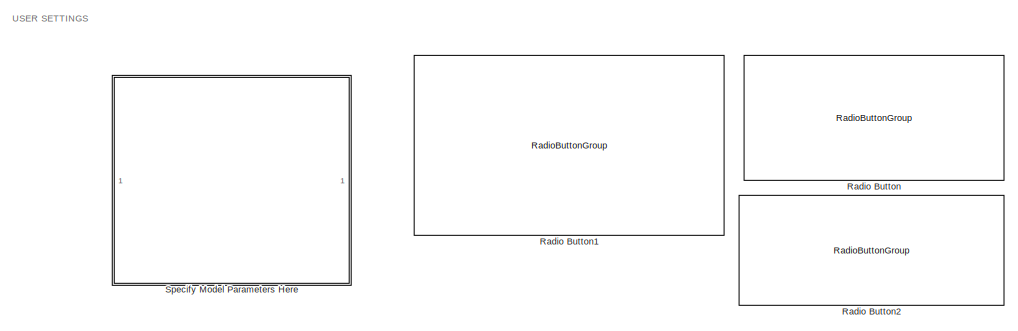
[diagram: root canvas - part 1/2, full width, top band]
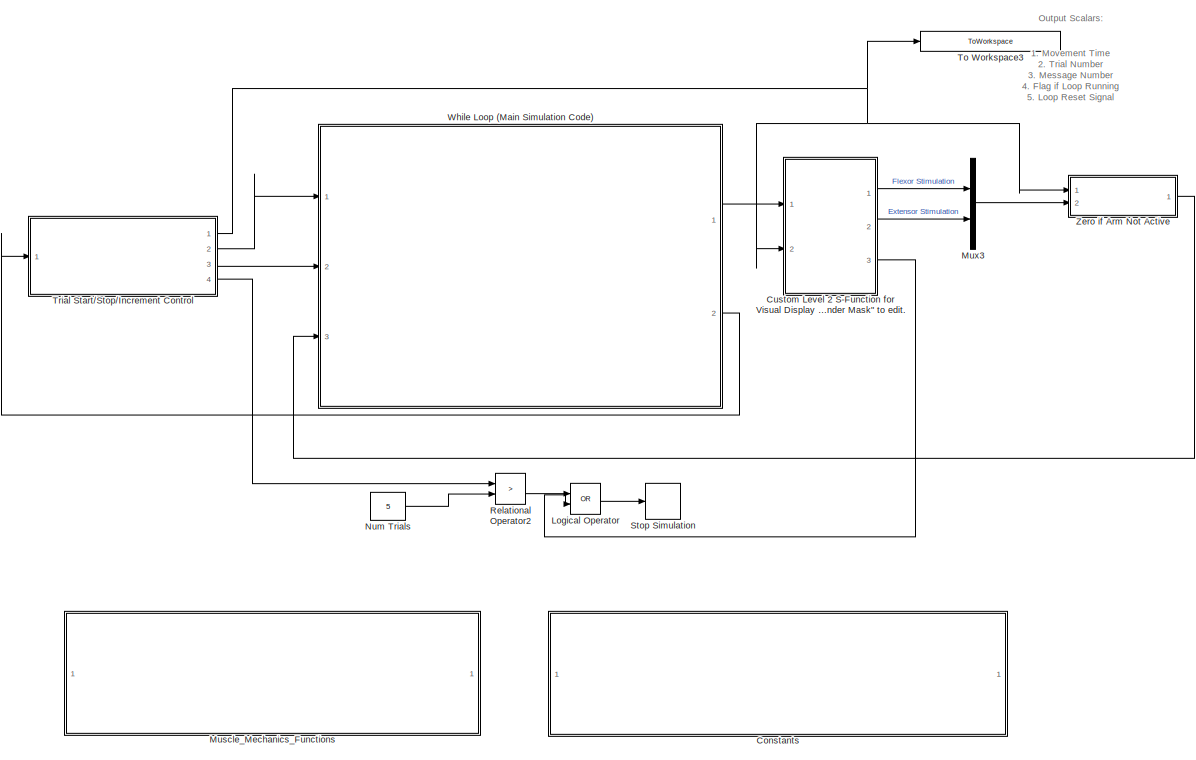
[diagram: root canvas - part 2/2, full width, middle band]
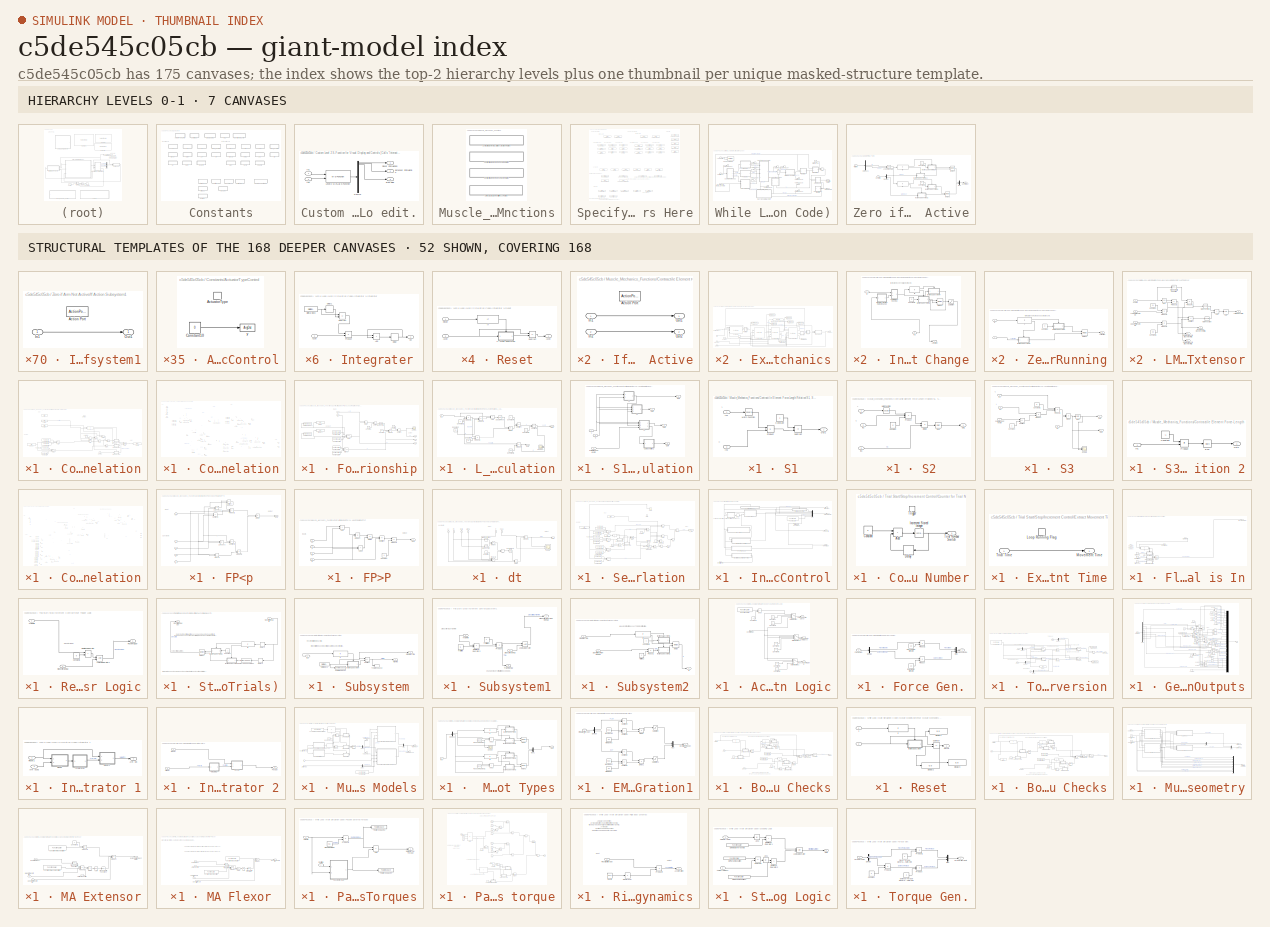
[diagram: thumbnail index - top-2 hierarchy levels (7 canvases) + 52 structural-template representatives of the remaining 168 canvases]
MODEL slx_c5de545c05cb
KIND model
CONFIG AbsTol = 1e-6
CONFIG EnableMultiTasking = on
CONFIG FixedStep = 1/150
CONFIG MaxStep = 1/50
CONFIG MinStep = 1/200
CONFIG RelTol = 1e-5
CONFIG SampleTimeConstraint = Unconstrained
CONFIG SolverName = ode4
CONFIG StartTime = 0.0
CONFIG StopTime = 3000
WORKSPACE source: mxarray member
WORKSPACE MaxEccentricFlexor = 0.5
WORKSPACE PoleZ = 0.85
WORKSPACE SampleTime = 0.05
WORKSPACE musNoise = 0
WORKSPACE musNoiseLevel: Simulink.Parameter (value not decoded)
BLOCK [SubSystem] Constants
  Ports = []
  RequestExecContextInheritance = off
BLOCK [SubSystem] Constants/ActuatorTypeControl
  Ports = [0, 0, 0, 1]
  RequestExecContextInheritance = off
  TreatAsAtomicUnit = on
BLOCK [TriggerPort] Constants/ActuatorTypeControl/ActuatorType
  FunctionName = ActuatorType
  FunctionVisibility = scoped
  IsSimulinkFunction = on
  Ports = []
  StatesWhenEnabling = held
  TriggerType = function-call
  VariantControl = (inherit)
BLOCK [Constant] Constants/ActuatorTypeControl/Constant10
  Value = 0
BLOCK [ArgOut] Constants/ActuatorTypeControl/y
  ArgumentName = y
  DisableCoverage = on
BLOCK [SubSystem] Constants/CactE
  Ports = [0, 0, 0, 1]
  RequestExecContextInheritance = off
  TreatAsAtomicUnit = on
BLOCK [TriggerPort] Constants/CactE/CactE
  FunctionName = CactE
  FunctionVisibility = scoped
  IsSimulinkFunction = on
  Ports = []
  StatesWhenEnabling = held
  TriggerType = function-call
  VariantControl = (inherit)
BLOCK [Constant] Constants/CactE/Flex Act Constant
  Value = 0.03
BLOCK [ArgOut] Constants/CactE/y
  ArgumentName = y
  DisableCoverage = on
BLOCK [SubSystem] Constants/CactF
  Ports = [0, 0, 0, 1]
  RequestExecContextInheritance = off
  TreatAsAtomicUnit = on
BLOCK [TriggerPort] Constants/CactF/CactF
  FunctionName = CactF
  FunctionVisibility = scoped
  IsSimulinkFunction = on
  Ports = []
  StatesWhenEnabling = held
  TriggerType = function-call
  VariantControl = (inherit)
BLOCK [Constant] Constants/CactF/Flex Act Constant
  Value = 0.03
BLOCK [ArgOut] Constants/CactF/y
  ArgumentName = y
  DisableCoverage = on
BLOCK [SubSystem] Constants/CdeactE
  Ports = [0, 0, 0, 1]
  RequestExecContextInheritance = off
  TreatAsAtomicUnit = on
BLOCK [TriggerPort] Constants/CdeactE/CdeactE
  FunctionName = CdeactE
  FunctionVisibility = scoped
  IsSimulinkFunction = on
  Ports = []
  StatesWhenEnabling = held
  TriggerType = function-call
  VariantControl = (inherit)
BLOCK [Constant] Constants/CdeactE/Ext Act Constant
  Value = 0.06
BLOCK [ArgOut] Constants/CdeactE/y
  ArgumentName = y
  DisableCoverage = on
BLOCK [SubSystem] Constants/CdeactF
  Ports = [0, 0, 0, 1]
  RequestExecContextInheritance = off
  TreatAsAtomicUnit = on
BLOCK [TriggerPort] Constants/CdeactF/CdeactF
  FunctionName = CdeactF
  FunctionVisibility = scoped
  IsSimulinkFunction = on
  Ports = []
  StatesWhenEnabling = held
  TriggerType = function-call
  VariantControl = (inherit)
BLOCK [Constant] Constants/CdeactF/Flex Deact Constant
  Value = 0.06
BLOCK [ArgOut] Constants/CdeactF/y
  ArgumentName = y
  DisableCoverage = on
BLOCK [SubSystem] Constants/ControlMode
  Ports = [0, 0, 0, 1]
  RequestExecContextInheritance = off
  TreatAsAtomicUnit = on
BLOCK [TriggerPort] Constants/ControlMode/ControlMode
  FunctionName = ControlMode
  FunctionVisibility = scoped
  IsSimulinkFunction = on
  Ports = []
  StatesWhenEnabling = held
  TriggerType = function-call
  VariantControl = (inherit)
BLOCK [Constant] Constants/ControlMode/ControlModeConstant
  Value = 0
BLOCK [ArgOut] Constants/ControlMode/y
  ArgumentName = y
  DisableCoverage = on
BLOCK [SubSystem] Constants/EE
  Ports = [0, 0, 0, 1]
  RequestExecContextInheritance = off
  TreatAsAtomicUnit = on
BLOCK [TriggerPort] Constants/EE/EE
  FunctionName = EE
  FunctionVisibility = scoped
  IsSimulinkFunction = on
  Ports = []
  StatesWhenEnabling = held
  TriggerType = function-call
  VariantControl = (inherit)
BLOCK [Constant] Constants/EE/eccentricExtensor
  Value = 3
BLOCK [ArgOut] Constants/EE/y
  ArgumentName = y
  DisableCoverage = on
BLOCK [SubSystem] Constants/EF
  Ports = [0, 0, 0, 1]
  RequestExecContextInheritance = off
  TreatAsAtomicUnit = on
BLOCK [TriggerPort] Constants/EF/EF
  FunctionName = EF
  FunctionVisibility = scoped
  IsSimulinkFunction = on
  Ports = []
  StatesWhenEnabling = held
  TriggerType = function-call
  VariantControl = (inherit)
BLOCK [Constant] Constants/EF/eccentricFlexor
  Value = 2.58
BLOCK [ArgOut] Constants/EF/y
  ArgumentName = y
  DisableCoverage = on
BLOCK [SubSystem] Constants/EMG
  Ports = [0, 0, 0, 1]
  RequestExecContextInheritance = off
  TreatAsAtomicUnit = on
BLOCK [TriggerPort] Constants/EMG/EMG
  FunctionName = EMG
  FunctionVisibility = scoped
  IsSimulinkFunction = on
  Ports = []
  StatesWhenEnabling = held
  TriggerType = function-call
  VariantControl = (inherit)
BLOCK [Constant] Constants/EMG/EMG vs Button 
  Value = 0
BLOCK [ArgOut] Constants/EMG/y
  ArgumentName = y
  DisableCoverage = on
BLOCK [SubSystem] Constants/GlobalDamping
  Ports = [0, 0, 0, 1]
  RequestExecContextInheritance = off
  TreatAsAtomicUnit = on
BLOCK [TriggerPort] Constants/GlobalDamping/GlobalDamping
  FunctionName = GlobalDamping
  FunctionVisibility = scoped
  IsSimulinkFunction = on
  Ports = []
  StatesWhenEnabling = held
  TriggerType = function-call
  VariantControl = (inherit)
BLOCK [Constant] Constants/GlobalDamping/GlobalDampingConstant
  Value = 0
BLOCK [ArgOut] Constants/GlobalDamping/y
  ArgumentName = y
  DisableCoverage = on
BLOCK [SubSystem] Constants/L0E
  Ports = [0, 0, 0, 1]
  RequestExecContextInheritance = off
  TreatAsAtomicUnit = on
BLOCK [TriggerPort] Constants/L0E/L0E
  FunctionName = L0E
  FunctionVisibility = scoped
  IsSimulinkFunction = on
  Ports = []
  StatesWhenEnabling = held
  TriggerType = function-call
  VariantControl = (inherit)
BLOCK [Constant] Constants/L0E/optLenExtensor
  Value = 0.223
BLOCK [ArgOut] Constants/L0E/y
  ArgumentName = y
  DisableCoverage = on
BLOCK [SubSystem] Constants/L0F
  Ports = [0, 0, 0, 1]
  RequestExecContextInheritance = off
  TreatAsAtomicUnit = on
BLOCK [TriggerPort] Constants/L0F/L0F
  FunctionName = L0F
  FunctionVisibility = scoped
  IsSimulinkFunction = on
  Ports = []
  StatesWhenEnabling = held
  TriggerType = function-call
  VariantControl = (inherit)
BLOCK [Constant] Constants/L0F/optLenFlex
  Value = 0.223
BLOCK [ArgOut] Constants/L0F/y
  ArgumentName = y
  DisableCoverage = on
BLOCK [SubSystem] Constants/ModelStrengthControl
  Ports = [0, 0, 0, 1]
  RequestExecContextInheritance = off
  TreatAsAtomicUnit = on
BLOCK [Constant] Constants/ModelStrengthControl/ModelStrengthConstant
  Value = 0
BLOCK [TriggerPort] Constants/ModelStrengthControl/ModelStrengthControl
  FunctionName = ModelStrengthControl
  FunctionVisibility = scoped
  IsSimulinkFunction = on
  Ports = []
  StatesWhenEnabling = held
  TriggerType = function-call
  VariantControl = (inherit)
BLOCK [ArgOut] Constants/ModelStrengthControl/y
  ArgumentName = y
  DisableCoverage = on
BLOCK [SubSystem] Constants/P0E
  Ports = [0, 0, 0, 1]
  RequestExecContextInheritance = off
  TreatAsAtomicUnit = on
BLOCK [Constant] Constants/P0E/MaxIsoExtensor
  Value = 1000
BLOCK [TriggerPort] Constants/P0E/P0E
  FunctionName = P0E
  FunctionVisibility = scoped
  IsSimulinkFunction = on
  Ports = []
  StatesWhenEnabling = held
  TriggerType = function-call
  VariantControl = (inherit)
BLOCK [ArgOut] Constants/P0E/y
  ArgumentName = y
  DisableCoverage = on
BLOCK [SubSystem] Constants/P0F
  Ports = [0, 0, 0, 1]
  RequestExecContextInheritance = off
  TreatAsAtomicUnit = on
BLOCK [Constant] Constants/P0F/MaxIsoFlexor
  Value = 1000
BLOCK [TriggerPort] Constants/P0F/P0F
  FunctionName = P0F
  FunctionVisibility = scoped
  IsSimulinkFunction = on
  Ports = []
  StatesWhenEnabling = held
  TriggerType = function-call
  VariantControl = (inherit)
BLOCK [ArgOut] Constants/P0F/y
  ArgumentName = y
  DisableCoverage = on
BLOCK [SubSystem] Constants/Slack_LengthE
  Ports = [0, 0, 0, 1]
  RequestExecContextInheritance = off
  TreatAsAtomicUnit = on
BLOCK [Constant] Constants/Slack_LengthE/SlackLenExt
  Value = 0.11
BLOCK [TriggerPort] Constants/Slack_LengthE/Slack_lengthE
  FunctionName = Slack_lengthE
  FunctionVisibility = scoped
  IsSimulinkFunction = on
  Ports = []
  StatesWhenEnabling = held
  TriggerType = function-call
  VariantControl = (inherit)
BLOCK [ArgOut] Constants/Slack_LengthE/y
  ArgumentName = y
  DisableCoverage = on
BLOCK [SubSystem] Constants/Slack_LengthF
  Ports = [0, 0, 0, 1]
  RequestExecContextInheritance = off
  TreatAsAtomicUnit = on
BLOCK [Constant] Constants/Slack_LengthF/Slack_Length_Flexor
  Value = 0.12
BLOCK [TriggerPort] Constants/Slack_LengthF/Slack_lengthF
  FunctionName = Slack_lengthF
  FunctionVisibility = scoped
  IsSimulinkFunction = on
  Ports = []
  StatesWhenEnabling = held
  TriggerType = function-call
  VariantControl = (inherit)
BLOCK [ArgOut] Constants/Slack_LengthF/y
  ArgumentName = y
  DisableCoverage = on
BLOCK [SubSystem] Constants/WE
  Ports = [0, 0, 0, 1]
  RequestExecContextInheritance = off
  TreatAsAtomicUnit = on
BLOCK [TriggerPort] Constants/WE/WE
  FunctionName = WE
  FunctionVisibility = scoped
  IsSimulinkFunction = on
  Ports = []
  StatesWhenEnabling = held
  TriggerType = function-call
  VariantControl = (inherit)
BLOCK [Constant] Constants/WE/widthExtensor
  Value = 0.036
BLOCK [ArgOut] Constants/WE/y
  ArgumentName = y
  DisableCoverage = on
BLOCK [SubSystem] Constants/WF
  Ports = [0, 0, 0, 1]
  RequestExecContextInheritance = off
  TreatAsAtomicUnit = on
BLOCK [TriggerPort] Constants/WF/WF
  FunctionName = WF
  FunctionVisibility = scoped
  IsSimulinkFunction = on
  Ports = []
  StatesWhenEnabling = held
  TriggerType = function-call
  VariantControl = (inherit)
BLOCK [Constant] Constants/WF/widthFlexor
  Value = 0.036
BLOCK [ArgOut] Constants/WF/y
  ArgumentName = y
  DisableCoverage = on
BLOCK [SubSystem] Constants/aExt
  Ports = [0, 0, 0, 1]
  RequestExecContextInheritance = off
  TreatAsAtomicUnit = on
BLOCK [TriggerPort] Constants/aExt/aE
  FunctionName = aE
  FunctionVisibility = scoped
  IsSimulinkFunction = on
  Ports = []
  StatesWhenEnabling = held
  TriggerType = function-call
  VariantControl = (inherit)
BLOCK [Constant] Constants/aExt/hillAExtensor
  Value = 360
BLOCK [ArgOut] Constants/aExt/y
  ArgumentName = y
  DisableCoverage = on
BLOCK [SubSystem] Constants/aF
  Ports = [0, 0, 0, 1]
  RequestExecContextInheritance = off
  TreatAsAtomicUnit = on
BLOCK [TriggerPort] Constants/aF/aF
  FunctionName = aF
  FunctionVisibility = scoped
  IsSimulinkFunction = on
  Ports = []
  StatesWhenEnabling = held
  TriggerType = function-call
  VariantControl = (inherit)
BLOCK [Constant] Constants/aF/hillAFlexor
  Value = 360
BLOCK [ArgOut] Constants/aF/y
  ArgumentName = y
  DisableCoverage = on
BLOCK [SubSystem] Constants/alphaE
  Ports = [0, 0, 0, 1]
  RequestExecContextInheritance = off
  TreatAsAtomicUnit = on
BLOCK [TriggerPort] Constants/alphaE/alphaE
  FunctionName = alphaE
  FunctionVisibility = scoped
  IsSimulinkFunction = on
  Ports = []
  StatesWhenEnabling = held
  TriggerType = function-call
  VariantControl = (inherit)
BLOCK [Constant] Constants/alphaE/alphaExtensor
  Value = 605
BLOCK [ArgOut] Constants/alphaE/y
  ArgumentName = y
  DisableCoverage = on
BLOCK [SubSystem] Constants/alphaF
  Ports = [0, 0, 0, 1]
  RequestExecContextInheritance = off
  TreatAsAtomicUnit = on
BLOCK [TriggerPort] Constants/alphaF/alphaF
  FunctionName = alphaF
  FunctionVisibility = scoped
  IsSimulinkFunction = on
  Ports = []
  StatesWhenEnabling = held
  TriggerType = function-call
  VariantControl = (inherit)
BLOCK [Constant] Constants/alphaF/alphaFlexor
  Value = 605
BLOCK [ArgOut] Constants/alphaF/y
  ArgumentName = y
  DisableCoverage = on
BLOCK [SubSystem] Constants/bExt
  Ports = [0, 0, 0, 1]
  RequestExecContextInheritance = off
  TreatAsAtomicUnit = on
BLOCK [TriggerPort] Constants/bExt/bE
  FunctionName = bE
  FunctionVisibility = scoped
  IsSimulinkFunction = on
  Ports = []
  StatesWhenEnabling = held
  TriggerType = function-call
  VariantControl = (inherit)
BLOCK [Constant] Constants/bExt/hillBExtensor
  Value = 0.28
BLOCK [ArgOut] Constants/bExt/y
  ArgumentName = y
  DisableCoverage = on
BLOCK [SubSystem] Constants/bF
  Ports = [0, 0, 0, 1]
  RequestExecContextInheritance = off
  TreatAsAtomicUnit = on
BLOCK [TriggerPort] Constants/bF/bF
  FunctionName = bF
  FunctionVisibility = scoped
  IsSimulinkFunction = on
  Ports = []
  StatesWhenEnabling = held
  TriggerType = function-call
  VariantControl = (inherit)
BLOCK [Constant] Constants/bF/hillBFlexor
  Value = 0.28
BLOCK [ArgOut] Constants/bF/y
  ArgumentName = y
  DisableCoverage = on
BLOCK [SubSystem] Constants/bangBangControlAmp
  Ports = [0, 0, 0, 1]
  RequestExecContextInheritance = off
  TreatAsAtomicUnit = on
BLOCK [Constant] Constants/bangBangControlAmp/How Much Muscle Model is Activated using Keyboard//Mouse
  Value = 0.0349
BLOCK [TriggerPort] Constants/bangBangControlAmp/bangBangControlAmp
  FunctionName = bangBangControlAmp
  FunctionVisibility = scoped
  IsSimulinkFunction = on
  Ports = []
  StatesWhenEnabling = held
  TriggerType = function-call
  VariantControl = (inherit)
BLOCK [ArgOut] Constants/bangBangControlAmp/y
  ArgumentName = y
  DisableCoverage = on
BLOCK [SubSystem] Constants/betaE
  Ports = [0, 0, 0, 1]
  RequestExecContextInheritance = off
  TreatAsAtomicUnit = on
BLOCK [TriggerPort] Constants/betaE/betaE
  FunctionName = betaE
  FunctionVisibility = scoped
  IsSimulinkFunction = on
  Ports = []
  StatesWhenEnabling = held
  TriggerType = function-call
  VariantControl = (inherit)
BLOCK [Constant] Constants/betaE/betaExtensor
  Value = 15
BLOCK [ArgOut] Constants/betaE/y
  ArgumentName = y
  DisableCoverage = on
BLOCK [SubSystem] Constants/betaF
  Ports = [0, 0, 0, 1]
  RequestExecContextInheritance = off
  TreatAsAtomicUnit = on
BLOCK [TriggerPort] Constants/betaF/betaF
  FunctionName = betaF
  FunctionVisibility = scoped
  IsSimulinkFunction = on
  Ports = []
  StatesWhenEnabling = held
  TriggerType = function-call
  VariantControl = (inherit)
BLOCK [Constant] Constants/betaF/betaFlexor
  Value = 15
BLOCK [ArgOut] Constants/betaF/y
  ArgumentName = y
  DisableCoverage = on
BLOCK [SubSystem] Constants/errorThresh
  Ports = [0, 0, 0, 1]
  RequestExecContextInheritance = off
  TreatAsAtomicUnit = on
BLOCK [Constant] Constants/errorThresh/Error Threshold (rad)
  Value = 0.0349
BLOCK [TriggerPort] Constants/errorThresh/errorThresh
  FunctionName = errorThresh
  FunctionVisibility = scoped
  IsSimulinkFunction = on
  Ports = []
  StatesWhenEnabling = held
  TriggerType = function-call
  VariantControl = (inherit)
BLOCK [ArgOut] Constants/errorThresh/y
  ArgumentName = y
  DisableCoverage = on
BLOCK [SubSystem] Constants/insertLoc
  Ports = [0, 0, 0, 1]
  RequestExecContextInheritance = off
  TreatAsAtomicUnit = on
BLOCK [Constant] Constants/insertLoc/Insertion Location
  Value = 0.1
BLOCK [TriggerPort] Constants/insertLoc/insertLoc
  FunctionName = insertLoc
  FunctionVisibility = scoped
  IsSimulinkFunction = on
  Ports = []
  StatesWhenEnabling = held
  TriggerType = function-call
  VariantControl = (inherit)
BLOCK [ArgOut] Constants/insertLoc/y
  ArgumentName = y
  DisableCoverage = on
BLOCK [SubSystem] Constants/musNoise
  Ports = [0, 0, 0, 1]
  RequestExecContextInheritance = off
  TreatAsAtomicUnit = on
BLOCK [Constant] Constants/musNoise/Mus Noise Constamt
  Value = musNoise
BLOCK [TriggerPort] Constants/musNoise/musNoise
  FunctionName = musNoise
  FunctionVisibility = scoped
  IsSimulinkFunction = on
  Ports = []
  StatesWhenEnabling = held
  TriggerType = function-call
  VariantControl = (inherit)
BLOCK [ArgOut] Constants/musNoise/y
  ArgumentName = y
  DisableCoverage = on
BLOCK [SubSystem] Constants/originLoc
  Ports = [0, 0, 0, 1]
  RequestExecContextInheritance = off
  TreatAsAtomicUnit = on
BLOCK [Constant] Constants/originLoc/Origin Location
  Value = 0.9
BLOCK [TriggerPort] Constants/originLoc/originLoc
  FunctionName = originLoc
  FunctionVisibility = scoped
  IsSimulinkFunction = on
  Ports = []
  StatesWhenEnabling = held
  TriggerType = function-call
  VariantControl = (inherit)
BLOCK [ArgOut] Constants/originLoc/y
  ArgumentName = y
  DisableCoverage = on
BLOCK [SubSystem] Constants/startLoc
  Ports = [0, 0, 0, 1]
  RequestExecContextInheritance = off
  TreatAsAtomicUnit = on
BLOCK [Constant] Constants/startLoc/Start Location (rad)
  Value = 1.57
BLOCK [TriggerPort] Constants/startLoc/startLoc
  FunctionName = startLoc
  FunctionVisibility = scoped
  IsSimulinkFunction = on
  Ports = []
  StatesWhenEnabling = held
  TriggerType = function-call
  VariantControl = (inherit)
BLOCK [ArgOut] Constants/startLoc/y
  ArgumentName = y
  DisableCoverage = on
BLOCK [SubSystem] Constants/targetLoc
  Ports = [0, 0, 0, 1]
  RequestExecContextInheritance = off
  TreatAsAtomicUnit = on
BLOCK [Constant] Constants/targetLoc/Target Location (rad)
  Value = 2.5
BLOCK [TriggerPort] Constants/targetLoc/targetLoc
  FunctionName = targetLoc
  FunctionVisibility = scoped
  IsSimulinkFunction = on
  Ports = []
  StatesWhenEnabling = held
  TriggerType = function-call
  VariantControl = (inherit)
BLOCK [ArgOut] Constants/targetLoc/y
  ArgumentName = y
  DisableCoverage = on
BLOCK [SubSystem] Constants/velThresh
  Ports = [0, 0, 0, 1]
  RequestExecContextInheritance = off
  TreatAsAtomicUnit = on
BLOCK [Constant] Constants/velThresh/Velocity Threshold (rad//s)
  Value = 0.5
BLOCK [TriggerPort] Constants/velThresh/velThresh
  FunctionName = velThresh
  FunctionVisibility = scoped
  IsSimulinkFunction = on
  Ports = []
  StatesWhenEnabling = held
  TriggerType = function-call
  VariantControl = (inherit)
BLOCK [ArgOut] Constants/velThresh/y
  ArgumentName = y
  DisableCoverage = on
BLOCK [SubSystem] Custom Level 2 S-Function for Visual Display and Controls [Calls "InteractiveDisplay.m"] Select "Look Under Mask" to edit.
  Ports = [2, 3]
  RequestExecContextInheritance = off
BLOCK [Demux] Custom Level 2 S-Function for Visual Display and Controls [Calls "InteractiveDisplay.m"] Select "Look Under Mask" to edit./Demux
  Outputs = 25
  Ports = [1, 25]
BLOCK [Outport] Custom Level 2 S-Function for Visual Display and Controls [Calls "InteractiveDisplay.m"] Select "Look Under Mask" to edit./Extensor Stimulation
  Port = 2
BLOCK [Outport] Custom Level 2 S-Function for Visual Display and Controls [Calls "InteractiveDisplay.m"] Select "Look Under Mask" to edit./Flexor Stimulation
BLOCK [Inport] Custom Level 2 S-Function for Visual Display and Controls [Calls "InteractiveDisplay.m"] Select "Look Under Mask" to edit./In1
BLOCK [Inport] Custom Level 2 S-Function for Visual Display and Controls [Calls "InteractiveDisplay.m"] Select "Look Under Mask" to edit./In2
  Port = 2
BLOCK [M-S-Function] Custom Level 2 S-Function for Visual Display and Controls [Calls "InteractiveDisplay.m"] Select "Look Under Mask" to edit./Level-2 MATLAB S-Function
  FunctionName = InteractiveDisplay
  Parameters = number_of_trajectories,axis_limits
  Ports = [2, 1]
BLOCK [Outport] Custom Level 2 S-Function for Visual Display and Controls [Calls "InteractiveDisplay.m"] Select "Look Under Mask" to edit./Stop Flag
  Port = 3
BLOCK [Logic] Logical Operator
  AllPortsSameDT = off
  Operator = OR
  OutDataTypeStr = boolean
  Ports = [2, 1]
BLOCK [SubSystem] Muscle_Mechanics_Functions
  Ports = []
  RequestExecContextInheritance = off
BLOCK [SubSystem] Muscle_Mechanics_Functions/Contractile Element Excitation-Activation Relation
  Ports = [0, 0, 0, 1]
  RequestExecContextInheritance = off
  TreatAsAtomicUnit = on
BLOCK [ArgOut] Muscle_Mechanics_Functions/Contractile Element Excitation-Activation Relation/Activation
  ArgumentName = ActivationChange
  DisableCoverage = on
BLOCK [Sum] Muscle_Mechanics_Functions/Contractile Element Excitation-Activation Relation/Add2
  IconShape = rectangular
  Ports = [2, 1]
BLOCK [Constant] Muscle_Mechanics_Functions/Contractile Element Excitation-Activation Relation/Constant1
  SampleTime = -1
  Value = 0
BLOCK [Constant] Muscle_Mechanics_Functions/Contractile Element Excitation-Activation Relation/Constant14
  SampleTime = -1
BLOCK [Product] Muscle_Mechanics_Functions/Contractile Element Excitation-Activation Relation/Divide
  Inputs = */
  Ports = [2, 1]
BLOCK [Product] Muscle_Mechanics_Functions/Contractile Element Excitation-Activation Relation/Divide1
  Inputs = */
  Ports = [2, 1]
BLOCK [Product] Muscle_Mechanics_Functions/Contractile Element Excitation-Activation Relation/Divide2
  Inputs = */
  Ports = [2, 1]
BLOCK [ArgIn] Muscle_Mechanics_Functions/Contractile Element Excitation-Activation Relation/Excitation
  ArgumentName = Excitation
  DisableCoverage = on
  Port = 2
BLOCK [ArgIn] Muscle_Mechanics_Functions/Contractile Element Excitation-Activation Relation/Excitation1
  ArgumentName = PreviousAct
  DisableCoverage = on
  Port = 4
BLOCK [TriggerPort] Muscle_Mechanics_Functions/Contractile Element Excitation-Activation Relation/ExciteAct
  FunctionName = ExciteAct
  FunctionVisibility = scoped
  IsSimulinkFunction = on
  Ports = []
  StatesWhenEnabling = held
  TriggerType = function-call
  VariantControl = (inherit)
BLOCK [FunctionCaller] Muscle_Mechanics_Functions/Contractile Element Excitation-Activation Relation/Function Caller
  FunctionPrototype = y = Constants.CactF()
  InputArgumentSpecifications = <Enter example>
  OutputArgumentSpecifications = <Enter example>
  Ports = [0, 1]
BLOCK [FunctionCaller] Muscle_Mechanics_Functions/Contractile Element Excitation-Activation Relation/Function Caller1
  FunctionPrototype = y = Constants.CactE()
  InputArgumentSpecifications = <Enter example>
  OutputArgumentSpecifications = <Enter example>
  Ports = [0, 1]
BLOCK [FunctionCaller] Muscle_Mechanics_Functions/Contractile Element Excitation-Activation Relation/Function Caller3
  FunctionPrototype = y = Constants.CdeactF()
  InputArgumentSpecifications = <Enter example>
  OutputArgumentSpecifications = <Enter example>
  Ports = [0, 1]
BLOCK [FunctionCaller] Muscle_Mechanics_Functions/Contractile Element Excitation-Activation Relation/Function Caller4
  FunctionPrototype = y = Constants.CdeactE()
  InputArgumentSpecifications = <Enter example>
  OutputArgumentSpecifications = <Enter example>
  Ports = [0, 1]
BLOCK [ArgIn] Muscle_Mechanics_Functions/Contractile Element Excitation-Activation Relation/IC
  ArgumentName = IC
  DisableCoverage = on
  OutDataTypeStr = boolean
BLOCK [If] Muscle_Mechanics_Functions/Contractile Element Excitation-Activation Relation/If
  ElseIfExpressions = u1>u2
  IfExpression = u2>u1
  NumInputs = 2
  Ports = [2, 3]
BLOCK [SubSystem] Muscle_Mechanics_Functions/Contractile Element Excitation-Activation Relation/If Action Subsystem
  Ports = [1, 1, 0, 0, 0, 0, 0, 1]
  RequestExecContextInheritance = off
  TreatAsAtomicUnit = on
BLOCK [ActionPort] Muscle_Mechanics_Functions/Contractile Element Excitation-Activation Relation/If Action Subsystem/Action Port
  ActionPortLabel = if(u2>u1)
BLOCK [Inport] Muscle_Mechanics_Functions/Contractile Element Excitation-Activation Relation/If Action Subsystem/In1
BLOCK [Outport] Muscle_Mechanics_Functions/Contractile Element Excitation-Activation Relation/If Action Subsystem/Out1
BLOCK [SubSystem] Muscle_Mechanics_Functions/Contractile Element Excitation-Activation Relation/If Action Subsystem1
  Ports = [1, 1, 0, 0, 0, 0, 0, 1]
  RequestExecContextInheritance = off
  TreatAsAtomicUnit = on
BLOCK [ActionPort] Muscle_Mechanics_Functions/Contractile Element Excitation-Activation Relation/If Action Subsystem1/Action Port
  ActionPortLabel = elseif(u1>u2)
BLOCK [Inport] Muscle_Mechanics_Functions/Contractile Element Excitation-Activation Relation/If Action Subsystem1/In1
BLOCK [Outport] Muscle_Mechanics_Functions/Contractile Element Excitation-Activation Relation/If Action Subsystem1/Out1
BLOCK [SubSystem] Muscle_Mechanics_Functions/Contractile Element Excitation-Activation Relation/If Action Subsystem2
  Ports = [1, 1, 0, 0, 0, 0, 0, 1]
  RequestExecContextInheritance = off
  TreatAsAtomicUnit = on
BLOCK [ActionPort] Muscle_Mechanics_Functions/Contractile Element Excitation-Activation Relation/If Action Subsystem2/Action Port
  ActionPortLabel = else
BLOCK [Inport] Muscle_Mechanics_Functions/Contractile Element Excitation-Activation Relation/If Action Subsystem2/In1
BLOCK [Outport] Muscle_Mechanics_Functions/Contractile Element Excitation-Activation Relation/If Action Subsystem2/Out1
BLOCK [Merge] Muscle_Mechanics_Functions/Contractile Element Excitation-Activation Relation/Merge
  Inputs = 3
  Ports = [3, 1]
BLOCK [Product] Muscle_Mechanics_Functions/Contractile Element Excitation-Activation Relation/Product9
  Ports = [2, 1]
BLOCK [Sum] Muscle_Mechanics_Functions/Contractile Element Excitation-Activation Relation/Subtract2
  IconShape = rectangular
  Inputs = +-
  Ports = [2, 1]
BLOCK [Sum] Muscle_Mechanics_Functions/Contractile Element Excitation-Activation Relation/Subtract3
  IconShape = rectangular
  Inputs = +-
  Ports = [2, 1]
BLOCK [Switch] Muscle_Mechanics_Functions/Contractile Element Excitation-Activation Relation/Switch
  Criteria = u2 > Threshold
  InputSameDT = off
  SaturateOnIntegerOverflow = off
  Threshold = 1
BLOCK [Switch] Muscle_Mechanics_Functions/Contractile Element Excitation-Activation Relation/Switch1
  Criteria = u2 > Threshold
  InputSameDT = off
  SaturateOnIntegerOverflow = off
  Threshold = 1
BLOCK [ArgIn] Muscle_Mechanics_Functions/Contractile Element Excitation-Activation Relation/WhichMus
  ArgumentName = WhichMus
  Port = 3
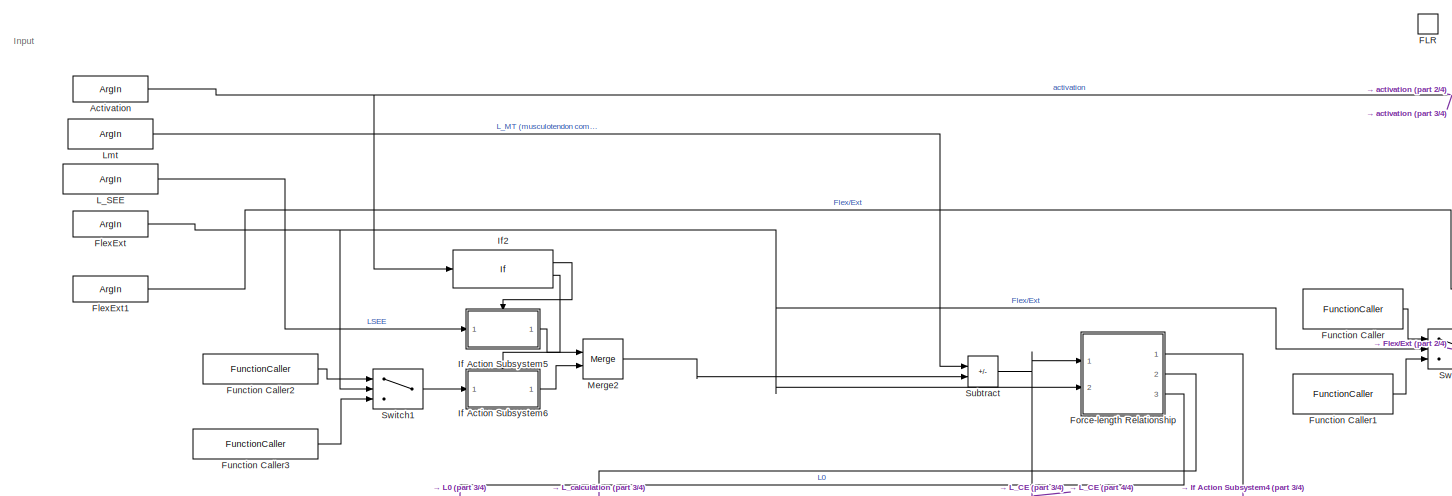
[diagram: Muscle_Mechanics_Functions/Contractile Element Force-Length Relation - part 1/4, top left region]
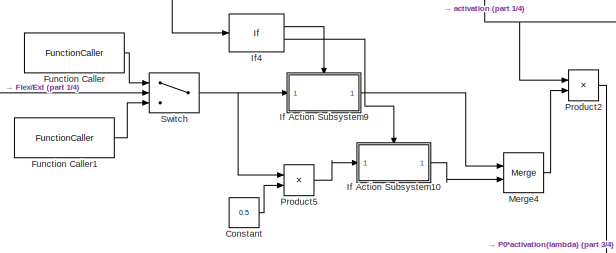
[diagram: Muscle_Mechanics_Functions/Contractile Element Force-Length Relation - part 2/4, central region]
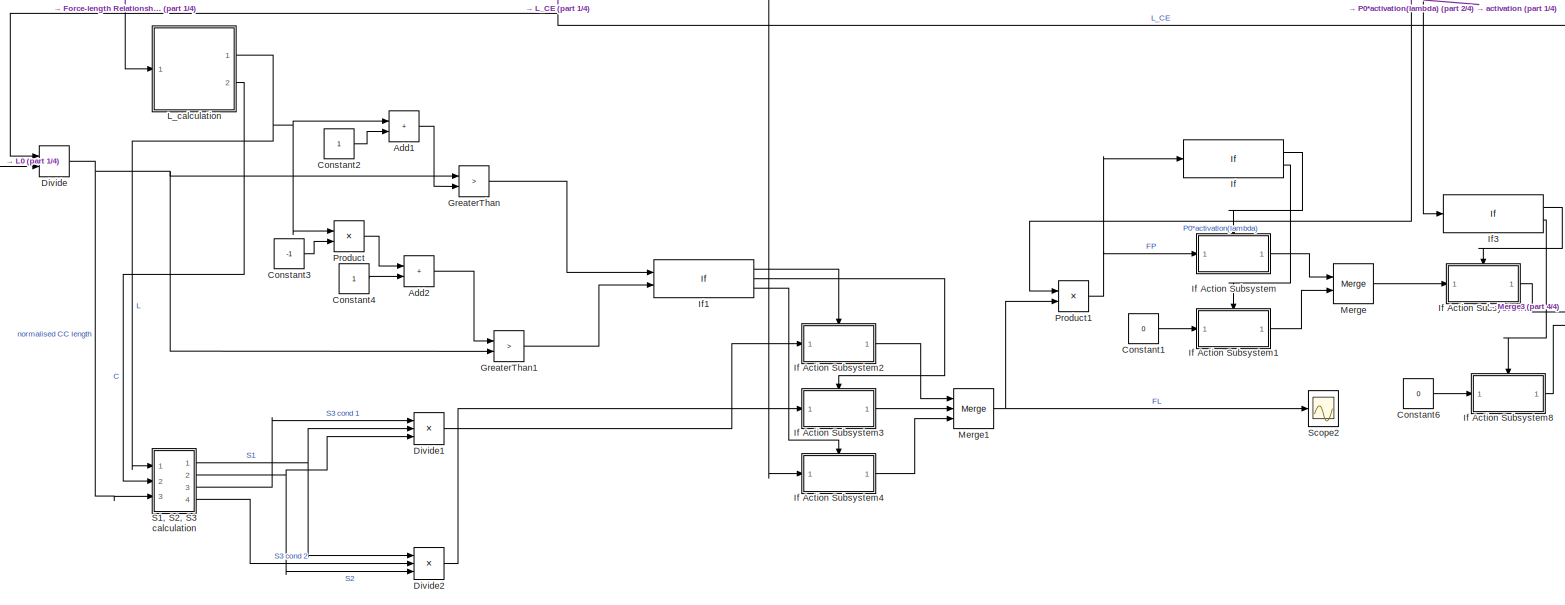
[diagram: Muscle_Mechanics_Functions/Contractile Element Force-Length Relation - part 3/4, bottom center region]
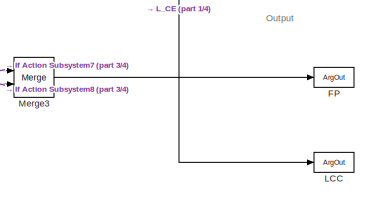
[diagram: Muscle_Mechanics_Functions/Contractile Element Force-Length Relation - part 4/4, bottom right region]
BLOCK [SubSystem] Muscle_Mechanics_Functions/Contractile Element Force-Length Relation
  Ports = [0, 0, 0, 1]
  RequestExecContextInheritance = off
  TreatAsAtomicUnit = on
BLOCK [ArgIn] Muscle_Mechanics_Functions/Contractile Element Force-Length Relation/Activation
  ArgumentName = Activation
  DisableCoverage = on
  Port = 3
BLOCK [Sum] Muscle_Mechanics_Functions/Contractile Element Force-Length Relation/Add1
  IconShape = rectangular
  Ports = [2, 1]
BLOCK [Sum] Muscle_Mechanics_Functions/Contractile Element Force-Length Relation/Add2
  IconShape = rectangular
  Ports = [2, 1]
BLOCK [Constant] Muscle_Mechanics_Functions/Contractile Element Force-Length Relation/Constant
  Value = 0.5
BLOCK [Constant] Muscle_Mechanics_Functions/Contractile Element Force-Length Relation/Constant1
  Value = 0
BLOCK [Constant] Muscle_Mechanics_Functions/Contractile Element Force-Length Relation/Constant2
BLOCK [Constant] Muscle_Mechanics_Functions/Contractile Element Force-Length Relation/Constant3
  Value = -1
BLOCK [Constant] Muscle_Mechanics_Functions/Contractile Element Force-Length Relation/Constant4
BLOCK [Constant] Muscle_Mechanics_Functions/Contractile Element Force-Length Relation/Constant6
  Value = 0
BLOCK [Product] Muscle_Mechanics_Functions/Contractile Element Force-Length Relation/Divide
  Inputs = */
  Ports = [2, 1]
BLOCK [Product] Muscle_Mechanics_Functions/Contractile Element Force-Length Relation/Divide1
  Inputs = **/
  Ports = [3, 1]
BLOCK [Product] Muscle_Mechanics_Functions/Contractile Element Force-Length Relation/Divide2
  Inputs = **/
  Ports = [3, 1]
BLOCK [TriggerPort] Muscle_Mechanics_Functions/Contractile Element Force-Length Relation/FLR
  FunctionName = FLR
  FunctionVisibility = scoped
  IsSimulinkFunction = on
  Ports = []
  StatesWhenEnabling = held
  TriggerType = function-call
  VariantControl = (inherit)
BLOCK [ArgOut] Muscle_Mechanics_Functions/Contractile Element Force-Length Relation/FP
  ArgumentName = FP
  DisableCoverage = on
BLOCK [ArgIn] Muscle_Mechanics_Functions/Contractile Element Force-Length Relation/FlexExt
  ArgumentName = FlexExt
  DisableCoverage = on
  Port = 4
BLOCK [ArgIn] Muscle_Mechanics_Functions/Contractile Element Force-Length Relation/FlexExt1
  ArgumentName = ModelStrength
  DisableCoverage = on
  Port = 5
BLOCK [SubSystem] Muscle_Mechanics_Functions/Contractile Element Force-Length Relation/Force-length Relationship
  Ports = [2, 3]
  RequestExecContextInheritance = off
BLOCK [Constant] Muscle_Mechanics_Functions/Contractile Element Force-Length Relation/Force-length Relationship/Constant1
BLOCK [Constant] Muscle_Mechanics_Functions/Contractile Element Force-Length Relation/Force-length Relationship/Constant2
  Value = 100
BLOCK [Constant] Muscle_Mechanics_Functions/Contractile Element Force-Length Relation/Force-length Relationship/Constant4
BLOCK [Display] Muscle_Mechanics_Functions/Contractile Element Force-Length Relation/Force-length Relationship/Display
  Decimation = 1
  Ports = [1]
BLOCK [Display] Muscle_Mechanics_Functions/Contractile Element Force-Length Relation/Force-length Relationship/Display1
  Decimation = 1
  Ports = [1]
BLOCK [Product] Muscle_Mechanics_Functions/Contractile Element Force-Length Relation/Force-length Relationship/Divide
  Inputs = */
  Ports = [2, 1]
BLOCK [Outport] Muscle_Mechanics_Functions/Contractile Element Force-Length Relation/Force-length Relationship/FL
BLOCK [FunctionCaller] Muscle_Mechanics_Functions/Contractile Element Force-Length Relation/Force-length Relationship/Function Caller
  FunctionPrototype = y = Constants.L0F()
  InputArgumentSpecifications = <Enter example>
  OutputArgumentSpecifications = <Enter example>
  Ports = [0, 1]
BLOCK [FunctionCaller] Muscle_Mechanics_Functions/Contractile Element Force-Length Relation/Force-length Relationship/Function Caller1
  FunctionPrototype = y = Constants.L0E()
  InputArgumentSpecifications = <Enter example>
  OutputArgumentSpecifications = <Enter example>
  Ports = [0, 1]
BLOCK [FunctionCaller] Muscle_Mechanics_Functions/Contractile Element Force-Length Relation/Force-length Relationship/Function Caller3
  FunctionPrototype = y = Constants.WF()
  InputArgumentSpecifications = <Enter example>
  OutputArgumentSpecifications = <Enter example>
  Ports = [0, 1]
BLOCK [FunctionCaller] Muscle_Mechanics_Functions/Contractile Element Force-Length Relation/Force-length Relationship/Function Caller4
  FunctionPrototype = y = Constants.WE()
  InputArgumentSpecifications = <Enter example>
  OutputArgumentSpecifications = <Enter example>
  Ports = [0, 1]
BLOCK [Inport] Muscle_Mechanics_Functions/Contractile Element Force-Length Relation/Force-length Relationship/In1
BLOCK [Inport] Muscle_Mechanics_Functions/Contractile Element Force-Length Relation/Force-length Relationship/In2
  Port = 2
BLOCK [Outport] Muscle_Mechanics_Functions/Contractile Element Force-Length Relation/Force-length Relationship/L0
  Port = 3
BLOCK [Math] Muscle_Mechanics_Functions/Contractile Element Force-Length Relation/Force-length Relationship/Math Function
  Operator = square
  Ports = [1, 1]
BLOCK [Product] Muscle_Mechanics_Functions/Contractile Element Force-Length Relation/Force-length Relationship/Product1
  Inputs = 3
  Ports = [3, 1]
BLOCK [Scope] Muscle_Mechanics_Functions/Contractile Element Force-Length Relation/Force-length Relationship/Scope1
  Floating = off
  NumInputPorts = 1
  Ports = [1]
  ScopeSpecificationString = Simulink.scopes.TimeScopeBlockCfg('CurrentConfiguration', extmgr.ConfigurationSet(extmgr.Configuration('Core','General UI',true),extmgr.Configuration('Core','Source UI',true),extmgr.Configuration('Sources','WiredSimulink',true,'DataLoggingVariableName','ScopeData1'),extmgr.Configuration('Visuals','Time Domain',true,'SerializedDisplays',{struct('MinYLimReal','-10.80985','MaxYLimReal','1.99226','YLa...<+2091ch>
BLOCK [Sum] Muscle_Mechanics_Functions/Contractile Element Force-Length Relation/Force-length Relationship/Subtract
  IconShape = rectangular
  Inputs = +-
  Ports = [2, 1]
BLOCK [Sum] Muscle_Mechanics_Functions/Contractile Element Force-Length Relation/Force-length Relationship/Subtract1
  IconShape = rectangular
  Inputs = +-
  Ports = [2, 1]
BLOCK [Switch] Muscle_Mechanics_Functions/Contractile Element Force-Length Relation/Force-length Relationship/Switch
  Criteria = u2 > Threshold
  InputSameDT = off
  SaturateOnIntegerOverflow = off
  Threshold = 1
BLOCK [Switch] Muscle_Mechanics_Functions/Contractile Element Force-Length Relation/Force-length Relationship/Switch1
  Criteria = u2 > Threshold
  InputSameDT = off
  SaturateOnIntegerOverflow = off
  Threshold = 1
BLOCK [ToWorkspace] Muscle_Mechanics_Functions/Contractile Element Force-Length Relation/Force-length Relationship/To Workspace1
  FixptAsFi = on
  MaxDataPoints = inf
  Ports = [1]
  SampleTime = -1
  SaveFormat = Timeseries
  VariableName = optLenCC_Ext
BLOCK [ToWorkspace] Muscle_Mechanics_Functions/Contractile Element Force-Length Relation/Force-length Relationship/To Workspace10
  FixptAsFi = on
  MaxDataPoints = inf
  Ports = [1]
  SampleTime = -1
  SaveFormat = Timeseries
  VariableName = optLenCC_Flex
BLOCK [Outport] Muscle_Mechanics_Functions/Contractile Element Force-Length Relation/Force-length Relationship/W
  Port = 2
BLOCK [FunctionCaller] Muscle_Mechanics_Functions/Contractile Element Force-Length Relation/Function Caller
  FunctionPrototype = y = Constants.P0F()
  InputArgumentSpecifications = <Enter example>
  OutputArgumentSpecifications = <Enter example>
  Ports = [0, 1]
BLOCK [FunctionCaller] Muscle_Mechanics_Functions/Contractile Element Force-Length Relation/Function Caller1
  FunctionPrototype = y = Constants.P0E()
  InputArgumentSpecifications = <Enter example>
  OutputArgumentSpecifications = <Enter example>
  Ports = [0, 1]
BLOCK [FunctionCaller] Muscle_Mechanics_Functions/Contractile Element Force-Length Relation/Function Caller2
  FunctionPrototype = y = Constants.Slack_lengthF()
  InputArgumentSpecifications = <Enter example>
  OutputArgumentSpecifications = <Enter example>
  Ports = [0, 1]
BLOCK [FunctionCaller] Muscle_Mechanics_Functions/Contractile Element Force-Length Relation/Function Caller3
  FunctionPrototype = y = Constants.Slack_lengthE()
  InputArgumentSpecifications = <Enter example>
  OutputArgumentSpecifications = <Enter example>
  Ports = [0, 1]
BLOCK [RelationalOperator] Muscle_Mechanics_Functions/Contractile Element Force-Length Relation/GreaterThan
  InputSameDT = off
  Operator = >
  OutDataTypeStr = boolean
  Ports = [2, 1]
  RndMeth = Simplest
BLOCK [RelationalOperator] Muscle_Mechanics_Functions/Contractile Element Force-Length Relation/GreaterThan1
  InputSameDT = off
  Operator = >
  OutDataTypeStr = boolean
  Ports = [2, 1]
  RndMeth = Simplest
BLOCK [If] Muscle_Mechanics_Functions/Contractile Element Force-Length Relation/If
  Ports = [1, 2]
BLOCK [SubSystem] Muscle_Mechanics_Functions/Contractile Element Force-Length Relation/If Action Subsystem
  Ports = [1, 1, 0, 0, 0, 0, 0, 1]
  RequestExecContextInheritance = off
  TreatAsAtomicUnit = on
BLOCK [ActionPort] Muscle_Mechanics_Functions/Contractile Element Force-Length Relation/If Action Subsystem/Action Port
  ActionPortLabel = if(u1 > 0)
BLOCK [Inport] Muscle_Mechanics_Functions/Contractile Element Force-Length Relation/If Action Subsystem/In1
BLOCK [Outport] Muscle_Mechanics_Functions/Contractile Element Force-Length Relation/If Action Subsystem/Out1
BLOCK [SubSystem] Muscle_Mechanics_Functions/Contractile Element Force-Length Relation/If Action Subsystem1
  Ports = [1, 1, 0, 0, 0, 0, 0, 1]
  RequestExecContextInheritance = off
  TreatAsAtomicUnit = on
BLOCK [ActionPort] Muscle_Mechanics_Functions/Contractile Element Force-Length Relation/If Action Subsystem1/Action Port
  ActionPortLabel = else
BLOCK [Inport] Muscle_Mechanics_Functions/Contractile Element Force-Length Relation/If Action Subsystem1/In1
BLOCK [Outport] Muscle_Mechanics_Functions/Contractile Element Force-Length Relation/If Action Subsystem1/Out1
BLOCK [SubSystem] Muscle_Mechanics_Functions/Contractile Element Force-Length Relation/If Action Subsystem10
  Ports = [1, 1, 0, 0, 0, 0, 0, 1]
  RequestExecContextInheritance = off
  TreatAsAtomicUnit = on
BLOCK [ActionPort] Muscle_Mechanics_Functions/Contractile Element Force-Length Relation/If Action Subsystem10/Action Port
  ActionPortLabel = else
BLOCK [Inport] Muscle_Mechanics_Functions/Contractile Element Force-Length Relation/If Action Subsystem10/In1
BLOCK [Outport] Muscle_Mechanics_Functions/Contractile Element Force-Length Relation/If Action Subsystem10/Out1
BLOCK [SubSystem] Muscle_Mechanics_Functions/Contractile Element Force-Length Relation/If Action Subsystem2
  Ports = [1, 1, 0, 0, 0, 0, 0, 1]
  RequestExecContextInheritance = off
  TreatAsAtomicUnit = on
BLOCK [ActionPort] Muscle_Mechanics_Functions/Contractile Element Force-Length Relation/If Action Subsystem2/Action Port
  ActionPortLabel = if(u1 == 1)
BLOCK [Inport] Muscle_Mechanics_Functions/Contractile Element Force-Length Relation/If Action Subsystem2/In1
BLOCK [Outport] Muscle_Mechanics_Functions/Contractile Element Force-Length Relation/If Action Subsystem2/Out1
BLOCK [SubSystem] Muscle_Mechanics_Functions/Contractile Element Force-Length Relation/If Action Subsystem3
  Ports = [1, 1, 0, 0, 0, 0, 0, 1]
  RequestExecContextInheritance = off
  TreatAsAtomicUnit = on
BLOCK [ActionPort] Muscle_Mechanics_Functions/Contractile Element Force-Length Relation/If Action Subsystem3/Action Port
  ActionPortLabel = elseif(u2 == 1)
BLOCK [Inport] Muscle_Mechanics_Functions/Contractile Element Force-Length Relation/If Action Subsystem3/In1
BLOCK [Outport] Muscle_Mechanics_Functions/Contractile Element Force-Length Relation/If Action Subsystem3/Out1
BLOCK [SubSystem] Muscle_Mechanics_Functions/Contractile Element Force-Length Relation/If Action Subsystem4
  Ports = [1, 1, 0, 0, 0, 0, 0, 1]
  RequestExecContextInheritance = off
  TreatAsAtomicUnit = on
BLOCK [ActionPort] Muscle_Mechanics_Functions/Contractile Element Force-Length Relation/If Action Subsystem4/Action Port
  ActionPortLabel = else
BLOCK [Inport] Muscle_Mechanics_Functions/Contractile Element Force-Length Relation/If Action Subsystem4/In1
BLOCK [Outport] Muscle_Mechanics_Functions/Contractile Element Force-Length Relation/If Action Subsystem4/Out1
BLOCK [SubSystem] Muscle_Mechanics_Functions/Contractile Element Force-Length Relation/If Action Subsystem5
  Ports = [1, 1, 0, 0, 0, 0, 0, 1]
  RequestExecContextInheritance = off
  TreatAsAtomicUnit = on
BLOCK [ActionPort] Muscle_Mechanics_Functions/Contractile Element Force-Length Relation/If Action Subsystem5/Action Port
  ActionPortLabel = if(u1 > 0.00000001)
BLOCK [Inport] Muscle_Mechanics_Functions/Contractile Element Force-Length Relation/If Action Subsystem5/In1
BLOCK [Outport] Muscle_Mechanics_Functions/Contractile Element Force-Length Relation/If Action Subsystem5/Out1
BLOCK [SubSystem] Muscle_Mechanics_Functions/Contractile Element Force-Length Relation/If Action Subsystem6
  Ports = [1, 1, 0, 0, 0, 0, 0, 1]
  RequestExecContextInheritance = off
  TreatAsAtomicUnit = on
BLOCK [ActionPort] Muscle_Mechanics_Functions/Contractile Element Force-Length Relation/If Action Subsystem6/Action Port
  ActionPortLabel = else
BLOCK [Inport] Muscle_Mechanics_Functions/Contractile Element Force-Length Relation/If Action Subsystem6/In1
BLOCK [Outport] Muscle_Mechanics_Functions/Contractile Element Force-Length Relation/If Action Subsystem6/Out1
BLOCK [SubSystem] Muscle_Mechanics_Functions/Contractile Element Force-Length Relation/If Action Subsystem7
  Ports = [1, 1, 0, 0, 0, 0, 0, 1]
  RequestExecContextInheritance = off
  TreatAsAtomicUnit = on
BLOCK [ActionPort] Muscle_Mechanics_Functions/Contractile Element Force-Length Relation/If Action Subsystem7/Action Port
  ActionPortLabel = if(u1 > 0.00000001)
BLOCK [Inport] Muscle_Mechanics_Functions/Contractile Element Force-Length Relation/If Action Subsystem7/In1
BLOCK [Outport] Muscle_Mechanics_Functions/Contractile Element Force-Length Relation/If Action Subsystem7/Out1
BLOCK [SubSystem] Muscle_Mechanics_Functions/Contractile Element Force-Length Relation/If Action Subsystem8
  Ports = [1, 1, 0, 0, 0, 0, 0, 1]
  RequestExecContextInheritance = off
  TreatAsAtomicUnit = on
BLOCK [ActionPort] Muscle_Mechanics_Functions/Contractile Element Force-Length Relation/If Action Subsystem8/Action Port
  ActionPortLabel = else
BLOCK [Inport] Muscle_Mechanics_Functions/Contractile Element Force-Length Relation/If Action Subsystem8/In1
BLOCK [Outport] Muscle_Mechanics_Functions/Contractile Element Force-Length Relation/If Action Subsystem8/Out1
BLOCK [SubSystem] Muscle_Mechanics_Functions/Contractile Element Force-Length Relation/If Action Subsystem9
  Ports = [1, 1, 0, 0, 0, 0, 0, 1]
  RequestExecContextInheritance = off
  TreatAsAtomicUnit = on
BLOCK [ActionPort] Muscle_Mechanics_Functions/Contractile Element Force-Length Relation/If Action Subsystem9/Action Port
  ActionPortLabel = if(u1 == 0)
BLOCK [Inport] Muscle_Mechanics_Functions/Contractile Element Force-Length Relation/If Action Subsystem9/In1
BLOCK [Outport] Muscle_Mechanics_Functions/Contractile Element Force-Length Relation/If Action Subsystem9/Out1
BLOCK [If] Muscle_Mechanics_Functions/Contractile Element Force-Length Relation/If1
  ElseIfExpressions = u2 == 1
  IfExpression = u1 == 1
  NumInputs = 2
  Ports = [2, 3]
BLOCK [If] Muscle_Mechanics_Functions/Contractile Element Force-Length Relation/If2
  IfExpression = u1 > 0.00000001
  Ports = [1, 2]
BLOCK [If] Muscle_Mechanics_Functions/Contractile Element Force-Length Relation/If3
  IfExpression = u1 > 0.00000001
  Ports = [1, 2]
BLOCK [If] Muscle_Mechanics_Functions/Contractile Element Force-Length Relation/If4
  IfExpression = u1 == 0
  Ports = [1, 2]
BLOCK [ArgOut] Muscle_Mechanics_Functions/Contractile Element Force-Length Relation/LCC
  ArgumentName = LCC
  DisableCoverage = on
  Port = 2
BLOCK [ArgIn] Muscle_Mechanics_Functions/Contractile Element Force-Length Relation/L_SEE
  ArgumentName = L_SEE
  DisableCoverage = on
  Port = 2
BLOCK [SubSystem] Muscle_Mechanics_Functions/Contractile Element Force-Length Relation/L_calculation
  Ports = [1, 2]
  RequestExecContextInheritance = off
BLOCK [Sum] Muscle_Mechanics_Functions/Contractile Element Force-Length Relation/L_calculation/Add
  IconShape = rectangular
  Ports = [2, 1]
BLOCK [Constant] Muscle_Mechanics_Functions/Contractile Element Force-Length Relation/L_calculation/Constant
  Value = 0.1
BLOCK [Constant] Muscle_Mechanics_Functions/Contractile Element Force-Length Relation/L_calculation/Constant2
  Value = -1
BLOCK [Constant] Muscle_Mechanics_Functions/Contractile Element Force-Length Relation/L_calculation/Constant3
  Value = 10
BLOCK [Constant] Muscle_Mechanics_Functions/Contractile Element Force-Length Relation/L_calculation/Constant4
BLOCK [Constant] Muscle_Mechanics_Functions/Contractile Element Force-Length Relation/L_calculation/Constant5
BLOCK [Constant] Muscle_Mechanics_Functions/Contractile Element Force-Length Relation/L_calculation/Constant6
  Value = 100
BLOCK [Product] Muscle_Mechanics_Functions/Contractile Element Force-Length Relation/L_calculation/Divide
  Inputs = */
  Ports = [2, 1]
BLOCK [Inport] Muscle_Mechanics_Functions/Contractile Element Force-Length Relation/L_calculation/In1
BLOCK [Outport] Muscle_Mechanics_Functions/Contractile Element Force-Length Relation/L_calculation/Out1
BLOCK [Outport] Muscle_Mechanics_Functions/Contractile Element Force-Length Relation/L_calculation/Out2
  Port = 2
BLOCK [Product] Muscle_Mechanics_Functions/Contractile Element Force-Length Relation/L_calculation/Product1
  Ports = [2, 1]
BLOCK [Product] Muscle_Mechanics_Functions/Contractile Element Force-Length Relation/L_calculation/Product2
  Ports = [2, 1]
BLOCK [Product] Muscle_Mechanics_Functions/Contractile Element Force-Length Relation/L_calculation/Product3
  Ports = [2, 1]
BLOCK [Product] Muscle_Mechanics_Functions/Contractile Element Force-Length Relation/L_calculation/Product4
  Ports = [2, 1]
BLOCK [Scope] Muscle_Mechanics_Functions/Contractile Element Force-Length Relation/L_calculation/Scope1
  Floating = off
  NumInputPorts = 2
  Ports = [2]
  ScopeSpecificationString = Simulink.scopes.TimeScopeBlockCfg('CurrentConfiguration', extmgr.ConfigurationSet(extmgr.Configuration('Core','General UI',true),extmgr.Configuration('Core','Source UI',true),extmgr.Configuration('Sources','WiredSimulink',true,'DataLoggingVariableName','ScopeData1'),extmgr.Configuration('Visuals','Time Domain',true,'SerializedDisplays',{struct('MinYLimReal','0.11213','MaxYLimReal','0.31213','YLabe...<+2108ch>
BLOCK [Sqrt] Muscle_Mechanics_Functions/Contractile Element Force-Length Relation/L_calculation/Square Root
BLOCK [Sum] Muscle_Mechanics_Functions/Contractile Element Force-Length Relation/L_calculation/Subtract
  IconShape = rectangular
  Inputs = +-
  Ports = [2, 1]
BLOCK [Sum] Muscle_Mechanics_Functions/Contractile Element Force-Length Relation/L_calculation/Subtract1
  IconShape = rectangular
  Inputs = +-
  Ports = [2, 1]
BLOCK [ArgIn] Muscle_Mechanics_Functions/Contractile Element Force-Length Relation/Lmt
  ArgumentName = Lmt
  DisableCoverage = on
BLOCK [Merge] Muscle_Mechanics_Functions/Contractile Element Force-Length Relation/Merge
  Ports = [2, 1]
BLOCK [Merge] Muscle_Mechanics_Functions/Contractile Element Force-Length Relation/Merge1
  Inputs = 3
  Ports = [3, 1]
BLOCK [Merge] Muscle_Mechanics_Functions/Contractile Element Force-Length Relation/Merge2
  Ports = [2, 1]
BLOCK [Merge] Muscle_Mechanics_Functions/Contractile Element Force-Length Relation/Merge3
  Ports = [2, 1]
BLOCK [Merge] Muscle_Mechanics_Functions/Contractile Element Force-Length Relation/Merge4
  Ports = [2, 1]
BLOCK [Product] Muscle_Mechanics_Functions/Contractile Element Force-Length Relation/Product
  Ports = [2, 1]
BLOCK [Product] Muscle_Mechanics_Functions/Contractile Element Force-Length Relation/Product1
  Ports = [2, 1]
BLOCK [Product] Muscle_Mechanics_Functions/Contractile Element Force-Length Relation/Product2
  Ports = [2, 1]
BLOCK [Product] Muscle_Mechanics_Functions/Contractile Element Force-Length Relation/Product5
  Ports = [2, 1]
BLOCK [SubSystem] Muscle_Mechanics_Functions/Contractile Element Force-Length Relation/S1, S2, S3 calculation
  Ports = [3, 4]
  RequestExecContextInheritance = off
BLOCK [Inport] Muscle_Mechanics_Functions/Contractile Element Force-Length Relation/S1, S2, S3 calculation/C
  Port = 2
BLOCK [Inport] Muscle_Mechanics_Functions/Contractile Element Force-Length Relation/S1, S2, S3 calculation/L
BLOCK [Outport] Muscle_Mechanics_Functions/Contractile Element Force-Length Relation/S1, S2, S3 calculation/Out1
BLOCK [Outport] Muscle_Mechanics_Functions/Contractile Element Force-Length Relation/S1, S2, S3 calculation/Out2
  Port = 2
BLOCK [Outport] Muscle_Mechanics_Functions/Contractile Element Force-Length Relation/S1, S2, S3 calculation/Out3
  Port = 3
BLOCK [Outport] Muscle_Mechanics_Functions/Contractile Element Force-Length Relation/S1, S2, S3 calculation/Out4
  Port = 4
BLOCK [SubSystem] Muscle_Mechanics_Functions/Contractile Element Force-Length Relation/S1, S2, S3 calculation/S1
  Ports = [2, 1]
  RequestExecContextInheritance = off
BLOCK [Constant] Muscle_Mechanics_Functions/Contractile Element Force-Length Relation/S1, S2, S3 calculation/S1/Constant
BLOCK [Inport] Muscle_Mechanics_Functions/Contractile Element Force-Length Relation/S1, S2, S3 calculation/S1/In1
BLOCK [Inport] Muscle_Mechanics_Functions/Contractile Element Force-Length Relation/S1, S2, S3 calculation/S1/In2
  Port = 2
BLOCK [Math] Muscle_Mechanics_Functions/Contractile Element Force-Length Relation/S1, S2, S3 calculation/S1/Math Function
  Operator = square
  Ports = [1, 1]
BLOCK [Outport] Muscle_Mechanics_Functions/Contractile Element Force-Length Relation/S1, S2, S3 calculation/S1/Out1
BLOCK [Product] Muscle_Mechanics_Functions/Contractile Element Force-Length Relation/S1, S2, S3 calculation/S1/Product
  Ports = [2, 1]
BLOCK [Sum] Muscle_Mechanics_Functions/Contractile Element Force-Length Relation/S1, S2, S3 calculation/S1/Subtract
  IconShape = rectangular
  Inputs = +-
  Ports = [2, 1]
BLOCK [SubSystem] Muscle_Mechanics_Functions/Contractile Element Force-Length Relation/S1, S2, S3 calculation/S2
  Ports = [3, 1]
  RequestExecContextInheritance = off
BLOCK [Constant] Muscle_Mechanics_Functions/Contractile Element Force-Length Relation/S1, S2, S3 calculation/S2/Constant
  Value = -2
BLOCK [Product] Muscle_Mechanics_Functions/Contractile Element Force-Length Relation/S1, S2, S3 calculation/S2/Divide
  Inputs = */
  Ports = [2, 1]
BLOCK [Math] Muscle_Mechanics_Functions/Contractile Element Force-Length Relation/S1, S2, S3 calculation/S2/Exp
  Ports = [1, 1]
BLOCK [Inport] Muscle_Mechanics_Functions/Contractile Element Force-Length Relation/S1, S2, S3 calculation/S2/In1
BLOCK [Inport] Muscle_Mechanics_Functions/Contractile Element Force-Length Relation/S1, S2, S3 calculation/S2/In2
  Port = 2
BLOCK [Inport] Muscle_Mechanics_Functions/Contractile Element Force-Length Relation/S1, S2, S3 calculation/S2/In3
  Port = 3
BLOCK [Math] Muscle_Mechanics_Functions/Contractile Element Force-Length Relation/S1, S2, S3 calculation/S2/Math Function
  Operator = square
  Ports = [1, 1]
BLOCK [Outport] Muscle_Mechanics_Functions/Contractile Element Force-Length Relation/S1, S2, S3 calculation/S2/Out1
BLOCK [Product] Muscle_Mechanics_Functions/Contractile Element Force-Length Relation/S1, S2, S3 calculation/S2/Product
  Inputs = 3
  Ports = [3, 1]
BLOCK [SubSystem] Muscle_Mechanics_Functions/Contractile Element Force-Length Relation/S1, S2, S3 calculation/S3
  Ports = [4, 2]
  RequestExecContextInheritance = off
BLOCK [SubSystem] Muscle_Mechanics_Functions/Contractile Element Force-Length Relation/S1, S2, S3 calculation/S3 for condition 2
  Ports = [1, 1]
  RequestExecContextInheritance = off
BLOCK [Constant] Muscle_Mechanics_Functions/Contractile Element Force-Length Relation/S1, S2, S3 calculation/S3 for condition 2/Constant
  Value = -1
BLOCK [Math] Muscle_Mechanics_Functions/Contractile Element Force-Length Relation/S1, S2, S3 calculation/S3 for condition 2/Exp
  Ports = [1, 1]
BLOCK [Inport] Muscle_Mechanics_Functions/Contractile Element Force-Length Relation/S1, S2, S3 calculation/S3 for condition 2/In1
BLOCK [Outport] Muscle_Mechanics_Functions/Contractile Element Force-Length Relation/S1, S2, S3 calculation/S3 for condition 2/Out1
BLOCK [Product] Muscle_Mechanics_Functions/Contractile Element Force-Length Relation/S1, S2, S3 calculation/S3 for condition 2/Product
  Ports = [2, 1]
BLOCK [Constant] Muscle_Mechanics_Functions/Contractile Element Force-Length Relation/S1, S2, S3 calculation/S3/Constant
BLOCK [Constant] Muscle_Mechanics_Functions/Contractile Element Force-Length Relation/S1, S2, S3 calculation/S3/Constant1
  Value = -2
BLOCK [Product] Muscle_Mechanics_Functions/Contractile Element Force-Length Relation/S1, S2, S3 calculation/S3/Divide
  Inputs = */
  Ports = [2, 1]
BLOCK [Math] Muscle_Mechanics_Functions/Contractile Element Force-Length Relation/S1, S2, S3 calculation/S3/Exp
  Ports = [1, 1]
BLOCK [Inport] Muscle_Mechanics_Functions/Contractile Element Force-Length Relation/S1, S2, S3 calculation/S3/In1
BLOCK [Inport] Muscle_Mechanics_Functions/Contractile Element Force-Length Relation/S1, S2, S3 calculation/S3/In2
  Port = 2
BLOCK [Outport] Muscle_Mechanics_Functions/Contractile Element Force-Length Relation/S1, S2, S3 calculation/S3/Out1
BLOCK [Outport] Muscle_Mechanics_Functions/Contractile Element Force-Length Relation/S1, S2, S3 calculation/S3/Out2
  Port = 2
BLOCK [Product] Muscle_Mechanics_Functions/Contractile Element Force-Length Relation/S1, S2, S3 calculation/S3/Product
  Ports = [2, 1]
BLOCK [Product] Muscle_Mechanics_Functions/Contractile Element Force-Length Relation/S1, S2, S3 calculation/S3/Product1
  Inputs = 3
  Ports = [3, 1]
BLOCK [Inport] Muscle_Mechanics_Functions/Contractile Element Force-Length Relation/S1, S2, S3 calculation/S3/S1
  Port = 3
BLOCK [Scope] Muscle_Mechanics_Functions/Contractile Element Force-Length Relation/S1, S2, S3 calculation/S3/Scope
  Floating = off
  NumInputPorts = 2
  Ports = [2]
  ScopeSpecificationString = Simulink.scopes.TimeScopeBlockCfg('CurrentConfiguration', extmgr.ConfigurationSet(extmgr.Configuration('Core','General UI',true),extmgr.Configuration('Core','Source UI',true),extmgr.Configuration('Sources','WiredSimulink',true,'DataLoggingVariableName','ScopeData3'),extmgr.Configuration('Visuals','Time Domain',true,'SerializedDisplays',{struct('MinYLimReal','-98.2131','MaxYLimReal','86.459','YLabe...<+2121ch>
BLOCK [Sum] Muscle_Mechanics_Functions/Contractile Element Force-Length Relation/S1, S2, S3 calculation/S3/Subtract
  IconShape = rectangular
  Inputs = +-
  Ports = [2, 1]
BLOCK [Inport] Muscle_Mechanics_Functions/Contractile Element Force-Length Relation/S1, S2, S3 calculation/S3/normalised CC length
  Port = 4
BLOCK [Inport] Muscle_Mechanics_Functions/Contractile Element Force-Length Relation/S1, S2, S3 calculation/normalised CC length
  Port = 3
BLOCK [Scope] Muscle_Mechanics_Functions/Contractile Element Force-Length Relation/Scope2
  Floating = off
  NumInputPorts = 1
  Ports = [1]
  ScopeSpecificationString = Simulink.scopes.TimeScopeBlockCfg('CurrentConfiguration', extmgr.ConfigurationSet(extmgr.Configuration('Core','General UI',true),extmgr.Configuration('Core','Source UI',true),extmgr.Configuration('Sources','WiredSimulink',true,'DataLoggingVariableName','ScopeData3'),extmgr.Configuration('Visuals','Time Domain',true,'SerializedDisplays',{struct('MinYLimReal','-0.2374','MaxYLimReal','2.13661','YLabe...<+1575ch>
BLOCK [Sum] Muscle_Mechanics_Functions/Contractile Element Force-Length Relation/Subtract
  IconShape = rectangular
  Inputs = +-
  Ports = [2, 1]
BLOCK [Switch] Muscle_Mechanics_Functions/Contractile Element Force-Length Relation/Switch
  Criteria = u2 > Threshold
  InputSameDT = off
  SaturateOnIntegerOverflow = off
  Threshold = 1
BLOCK [Switch] Muscle_Mechanics_Functions/Contractile Element Force-Length Relation/Switch1
  Criteria = u2 > Threshold
  InputSameDT = off
  SaturateOnIntegerOverflow = off
  Threshold = 1
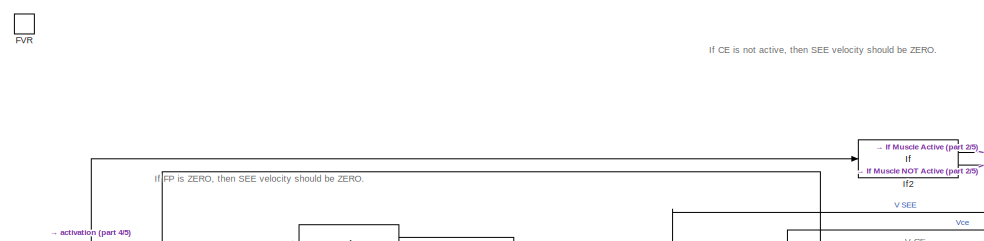
[diagram: Muscle_Mechanics_Functions/Contractile Element Force-Velocity Relation - part 1/5, top center region]
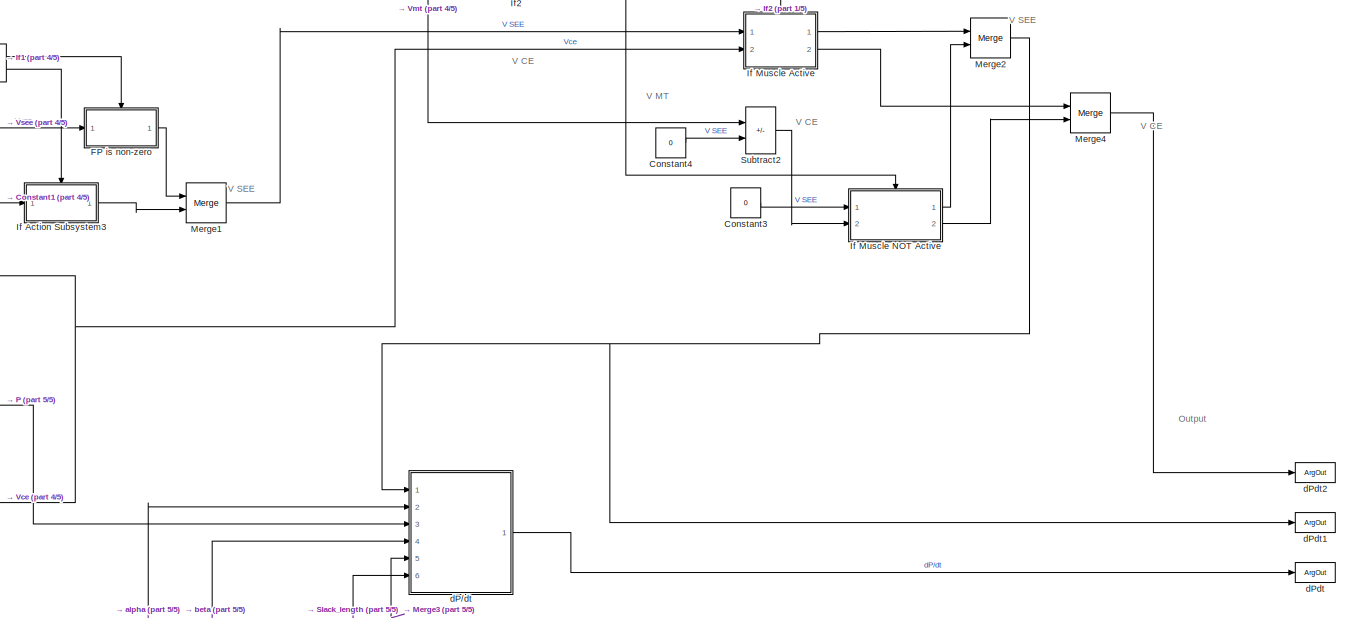
[diagram: Muscle_Mechanics_Functions/Contractile Element Force-Velocity Relation - part 2/5, middle right region]
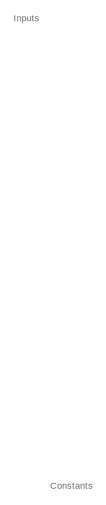
[diagram: Muscle_Mechanics_Functions/Contractile Element Force-Velocity Relation - part 3/5, top left region]
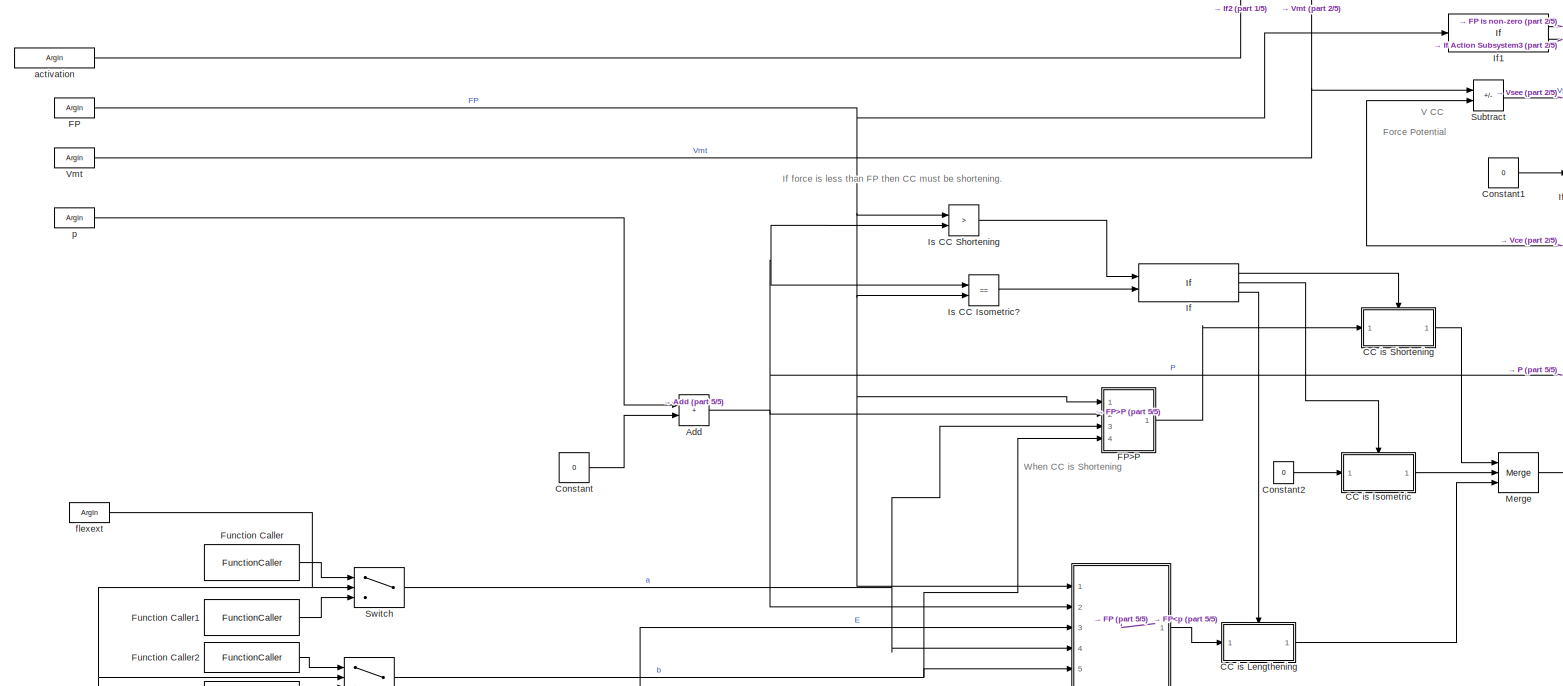
[diagram: Muscle_Mechanics_Functions/Contractile Element Force-Velocity Relation - part 4/5, middle left region]
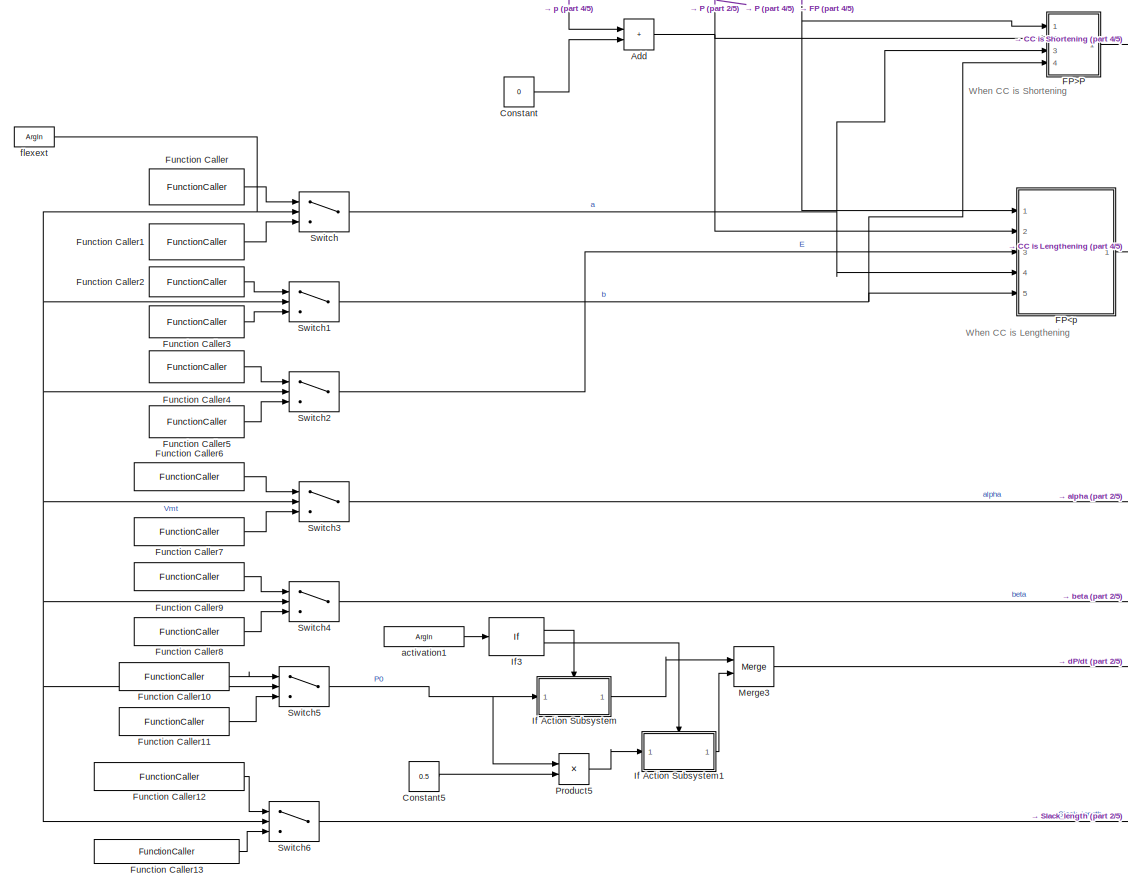
[diagram: Muscle_Mechanics_Functions/Contractile Element Force-Velocity Relation - part 5/5, bottom left region]
BLOCK [SubSystem] Muscle_Mechanics_Functions/Contractile Element Force-Velocity Relation
  Ports = [0, 0, 0, 1]
  RequestExecContextInheritance = off
  TreatAsAtomicUnit = on
BLOCK [Sum] Muscle_Mechanics_Functions/Contractile Element Force-Velocity Relation/Add
  IconShape = rectangular
  Ports = [2, 1]
BLOCK [SubSystem] Muscle_Mechanics_Functions/Contractile Element Force-Velocity Relation/CC is Isometric
  Ports = [1, 1, 0, 0, 0, 0, 0, 1]
  RequestExecContextInheritance = off
  TreatAsAtomicUnit = on
BLOCK [ActionPort] Muscle_Mechanics_Functions/Contractile Element Force-Velocity Relation/CC is Isometric/Action Port
  ActionPortLabel = elseif(u2 == 1)
BLOCK [Inport] Muscle_Mechanics_Functions/Contractile Element Force-Velocity Relation/CC is Isometric/In1
BLOCK [Outport] Muscle_Mechanics_Functions/Contractile Element Force-Velocity Relation/CC is Isometric/Out1
BLOCK [SubSystem] Muscle_Mechanics_Functions/Contractile Element Force-Velocity Relation/CC is Lengthening
  Ports = [1, 1, 0, 0, 0, 0, 0, 1]
  RequestExecContextInheritance = off
  TreatAsAtomicUnit = on
BLOCK [ActionPort] Muscle_Mechanics_Functions/Contractile Element Force-Velocity Relation/CC is Lengthening/Action Port
  ActionPortLabel = else
BLOCK [Outport] Muscle_Mechanics_Functions/Contractile Element Force-Velocity Relation/CC is Lengthening/Out1
BLOCK [Inport] Muscle_Mechanics_Functions/Contractile Element Force-Velocity Relation/CC is Lengthening/Vce
BLOCK [SubSystem] Muscle_Mechanics_Functions/Contractile Element Force-Velocity Relation/CC is Shortening
  Ports = [1, 1, 0, 0, 0, 0, 0, 1]
  RequestExecContextInheritance = off
  TreatAsAtomicUnit = on
BLOCK [ActionPort] Muscle_Mechanics_Functions/Contractile Element Force-Velocity Relation/CC is Shortening/Action Port
  ActionPortLabel = if(u1 == 1)
BLOCK [Inport] Muscle_Mechanics_Functions/Contractile Element Force-Velocity Relation/CC is Shortening/In1
BLOCK [Outport] Muscle_Mechanics_Functions/Contractile Element Force-Velocity Relation/CC is Shortening/Out1
BLOCK [Constant] Muscle_Mechanics_Functions/Contractile Element Force-Velocity Relation/Constant
  Value = 0
BLOCK [Constant] Muscle_Mechanics_Functions/Contractile Element Force-Velocity Relation/Constant1
  Value = 0
BLOCK [Constant] Muscle_Mechanics_Functions/Contractile Element Force-Velocity Relation/Constant2
  Value = 0
BLOCK [Constant] Muscle_Mechanics_Functions/Contractile Element Force-Velocity Relation/Constant3
  Value = 0
BLOCK [Constant] Muscle_Mechanics_Functions/Contractile Element Force-Velocity Relation/Constant4
  Value = 0
BLOCK [Constant] Muscle_Mechanics_Functions/Contractile Element Force-Velocity Relation/Constant5
  Value = 0.5
BLOCK [ArgIn] Muscle_Mechanics_Functions/Contractile Element Force-Velocity Relation/FP
  ArgumentName = FP
  DisableCoverage = on
BLOCK [SubSystem] Muscle_Mechanics_Functions/Contractile Element Force-Velocity Relation/FP is non-zero
  Ports = [1, 1, 0, 0, 0, 0, 0, 1]
  RequestExecContextInheritance = off
  TreatAsAtomicUnit = on
BLOCK [ActionPort] Muscle_Mechanics_Functions/Contractile Element Force-Velocity Relation/FP is non-zero/Action Port
  ActionPortLabel = if(u1 > 0)
BLOCK [Inport] Muscle_Mechanics_Functions/Contractile Element Force-Velocity Relation/FP is non-zero/In1
BLOCK [Outport] Muscle_Mechanics_Functions/Contractile Element Force-Velocity Relation/FP is non-zero/Out1
BLOCK [SubSystem] Muscle_Mechanics_Functions/Contractile Element Force-Velocity Relation/FP<p
  Ports = [5, 1]
  RequestExecContextInheritance = off
BLOCK [Product] Muscle_Mechanics_Functions/Contractile Element Force-Velocity Relation/FP<p/Divide
  Inputs = */
  Ports = [2, 1]
BLOCK [Inport] Muscle_Mechanics_Functions/Contractile Element Force-Velocity Relation/FP<p/E
  Port = 3
BLOCK [Inport] Muscle_Mechanics_Functions/Contractile Element Force-Velocity Relation/FP<p/FP
BLOCK [Sum] Muscle_Mechanics_Functions/Contractile Element Force-Velocity Relation/FP<p/Fiso+a
  IconShape = rectangular
  Ports = [2, 1]
BLOCK [Inport] Muscle_Mechanics_Functions/Contractile Element Force-Velocity Relation/FP<p/P
  Port = 2
BLOCK [Product] Muscle_Mechanics_Functions/Contractile Element Force-Velocity Relation/FP<p/Product1
  Inputs = 3
  Ports = [3, 1]
BLOCK [Product] Muscle_Mechanics_Functions/Contractile Element Force-Velocity Relation/FP<p/Product2
  Ports = [2, 1]
BLOCK [Sum] Muscle_Mechanics_Functions/Contractile Element Force-Velocity Relation/FP<p/Subtract
  IconShape = rectangular
  Inputs = +-
  Ports = [2, 1]
BLOCK [Sum] Muscle_Mechanics_Functions/Contractile Element Force-Velocity Relation/FP<p/Subtract1
  IconShape = rectangular
  Inputs = +-
  Ports = [2, 1]
BLOCK [Sum] Muscle_Mechanics_Functions/Contractile Element Force-Velocity Relation/FP<p/Subtract2
  IconShape = rectangular
  Inputs = +-
  Ports = [2, 1]
BLOCK [Outport] Muscle_Mechanics_Functions/Contractile Element Force-Velocity Relation/FP<p/Vce
BLOCK [Inport] Muscle_Mechanics_Functions/Contractile Element Force-Velocity Relation/FP<p/a
  Port = 4
BLOCK [Inport] Muscle_Mechanics_Functions/Contractile Element Force-Velocity Relation/FP<p/b
  Port = 5
BLOCK [Product] Muscle_Mechanics_Functions/Contractile Element Force-Velocity Relation/FP<p/f_iso_ecc
  Ports = [2, 1]
BLOCK [Product] Muscle_Mechanics_Functions/Contractile Element Force-Velocity Relation/FP<p/f_iso_ecc2
  Ports = [2, 1]
BLOCK [SubSystem] Muscle_Mechanics_Functions/Contractile Element Force-Velocity Relation/FP>P
  Ports = [4, 1]
  RequestExecContextInheritance = off
BLOCK [Sum] Muscle_Mechanics_Functions/Contractile Element Force-Velocity Relation/FP>P/Add
  IconShape = rectangular
  Ports = [2, 1]
BLOCK [Sum] Muscle_Mechanics_Functions/Contractile Element Force-Velocity Relation/FP>P/Add1
  IconShape = rectangular
  Ports = [2, 1]
BLOCK [Constant] Muscle_Mechanics_Functions/Contractile Element Force-Velocity Relation/FP>P/Constant
  Value = -1
BLOCK [Product] Muscle_Mechanics_Functions/Contractile Element Force-Velocity Relation/FP>P/Divide
  Inputs = */
  Ports = [2, 1]
BLOCK [Inport] Muscle_Mechanics_Functions/Contractile Element Force-Velocity Relation/FP>P/FP
BLOCK [Inport] Muscle_Mechanics_Functions/Contractile Element Force-Velocity Relation/FP>P/P
  Port = 2
BLOCK [Product] Muscle_Mechanics_Functions/Contractile Element Force-Velocity Relation/FP>P/Product
  Ports = [2, 1]
BLOCK [Product] Muscle_Mechanics_Functions/Contractile Element Force-Velocity Relation/FP>P/Product1
  Ports = [2, 1]
BLOCK [Sum] Muscle_Mechanics_Functions/Contractile Element Force-Velocity Relation/FP>P/Subtract
  IconShape = rectangular
  Inputs = +-
  Ports = [2, 1]
BLOCK [Outport] Muscle_Mechanics_Functions/Contractile Element Force-Velocity Relation/FP>P/Vce
BLOCK [Inport] Muscle_Mechanics_Functions/Contractile Element Force-Velocity Relation/FP>P/a
  Port = 3
BLOCK [Inport] Muscle_Mechanics_Functions/Contractile Element Force-Velocity Relation/FP>P/b
  Port = 4
BLOCK [TriggerPort] Muscle_Mechanics_Functions/Contractile Element Force-Velocity Relation/FVR
  FunctionName = FVR
  FunctionVisibility = scoped
  IsSimulinkFunction = on
  Ports = []
  StatesWhenEnabling = held
  TriggerType = function-call
  VariantControl = (inherit)
BLOCK [FunctionCaller] Muscle_Mechanics_Functions/Contractile Element Force-Velocity Relation/Function Caller
  FunctionPrototype = y = Constants.aF()
  InputArgumentSpecifications = <Enter example>
  OutputArgumentSpecifications = <Enter example>
  Ports = [0, 1]
BLOCK [FunctionCaller] Muscle_Mechanics_Functions/Contractile Element Force-Velocity Relation/Function Caller1
  FunctionPrototype = y = Constants.aE()
  InputArgumentSpecifications = <Enter example>
  OutputArgumentSpecifications = <Enter example>
  Ports = [0, 1]
BLOCK [FunctionCaller] Muscle_Mechanics_Functions/Contractile Element Force-Velocity Relation/Function Caller10
  FunctionPrototype = y = Constants.P0F()
  InputArgumentSpecifications = <Enter example>
  OutputArgumentSpecifications = <Enter example>
  Ports = [0, 1]
BLOCK [FunctionCaller] Muscle_Mechanics_Functions/Contractile Element Force-Velocity Relation/Function Caller11
  FunctionPrototype = y = Constants.P0E()
  InputArgumentSpecifications = <Enter example>
  OutputArgumentSpecifications = <Enter example>
  Ports = [0, 1]
BLOCK [FunctionCaller] Muscle_Mechanics_Functions/Contractile Element Force-Velocity Relation/Function Caller12
  FunctionPrototype = y = Constants.Slack_lengthF()
  InputArgumentSpecifications = <Enter example>
  OutputArgumentSpecifications = <Enter example>
  Ports = [0, 1]
BLOCK [FunctionCaller] Muscle_Mechanics_Functions/Contractile Element Force-Velocity Relation/Function Caller13
  FunctionPrototype = y = Constants.Slack_lengthE()
  InputArgumentSpecifications = <Enter example>
  OutputArgumentSpecifications = <Enter example>
  Ports = [0, 1]
BLOCK [FunctionCaller] Muscle_Mechanics_Functions/Contractile Element Force-Velocity Relation/Function Caller2
  FunctionPrototype = y = Constants.bF()
  InputArgumentSpecifications = <Enter example>
  OutputArgumentSpecifications = <Enter example>
  Ports = [0, 1]
BLOCK [FunctionCaller] Muscle_Mechanics_Functions/Contractile Element Force-Velocity Relation/Function Caller3
  FunctionPrototype = y = Constants.bE()
  InputArgumentSpecifications = <Enter example>
  OutputArgumentSpecifications = <Enter example>
  Ports = [0, 1]
BLOCK [FunctionCaller] Muscle_Mechanics_Functions/Contractile Element Force-Velocity Relation/Function Caller4
  FunctionPrototype = y = Constants.EF()
  InputArgumentSpecifications = <Enter example>
  OutputArgumentSpecifications = <Enter example>
  Ports = [0, 1]
BLOCK [FunctionCaller] Muscle_Mechanics_Functions/Contractile Element Force-Velocity Relation/Function Caller5
  FunctionPrototype = y = Constants.EE()
  InputArgumentSpecifications = <Enter example>
  OutputArgumentSpecifications = <Enter example>
  Ports = [0, 1]
BLOCK [FunctionCaller] Muscle_Mechanics_Functions/Contractile Element Force-Velocity Relation/Function Caller6
  FunctionPrototype = y = Constants.alphaF()
  InputArgumentSpecifications = <Enter example>
  OutputArgumentSpecifications = <Enter example>
  Ports = [0, 1]
BLOCK [FunctionCaller] Muscle_Mechanics_Functions/Contractile Element Force-Velocity Relation/Function Caller7
  FunctionPrototype = y = Constants.alphaE()
  InputArgumentSpecifications = <Enter example>
  OutputArgumentSpecifications = <Enter example>
  Ports = [0, 1]
BLOCK [FunctionCaller] Muscle_Mechanics_Functions/Contractile Element Force-Velocity Relation/Function Caller8
  FunctionPrototype = y = Constants.betaE()
  InputArgumentSpecifications = <Enter example>
  OutputArgumentSpecifications = <Enter example>
  Ports = [0, 1]
BLOCK [FunctionCaller] Muscle_Mechanics_Functions/Contractile Element Force-Velocity Relation/Function Caller9
  FunctionPrototype = y = Constants.betaF()
  InputArgumentSpecifications = <Enter example>
  OutputArgumentSpecifications = <Enter example>
  Ports = [0, 1]
BLOCK [If] Muscle_Mechanics_Functions/Contractile Element Force-Velocity Relation/If
  ElseIfExpressions = u2 == 1
  IfExpression = u1 == 1
  NumInputs = 2
  Ports = [2, 3]
BLOCK [SubSystem] Muscle_Mechanics_Functions/Contractile Element Force-Velocity Relation/If Action Subsystem
  Ports = [1, 1, 0, 0, 0, 0, 0, 1]
  RequestExecContextInheritance = off
  TreatAsAtomicUnit = on
BLOCK [ActionPort] Muscle_Mechanics_Functions/Contractile Element Force-Velocity Relation/If Action Subsystem/Action Port
  ActionPortLabel = if(u1 == 0)
BLOCK [Inport] Muscle_Mechanics_Functions/Contractile Element Force-Velocity Relation/If Action Subsystem/In1
BLOCK [Outport] Muscle_Mechanics_Functions/Contractile Element Force-Velocity Relation/If Action Subsystem/Out1
BLOCK [SubSystem] Muscle_Mechanics_Functions/Contractile Element Force-Velocity Relation/If Action Subsystem1
  Ports = [1, 1, 0, 0, 0, 0, 0, 1]
  RequestExecContextInheritance = off
  TreatAsAtomicUnit = on
BLOCK [ActionPort] Muscle_Mechanics_Functions/Contractile Element Force-Velocity Relation/If Action Subsystem1/Action Port
  ActionPortLabel = else
BLOCK [Inport] Muscle_Mechanics_Functions/Contractile Element Force-Velocity Relation/If Action Subsystem1/In1
BLOCK [Outport] Muscle_Mechanics_Functions/Contractile Element Force-Velocity Relation/If Action Subsystem1/Out1
BLOCK [SubSystem] Muscle_Mechanics_Functions/Contractile Element Force-Velocity Relation/If Action Subsystem3
  Ports = [1, 1, 0, 0, 0, 0, 0, 1]
  RequestExecContextInheritance = off
  TreatAsAtomicUnit = on
BLOCK [ActionPort] Muscle_Mechanics_Functions/Contractile Element Force-Velocity Relation/If Action Subsystem3/Action Port
  ActionPortLabel = else
BLOCK [Inport] Muscle_Mechanics_Functions/Contractile Element Force-Velocity Relation/If Action Subsystem3/In1
BLOCK [Outport] Muscle_Mechanics_Functions/Contractile Element Force-Velocity Relation/If Action Subsystem3/Out1
BLOCK [SubSystem] Muscle_Mechanics_Functions/Contractile Element Force-Velocity Relation/If Muscle Active
  Ports = [2, 2, 0, 0, 0, 0, 0, 1]
  RequestExecContextInheritance = off
  TreatAsAtomicUnit = on
BLOCK [ActionPort] Muscle_Mechanics_Functions/Contractile Element Force-Velocity Relation/If Muscle Active/Action Port
  ActionPortLabel = if(u1 > 0.001)
BLOCK [Inport] Muscle_Mechanics_Functions/Contractile Element Force-Velocity Relation/If Muscle Active/In1
BLOCK [Inport] Muscle_Mechanics_Functions/Contractile Element Force-Velocity Relation/If Muscle Active/In2
  Port = 2
BLOCK [Outport] Muscle_Mechanics_Functions/Contractile Element Force-Velocity Relation/If Muscle Active/Out1
BLOCK [Outport] Muscle_Mechanics_Functions/Contractile Element Force-Velocity Relation/If Muscle Active/Out2
  Port = 2
BLOCK [SubSystem] Muscle_Mechanics_Functions/Contractile Element Force-Velocity Relation/If Muscle NOT Active
  Ports = [2, 2, 0, 0, 0, 0, 0, 1]
  RequestExecContextInheritance = off
  TreatAsAtomicUnit = on
BLOCK [ActionPort] Muscle_Mechanics_Functions/Contractile Element Force-Velocity Relation/If Muscle NOT Active/Action Port
  ActionPortLabel = else
BLOCK [Inport] Muscle_Mechanics_Functions/Contractile Element Force-Velocity Relation/If Muscle NOT Active/In1
BLOCK [Inport] Muscle_Mechanics_Functions/Contractile Element Force-Velocity Relation/If Muscle NOT Active/In2
  Port = 2
BLOCK [Outport] Muscle_Mechanics_Functions/Contractile Element Force-Velocity Relation/If Muscle NOT Active/Out1
BLOCK [Outport] Muscle_Mechanics_Functions/Contractile Element Force-Velocity Relation/If Muscle NOT Active/Out2
  Port = 2
BLOCK [If] Muscle_Mechanics_Functions/Contractile Element Force-Velocity Relation/If1
  Ports = [1, 2]
BLOCK [If] Muscle_Mechanics_Functions/Contractile Element Force-Velocity Relation/If2
  IfExpression = u1 > 0.001
  Ports = [1, 2]
BLOCK [If] Muscle_Mechanics_Functions/Contractile Element Force-Velocity Relation/If3
  IfExpression = u1 == 0
  Ports = [1, 2]
BLOCK [RelationalOperator] Muscle_Mechanics_Functions/Contractile Element Force-Velocity Relation/Is CC Isometric?
  InputSameDT = off
  Operator = ==
  OutDataTypeStr = boolean
  Ports = [2, 1]
  RndMeth = Simplest
BLOCK [RelationalOperator] Muscle_Mechanics_Functions/Contractile Element Force-Velocity Relation/Is CC Shortening
  InputSameDT = off
  Operator = >
  OutDataTypeStr = boolean
  Ports = [2, 1]
  RndMeth = Simplest
BLOCK [Merge] Muscle_Mechanics_Functions/Contractile Element Force-Velocity Relation/Merge
  Inputs = 3
  Ports = [3, 1]
BLOCK [Merge] Muscle_Mechanics_Functions/Contractile Element Force-Velocity Relation/Merge1
  Ports = [2, 1]
BLOCK [Merge] Muscle_Mechanics_Functions/Contractile Element Force-Velocity Relation/Merge2
  Ports = [2, 1]
BLOCK [Merge] Muscle_Mechanics_Functions/Contractile Element Force-Velocity Relation/Merge3
  Ports = [2, 1]
BLOCK [Merge] Muscle_Mechanics_Functions/Contractile Element Force-Velocity Relation/Merge4
  Ports = [2, 1]
BLOCK [Product] Muscle_Mechanics_Functions/Contractile Element Force-Velocity Relation/Product5
  Ports = [2, 1]
BLOCK [Sum] Muscle_Mechanics_Functions/Contractile Element Force-Velocity Relation/Subtract
  IconShape = rectangular
  Inputs = +-
  Ports = [2, 1]
BLOCK [Sum] Muscle_Mechanics_Functions/Contractile Element Force-Velocity Relation/Subtract2
  IconShape = rectangular
  Inputs = +-
  Ports = [2, 1]
BLOCK [Switch] Muscle_Mechanics_Functions/Contractile Element Force-Velocity Relation/Switch
  Criteria = u2 > Threshold
  InputSameDT = off
  SaturateOnIntegerOverflow = off
  Threshold = 1
BLOCK [Switch] Muscle_Mechanics_Functions/Contractile Element Force-Velocity Relation/Switch1
  Criteria = u2 > Threshold
  InputSameDT = off
  SaturateOnIntegerOverflow = off
  Threshold = 1
BLOCK [Switch] Muscle_Mechanics_Functions/Contractile Element Force-Velocity Relation/Switch2
  Criteria = u2 > Threshold
  InputSameDT = off
  SaturateOnIntegerOverflow = off
  Threshold = 1
BLOCK [Switch] Muscle_Mechanics_Functions/Contractile Element Force-Velocity Relation/Switch3
  Criteria = u2 > Threshold
  InputSameDT = off
  SaturateOnIntegerOverflow = off
  Threshold = 1
BLOCK [Switch] Muscle_Mechanics_Functions/Contractile Element Force-Velocity Relation/Switch4
  Criteria = u2 > Threshold
  InputSameDT = off
  SaturateOnIntegerOverflow = off
  Threshold = 1
BLOCK [Switch] Muscle_Mechanics_Functions/Contractile Element Force-Velocity Relation/Switch5
  Criteria = u2 > Threshold
  InputSameDT = off
  SaturateOnIntegerOverflow = off
  Threshold = 1
BLOCK [Switch] Muscle_Mechanics_Functions/Contractile Element Force-Velocity Relation/Switch6
  Criteria = u2 > Threshold
  InputSameDT = off
  SaturateOnIntegerOverflow = off
  Threshold = 1
BLOCK [ArgIn] Muscle_Mechanics_Functions/Contractile Element Force-Velocity Relation/Vmt
  ArgumentName = Vmt
  DisableCoverage = on
  Port = 2
BLOCK [ArgIn] Muscle_Mechanics_Functions/Contractile Element Force-Velocity Relation/activation
  ArgumentName = activation
  DisableCoverage = on
  Port = 5
BLOCK [ArgIn] Muscle_Mechanics_Functions/Contractile Element Force-Velocity Relation/activation1
  ArgumentName = ModelStrength
  DisableCoverage = on
  Port = 6
BLOCK [SubSystem] Muscle_Mechanics_Functions/Contractile Element Force-Velocity Relation/dP//dt
  Ports = [6, 1]
  RequestExecContextInheritance = off
BLOCK [Sum] Muscle_Mechanics_Functions/Contractile Element Force-Velocity Relation/dP//dt/Add
  IconShape = rectangular
  Ports = [2, 1]
BLOCK [Constant] Muscle_Mechanics_Functions/Contractile Element Force-Velocity Relation/dP//dt/Constant
  Value = 4
BLOCK [Product] Muscle_Mechanics_Functions/Contractile Element Force-Velocity Relation/dP//dt/Divide
  Inputs = */
  Ports = [2, 1]
BLOCK [Inport] Muscle_Mechanics_Functions/Contractile Element Force-Velocity Relation/dP//dt/Ls
  NameLocation = right
  Port = 6
BLOCK [Math] Muscle_Mechanics_Functions/Contractile Element Force-Velocity Relation/dP//dt/Math Function
  Operator = square
  Ports = [1, 1]
BLOCK [Math] Muscle_Mechanics_Functions/Contractile Element Force-Velocity Relation/dP//dt/Math Function1
  Operator = square
  Ports = [1, 1]
BLOCK [Inport] Muscle_Mechanics_Functions/Contractile Element Force-Velocity Relation/dP//dt/P
  NameLocation = left
  Port = 3
BLOCK [Inport] Muscle_Mechanics_Functions/Contractile Element Force-Velocity Relation/dP//dt/Po
  NameLocation = right
  Port = 5
BLOCK [Product] Muscle_Mechanics_Functions/Contractile Element Force-Velocity Relation/dP//dt/Product
  Ports = [2, 1]
BLOCK [Product] Muscle_Mechanics_Functions/Contractile Element Force-Velocity Relation/dP//dt/Product1
  Inputs = 4
  Ports = [4, 1]
BLOCK [Product] Muscle_Mechanics_Functions/Contractile Element Force-Velocity Relation/dP//dt/Product2
  Ports = [2, 1]
BLOCK [Scope] Muscle_Mechanics_Functions/Contractile Element Force-Velocity Relation/dP//dt/Scope
  Floating = off
  NumInputPorts = 2
  Ports = [2]
  ScopeSpecificationString = Simulink.scopes.TimeScopeBlockCfg('CurrentConfiguration', extmgr.ConfigurationSet(extmgr.Configuration('Core','General UI',true),extmgr.Configuration('Core','Source UI',true),extmgr.Configuration('Sources','WiredSimulink',true),extmgr.Configuration('Visuals','Time Domain',true,'SerializedDisplays',{struct('MinYLimReal','-1.00000','MaxYLimReal','1.00000','YLabelReal','','MinYLimMag','0.00000','MaxY...<+2708ch>
BLOCK [Sqrt] Muscle_Mechanics_Functions/Contractile Element Force-Velocity Relation/dP//dt/Square Root
BLOCK [Inport] Muscle_Mechanics_Functions/Contractile Element Force-Velocity Relation/dP//dt/Vsee
  NameLocation = left
BLOCK [Inport] Muscle_Mechanics_Functions/Contractile Element Force-Velocity Relation/dP//dt/alpha
  NameLocation = left
  Port = 2
BLOCK [Inport] Muscle_Mechanics_Functions/Contractile Element Force-Velocity Relation/dP//dt/beta
  NameLocation = left
  Port = 4
BLOCK [Outport] Muscle_Mechanics_Functions/Contractile Element Force-Velocity Relation/dP//dt/dP//dt
BLOCK [ArgOut] Muscle_Mechanics_Functions/Contractile Element Force-Velocity Relation/dPdt
  ArgumentName = dPdt
  DisableCoverage = on
  Port = 2
BLOCK [ArgOut] Muscle_Mechanics_Functions/Contractile Element Force-Velocity Relation/dPdt1
  ArgumentName = vSEE
  DisableCoverage = on
BLOCK [ArgOut] Muscle_Mechanics_Functions/Contractile Element Force-Velocity Relation/dPdt2
  ArgumentName = vCE
  DisableCoverage = on
  Port = 3
BLOCK [ArgIn] Muscle_Mechanics_Functions/Contractile Element Force-Velocity Relation/flexext
  ArgumentName = flexext
  DisableCoverage = on
  Port = 4
BLOCK [ArgIn] Muscle_Mechanics_Functions/Contractile Element Force-Velocity Relation/p
  ArgumentName = p
  DisableCoverage = on
  Port = 3
BLOCK [SubSystem] Muscle_Mechanics_Functions/Series-Elastic Element Stiffness Relation 
  Ports = [0, 0, 0, 1]
  RequestExecContextInheritance = off
  TreatAsAtomicUnit = on
BLOCK [Sum] Muscle_Mechanics_Functions/Series-Elastic Element Stiffness Relation /Add
  IconShape = rectangular
  Ports = [2, 1]
BLOCK [Sum] Muscle_Mechanics_Functions/Series-Elastic Element Stiffness Relation /Add1
  IconShape = rectangular
  Ports = [2, 1]
BLOCK [Constant] Muscle_Mechanics_Functions/Series-Elastic Element Stiffness Relation /Constant
  Value = 0.5
BLOCK [Constant] Muscle_Mechanics_Functions/Series-Elastic Element Stiffness Relation /Constant5
  Value = 2
BLOCK [Constant] Muscle_Mechanics_Functions/Series-Elastic Element Stiffness Relation /Constant6
  Value = 2
BLOCK [Product] Muscle_Mechanics_Functions/Series-Elastic Element Stiffness Relation /Divide
  Inputs = */
  Ports = [2, 1]
BLOCK [ArgIn] Muscle_Mechanics_Functions/Series-Elastic Element Stiffness Relation /FlexOrExtMus
  ArgumentName = FlexOrExtMus
  DisableCoverage = on
  Port = 2
BLOCK [FunctionCaller] Muscle_Mechanics_Functions/Series-Elastic Element Stiffness Relation /Function Caller
  FunctionPrototype = y = Constants.Slack_lengthF()
  InputArgumentSpecifications = <Enter example>
  OutputArgumentSpecifications = <Enter example>
  Ports = [0, 1]
BLOCK [FunctionCaller] Muscle_Mechanics_Functions/Series-Elastic Element Stiffness Relation /Function Caller1
  FunctionPrototype = y = Constants.Slack_lengthE()
  InputArgumentSpecifications = <Enter example>
  OutputArgumentSpecifications = <Enter example>
  Ports = [0, 1]
BLOCK [FunctionCaller] Muscle_Mechanics_Functions/Series-Elastic Element Stiffness Relation /Function Caller3
  FunctionPrototype = y = Constants.P0F()
  InputArgumentSpecifications = <Enter example>
  OutputArgumentSpecifications = <Enter example>
  Ports = [0, 1]
BLOCK [FunctionCaller] Muscle_Mechanics_Functions/Series-Elastic Element Stiffness Relation /Function Caller4
  FunctionPrototype = y = Constants.P0E()
  InputArgumentSpecifications = <Enter example>
  OutputArgumentSpecifications = <Enter example>
  Ports = [0, 1]
BLOCK [FunctionCaller] Muscle_Mechanics_Functions/Series-Elastic Element Stiffness Relation /Function Caller5
  FunctionPrototype = y = Constants.alphaE()
  InputArgumentSpecifications = <Enter example>
  OutputArgumentSpecifications = <Enter example>
  Ports = [0, 1]
BLOCK [FunctionCaller] Muscle_Mechanics_Functions/Series-Elastic Element Stiffness Relation /Function Caller6
  FunctionPrototype = y = Constants.alphaF()
  InputArgumentSpecifications = <Enter example>
  OutputArgumentSpecifications = <Enter example>
  Ports = [0, 1]
BLOCK [FunctionCaller] Muscle_Mechanics_Functions/Series-Elastic Element Stiffness Relation /Function Caller7
  FunctionPrototype = y = Constants.betaF()
  InputArgumentSpecifications = <Enter example>
  OutputArgumentSpecifications = <Enter example>
  Ports = [0, 1]
BLOCK [FunctionCaller] Muscle_Mechanics_Functions/Series-Elastic Element Stiffness Relation /Function Caller8
  FunctionPrototype = y = Constants.betaE()
  InputArgumentSpecifications = <Enter example>
  OutputArgumentSpecifications = <Enter example>
  Ports = [0, 1]
BLOCK [If] Muscle_Mechanics_Functions/Series-Elastic Element Stiffness Relation /If
  IfExpression = u1 == 0
  Ports = [1, 2]
BLOCK [SubSystem] Muscle_Mechanics_Functions/Series-Elastic Element Stiffness Relation /If Action Subsystem
  Ports = [1, 1, 0, 0, 0, 0, 0, 1]
  RequestExecContextInheritance = off
  TreatAsAtomicUnit = on
BLOCK [ActionPort] Muscle_Mechanics_Functions/Series-Elastic Element Stiffness Relation /If Action Subsystem/Action Port
  ActionPortLabel = if(u1 == 0)
BLOCK [Inport] Muscle_Mechanics_Functions/Series-Elastic Element Stiffness Relation /If Action Subsystem/In1
BLOCK [Outport] Muscle_Mechanics_Functions/Series-Elastic Element Stiffness Relation /If Action Subsystem/Out1
BLOCK [SubSystem] Muscle_Mechanics_Functions/Series-Elastic Element Stiffness Relation /If Action Subsystem1
  Ports = [1, 1, 0, 0, 0, 0, 0, 1]
  RequestExecContextInheritance = off
  TreatAsAtomicUnit = on
BLOCK [ActionPort] Muscle_Mechanics_Functions/Series-Elastic Element Stiffness Relation /If Action Subsystem1/Action Port
  ActionPortLabel = else
BLOCK [Inport] Muscle_Mechanics_Functions/Series-Elastic Element Stiffness Relation /If Action Subsystem1/In1
BLOCK [Outport] Muscle_Mechanics_Functions/Series-Elastic Element Stiffness Relation /If Action Subsystem1/Out1
BLOCK [TriggerPort] Muscle_Mechanics_Functions/Series-Elastic Element Stiffness Relation /LSEE
  FunctionName = LSEE
  FunctionVisibility = scoped
  IsSimulinkFunction = on
  Ports = []
  StatesWhenEnabling = held
  TriggerType = function-call
  VariantControl = (inherit)
BLOCK [ArgOut] Muscle_Mechanics_Functions/Series-Elastic Element Stiffness Relation /L_SEE
  ArgumentName = L_SEE
  DisableCoverage = on
BLOCK [Math] Muscle_Mechanics_Functions/Series-Elastic Element Stiffness Relation /Math Function1
  Operator = square
  Ports = [1, 1]
BLOCK [Math] Muscle_Mechanics_Functions/Series-Elastic Element Stiffness Relation /Math Function2
  Operator = square
  Ports = [1, 1]
BLOCK [Merge] Muscle_Mechanics_Functions/Series-Elastic Element Stiffness Relation /Merge
  Ports = [2, 1]
BLOCK [ArgIn] Muscle_Mechanics_Functions/Series-Elastic Element Stiffness Relation /ModelStrength
  ArgumentName = ModelStrength
  DisableCoverage = on
  Port = 3
BLOCK [ArgIn] Muscle_Mechanics_Functions/Series-Elastic Element Stiffness Relation /P
  ArgumentName = P
  DisableCoverage = on
BLOCK [Product] Muscle_Mechanics_Functions/Series-Elastic Element Stiffness Relation /Product
  Inputs = 3
  Ports = [3, 1]
BLOCK [Product] Muscle_Mechanics_Functions/Series-Elastic Element Stiffness Relation /Product1
  Ports = [2, 1]
BLOCK [Product] Muscle_Mechanics_Functions/Series-Elastic Element Stiffness Relation /Product2
  Ports = [2, 1]
BLOCK [Product] Muscle_Mechanics_Functions/Series-Elastic Element Stiffness Relation /Product3
  Inputs = 3
  Ports = [3, 1]
BLOCK [Product] Muscle_Mechanics_Functions/Series-Elastic Element Stiffness Relation /Product4
  Ports = [2, 1]
BLOCK [Product] Muscle_Mechanics_Functions/Series-Elastic Element Stiffness Relation /Product5
  Ports = [2, 1]
BLOCK [Scope] Muscle_Mechanics_Functions/Series-Elastic Element Stiffness Relation /Scope
  Floating = off
  NumInputPorts = 1
  Ports = [1]
  ScopeSpecificationString = Simulink.scopes.TimeScopeBlockCfg('CurrentConfiguration', extmgr.ConfigurationSet(extmgr.Configuration('Core','General UI',true),extmgr.Configuration('Core','Source UI',true),extmgr.Configuration('Sources','WiredSimulink',true,'DataLoggingVariableName','ScopeData1'),extmgr.Configuration('Visuals','Time Domain',true,'SerializedDisplays',{struct('MinYLimReal','0.875','MaxYLimReal','2.125','YLabelRea...<+1383ch>
BLOCK [Sqrt] Muscle_Mechanics_Functions/Series-Elastic Element Stiffness Relation /Sqrt
BLOCK [Sum] Muscle_Mechanics_Functions/Series-Elastic Element Stiffness Relation /Subtract
  IconShape = rectangular
  Inputs = +-
  Ports = [2, 1]
BLOCK [Switch] Muscle_Mechanics_Functions/Series-Elastic Element Stiffness Relation /Switch
  Criteria = u2 > Threshold
  InputSameDT = off
  SaturateOnIntegerOverflow = off
  Threshold = 1
BLOCK [Switch] Muscle_Mechanics_Functions/Series-Elastic Element Stiffness Relation /Switch1
  Criteria = u2 > Threshold
  InputSameDT = off
  SaturateOnIntegerOverflow = off
  Threshold = 1
BLOCK [Switch] Muscle_Mechanics_Functions/Series-Elastic Element Stiffness Relation /Switch2
  Criteria = u2 > Threshold
  InputSameDT = off
  SaturateOnIntegerOverflow = off
  Threshold = 1
BLOCK [Switch] Muscle_Mechanics_Functions/Series-Elastic Element Stiffness Relation /Switch3
  Criteria = u2 > Threshold
  InputSameDT = off
  SaturateOnIntegerOverflow = off
  Threshold = 1
BLOCK [Mux] Mux3
  DisplayOption = bar
  Inputs = 2
  Ports = [2, 1]
BLOCK [Constant] Num Trials
  Value = 5
BLOCK [RadioButtonGroup] Radio Button
  ButtonGroupName = Control Mode
  LabelPosition = Hide
  SelectedLabel = Keyboard
BLOCK [RadioButtonGroup] Radio Button1
  ButtonGroupName = Actuation
  LabelPosition = Hide
  SelectedLabel = Muscle Model
BLOCK [RadioButtonGroup] Radio Button2
  ButtonGroupName = Model Muscle Strength
  LabelPosition = Hide
  SelectedLabel = Normal
BLOCK [RelationalOperator] Relational Operator2
  InputSameDT = off
  Operator = >
  Ports = [2, 1]
  RndMeth = Simplest
BLOCK [SubSystem] Specify Model Parameters Here
  Ports = []
  RequestExecContextInheritance = off
BLOCK [EditField] Specify Model Parameters Here/Activation Rate Extensor
  Alignment = Center
  LabelPosition = Hide
  ShowInitialText = on
BLOCK [EditField] Specify Model Parameters Here/Activation Rate Flexor
  Alignment = Center
  LabelPosition = Hide
  ShowInitialText = on
BLOCK [EditField] Specify Model Parameters Here/Alpha Extensor
  Alignment = Center
  LabelPosition = Hide
  ShowInitialText = on
BLOCK [EditField] Specify Model Parameters Here/Alpha Flexor
  Alignment = Center
  LabelPosition = Hide
  ShowInitialText = on
BLOCK [EditField] Specify Model Parameters Here/Bang Bang Muscle Control Amplitude (1 = 100% Excitation)
  Alignment = Center
  LabelPosition = Hide
  ShowInitialText = on
BLOCK [EditField] Specify Model Parameters Here/Beta Extensor
  Alignment = Center
  LabelPosition = Hide
  ShowInitialText = on
BLOCK [EditField] Specify Model Parameters Here/Beta Flexor
  Alignment = Center
  LabelPosition = Hide
  ShowInitialText = on
BLOCK [EditField] Specify Model Parameters Here/Deactivation Rate Extensor
  Alignment = Center
  LabelPosition = Hide
  ShowInitialText = on
BLOCK [EditField] Specify Model Parameters Here/Deactivation Rate Flexor
  Alignment = Center
  LabelPosition = Hide
  ShowInitialText = on
BLOCK [EditField] Specify Model Parameters Here/E Extensor
  Alignment = Center
  LabelPosition = Hide
  ShowInitialText = on
BLOCK [EditField] Specify Model Parameters Here/Ecc. Plateau
  Alignment = Center
  LabelPosition = Hide
  ShowInitialText = on
BLOCK [EditField] Specify Model Parameters Here/Error Threshold (rad)
  Alignment = Center
  LabelPosition = Hide
  ShowInitialText = on
BLOCK [EditField] Specify Model Parameters Here/Extensor Actuator Strength (N)
  Alignment = Center
  LabelPosition = Hide
  ShowInitialText = on
BLOCK [EditField] Specify Model Parameters Here/Extensor Torque Generator Strength (Nm)
  Alignment = Center
  LabelPosition = Hide
  ShowInitialText = on
BLOCK [EditField] Specify Model Parameters Here/Flexor Actuator Strength (N)
  Alignment = Center
  LabelPosition = Hide
  ShowInitialText = on
BLOCK [EditField] Specify Model Parameters Here/Flexor Torque Generator Strength (Nm)
  Alignment = Center
  LabelPosition = Hide
  ShowInitialText = on
BLOCK [EditField] Specify Model Parameters Here/Global Damping (was -0.4)
  Alignment = Center
  LabelPosition = Hide
  ShowInitialText = on
BLOCK [EditField] Specify Model Parameters Here/Inertia (kgm2)
  Alignment = Center
  LabelPosition = Hide
  ShowInitialText = on
BLOCK [EditField] Specify Model Parameters Here/Initial position (rad)
  Alignment = Center
  LabelPosition = Hide
  ShowInitialText = on
BLOCK [EditField] Specify Model Parameters Here/L0 Extensor
  Alignment = Center
  LabelPosition = Hide
  ShowInitialText = on
BLOCK [EditField] Specify Model Parameters Here/L0 flexor
  Alignment = Center
  LabelPosition = Hide
  ShowInitialText = on
BLOCK [EditField] Specify Model Parameters Here/Lower Arm length (m)
  Alignment = Center
  LabelPosition = Hide
  ShowInitialText = on
BLOCK [EditField] Specify Model Parameters Here/Max Time
  Alignment = Center
  LabelPosition = Hide
  ShowInitialText = on
BLOCK [EditField] Specify Model Parameters Here/Max. Iso. Force Ext. (N)
  Alignment = Center
  LabelPosition = Hide
  ShowInitialText = on
BLOCK [EditField] Specify Model Parameters Here/Max. Iso. Force Flex. (N)
  Alignment = Center
  LabelPosition = Hide
  ShowInitialText = on
BLOCK [EditField] Specify Model Parameters Here/Maximum Extensor (ADC Units)
  Alignment = Center
  LabelPosition = Hide
  ShowInitialText = on
BLOCK [EditField] Specify Model Parameters Here/Maximum Flexor (ADC Units)
  Alignment = Center
  LabelPosition = Hide
  ShowInitialText = on
BLOCK [EditField] Specify Model Parameters Here/Minimum Extensor (ADC Units)
  Alignment = Center
  LabelPosition = Hide
  ShowInitialText = on
BLOCK [EditField] Specify Model Parameters Here/Minimum Flexor (ADC Units)
  Alignment = Center
  LabelPosition = Hide
  ShowInitialText = on
BLOCK [EditField] Specify Model Parameters Here/Muscle Insertion Location
  Alignment = Center
  LabelPosition = Hide
  ShowInitialText = on
BLOCK [EditField] Specify Model Parameters Here/Muscle Model Noise Level (Keyboard//Mouse Input Only)
  Alignment = Center
  LabelPosition = Hide
  ShowInitialText = on
BLOCK [EditField] Specify Model Parameters Here/Muscle Origin Location
  Alignment = Center
  LabelPosition = Hide
  ShowInitialText = on
BLOCK [EditField] Specify Model Parameters Here/Num Trials
  Alignment = Center
  LabelPosition = Hide
  ShowInitialText = on
BLOCK [EditField] Specify Model Parameters Here/Serial COM Port
  Alignment = Center
  LabelPosition = Hide
  ShowInitialText = on
BLOCK [EditField] Specify Model Parameters Here/Slack Length Extensor (m)
  Alignment = Center
  LabelPosition = Hide
  ShowInitialText = on
BLOCK [EditField] Specify Model Parameters Here/Slack Length Flexor
  Alignment = Center
  LabelPosition = Hide
  ShowInitialText = on
BLOCK [EditField] Specify Model Parameters Here/Starting point (radians)
  Alignment = Center
  LabelPosition = Hide
  ShowInitialText = on
BLOCK [EditField] Specify Model Parameters Here/Upper arm length (m)
  Alignment = Center
  LabelPosition = Hide
  ShowInitialText = on
BLOCK [EditField] Specify Model Parameters Here/Velocity Threshold (rad)
  Alignment = Center
  LabelPosition = Hide
  ShowInitialText = on
BLOCK [EditField] Specify Model Parameters Here/W Extensor
  Alignment = Center
  LabelPosition = Hide
  ShowInitialText = on
BLOCK [EditField] Specify Model Parameters Here/W flexor
  Alignment = Center
  LabelPosition = Hide
  ShowInitialText = on
BLOCK [EditField] Specify Model Parameters Here/a Extensor
  Alignment = Center
  LabelPosition = Hide
  ShowInitialText = on
BLOCK [EditField] Specify Model Parameters Here/a Flexor
  Alignment = Center
  LabelPosition = Hide
  ShowInitialText = on
BLOCK [EditField] Specify Model Parameters Here/b Extensor
  Alignment = Center
  LabelPosition = Hide
  ShowInitialText = on
BLOCK [EditField] Specify Model Parameters Here/b Flexor
  Alignment = Center
  LabelPosition = Hide
  ShowInitialText = on
BLOCK [EditField] Specify Model Parameters Here/target (radians)
  Alignment = Center
  LabelPosition = Hide
  ShowInitialText = on
BLOCK [Stop] Stop Simulation
BLOCK [ToWorkspace] To Workspace3
  FixptAsFi = on
  MaxDataPoints = inf
  Ports = [1]
  SampleTime = -1
  SaveFormat = Timeseries
  VariableName = otherSignals
BLOCK [SubSystem] Trial Start//Stop//Increment Control
  Ports = [1, 4]
  RequestExecContextInheritance = off
BLOCK [SubSystem] Trial Start//Stop//Increment Control/Counter for Trial Number
  Ports = [0, 1, 0, 1]
  RequestExecContextInheritance = off
  TreatAsAtomicUnit = on
BLOCK [Sum] Trial Start//Stop//Increment Control/Counter for Trial Number/Add
  IconShape = rectangular
  Ports = [2, 1]
BLOCK [Constant] Trial Start//Stop//Increment Control/Counter for Trial Number/Constant
  Value = 0
BLOCK [Delay] Trial Start//Stop//Increment Control/Counter for Trial Number/Delay
  DelayLength = 1
  InitialCondition = 0
  InputPortMap = u0
  Ports = [1, 1]
BLOCK [Reference] Trial Start//Stop//Increment Control/Counter for Trial Number/Increment Stored Integer  REF=simulink/Additional Math
& Discrete/Additional Math:
Increment - Decrement/Increment
Stored Integer
  Ports = [1, 1]
  SourceBlock = simulink/Additional Math\n& Discrete/Additional Math:\nIncrement - Decrement/Increment\nStored Integer
  SourceProductBaseCode = SL
  SourceType = Stored Integer Value Increment
BLOCK [Outport] Trial Start//Stop//Increment Control/Counter for Trial Number/Trial Number Switch
BLOCK [TriggerPort] Trial Start//Stop//Increment Control/Counter for Trial Number/Trigger
  Ports = []
  StatesWhenEnabling = held
  VariantControl = Variant
BLOCK [DataTypeConversion] Trial Start//Stop//Increment Control/Data Type Conversion2
  RndMeth = Floor
  SaturateOnIntegerOverflow = off
BLOCK [Delay] Trial Start//Stop//Increment Control/Delay
  DelayLength = 50
  InitialCondition = 0
  InputPortMap = u0
  Ports = [1, 1]
BLOCK [SubSystem] Trial Start//Stop//Increment Control/Extract Movement Time
  Ports = [1, 1, 0, 1]
  RequestExecContextInheritance = off
  TreatAsAtomicUnit = on
BLOCK [TriggerPort] Trial Start//Stop//Increment Control/Extract Movement Time/Loop Running Flag
  Ports = []
  StatesWhenEnabling = held
  TriggerType = falling
  VariantControl = Variant
BLOCK [Outport] Trial Start//Stop//Increment Control/Extract Movement Time/Movement Time
BLOCK [Inport] Trial Start//Stop//Increment Control/Extract Movement Time/Trial Time
BLOCK [SubSystem] Trial Start//Stop//Increment Control/Flag for What Phase Trial is In
  Ports = [2, 1]
  RequestExecContextInheritance = off
BLOCK [SubSystem] Trial Start//Stop//Increment Control/Flag for What Phase Trial is In/If Action Subsystem5
  Ports = [1, 1, 0, 0, 0, 0, 0, 1]
  RequestExecContextInheritance = off
  TreatAsAtomicUnit = on
BLOCK [ActionPort] Trial Start//Stop//Increment Control/Flag for What Phase Trial is In/If Action Subsystem5/Action Port
  ActionPortLabel = if(u1 == 0)
BLOCK [Inport] Trial Start//Stop//Increment Control/Flag for What Phase Trial is In/If Action Subsystem5/In1
BLOCK [Outport] Trial Start//Stop//Increment Control/Flag for What Phase Trial is In/If Action Subsystem5/Out1
BLOCK [SubSystem] Trial Start//Stop//Increment Control/Flag for What Phase Trial is In/If Action Subsystem6
  Ports = [1, 1, 0, 0, 0, 0, 0, 1]
  RequestExecContextInheritance = off
  TreatAsAtomicUnit = on
BLOCK [ActionPort] Trial Start//Stop//Increment Control/Flag for What Phase Trial is In/If Action Subsystem6/Action Port
  ActionPortLabel = elseif(u2 == 0)
BLOCK [Inport] Trial Start//Stop//Increment Control/Flag for What Phase Trial is In/If Action Subsystem6/In1
BLOCK [Outport] Trial Start//Stop//Increment Control/Flag for What Phase Trial is In/If Action Subsystem6/Out1
BLOCK [SubSystem] Trial Start//Stop//Increment Control/Flag for What Phase Trial is In/If Action Subsystem7
  Ports = [1, 1, 0, 0, 0, 0, 0, 1]
  RequestExecContextInheritance = off
  TreatAsAtomicUnit = on
BLOCK [ActionPort] Trial Start//Stop//Increment Control/Flag for What Phase Trial is In/If Action Subsystem7/Action Port
  ActionPortLabel = else
BLOCK [Inport] Trial Start//Stop//Increment Control/Flag for What Phase Trial is In/If Action Subsystem7/In1
BLOCK [Outport] Trial Start//Stop//Increment Control/Flag for What Phase Trial is In/If Action Subsystem7/Out1
BLOCK [If] Trial Start//Stop//Increment Control/Flag for What Phase Trial is In/If3
  ElseIfExpressions = u2 == 0
  IfExpression = u1 == 0
  NumInputs = 2
  Ports = [2, 3]
BLOCK [Merge] Trial Start//Stop//Increment Control/Flag for What Phase Trial is In/Merge2
  Inputs = 3
  Ports = [3, 1]
BLOCK [Inport] Trial Start//Stop//Increment Control/Flag for What Phase Trial is In/Stop Criteria Flag
  Port = 2
BLOCK [Constant] Trial Start//Stop//Increment Control/Flag for What Phase Trial is In/StopCriteriaFlag
  Value = 2
BLOCK [Inport] Trial Start//Stop//Increment Control/Flag for What Phase Trial is In/Trial Time Flag
BLOCK [Constant] Trial Start//Stop//Increment Control/Flag for What Phase Trial is In/TrialIsRunning
  Value = 0
BLOCK [Constant] Trial Start//Stop//Increment Control/Flag for What Phase Trial is In/TrialTimeFlag
BLOCK [Outport] Trial Start//Stop//Increment Control/Flag for What Phase Trial is In/message display
BLOCK [FunctionCaller] Trial Start//Stop//Increment Control/Function Caller
  FunctionPrototype = y = Constants.ControlMode()
  OutputArgumentSpecifications = <Enter example>
  Ports = [0, 1]
BLOCK [Outport] Trial Start//Stop//Increment Control/Loop Control
  Port = 2
BLOCK [Mux] Trial Start//Stop//Increment Control/Mux
  DisplayOption = bar
  Inputs = 7
  Ports = [7, 1]
BLOCK [Outport] Trial Start//Stop//Increment Control/Reset Trigger
  Port = 3
BLOCK [SubSystem] Trial Start//Stop//Increment Control/Reset Trigger Logic
  Ports = [2, 1]
  RequestExecContextInheritance = off
BLOCK [Constant] Trial Start//Stop//Increment Control/Reset Trigger Logic/Constant1
  Value = 0
BLOCK [Logic] Trial Start//Stop//Increment Control/Reset Trigger Logic/Logical Operator1
  AllPortsSameDT = off
  OutDataTypeStr = boolean
  Ports = [2, 1]
BLOCK [RelationalOperator] Trial Start//Stop//Increment Control/Reset Trigger Logic/Relational Operator
  InputSameDT = off
  Operator = >
  OutDataTypeStr = boolean
  Ports = [2, 1]
  RndMeth = Simplest
BLOCK [Outport] Trial Start//Stop//Increment Control/Reset Trigger Logic/Reset Trigger
BLOCK [Inport] Trial Start//Stop//Increment Control/Reset Trigger Logic/Stop Criteria Flag
  Port = 2
BLOCK [Inport] Trial Start//Stop//Increment Control/Reset Trigger Logic/Trial Time
BLOCK [SubSystem] Trial Start//Stop//Increment Control/Stop Criteria Flag Control (Between Trials)
  Ports = [1, 1]
  RequestExecContextInheritance = off
BLOCK [Constant] Trial Start//Stop//Increment Control/Stop Criteria Flag Control (Between Trials)/Constant
BLOCK [DataTypeConversion] Trial Start//Stop//Increment Control/Stop Criteria Flag Control (Between Trials)/Data Type Conversion1
  RndMeth = Floor
  SaturateOnIntegerOverflow = off
BLOCK [Delay] Trial Start//Stop//Increment Control/Stop Criteria Flag Control (Between Trials)/Delay1
  DelayLength = 100
  InitialCondition = 0
  InputPortMap = u0
  Ports = [1, 1]
BLOCK [Delay] Trial Start//Stop//Increment Control/Stop Criteria Flag Control (Between Trials)/Delay2
  DelayLength = 1
  InitialCondition = 0
  InputPortMap = u0
  Ports = [1, 1]
BLOCK [SubSystem] Trial Start//Stop//Increment Control/Stop Criteria Flag Control (Between Trials)/If Action Subsystem3
  Ports = [1, 1, 0, 0, 0, 0, 0, 1]
  RequestExecContextInheritance = off
  TreatAsAtomicUnit = on
BLOCK [ActionPort] Trial Start//Stop//Increment Control/Stop Criteria Flag Control (Between Trials)/If Action Subsystem3/Action Port
  ActionPortLabel = if(u1 == 0)
BLOCK [Inport] Trial Start//Stop//Increment Control/Stop Criteria Flag Control (Between Trials)/If Action Subsystem3/In1
BLOCK [Outport] Trial Start//Stop//Increment Control/Stop Criteria Flag Control (Between Trials)/If Action Subsystem3/Out1
BLOCK [SubSystem] Trial Start//Stop//Increment Control/Stop Criteria Flag Control (Between Trials)/If Action Subsystem4
  Ports = [1, 1, 0, 0, 0, 0, 0, 1]
  RequestExecContextInheritance = off
  TreatAsAtomicUnit = on
BLOCK [ActionPort] Trial Start//Stop//Increment Control/Stop Criteria Flag Control (Between Trials)/If Action Subsystem4/Action Port
  ActionPortLabel = else
BLOCK [Inport] Trial Start//Stop//Increment Control/Stop Criteria Flag Control (Between Trials)/If Action Subsystem4/In1
BLOCK [Outport] Trial Start//Stop//Increment Control/Stop Criteria Flag Control (Between Trials)/If Action Subsystem4/Out1
BLOCK [If] Trial Start//Stop//Increment Control/Stop Criteria Flag Control (Between Trials)/If2
  IfExpression = u1 == 0
  Ports = [1, 2]
BLOCK [Merge] Trial Start//Stop//Increment Control/Stop Criteria Flag Control (Between Trials)/Merge1
  Ports = [2, 1]
BLOCK [Inport] Trial Start//Stop//Increment Control/Stop Criteria Flag Control (Between Trials)/Stop Criteria Flag In
  NameLocation = right
BLOCK [Outport] Trial Start//Stop//Increment Control/Stop Criteria Flag Control (Between Trials)/Stop Criteria Flag Out
  NameLocation = right
BLOCK [Inport] Trial Start//Stop//Increment Control/Stop Criteria Flag In
BLOCK [SubSystem] Trial Start//Stop//Increment Control/Subsystem
  Ports = [1, 2]
  RequestExecContextInheritance = off
BLOCK [DigitalClock] Trial Start//Stop//Increment Control/Subsystem/Digital Clock
  SampleTime = -1
BLOCK [If] Trial Start//Stop//Increment Control/Subsystem/If
  IfExpression = u1 == 0
  Ports = [1, 1]
  ShowElse = off
BLOCK [SubSystem] Trial Start//Stop//Increment Control/Subsystem/If Action Subsystem
  Ports = [1, 1, 0, 0, 0, 0, 0, 1]
  RequestExecContextInheritance = off
  TreatAsAtomicUnit = on
BLOCK [ActionPort] Trial Start//Stop//Increment Control/Subsystem/If Action Subsystem/Action Port
  ActionPortLabel = if(u1 == 0)
BLOCK [Inport] Trial Start//Stop//Increment Control/Subsystem/If Action Subsystem/In1
BLOCK [Outport] Trial Start//Stop//Increment Control/Subsystem/If Action Subsystem/Out1
BLOCK [Inport] Trial Start//Stop//Increment Control/Subsystem/In1
BLOCK [Outport] Trial Start//Stop//Increment Control/Subsystem/Simulation Time
BLOCK [Sum] Trial Start//Stop//Increment Control/Subsystem/Subtract
  IconShape = rectangular
  Inputs = +-
  Ports = [2, 1]
BLOCK [ToWorkspace] Trial Start//Stop//Increment Control/Subsystem/To Workspace1
  FixptAsFi = on
  MaxDataPoints = inf
  Ports = [1]
  SampleTime = -1
  VariableName = simulationTime
BLOCK [ToWorkspace] Trial Start//Stop//Increment Control/Subsystem/To Workspace2
  FixptAsFi = on
  MaxDataPoints = inf
  Ports = [1]
  SampleTime = -1
  VariableName = trialTime
BLOCK [Outport] Trial Start//Stop//Increment Control/Subsystem/Trial Time
  Port = 2
BLOCK [SubSystem] Trial Start//Stop//Increment Control/Subsystem1
  Ports = [2, 2]
  RequestExecContextInheritance = off
BLOCK [Logic] Trial Start//Stop//Increment Control/Subsystem1/Logical Operator
  AllPortsSameDT = off
  OutDataTypeStr = boolean
  Ports = [2, 1]
BLOCK [Product] Trial Start//Stop//Increment Control/Subsystem1/Product
  Ports = [2, 1]
BLOCK [RelationalOperator] Trial Start//Stop//Increment Control/Subsystem1/Relational Operator2
  InputSameDT = off
  Operator = <
  Ports = [2, 1]
  RndMeth = Simplest
BLOCK [Inport] Trial Start//Stop//Increment Control/Subsystem1/Stop Criteria Flag
  Port = 2
BLOCK [Outport] Trial Start//Stop//Increment Control/Subsystem1/StopCriteria&TrialTime Flag
BLOCK [Inport] Trial Start//Stop//Increment Control/Subsystem1/Trial Time
BLOCK [Outport] Trial Start//Stop//Increment Control/Subsystem1/Trial Time Flag
  Port = 2
BLOCK [Constant] Trial Start//Stop//Increment Control/Subsystem1/Trial time
  Value = 5
BLOCK [Constant] Trial Start//Stop//Increment Control/Subsystem1/Trial time1
BLOCK [SubSystem] Trial Start//Stop//Increment Control/Subsystem2
  Ports = [2, 1]
  RequestExecContextInheritance = off
BLOCK [Constant] Trial Start//Stop//Increment Control/Subsystem2/Constant2
BLOCK [Outport] Trial Start//Stop//Increment Control/Subsystem2/IC
BLOCK [SubSystem] Trial Start//Stop//Increment Control/Subsystem2/If Action Subsystem1
  Ports = [1, 1, 0, 0, 0, 0, 0, 1]
  RequestExecContextInheritance = off
  TreatAsAtomicUnit = on
BLOCK [ActionPort] Trial Start//Stop//Increment Control/Subsystem2/If Action Subsystem1/Action Port
  ActionPortLabel = if(u1 < 0.01)
BLOCK [Inport] Trial Start//Stop//Increment Control/Subsystem2/If Action Subsystem1/In1
BLOCK [Outport] Trial Start//Stop//Increment Control/Subsystem2/If Action Subsystem1/Out1
BLOCK [SubSystem] Trial Start//Stop//Increment Control/Subsystem2/If Action Subsystem2
  Ports = [1, 1, 0, 0, 0, 0, 0, 1]
  RequestExecContextInheritance = off
  TreatAsAtomicUnit = on
BLOCK [ActionPort] Trial Start//Stop//Increment Control/Subsystem2/If Action Subsystem2/Action Port
  ActionPortLabel = else
BLOCK [Inport] Trial Start//Stop//Increment Control/Subsystem2/If Action Subsystem2/In1
BLOCK [Outport] Trial Start//Stop//Increment Control/Subsystem2/If Action Subsystem2/Out1
BLOCK [If] Trial Start//Stop//Increment Control/Subsystem2/If1
  IfExpression = u1 < 0.01
  Ports = [1, 2]
BLOCK [Merge] Trial Start//Stop//Increment Control/Subsystem2/Merge
  Ports = [2, 1]
BLOCK [Product] Trial Start//Stop//Increment Control/Subsystem2/Product1
  Ports = [2, 1]
BLOCK [Inport] Trial Start//Stop//Increment Control/Subsystem2/Simulation Time
BLOCK [Inport] Trial Start//Stop//Increment Control/Subsystem2/StopCriteria&TrialTime Flag
  Port = 2
BLOCK [Constant] Trial Start//Stop//Increment Control/Subsystem2/Trial time2
BLOCK [Outport] Trial Start//Stop//Increment Control/Trial number
  Port = 4
BLOCK [Outport] Trial Start//Stop//Increment Control/Variables to Output
BLOCK [SubSystem] While Loop (Main Simulation Code)
  Ports = [3, 2]
  RequestExecContextInheritance = off
  TreatAsAtomicUnit = on
BLOCK [SubSystem] While Loop (Main Simulation Code)/Actuator Selection Logic
  Ports = [1, 3]
  RequestExecContextInheritance = off
  ShowPortLabels = none
BLOCK [Sum] While Loop (Main Simulation Code)/Actuator Selection Logic/Add2
  IconShape = rectangular
  Ports = [2, 1]
BLOCK [Constant] While Loop (Main Simulation Code)/Actuator Selection Logic/Constant
  Value = 0
BLOCK [Constant] While Loop (Main Simulation Code)/Actuator Selection Logic/Constant1
  Value = 0
BLOCK [Constant] While Loop (Main Simulation Code)/Actuator Selection Logic/Constant2
  Value = 0
BLOCK [Constant] While Loop (Main Simulation Code)/Actuator Selection Logic/Constant3
  Value = 0
BLOCK [Constant] While Loop (Main Simulation Code)/Actuator Selection Logic/Constant4
BLOCK [Constant] While Loop (Main Simulation Code)/Actuator Selection Logic/Constant5
  Value = 0
BLOCK [Constant] While Loop (Main Simulation Code)/Actuator Selection Logic/Constant6
  Value = 0
BLOCK [Inport] While Loop (Main Simulation Code)/Actuator Selection Logic/Control Input
BLOCK [Outport] While Loop (Main Simulation Code)/Actuator Selection Logic/Force Actuator Control Signal
  Port = 2
BLOCK [FunctionCaller] While Loop (Main Simulation Code)/Actuator Selection Logic/Function Caller
  FunctionPrototype = y = Constants.ActuatorType()
  InputArgumentSpecifications = <Enter example>
  OutputArgumentSpecifications = <Enter example>
  Ports = [0, 1]
BLOCK [MultiPortSwitch] While Loop (Main Simulation Code)/Actuator Selection Logic/Multiport Switch
  InputSameDT = off
  Ports = [4, 1]
  SaturateOnIntegerOverflow = off
BLOCK [MultiPortSwitch] While Loop (Main Simulation Code)/Actuator Selection Logic/Multiport Switch1
  InputSameDT = off
  Ports = [4, 1]
  SaturateOnIntegerOverflow = off
BLOCK [MultiPortSwitch] While Loop (Main Simulation Code)/Actuator Selection Logic/Multiport Switch2
  InputSameDT = off
  Ports = [4, 1]
  SaturateOnIntegerOverflow = off
BLOCK [Outport] While Loop (Main Simulation Code)/Actuator Selection Logic/MuscleControlSignal
  Port = 3
BLOCK [Outport] While Loop (Main Simulation Code)/Actuator Selection Logic/Torque Control Signal
BLOCK [Sum] While Loop (Main Simulation Code)/Add
  IconShape = rectangular
  Ports = [2, 1]
BLOCK [Sum] While Loop (Main Simulation Code)/Add1
  IconShape = rectangular
  Ports = [2, 1]
BLOCK [Inport] While Loop (Main Simulation Code)/Control Input
  Port = 3
BLOCK [SubSystem] While Loop (Main Simulation Code)/Force Gen.
  Ports = [1, 1]
  RequestExecContextInheritance = off
  ShowPortLabels = none
BLOCK [Demux] While Loop (Main Simulation Code)/Force Gen./Demux
  Outputs = 2
  Ports = [1, 2]
BLOCK [Constant] While Loop (Main Simulation Code)/Force Gen./Ext Actuator Strength
  Value = 10
BLOCK [Outport] While Loop (Main Simulation Code)/Force Gen./Extensor Force
BLOCK [Constant] While Loop (Main Simulation Code)/Force Gen./Flex Actuator Strength
  Value = 10
BLOCK [Inport] While Loop (Main Simulation Code)/Force Gen./Force(F&E)
BLOCK [Mux] While Loop (Main Simulation Code)/Force Gen./Mux
  DisplayOption = bar
  Inputs = 2
  Ports = [2, 1]
BLOCK [Product] While Loop (Main Simulation Code)/Force Gen./Product
  Ports = [2, 1]
BLOCK [Product] While Loop (Main Simulation Code)/Force Gen./Product1
  Ports = [2, 1]
BLOCK [SubSystem] While Loop (Main Simulation Code)/Force//Torque Conversion
  NameLocation = top
  PortSchema = {"entries":[{"content":{"sides":[{"content":{"connectorIds":["In1","In2","In3"]},"type":"ConnectorPlacement.EquallySpacedRectSide","uuid":"3849f213-61a2-4952-aa4f-2be59b7e729a"},{"content":{"connectorIds":["Out1"],"side":"RIGHT"},"type":"ConnectorPlacement.EquallySpacedRectSide","uuid":"a03946d5-4adf-48f1-b5d4-befc99ec4479"},{"content":{"connectorIds":[],"side":"TOP"},"type":"ConnectorPlacement.Eq...<+401ch>
  Ports = [4, 1]
  RequestExecContextInheritance = off
  ShowPortLabels = none
BLOCK [Sum] While Loop (Main Simulation Code)/Force//Torque Conversion/Add
  IconShape = rectangular
  Ports = [2, 1]
BLOCK [Demux] While Loop (Main Simulation Code)/Force//Torque Conversion/Demux
  Outputs = 2
  Ports = [1, 2]
BLOCK [Demux] While Loop (Main Simulation Code)/Force//Torque Conversion/Demux1
  Outputs = 2
  Ports = [1, 2]
BLOCK [Demux] While Loop (Main Simulation Code)/Force//Torque Conversion/Demux2
  Outputs = 2
  Ports = [1, 2]
BLOCK [Demux] While Loop (Main Simulation Code)/Force//Torque Conversion/Demux3
  Outputs = 2
  Ports = [1, 2]
BLOCK [Display] While Loop (Main Simulation Code)/Force//Torque Conversion/Display
  Decimation = 1
  Ports = [1]
BLOCK [Inport] While Loop (Main Simulation Code)/Force//Torque Conversion/Force 1
  Port = 2
BLOCK [Inport] While Loop (Main Simulation Code)/Force//Torque Conversion/Force 2
  Port = 3
BLOCK [FunctionCaller] While Loop (Main Simulation Code)/Force//Torque Conversion/Function Caller
  FunctionPrototype = y = Constants.ActuatorType()
  InputArgumentSpecifications = <Enter example>
  OutputArgumentSpecifications = <Enter example>
  Ports = [0, 1]
BLOCK [Switch] While Loop (Main Simulation Code)/Force//Torque Conversion/Generator PE
  Criteria = u2 > Threshold
  InputSameDT = off
  SaturateOnIntegerOverflow = off
BLOCK [Switch] While Loop (Main Simulation Code)/Force//Torque Conversion/Generator PF
  Criteria = u2 > Threshold
  InputSameDT = off
  SaturateOnIntegerOverflow = off
BLOCK [Switch] While Loop (Main Simulation Code)/Force//Torque Conversion/Generator TE 
  Criteria = u2 > Threshold
  InputSameDT = off
  SaturateOnIntegerOverflow = off
  Threshold = 1
BLOCK [Switch] While Loop (Main Simulation Code)/Force//Torque Conversion/Generator TF
  Criteria = u2 > Threshold
  InputSameDT = off
  SaturateOnIntegerOverflow = off
  Threshold = 1
BLOCK [Inport] While Loop (Main Simulation Code)/Force//Torque Conversion/MA
  Port = 4
BLOCK [Outport] While Loop (Main Simulation Code)/Force//Torque Conversion/Mus Torque
BLOCK [Product] While Loop (Main Simulation Code)/Force//Torque Conversion/Product7
  Ports = [2, 1]
BLOCK [Product] While Loop (Main Simulation Code)/Force//Torque Conversion/Product8
  Ports = [2, 1]
BLOCK [ToWorkspace] While Loop (Main Simulation Code)/Force//Torque Conversion/To Workspace1
  FixptAsFi = on
  MaxDataPoints = inf
  Ports = [1]
  SampleTime = -1
  SaveFormat = Timeseries
  VariableName = actuatorTorqueExt
BLOCK [ToWorkspace] While Loop (Main Simulation Code)/Force//Torque Conversion/To Workspace3
  FixptAsFi = on
  MaxDataPoints = inf
  Ports = [1]
  SampleTime = -1
  SaveFormat = Timeseries
  VariableName = actuatorTorqueFlex
BLOCK [Inport] While Loop (Main Simulation Code)/Force//Torque Conversion/Torque
BLOCK [SubSystem] While Loop (Main Simulation Code)/Generate Display Outputs
  PortSchema = {"entries":[{"content":{"sides":[{"content":{"connectorIds":["Out1"]},"type":"ConnectorPlacement.EquallySpacedRectSide","uuid":"907c53ba-e25a-48a3-8580-f053d35e8a8b"},{"content":{"connectorIds":["In1"],"side":"RIGHT"},"type":"ConnectorPlacement.EquallySpacedRectSide","uuid":"e6d73d20-9b05-462a-b014-b0e267ff725b"},{"content":{"connectorIds":[],"side":"TOP"},"type":"ConnectorPlacement.EquallySpacedR...<+384ch>
  Ports = [1, 1]
  RequestExecContextInheritance = off
  ShowPortLabels = none
BLOCK [Inport] While Loop (Main Simulation Code)/Generate Display Outputs/Cartesian Co-ordinates
BLOCK [Constant] While Loop (Main Simulation Code)/Generate Display Outputs/Constant
  Value = -1
BLOCK [Constant] While Loop (Main Simulation Code)/Generate Display Outputs/Constant1
  Value = 0
BLOCK [Constant] While Loop (Main Simulation Code)/Generate Display Outputs/Constant12
  Value = -1
BLOCK [Constant] While Loop (Main Simulation Code)/Generate Display Outputs/Constant13
  Value = 0
BLOCK [Constant] While Loop (Main Simulation Code)/Generate Display Outputs/Constant14
  Value = -1
BLOCK [Constant] While Loop (Main Simulation Code)/Generate Display Outputs/Constant15
  Value = -1
BLOCK [Constant] While Loop (Main Simulation Code)/Generate Display Outputs/Constant16
  Value = 0
BLOCK [Constant] While Loop (Main Simulation Code)/Generate Display Outputs/Constant17
  Value = 0
BLOCK [Constant] While Loop (Main Simulation Code)/Generate Display Outputs/Constant18
  Value = -0.2
BLOCK [Constant] While Loop (Main Simulation Code)/Generate Display Outputs/Constant19
  Value = -0.2
BLOCK [Constant] While Loop (Main Simulation Code)/Generate Display Outputs/Constant2
  Value = 0
BLOCK [Constant] While Loop (Main Simulation Code)/Generate Display Outputs/Constant20
BLOCK [Constant] While Loop (Main Simulation Code)/Generate Display Outputs/Constant3
  Value = 0
BLOCK [Constant] While Loop (Main Simulation Code)/Generate Display Outputs/Constant4
  Value = 0
BLOCK [Constant] While Loop (Main Simulation Code)/Generate Display Outputs/Constant5
  Value = 0
BLOCK [Constant] While Loop (Main Simulation Code)/Generate Display Outputs/Constant6
  Value = -1
BLOCK [Constant] While Loop (Main Simulation Code)/Generate Display Outputs/Constant7
  Value = 0
BLOCK [Constant] While Loop (Main Simulation Code)/Generate Display Outputs/Constant8
  Value = 0
BLOCK [Constant] While Loop (Main Simulation Code)/Generate Display Outputs/Constant9
  Value = -1
BLOCK [Trigonometry] While Loop (Main Simulation Code)/Generate Display Outputs/Cos
  Operator = cos
  Ports = [1, 1]
BLOCK [Trigonometry] While Loop (Main Simulation Code)/Generate Display Outputs/Cos1
  Operator = cos
  Ports = [1, 1]
BLOCK [Trigonometry] While Loop (Main Simulation Code)/Generate Display Outputs/Cos2
  Operator = cos
  Ports = [1, 1]
BLOCK [Demux] While Loop (Main Simulation Code)/Generate Display Outputs/Demux
  Outputs = 9
  Ports = [1, 9]
BLOCK [FunctionCaller] While Loop (Main Simulation Code)/Generate Display Outputs/GetStartLocation
  FunctionPrototype = y = Constants.startLoc()
  InputArgumentSpecifications = <Enter example>
  OutputArgumentSpecifications = <Enter example>
  Ports = [0, 1]
BLOCK [FunctionCaller] While Loop (Main Simulation Code)/Generate Display Outputs/GetTargetLocation
  FunctionPrototype = y = Constants.targetLoc()
  InputArgumentSpecifications = <Enter example>
  OutputArgumentSpecifications = <Enter example>
  Ports = [0, 1]
BLOCK [Mux] While Loop (Main Simulation Code)/Generate Display Outputs/Mux
  DisplayOption = bar
  Inputs = 25
  Ports = [25, 1]
BLOCK [Outport] While Loop (Main Simulation Code)/Generate Display Outputs/Out1
BLOCK [Constant] While Loop (Main Simulation Code)/Generate Display Outputs/Pi
  OutDataTypeStr = Inherit: Inherit via back propagation
  Value = pi
BLOCK [Product] While Loop (Main Simulation Code)/Generate Display Outputs/Product
  Inputs = 3
  Ports = [3, 1]
BLOCK [Product] While Loop (Main Simulation Code)/Generate Display Outputs/Product1
  Ports = [2, 1]
BLOCK [Product] While Loop (Main Simulation Code)/Generate Display Outputs/Product10
  Ports = [2, 1]
BLOCK [Product] While Loop (Main Simulation Code)/Generate Display Outputs/Product11
  Ports = [2, 1]
BLOCK [Product] While Loop (Main Simulation Code)/Generate Display Outputs/Product12
  Ports = [2, 1]
BLOCK [Product] While Loop (Main Simulation Code)/Generate Display Outputs/Product14
  Ports = [2, 1]
BLOCK [Product] While Loop (Main Simulation Code)/Generate Display Outputs/Product2
  Ports = [2, 1]
BLOCK [Product] While Loop (Main Simulation Code)/Generate Display Outputs/Product3
  Ports = [2, 1]
BLOCK [Product] While Loop (Main Simulation Code)/Generate Display Outputs/Product4
  Ports = [2, 1]
BLOCK [Product] While Loop (Main Simulation Code)/Generate Display Outputs/Product5
  Ports = [2, 1]
BLOCK [Product] While Loop (Main Simulation Code)/Generate Display Outputs/Product6
  Ports = [2, 1]
BLOCK [Product] While Loop (Main Simulation Code)/Generate Display Outputs/Product7
  Ports = [2, 1]
BLOCK [Product] While Loop (Main Simulation Code)/Generate Display Outputs/Product8
  Ports = [2, 1]
BLOCK [Product] While Loop (Main Simulation Code)/Generate Display Outputs/Product9
  Ports = [2, 1]
BLOCK [Sum] While Loop (Main Simulation Code)/Generate Display Outputs/Subtract
  IconShape = rectangular
  Inputs = +-
  Ports = [2, 1]
BLOCK [Trigonometry] While Loop (Main Simulation Code)/Generate Display Outputs/Trigonometric Function
  Ports = [1, 1]
BLOCK [Trigonometry] While Loop (Main Simulation Code)/Generate Display Outputs/Trigonometric Function1
  Ports = [1, 1]
BLOCK [Trigonometry] While Loop (Main Simulation Code)/Generate Display Outputs/Trigonometric Function2
  Ports = [1, 1]
BLOCK [Outport] While Loop (Main Simulation Code)/Graphics Data
BLOCK [Constant] While Loop (Main Simulation Code)/Initial Arm Angle
  Value = 1.57
BLOCK [SubSystem] While Loop (Main Simulation Code)/Integrator 1
  Ports = [2, 1]
  RequestExecContextInheritance = off
  ShowPortLabels = none
BLOCK [Inport] While Loop (Main Simulation Code)/Integrator 1/Arm Accel.
  Port = 2
BLOCK [Outport] While Loop (Main Simulation Code)/Integrator 1/Arm Vel.
BLOCK [SubSystem] While Loop (Main Simulation Code)/Integrator 1/Integrater
  Ports = [1, 1]
  RequestExecContextInheritance = off
BLOCK [Inport] While Loop (Main Simulation Code)/Integrator 1/Integrater/Accel
BLOCK [Sum] While Loop (Main Simulation Code)/Integrator 1/Integrater/Add
  IconShape = rectangular
  Ports = [2, 1]
BLOCK [Delay] While Loop (Main Simulation Code)/Integrator 1/Integrater/Delay
  DelayLength = 1
  InitialCondition = 0
  InputPortMap = u0
  Ports = [1, 1]
BLOCK [Delay] While Loop (Main Simulation Code)/Integrator 1/Integrater/Delay1
  DelayLength = 1
  InitialCondition = 0
  InputPortMap = u0
  Ports = [1, 1]
BLOCK [DigitalClock] While Loop (Main Simulation Code)/Integrator 1/Integrater/Digital Clock
  SampleTime = -1
BLOCK [Product] While Loop (Main Simulation Code)/Integrator 1/Integrater/Product
  Ports = [2, 1]
BLOCK [Sum] While Loop (Main Simulation Code)/Integrator 1/Integrater/Subtract
  IconShape = rectangular
  Inputs = +-
  Ports = [2, 1]
BLOCK [Outport] While Loop (Main Simulation Code)/Integrator 1/Integrater/Vel
BLOCK [SubSystem] While Loop (Main Simulation Code)/Integrator 1/Reset
  Ports = [2, 1]
  RequestExecContextInheritance = off
BLOCK [Inport] While Loop (Main Simulation Code)/Integrator 1/Reset/ Accel
  Port = 2
BLOCK [Outport] While Loop (Main Simulation Code)/Integrator 1/Reset/Accel
BLOCK [If] While Loop (Main Simulation Code)/Integrator 1/Reset/If
  IfExpression = u1 == 0
  Ports = [1, 1]
  ShowElse = off
BLOCK [SubSystem] While Loop (Main Simulation Code)/Integrator 1/Reset/If Action Subsystem
  Ports = [1, 1, 0, 0, 0, 0, 0, 1]
  RequestExecContextInheritance = off
  TreatAsAtomicUnit = on
BLOCK [ActionPort] While Loop (Main Simulation Code)/Integrator 1/Reset/If Action Subsystem/Action Port
  ActionPortLabel = if(u1 == 0)
BLOCK [Inport] While Loop (Main Simulation Code)/Integrator 1/Reset/If Action Subsystem/In1
BLOCK [Outport] While Loop (Main Simulation Code)/Integrator 1/Reset/If Action Subsystem/Out1
BLOCK [Inport] While Loop (Main Simulation Code)/Integrator 1/Reset/Reset
BLOCK [Sum] While Loop (Main Simulation Code)/Integrator 1/Reset/Subtract
  IconShape = rectangular
  Inputs = +-
  Ports = [2, 1]
BLOCK [Inport] While Loop (Main Simulation Code)/Integrator 1/Reset1
BLOCK [SubSystem] While Loop (Main Simulation Code)/Integrator 1/Reset2
  Ports = [2, 1]
  RequestExecContextInheritance = off
BLOCK [If] While Loop (Main Simulation Code)/Integrator 1/Reset2/If
  IfExpression = u1 == 0
  Ports = [1, 1]
  ShowElse = off
BLOCK [SubSystem] While Loop (Main Simulation Code)/Integrator 1/Reset2/If Action Subsystem
  Ports = [1, 1, 0, 0, 0, 0, 0, 1]
  RequestExecContextInheritance = off
  TreatAsAtomicUnit = on
BLOCK [ActionPort] While Loop (Main Simulation Code)/Integrator 1/Reset2/If Action Subsystem/Action Port
  ActionPortLabel = if(u1 == 0)
BLOCK [Inport] While Loop (Main Simulation Code)/Integrator 1/Reset2/If Action Subsystem/In1
BLOCK [Outport] While Loop (Main Simulation Code)/Integrator 1/Reset2/If Action Subsystem/Out1
BLOCK [Inport] While Loop (Main Simulation Code)/Integrator 1/Reset2/Reset
BLOCK [Sum] While Loop (Main Simulation Code)/Integrator 1/Reset2/Subtract
  IconShape = rectangular
  Inputs = +-
  Ports = [2, 1]
BLOCK [Inport] While Loop (Main Simulation Code)/Integrator 1/Reset2/VelIn
  Port = 2
BLOCK [Outport] While Loop (Main Simulation Code)/Integrator 1/Reset2/VelOut
BLOCK [SubSystem] While Loop (Main Simulation Code)/Integrator 2
  Ports = [2, 1]
  RequestExecContextInheritance = off
  ShowPortLabels = none
BLOCK [Inport] While Loop (Main Simulation Code)/Integrator 2/Arm Vel.
  Port = 2
BLOCK [SubSystem] While Loop (Main Simulation Code)/Integrator 2/Integrater 1
  Ports = [1, 1]
  RequestExecContextInheritance = off
BLOCK [Sum] While Loop (Main Simulation Code)/Integrator 2/Integrater 1/Add
  IconShape = rectangular
  Ports = [2, 1]
BLOCK [Delay] While Loop (Main Simulation Code)/Integrator 2/Integrater 1/Delay
  DelayLength = 1
  InitialCondition = 0
  InputPortMap = u0
  Ports = [1, 1]
BLOCK [Delay] While Loop (Main Simulation Code)/Integrator 2/Integrater 1/Delay1
  DelayLength = 1
  InitialCondition = 0
  InputPortMap = u0
  Ports = [1, 1]
BLOCK [DigitalClock] While Loop (Main Simulation Code)/Integrator 2/Integrater 1/Digital Clock
  SampleTime = -1
BLOCK [Outport] While Loop (Main Simulation Code)/Integrator 2/Integrater 1/PosOut
BLOCK [Product] While Loop (Main Simulation Code)/Integrator 2/Integrater 1/Product
  Ports = [2, 1]
BLOCK [Sum] While Loop (Main Simulation Code)/Integrator 2/Integrater 1/Subtract
  IconShape = rectangular
  Inputs = +-
  Ports = [2, 1]
BLOCK [Inport] While Loop (Main Simulation Code)/Integrator 2/Integrater 1/VelIn
BLOCK [Outport] While Loop (Main Simulation Code)/Integrator 2/PosOut
BLOCK [Inport] While Loop (Main Simulation Code)/Integrator 2/Reset
BLOCK [SubSystem] While Loop (Main Simulation Code)/Integrator 2/Reset2
  Ports = [2, 1]
  RequestExecContextInheritance = off
BLOCK [If] While Loop (Main Simulation Code)/Integrator 2/Reset2/If
  IfExpression = u1 == 0
  Ports = [1, 1]
  ShowElse = off
BLOCK [SubSystem] While Loop (Main Simulation Code)/Integrator 2/Reset2/If Action Subsystem
  Ports = [1, 1, 0, 0, 0, 0, 0, 1]
  RequestExecContextInheritance = off
  TreatAsAtomicUnit = on
BLOCK [ActionPort] While Loop (Main Simulation Code)/Integrator 2/Reset2/If Action Subsystem/Action Port
  ActionPortLabel = if(u1 == 0)
BLOCK [Inport] While Loop (Main Simulation Code)/Integrator 2/Reset2/If Action Subsystem/In1
BLOCK [Outport] While Loop (Main Simulation Code)/Integrator 2/Reset2/If Action Subsystem/Out1
BLOCK [Inport] While Loop (Main Simulation Code)/Integrator 2/Reset2/PosIn
  Port = 2
BLOCK [Outport] While Loop (Main Simulation Code)/Integrator 2/Reset2/PosOut
BLOCK [Inport] While Loop (Main Simulation Code)/Integrator 2/Reset2/Reset
BLOCK [Sum] While Loop (Main Simulation Code)/Integrator 2/Reset2/Subtract
  IconShape = rectangular
  Inputs = +-
  Ports = [2, 1]
BLOCK [Inport] While Loop (Main Simulation Code)/Loop Control
BLOCK [SubSystem] While Loop (Main Simulation Code)/Muscle Models
  Ports = [3, 1]
  RequestExecContextInheritance = off
  ShowPortLabels = none
BLOCK [SubSystem] While Loop (Main Simulation Code)/Muscle Models/Add Noise to Keyboard // Mouse Control Input Types
  Ports = [1, 1]
  RequestExecContextInheritance = off
BLOCK [Sum] While Loop (Main Simulation Code)/Muscle Models/Add Noise to Keyboard // Mouse Control Input Types/Add1
  IconShape = rectangular
  Ports = [2, 1]
BLOCK [Sum] While Loop (Main Simulation Code)/Muscle Models/Add Noise to Keyboard // Mouse Control Input Types/Add2
  IconShape = rectangular
  Ports = [2, 1]
BLOCK [Demux] While Loop (Main Simulation Code)/Muscle Models/Add Noise to Keyboard // Mouse Control Input Types/Demux2
  Outputs = 2
  Ports = [1, 2]
BLOCK [If] While Loop (Main Simulation Code)/Muscle Models/Add Noise to Keyboard // Mouse Control Input Types/If
  IfExpression = u1 > 0.01
  Ports = [1, 2]
BLOCK [SubSystem] While Loop (Main Simulation Code)/Muscle Models/Add Noise to Keyboard // Mouse Control Input Types/If Action Subsystem
  Ports = [1, 1, 0, 0, 0, 0, 0, 1]
  RequestExecContextInheritance = off
  TreatAsAtomicUnit = on
BLOCK [ActionPort] While Loop (Main Simulation Code)/Muscle Models/Add Noise to Keyboard // Mouse Control Input Types/If Action Subsystem/Action Port
  ActionPortLabel = if(u1 > 0.01)
BLOCK [Inport] While Loop (Main Simulation Code)/Muscle Models/Add Noise to Keyboard // Mouse Control Input Types/If Action Subsystem/In1
BLOCK [Outport] While Loop (Main Simulation Code)/Muscle Models/Add Noise to Keyboard // Mouse Control Input Types/If Action Subsystem/Out1
BLOCK [SubSystem] While Loop (Main Simulation Code)/Muscle Models/Add Noise to Keyboard // Mouse Control Input Types/If Action Subsystem1
  Ports = [1, 1, 0, 0, 0, 0, 0, 1]
  RequestExecContextInheritance = off
  TreatAsAtomicUnit = on
BLOCK [ActionPort] While Loop (Main Simulation Code)/Muscle Models/Add Noise to Keyboard // Mouse Control Input Types/If Action Subsystem1/Action Port
  ActionPortLabel = else
BLOCK [Inport] While Loop (Main Simulation Code)/Muscle Models/Add Noise to Keyboard // Mouse Control Input Types/If Action Subsystem1/In1
BLOCK [Outport] While Loop (Main Simulation Code)/Muscle Models/Add Noise to Keyboard // Mouse Control Input Types/If Action Subsystem1/Out1
BLOCK [SubSystem] While Loop (Main Simulation Code)/Muscle Models/Add Noise to Keyboard // Mouse Control Input Types/If Action Subsystem2
  Ports = [1, 1, 0, 0, 0, 0, 0, 1]
  RequestExecContextInheritance = off
  TreatAsAtomicUnit = on
BLOCK [ActionPort] While Loop (Main Simulation Code)/Muscle Models/Add Noise to Keyboard // Mouse Control Input Types/If Action Subsystem2/Action Port
  ActionPortLabel = if(u1 > 0.01)
BLOCK [Inport] While Loop (Main Simulation Code)/Muscle Models/Add Noise to Keyboard // Mouse Control Input Types/If Action Subsystem2/In1
BLOCK [Outport] While Loop (Main Simulation Code)/Muscle Models/Add Noise to Keyboard // Mouse Control Input Types/If Action Subsystem2/Out1
BLOCK [SubSystem] While Loop (Main Simulation Code)/Muscle Models/Add Noise to Keyboard // Mouse Control Input Types/If Action Subsystem3
  Ports = [1, 1, 0, 0, 0, 0, 0, 1]
  RequestExecContextInheritance = off
  TreatAsAtomicUnit = on
BLOCK [ActionPort] While Loop (Main Simulation Code)/Muscle Models/Add Noise to Keyboard // Mouse Control Input Types/If Action Subsystem3/Action Port
  ActionPortLabel = else
BLOCK [Inport] While Loop (Main Simulation Code)/Muscle Models/Add Noise to Keyboard // Mouse Control Input Types/If Action Subsystem3/In1
BLOCK [Outport] While Loop (Main Simulation Code)/Muscle Models/Add Noise to Keyboard // Mouse Control Input Types/If Action Subsystem3/Out1
BLOCK [If] While Loop (Main Simulation Code)/Muscle Models/Add Noise to Keyboard // Mouse Control Input Types/If2
  IfExpression = u1 > 0.01
  Ports = [1, 2]
BLOCK [Inport] While Loop (Main Simulation Code)/Muscle Models/Add Noise to Keyboard // Mouse Control Input Types/In1
BLOCK [Merge] While Loop (Main Simulation Code)/Muscle Models/Add Noise to Keyboard // Mouse Control Input Types/Merge
  Ports = [2, 1]
BLOCK [Merge] While Loop (Main Simulation Code)/Muscle Models/Add Noise to Keyboard // Mouse Control Input Types/Merge2
  Ports = [2, 1]
BLOCK [Mux] While Loop (Main Simulation Code)/Muscle Models/Add Noise to Keyboard // Mouse Control Input Types/Mux1
  DisplayOption = bar
  Inputs = 2
  Ports = [2, 1]
BLOCK [Outport] While Loop (Main Simulation Code)/Muscle Models/Add Noise to Keyboard // Mouse Control Input Types/Out1
BLOCK [RandomNumber] While Loop (Main Simulation Code)/Muscle Models/Add Noise to Keyboard // Mouse Control Input Types/Random Number
  Variance = musNoise
BLOCK [RandomNumber] While Loop (Main Simulation Code)/Muscle Models/Add Noise to Keyboard // Mouse Control Input Types/Random Number1
  Variance = musNoise
BLOCK [Scope] While Loop (Main Simulation Code)/Muscle Models/Add Noise to Keyboard // Mouse Control Input Types/Scope
  Floating = off
  NumInputPorts = 1
  Ports = [1]
  ScopeSpecificationString = Simulink.scopes.TimeScopeBlockCfg('CurrentConfiguration', extmgr.ConfigurationSet(extmgr.Configuration('Core','General UI',true),extmgr.Configuration('Core','Source UI',true),extmgr.Configuration('Sources','WiredSimulink',true,'DataLoggingVariableName','ScopeData1'),extmgr.Configuration('Visuals','Time Domain',true,'SerializedDisplays',{struct('MinYLimReal','-1.00000','MaxYLimReal','1.00000','YLab...<+1402ch>
BLOCK [Constant] While Loop (Main Simulation Code)/Muscle Models/BangBangConst1
  Value = 0.1
BLOCK [Demux] While Loop (Main Simulation Code)/Muscle Models/Demux
  Outputs = 2
  Ports = [1, 2]
BLOCK [Demux] While Loop (Main Simulation Code)/Muscle Models/Demux1
  Outputs = 2
  Ports = [1, 2]
BLOCK [SubSystem] While Loop (Main Simulation Code)/Muscle Models/EMG Calibration1
  Ports = [1, 1]
  RequestExecContextInheritance = off
  ShowPortLabels = none
BLOCK [Demux] While Loop (Main Simulation Code)/Muscle Models/EMG Calibration1/Demux
  Outputs = 2
  Ports = [1, 2]
BLOCK [Product] While Loop (Main Simulation Code)/Muscle Models/EMG Calibration1/Divide
  Inputs = */
  Ports = [2, 1]
BLOCK [Product] While Loop (Main Simulation Code)/Muscle Models/EMG Calibration1/Divide1
  Inputs = */
  Ports = [2, 1]
BLOCK [Outport] While Loop (Main Simulation Code)/Muscle Models/EMG Calibration1/Excitation (Range: 0-1)
BLOCK [Constant] While Loop (Main Simulation Code)/Muscle Models/EMG Calibration1/Maxima Ext
  Value = 980
BLOCK [Constant] While Loop (Main Simulation Code)/Muscle Models/EMG Calibration1/Maxima Flex
  Value = 980
BLOCK [Constant] While Loop (Main Simulation Code)/Muscle Models/EMG Calibration1/Minima Ext
  Value = 80
BLOCK [Constant] While Loop (Main Simulation Code)/Muscle Models/EMG Calibration1/Minima Flex
  Value = 50
BLOCK [Mux] While Loop (Main Simulation Code)/Muscle Models/EMG Calibration1/Mux
  DisplayOption = bar
  Inputs = 2
  Ports = [2, 1]
BLOCK [Saturate] While Loop (Main Simulation Code)/Muscle Models/EMG Calibration1/Saturation
  LowerLimit = 0
  UpperLimit = 1
BLOCK [Saturate] While Loop (Main Simulation Code)/Muscle Models/EMG Calibration1/Saturation1
  LowerLimit = 0
  UpperLimit = 1
BLOCK [Sum] While Loop (Main Simulation Code)/Muscle Models/EMG Calibration1/Subtract1
  IconShape = rectangular
  Inputs = +-
  Ports = [2, 1]
BLOCK [Sum] While Loop (Main Simulation Code)/Muscle Models/EMG Calibration1/Subtract2
  IconShape = rectangular
  Inputs = +-
  Ports = [2, 1]
BLOCK [Sum] While Loop (Main Simulation Code)/Muscle Models/EMG Calibration1/Subtract3
  IconShape = rectangular
  Inputs = +-
  Ports = [2, 1]
BLOCK [Sum] While Loop (Main Simulation Code)/Muscle Models/EMG Calibration1/Subtract4
  IconShape = rectangular
  Inputs = +-
  Ports = [2, 1]
BLOCK [Inport] While Loop (Main Simulation Code)/Muscle Models/EMG Calibration1/stimulation(flex+Ext)
BLOCK [SubSystem] While Loop (Main Simulation Code)/Muscle Models/EMG Control
  Ports = [1, 1, 0, 0, 0, 0, 0, 1]
  RequestExecContextInheritance = off
  TreatAsAtomicUnit = on
BLOCK [ActionPort] While Loop (Main Simulation Code)/Muscle Models/EMG Control/Action Port
  ActionPortLabel = elseif( u1 == 2)
BLOCK [Outport] While Loop (Main Simulation Code)/Muscle Models/EMG Control/Out1
BLOCK [Inport] While Loop (Main Simulation Code)/Muscle Models/EMG Control/stimulation(flex+Ext)
BLOCK [Inport] While Loop (Main Simulation Code)/Muscle Models/Excitation(flex+Ext)
BLOCK [SubSystem] While Loop (Main Simulation Code)/Muscle Models/Extensor Muscle Mechanics
  Ports = [4, 1]
  RequestExecContextInheritance = off
BLOCK [SubSystem] While Loop (Main Simulation Code)/Muscle Models/Extensor Muscle Mechanics/Bounds Checks
  Ports = [3, 1]
  RequestExecContextInheritance = off
BLOCK [Inport] While Loop (Main Simulation Code)/Muscle Models/Extensor Muscle Mechanics/Bounds Checks/Activation
BLOCK [Constant] While Loop (Main Simulation Code)/Muscle Models/Extensor Muscle Mechanics/Bounds Checks/Constant
  Value = 0.5
BLOCK [Constant] While Loop (Main Simulation Code)/Muscle Models/Extensor Muscle Mechanics/Bounds Checks/Constant1
  Value = 0
BLOCK [Constant] While Loop (Main Simulation Code)/Muscle Models/Extensor Muscle Mechanics/Bounds Checks/Constant2
  Value = 0
BLOCK [Inport] While Loop (Main Simulation Code)/Muscle Models/Extensor Muscle Mechanics/Bounds Checks/Force 
  Port = 2
BLOCK [FunctionCaller] While Loop (Main Simulation Code)/Muscle Models/Extensor Muscle Mechanics/Bounds Checks/Function Caller10
  FunctionPrototype = y = Constants.P0F()
  InputArgumentSpecifications = <Enter example>
  OutputArgumentSpecifications = <Enter example>
  Ports = [0, 1]
BLOCK [FunctionCaller] While Loop (Main Simulation Code)/Muscle Models/Extensor Muscle Mechanics/Bounds Checks/Function Caller4
  FunctionPrototype = y = Constants.EF()
  InputArgumentSpecifications = <Enter example>
  OutputArgumentSpecifications = <Enter example>
  Ports = [0, 1]
BLOCK [Switch] While Loop (Main Simulation Code)/Muscle Models/Extensor Muscle Mechanics/Bounds Checks/Generator PF
  Criteria = u2 > Threshold
  InputSameDT = off
  SaturateOnIntegerOverflow = off
BLOCK [If] While Loop (Main Simulation Code)/Muscle Models/Extensor Muscle Mechanics/Bounds Checks/If
  IfExpression = u1 > 0.00000001
  Ports = [1, 2]
BLOCK [SubSystem] While Loop (Main Simulation Code)/Muscle Models/Extensor Muscle Mechanics/Bounds Checks/If Action Subsystem
  Ports = [1, 1, 0, 0, 0, 0, 0, 1]
  RequestExecContextInheritance = off
  TreatAsAtomicUnit = on
BLOCK [ActionPort] While Loop (Main Simulation Code)/Muscle Models/Extensor Muscle Mechanics/Bounds Checks/If Action Subsystem/Action Port
  ActionPortLabel = if(u1 > 0.00000001)
BLOCK [Inport] While Loop (Main Simulation Code)/Muscle Models/Extensor Muscle Mechanics/Bounds Checks/If Action Subsystem/Force 
BLOCK [Outport] While Loop (Main Simulation Code)/Muscle Models/Extensor Muscle Mechanics/Bounds Checks/If Action Subsystem/Out1
BLOCK [SubSystem] While Loop (Main Simulation Code)/Muscle Models/Extensor Muscle Mechanics/Bounds Checks/If Action Subsystem1
  Ports = [1, 1, 0, 0, 0, 0, 0, 1]
  RequestExecContextInheritance = off
  TreatAsAtomicUnit = on
BLOCK [ActionPort] While Loop (Main Simulation Code)/Muscle Models/Extensor Muscle Mechanics/Bounds Checks/If Action Subsystem1/Action Port
  ActionPortLabel = else
BLOCK [Inport] While Loop (Main Simulation Code)/Muscle Models/Extensor Muscle Mechanics/Bounds Checks/If Action Subsystem1/In1
BLOCK [Outport] While Loop (Main Simulation Code)/Muscle Models/Extensor Muscle Mechanics/Bounds Checks/If Action Subsystem1/Out1
BLOCK [SubSystem] While Loop (Main Simulation Code)/Muscle Models/Extensor Muscle Mechanics/Bounds Checks/If Action Subsystem2
  Ports = [1, 1, 0, 0, 0, 0, 0, 1]
  RequestExecContextInheritance = off
  TreatAsAtomicUnit = on
BLOCK [ActionPort] While Loop (Main Simulation Code)/Muscle Models/Extensor Muscle Mechanics/Bounds Checks/If Action Subsystem2/Action Port
  ActionPortLabel = if(u1 > 0)
BLOCK [Inport] While Loop (Main Simulation Code)/Muscle Models/Extensor Muscle Mechanics/Bounds Checks/If Action Subsystem2/In1
BLOCK [Outport] While Loop (Main Simulation Code)/Muscle Models/Extensor Muscle Mechanics/Bounds Checks/If Action Subsystem2/Out1
BLOCK [SubSystem] While Loop (Main Simulation Code)/Muscle Models/Extensor Muscle Mechanics/Bounds Checks/If Action Subsystem3
  Ports = [1, 1, 0, 0, 0, 0, 0, 1]
  RequestExecContextInheritance = off
  TreatAsAtomicUnit = on
BLOCK [ActionPort] While Loop (Main Simulation Code)/Muscle Models/Extensor Muscle Mechanics/Bounds Checks/If Action Subsystem3/Action Port
  ActionPortLabel = else
BLOCK [Inport] While Loop (Main Simulation Code)/Muscle Models/Extensor Muscle Mechanics/Bounds Checks/If Action Subsystem3/In1
BLOCK [Outport] While Loop (Main Simulation Code)/Muscle Models/Extensor Muscle Mechanics/Bounds Checks/If Action Subsystem3/Out1
BLOCK [SubSystem] While Loop (Main Simulation Code)/Muscle Models/Extensor Muscle Mechanics/Bounds Checks/If Action Subsystem4
  Ports = [1, 1, 0, 0, 0, 0, 0, 1]
  RequestExecContextInheritance = off
  TreatAsAtomicUnit = on
BLOCK [ActionPort] While Loop (Main Simulation Code)/Muscle Models/Extensor Muscle Mechanics/Bounds Checks/If Action Subsystem4/Action Port
  ActionPortLabel = if(u1 == 0)
BLOCK [Inport] While Loop (Main Simulation Code)/Muscle Models/Extensor Muscle Mechanics/Bounds Checks/If Action Subsystem4/In1
BLOCK [Outport] While Loop (Main Simulation Code)/Muscle Models/Extensor Muscle Mechanics/Bounds Checks/If Action Subsystem4/Out1
BLOCK [SubSystem] While Loop (Main Simulation Code)/Muscle Models/Extensor Muscle Mechanics/Bounds Checks/If Action Subsystem5
  Ports = [1, 1, 0, 0, 0, 0, 0, 1]
  RequestExecContextInheritance = off
  TreatAsAtomicUnit = on
BLOCK [ActionPort] While Loop (Main Simulation Code)/Muscle Models/Extensor Muscle Mechanics/Bounds Checks/If Action Subsystem5/Action Port
  ActionPortLabel = else
BLOCK [Inport] While Loop (Main Simulation Code)/Muscle Models/Extensor Muscle Mechanics/Bounds Checks/If Action Subsystem5/In1
BLOCK [Outport] While Loop (Main Simulation Code)/Muscle Models/Extensor Muscle Mechanics/Bounds Checks/If Action Subsystem5/Out1
BLOCK [If] While Loop (Main Simulation Code)/Muscle Models/Extensor Muscle Mechanics/Bounds Checks/If1
  Ports = [1, 2]
BLOCK [If] While Loop (Main Simulation Code)/Muscle Models/Extensor Muscle Mechanics/Bounds Checks/If2
  IfExpression = u1 == 0
  Ports = [1, 2]
BLOCK [Merge] While Loop (Main Simulation Code)/Muscle Models/Extensor Muscle Mechanics/Bounds Checks/Merge
  Ports = [2, 1]
BLOCK [Merge] While Loop (Main Simulation Code)/Muscle Models/Extensor Muscle Mechanics/Bounds Checks/Merge1
  Ports = [2, 1]
BLOCK [Merge] While Loop (Main Simulation Code)/Muscle Models/Extensor Muscle Mechanics/Bounds Checks/Merge2
  Ports = [2, 1]
BLOCK [Inport] While Loop (Main Simulation Code)/Muscle Models/Extensor Muscle Mechanics/Bounds Checks/ModelAge
  Port = 3
BLOCK [Outport] While Loop (Main Simulation Code)/Muscle Models/Extensor Muscle Mechanics/Bounds Checks/P Flexor
BLOCK [Product] While Loop (Main Simulation Code)/Muscle Models/Extensor Muscle Mechanics/Bounds Checks/Product
  Inputs = 3
  Ports = [3, 1]
BLOCK [Product] While Loop (Main Simulation Code)/Muscle Models/Extensor Muscle Mechanics/Bounds Checks/Product5
  Ports = [2, 1]
BLOCK [RelationalOperator] While Loop (Main Simulation Code)/Muscle Models/Extensor Muscle Mechanics/Bounds Checks/Relational Operator
  InputSameDT = off
  OutDataTypeStr = boolean
  Ports = [2, 1]
  RndMeth = Simplest
BLOCK [Constant] While Loop (Main Simulation Code)/Muscle Models/Extensor Muscle Mechanics/Constant13
BLOCK [Delay] While Loop (Main Simulation Code)/Muscle Models/Extensor Muscle Mechanics/Delay
  DelayLength = 1
  InitialCondition = 0
  InputPortMap = u0
  Ports = [1, 1]
BLOCK [Inport] While Loop (Main Simulation Code)/Muscle Models/Extensor Muscle Mechanics/Excitation Extensor 
BLOCK [FunctionCaller] While Loop (Main Simulation Code)/Muscle Models/Extensor Muscle Mechanics/Force-Velocity Relation
  FunctionPrototype = [vSEE,dPdt,vCE] = Muscle_Mechanics_Functions.FVR(FP,Vmt,p,flexext,activation,ModelStrength)
  InputArgumentSpecifications = <Enter example>
  OutputArgumentSpecifications = <Enter example>
  Ports = [6, 3]
BLOCK [FunctionCaller] While Loop (Main Simulation Code)/Muscle Models/Extensor Muscle Mechanics/Function Caller
  FunctionPrototype = ActivationChange = Muscle_Mechanics_Functions.ExciteAct(IC,Excitation,WhichMus,PreviousAct)
  InputArgumentSpecifications = <Enter example>
  OutputArgumentSpecifications = <Enter example>
  Ports = [4, 1]
BLOCK [FunctionCaller] While Loop (Main Simulation Code)/Muscle Models/Extensor Muscle Mechanics/Function Caller1
  FunctionPrototype = [FP,LCC] = Muscle_Mechanics_Functions.FLR(Lmt,L_SEE,Activation,FlexExt,ModelStrength)
  InputArgumentSpecifications = <Enter example>
  OutputArgumentSpecifications = <Enter example>
  Ports = [5, 2]
BLOCK [FunctionCaller] While Loop (Main Simulation Code)/Muscle Models/Extensor Muscle Mechanics/Function Caller3
  FunctionPrototype = L_SEE = Muscle_Mechanics_Functions.LSEE(P,FlexOrExtMus,ModelStrength)
  InputArgumentSpecifications = <Enter example>
  OutputArgumentSpecifications = <Enter example>
  Ports = [3, 1]
BLOCK [Inport] While Loop (Main Simulation Code)/Muscle Models/Extensor Muscle Mechanics/IC
  Port = 2
BLOCK [DiscreteFilter] While Loop (Main Simulation Code)/Muscle Models/Extensor Muscle Mechanics/IEEE Double Discrete Time Filtered Derivative
  Denominator = SampleTime*[1 -PoleZ]
  InputPortMap = u0
  NameLocation = top
  Numerator = (1-PoleZ)*[1 -1]
  Ports = [1, 1]
BLOCK [SubSystem] While Loop (Main Simulation Code)/Muscle Models/Extensor Muscle Mechanics/Integrate Act Change
  Ports = [2, 1]
  RequestExecContextInheritance = off
BLOCK [Outport] While Loop (Main Simulation Code)/Muscle Models/Extensor Muscle Mechanics/Integrate Act Change/Activation
BLOCK [Constant] While Loop (Main Simulation Code)/Muscle Models/Extensor Muscle Mechanics/Integrate Act Change/Constant3
  SampleTime = -1
  Value = 0
BLOCK [Inport] While Loop (Main Simulation Code)/Muscle Models/Extensor Muscle Mechanics/Integrate Act Change/IC
BLOCK [SubSystem] While Loop (Main Simulation Code)/Muscle Models/Extensor Muscle Mechanics/Integrate Act Change/If Action Subsystem4
  Ports = [1, 1, 0, 0, 0, 0, 0, 1]
  RequestExecContextInheritance = off
  TreatAsAtomicUnit = on
BLOCK [ActionPort] While Loop (Main Simulation Code)/Muscle Models/Extensor Muscle Mechanics/Integrate Act Change/If Action Subsystem4/Action Port
  ActionPortLabel = if(u1>0.001)
BLOCK [Inport] While Loop (Main Simulation Code)/Muscle Models/Extensor Muscle Mechanics/Integrate Act Change/If Action Subsystem4/Activation 
BLOCK [Outport] While Loop (Main Simulation Code)/Muscle Models/Extensor Muscle Mechanics/Integrate Act Change/If Action Subsystem4/Out1
BLOCK [SubSystem] While Loop (Main Simulation Code)/Muscle Models/Extensor Muscle Mechanics/Integrate Act Change/If Action Subsystem5
  Ports = [1, 1, 0, 0, 0, 0, 0, 1]
  RequestExecContextInheritance = off
  TreatAsAtomicUnit = on
BLOCK [ActionPort] While Loop (Main Simulation Code)/Muscle Models/Extensor Muscle Mechanics/Integrate Act Change/If Action Subsystem5/Action Port
  ActionPortLabel = else
BLOCK [Inport] While Loop (Main Simulation Code)/Muscle Models/Extensor Muscle Mechanics/Integrate Act Change/If Action Subsystem5/Activation 
BLOCK [Outport] While Loop (Main Simulation Code)/Muscle Models/Extensor Muscle Mechanics/Integrate Act Change/If Action Subsystem5/Out1
BLOCK [If] While Loop (Main Simulation Code)/Muscle Models/Extensor Muscle Mechanics/Integrate Act Change/If2
  IfExpression = u1>0.001
  Ports = [1, 2]
BLOCK [Inport] While Loop (Main Simulation Code)/Muscle Models/Extensor Muscle Mechanics/Integrate Act Change/In2
  Port = 2
BLOCK [SubSystem] While Loop (Main Simulation Code)/Muscle Models/Extensor Muscle Mechanics/Integrate Act Change/Integrate Activation Rate of Change
  Ports = [1, 1]
  RequestExecContextInheritance = off
BLOCK [Sum] While Loop (Main Simulation Code)/Muscle Models/Extensor Muscle Mechanics/Integrate Act Change/Integrate Activation Rate of Change/Add
  IconShape = rectangular
  Ports = [2, 1]
BLOCK [Delay] While Loop (Main Simulation Code)/Muscle Models/Extensor Muscle Mechanics/Integrate Act Change/Integrate Activation Rate of Change/Delay
  DelayLength = 1
  InitialCondition = 0
  InputPortMap = u0
  Ports = [1, 1]
BLOCK [Delay] While Loop (Main Simulation Code)/Muscle Models/Extensor Muscle Mechanics/Integrate Act Change/Integrate Activation Rate of Change/Delay1
  DelayLength = 1
  InitialCondition = 0
  InputPortMap = u0
  Ports = [1, 1]
BLOCK [DigitalClock] While Loop (Main Simulation Code)/Muscle Models/Extensor Muscle Mechanics/Integrate Act Change/Integrate Activation Rate of Change/Digital Clock
  SampleTime = -1
BLOCK [Inport] While Loop (Main Simulation Code)/Muscle Models/Extensor Muscle Mechanics/Integrate Act Change/Integrate Activation Rate of Change/In1
BLOCK [Product] While Loop (Main Simulation Code)/Muscle Models/Extensor Muscle Mechanics/Integrate Act Change/Integrate Activation Rate of Change/Product
  Ports = [2, 1]
BLOCK [Sum] While Loop (Main Simulation Code)/Muscle Models/Extensor Muscle Mechanics/Integrate Act Change/Integrate Activation Rate of Change/Subtract
  IconShape = rectangular
  Inputs = +-
  Ports = [2, 1]
BLOCK [Outport] While Loop (Main Simulation Code)/Muscle Models/Extensor Muscle Mechanics/Integrate Act Change/Integrate Activation Rate of Change/Velocity
BLOCK [Merge] While Loop (Main Simulation Code)/Muscle Models/Extensor Muscle Mechanics/Integrate Act Change/Merge2
  Ports = [2, 1]
BLOCK [Saturate] While Loop (Main Simulation Code)/Muscle Models/Extensor Muscle Mechanics/Integrate Act Change/Saturation
  LowerLimit = 0
  UpperLimit = 1
BLOCK [SubSystem] While Loop (Main Simulation Code)/Muscle Models/Extensor Muscle Mechanics/Integrate Act Change/Zero if Sim Not Running
  Ports = [2, 1]
  RequestExecContextInheritance = off
BLOCK [Inport] While Loop (Main Simulation Code)/Muscle Models/Extensor Muscle Mechanics/Integrate Act Change/Zero if Sim Not Running/ 
  Port = 2
BLOCK [Outport] While Loop (Main Simulation Code)/Muscle Models/Extensor Muscle Mechanics/Integrate Act Change/Zero if Sim Not Running/Activation 
BLOCK [Constant] While Loop (Main Simulation Code)/Muscle Models/Extensor Muscle Mechanics/Integrate Act Change/Zero if Sim Not Running/Constant
  Value = 0
BLOCK [Inport] While Loop (Main Simulation Code)/Muscle Models/Extensor Muscle Mechanics/Integrate Act Change/Zero if Sim Not Running/IC
BLOCK [If] While Loop (Main Simulation Code)/Muscle Models/Extensor Muscle Mechanics/Integrate Act Change/Zero if Sim Not Running/If
  IfExpression = u1 == 0
  Ports = [1, 2]
BLOCK [SubSystem] While Loop (Main Simulation Code)/Muscle Models/Extensor Muscle Mechanics/Integrate Act Change/Zero if Sim Not Running/If Action Subsystem
  Ports = [1, 1, 0, 0, 0, 0, 0, 1]
  RequestExecContextInheritance = off
  TreatAsAtomicUnit = on
BLOCK [ActionPort] While Loop (Main Simulation Code)/Muscle Models/Extensor Muscle Mechanics/Integrate Act Change/Zero if Sim Not Running/If Action Subsystem/Action Port
  ActionPortLabel = if(u1 == 0)
BLOCK [Inport] While Loop (Main Simulation Code)/Muscle Models/Extensor Muscle Mechanics/Integrate Act Change/Zero if Sim Not Running/If Action Subsystem/In1
BLOCK [Outport] While Loop (Main Simulation Code)/Muscle Models/Extensor Muscle Mechanics/Integrate Act Change/Zero if Sim Not Running/If Action Subsystem/Out1
BLOCK [SubSystem] While Loop (Main Simulation Code)/Muscle Models/Extensor Muscle Mechanics/Integrate Act Change/Zero if Sim Not Running/If Action Subsystem7
  Ports = [1, 1, 0, 0, 0, 0, 0, 1]
  RequestExecContextInheritance = off
  TreatAsAtomicUnit = on
BLOCK [Inport] While Loop (Main Simulation Code)/Muscle Models/Extensor Muscle Mechanics/Integrate Act Change/Zero if Sim Not Running/If Action Subsystem7/ 
BLOCK [ActionPort] While Loop (Main Simulation Code)/Muscle Models/Extensor Muscle Mechanics/Integrate Act Change/Zero if Sim Not Running/If Action Subsystem7/Action Port
  ActionPortLabel = else
BLOCK [Outport] While Loop (Main Simulation Code)/Muscle Models/Extensor Muscle Mechanics/Integrate Act Change/Zero if Sim Not Running/If Action Subsystem7/Out1
BLOCK [Merge] While Loop (Main Simulation Code)/Muscle Models/Extensor Muscle Mechanics/Integrate Act Change/Zero if Sim Not Running/Merge2
  Ports = [2, 1]
BLOCK [Inport] While Loop (Main Simulation Code)/Muscle Models/Extensor Muscle Mechanics/LMT Extensor
  Port = 3
BLOCK [Inport] While Loop (Main Simulation Code)/Muscle Models/Extensor Muscle Mechanics/ModelAge
  Port = 4
BLOCK [Outport] While Loop (Main Simulation Code)/Muscle Models/Extensor Muscle Mechanics/P Extenasor
BLOCK [SubSystem] While Loop (Main Simulation Code)/Muscle Models/Extensor Muscle Mechanics/Reset
  Ports = [2, 1]
  RequestExecContextInheritance = off
BLOCK [Inport] While Loop (Main Simulation Code)/Muscle Models/Extensor Muscle Mechanics/Reset/ 
  Port = 2
BLOCK [Inport] While Loop (Main Simulation Code)/Muscle Models/Extensor Muscle Mechanics/Reset/1
BLOCK [Display] While Loop (Main Simulation Code)/Muscle Models/Extensor Muscle Mechanics/Reset/Display1
  Decimation = 1
  Ports = [1]
BLOCK [Display] While Loop (Main Simulation Code)/Muscle Models/Extensor Muscle Mechanics/Reset/Display2
  Decimation = 1
  Ports = [1]
BLOCK [Display] While Loop (Main Simulation Code)/Muscle Models/Extensor Muscle Mechanics/Reset/Display3
  Decimation = 1
  Ports = [1]
BLOCK [Outport] While Loop (Main Simulation Code)/Muscle Models/Extensor Muscle Mechanics/Reset/Force 
BLOCK [If] While Loop (Main Simulation Code)/Muscle Models/Extensor Muscle Mechanics/Reset/If
  IfExpression = u1 == 0
  Ports = [1, 1]
  ShowElse = off
BLOCK [SubSystem] While Loop (Main Simulation Code)/Muscle Models/Extensor Muscle Mechanics/Reset/If Action Subsystem
  Ports = [1, 1, 0, 0, 0, 0, 0, 1]
  RequestExecContextInheritance = off
  TreatAsAtomicUnit = on
BLOCK [ActionPort] While Loop (Main Simulation Code)/Muscle Models/Extensor Muscle Mechanics/Reset/If Action Subsystem/Action Port
  ActionPortLabel = if(u1 == 0)
BLOCK [Inport] While Loop (Main Simulation Code)/Muscle Models/Extensor Muscle Mechanics/Reset/If Action Subsystem/In1
BLOCK [Outport] While Loop (Main Simulation Code)/Muscle Models/Extensor Muscle Mechanics/Reset/If Action Subsystem/Out1
BLOCK [Sum] While Loop (Main Simulation Code)/Muscle Models/Extensor Muscle Mechanics/Reset/Subtract
  IconShape = rectangular
  Inputs = +-
  Ports = [2, 1]
BLOCK [SubSystem] While Loop (Main Simulation Code)/Muscle Models/Extensor Muscle Mechanics/Subsystem
  Ports = [1, 1]
  RequestExecContextInheritance = off
BLOCK [Sum] While Loop (Main Simulation Code)/Muscle Models/Extensor Muscle Mechanics/Subsystem/Add
  IconShape = rectangular
  Ports = [2, 1]
BLOCK [Delay] While Loop (Main Simulation Code)/Muscle Models/Extensor Muscle Mechanics/Subsystem/Delay
  DelayLength = 1
  InitialCondition = 0
  InputPortMap = u0
  Ports = [1, 1]
BLOCK [Delay] While Loop (Main Simulation Code)/Muscle Models/Extensor Muscle Mechanics/Subsystem/Delay1
  DelayLength = 1
  InitialCondition = 0
  InputPortMap = u0
  Ports = [1, 1]
BLOCK [DigitalClock] While Loop (Main Simulation Code)/Muscle Models/Extensor Muscle Mechanics/Subsystem/Digital Clock
  SampleTime = -1
BLOCK [Outport] While Loop (Main Simulation Code)/Muscle Models/Extensor Muscle Mechanics/Subsystem/Force
BLOCK [Product] While Loop (Main Simulation Code)/Muscle Models/Extensor Muscle Mechanics/Subsystem/Product
  Ports = [2, 1]
BLOCK [Sum] While Loop (Main Simulation Code)/Muscle Models/Extensor Muscle Mechanics/Subsystem/Subtract
  IconShape = rectangular
  Inputs = +-
  Ports = [2, 1]
BLOCK [Inport] While Loop (Main Simulation Code)/Muscle Models/Extensor Muscle Mechanics/Subsystem/dp//dt
BLOCK [ToWorkspace] While Loop (Main Simulation Code)/Muscle Models/Extensor Muscle Mechanics/To Workspace1
  FixptAsFi = on
  MaxDataPoints = inf
  Ports = [1]
  SampleTime = -1
  SaveFormat = Timeseries
  VariableName = activationExt
BLOCK [ToWorkspace] While Loop (Main Simulation Code)/Muscle Models/Extensor Muscle Mechanics/To Workspace2
  FixptAsFi = on
  MaxDataPoints = inf
  Ports = [1]
  SampleTime = -1
  SaveFormat = Timeseries
  VariableName = forcePotentialExt
BLOCK [ToWorkspace] While Loop (Main Simulation Code)/Muscle Models/Extensor Muscle Mechanics/To Workspace3
  FixptAsFi = on
  MaxDataPoints = inf
  Ports = [1]
  SampleTime = -1
  SaveFormat = Timeseries
  VariableName = lengthCC_Ext
BLOCK [ToWorkspace] While Loop (Main Simulation Code)/Muscle Models/Extensor Muscle Mechanics/To Workspace4
  FixptAsFi = on
  MaxDataPoints = inf
  Ports = [1]
  SampleTime = -1
  SaveFormat = Timeseries
  VariableName = musVelExt
BLOCK [ToWorkspace] While Loop (Main Simulation Code)/Muscle Models/Extensor Muscle Mechanics/To Workspace5
  FixptAsFi = on
  MaxDataPoints = inf
  Ports = [1]
  SampleTime = -1
  SaveFormat = Timeseries
  VariableName = velSEE_Ext
BLOCK [ToWorkspace] While Loop (Main Simulation Code)/Muscle Models/Extensor Muscle Mechanics/To Workspace6
  FixptAsFi = on
  MaxDataPoints = inf
  Ports = [1]
  SampleTime = -1
  SaveFormat = Timeseries
  VariableName = lenSEE_Ext
BLOCK [ToWorkspace] While Loop (Main Simulation Code)/Muscle Models/Extensor Muscle Mechanics/To Workspace7
  FixptAsFi = on
  MaxDataPoints = inf
  Ports = [1]
  SampleTime = -1
  SaveFormat = Timeseries
  VariableName = musLenExt
BLOCK [ToWorkspace] While Loop (Main Simulation Code)/Muscle Models/Extensor Muscle Mechanics/To Workspace8
  FixptAsFi = on
  MaxDataPoints = inf
  Ports = [1]
  SampleTime = -1
  SaveFormat = Timeseries
  VariableName = velCE_Ext
BLOCK [SubSystem] While Loop (Main Simulation Code)/Muscle Models/Flexor Muscle Mechanics
  Ports = [4, 1]
  RequestExecContextInheritance = off
BLOCK [SubSystem] While Loop (Main Simulation Code)/Muscle Models/Flexor Muscle Mechanics/Bounds Checks
  Ports = [3, 1]
  RequestExecContextInheritance = off
BLOCK [Inport] While Loop (Main Simulation Code)/Muscle Models/Flexor Muscle Mechanics/Bounds Checks/Activation
BLOCK [Constant] While Loop (Main Simulation Code)/Muscle Models/Flexor Muscle Mechanics/Bounds Checks/Constant
  Value = 0.5
BLOCK [Constant] While Loop (Main Simulation Code)/Muscle Models/Flexor Muscle Mechanics/Bounds Checks/Constant1
  Value = 0
BLOCK [Constant] While Loop (Main Simulation Code)/Muscle Models/Flexor Muscle Mechanics/Bounds Checks/Constant2
  Value = 0
BLOCK [Display] While Loop (Main Simulation Code)/Muscle Models/Flexor Muscle Mechanics/Bounds Checks/Display
  Decimation = 1
  Ports = [1]
BLOCK [Inport] While Loop (Main Simulation Code)/Muscle Models/Flexor Muscle Mechanics/Bounds Checks/Force 
  Port = 2
BLOCK [FunctionCaller] While Loop (Main Simulation Code)/Muscle Models/Flexor Muscle Mechanics/Bounds Checks/Function Caller10
  FunctionPrototype = y = Constants.P0F()
  InputArgumentSpecifications = <Enter example>
  OutputArgumentSpecifications = <Enter example>
  Ports = [0, 1]
BLOCK [FunctionCaller] While Loop (Main Simulation Code)/Muscle Models/Flexor Muscle Mechanics/Bounds Checks/Function Caller4
  FunctionPrototype = y = Constants.EF()
  InputArgumentSpecifications = <Enter example>
  OutputArgumentSpecifications = <Enter example>
  Ports = [0, 1]
BLOCK [Switch] While Loop (Main Simulation Code)/Muscle Models/Flexor Muscle Mechanics/Bounds Checks/Generator PF
  Criteria = u2 > Threshold
  InputSameDT = off
  SaturateOnIntegerOverflow = off
BLOCK [If] While Loop (Main Simulation Code)/Muscle Models/Flexor Muscle Mechanics/Bounds Checks/If
  IfExpression = u1 > 0.00000001
  Ports = [1, 2]
BLOCK [SubSystem] While Loop (Main Simulation Code)/Muscle Models/Flexor Muscle Mechanics/Bounds Checks/If Action Subsystem
  Ports = [1, 1, 0, 0, 0, 0, 0, 1]
  RequestExecContextInheritance = off
  TreatAsAtomicUnit = on
BLOCK [ActionPort] While Loop (Main Simulation Code)/Muscle Models/Flexor Muscle Mechanics/Bounds Checks/If Action Subsystem/Action Port
  ActionPortLabel = if(u1 > 0.00000001)
BLOCK [Inport] While Loop (Main Simulation Code)/Muscle Models/Flexor Muscle Mechanics/Bounds Checks/If Action Subsystem/Force 
BLOCK [Outport] While Loop (Main Simulation Code)/Muscle Models/Flexor Muscle Mechanics/Bounds Checks/If Action Subsystem/Out1
BLOCK [SubSystem] While Loop (Main Simulation Code)/Muscle Models/Flexor Muscle Mechanics/Bounds Checks/If Action Subsystem1
  Ports = [1, 1, 0, 0, 0, 0, 0, 1]
  RequestExecContextInheritance = off
  TreatAsAtomicUnit = on
BLOCK [ActionPort] While Loop (Main Simulation Code)/Muscle Models/Flexor Muscle Mechanics/Bounds Checks/If Action Subsystem1/Action Port
  ActionPortLabel = else
BLOCK [Inport] While Loop (Main Simulation Code)/Muscle Models/Flexor Muscle Mechanics/Bounds Checks/If Action Subsystem1/In1
BLOCK [Outport] While Loop (Main Simulation Code)/Muscle Models/Flexor Muscle Mechanics/Bounds Checks/If Action Subsystem1/Out1
BLOCK [SubSystem] While Loop (Main Simulation Code)/Muscle Models/Flexor Muscle Mechanics/Bounds Checks/If Action Subsystem2
  Ports = [1, 1, 0, 0, 0, 0, 0, 1]
  RequestExecContextInheritance = off
  TreatAsAtomicUnit = on
BLOCK [ActionPort] While Loop (Main Simulation Code)/Muscle Models/Flexor Muscle Mechanics/Bounds Checks/If Action Subsystem2/Action Port
  ActionPortLabel = if(u1 > 0)
BLOCK [Inport] While Loop (Main Simulation Code)/Muscle Models/Flexor Muscle Mechanics/Bounds Checks/If Action Subsystem2/In1
BLOCK [Outport] While Loop (Main Simulation Code)/Muscle Models/Flexor Muscle Mechanics/Bounds Checks/If Action Subsystem2/Out1
BLOCK [SubSystem] While Loop (Main Simulation Code)/Muscle Models/Flexor Muscle Mechanics/Bounds Checks/If Action Subsystem3
  Ports = [1, 1, 0, 0, 0, 0, 0, 1]
  RequestExecContextInheritance = off
  TreatAsAtomicUnit = on
BLOCK [ActionPort] While Loop (Main Simulation Code)/Muscle Models/Flexor Muscle Mechanics/Bounds Checks/If Action Subsystem3/Action Port
  ActionPortLabel = else
BLOCK [Inport] While Loop (Main Simulation Code)/Muscle Models/Flexor Muscle Mechanics/Bounds Checks/If Action Subsystem3/In1
BLOCK [Outport] While Loop (Main Simulation Code)/Muscle Models/Flexor Muscle Mechanics/Bounds Checks/If Action Subsystem3/Out1
BLOCK [SubSystem] While Loop (Main Simulation Code)/Muscle Models/Flexor Muscle Mechanics/Bounds Checks/If Action Subsystem4
  Ports = [1, 1, 0, 0, 0, 0, 0, 1]
  RequestExecContextInheritance = off
  TreatAsAtomicUnit = on
BLOCK [ActionPort] While Loop (Main Simulation Code)/Muscle Models/Flexor Muscle Mechanics/Bounds Checks/If Action Subsystem4/Action Port
  ActionPortLabel = if(u1 == 0)
BLOCK [Inport] While Loop (Main Simulation Code)/Muscle Models/Flexor Muscle Mechanics/Bounds Checks/If Action Subsystem4/In1
BLOCK [Outport] While Loop (Main Simulation Code)/Muscle Models/Flexor Muscle Mechanics/Bounds Checks/If Action Subsystem4/Out1
BLOCK [SubSystem] While Loop (Main Simulation Code)/Muscle Models/Flexor Muscle Mechanics/Bounds Checks/If Action Subsystem5
  Ports = [1, 1, 0, 0, 0, 0, 0, 1]
  RequestExecContextInheritance = off
  TreatAsAtomicUnit = on
BLOCK [ActionPort] While Loop (Main Simulation Code)/Muscle Models/Flexor Muscle Mechanics/Bounds Checks/If Action Subsystem5/Action Port
  ActionPortLabel = else
BLOCK [Inport] While Loop (Main Simulation Code)/Muscle Models/Flexor Muscle Mechanics/Bounds Checks/If Action Subsystem5/In1
BLOCK [Outport] While Loop (Main Simulation Code)/Muscle Models/Flexor Muscle Mechanics/Bounds Checks/If Action Subsystem5/Out1
BLOCK [If] While Loop (Main Simulation Code)/Muscle Models/Flexor Muscle Mechanics/Bounds Checks/If1
  Ports = [1, 2]
BLOCK [If] While Loop (Main Simulation Code)/Muscle Models/Flexor Muscle Mechanics/Bounds Checks/If2
  IfExpression = u1 == 0
  Ports = [1, 2]
BLOCK [Merge] While Loop (Main Simulation Code)/Muscle Models/Flexor Muscle Mechanics/Bounds Checks/Merge
  Ports = [2, 1]
BLOCK [Merge] While Loop (Main Simulation Code)/Muscle Models/Flexor Muscle Mechanics/Bounds Checks/Merge1
  Ports = [2, 1]
BLOCK [Merge] While Loop (Main Simulation Code)/Muscle Models/Flexor Muscle Mechanics/Bounds Checks/Merge2
  Ports = [2, 1]
BLOCK [Inport] While Loop (Main Simulation Code)/Muscle Models/Flexor Muscle Mechanics/Bounds Checks/ModelAge
  Port = 3
BLOCK [Outport] While Loop (Main Simulation Code)/Muscle Models/Flexor Muscle Mechanics/Bounds Checks/P Flexor
BLOCK [Product] While Loop (Main Simulation Code)/Muscle Models/Flexor Muscle Mechanics/Bounds Checks/Product
  Inputs = 3
  Ports = [3, 1]
BLOCK [Product] While Loop (Main Simulation Code)/Muscle Models/Flexor Muscle Mechanics/Bounds Checks/Product5
  Ports = [2, 1]
BLOCK [RelationalOperator] While Loop (Main Simulation Code)/Muscle Models/Flexor Muscle Mechanics/Bounds Checks/Relational Operator
  InputSameDT = off
  OutDataTypeStr = boolean
  Ports = [2, 1]
  RndMeth = Simplest
BLOCK [Delay] While Loop (Main Simulation Code)/Muscle Models/Flexor Muscle Mechanics/Delay
  DelayLength = 1
  InitialCondition = 0
  InputPortMap = u0
  Ports = [1, 1]
BLOCK [Inport] While Loop (Main Simulation Code)/Muscle Models/Flexor Muscle Mechanics/ExcitationFlexor
BLOCK [Constant] While Loop (Main Simulation Code)/Muscle Models/Flexor Muscle Mechanics/FlexorOrExtensorConstant
  Value = 2
BLOCK [FunctionCaller] While Loop (Main Simulation Code)/Muscle Models/Flexor Muscle Mechanics/Force-Extension Relation
  FunctionPrototype = L_SEE = Muscle_Mechanics_Functions.LSEE(P,FlexOrExtMus,ModelStrength)
  InputArgumentSpecifications = <Enter example>
  OutputArgumentSpecifications = <Enter example>
  Ports = [3, 1]
BLOCK [FunctionCaller] While Loop (Main Simulation Code)/Muscle Models/Flexor Muscle Mechanics/Force-Length Relationship
  FunctionPrototype = [FP,LCC] = Muscle_Mechanics_Functions.FLR(Lmt,L_SEE,Activation,FlexExt,ModelStrength)
  InputArgumentSpecifications = <Enter example>
  OutputArgumentSpecifications = <Enter example>
  Ports = [5, 2]
BLOCK [FunctionCaller] While Loop (Main Simulation Code)/Muscle Models/Flexor Muscle Mechanics/Force-Velocity Relationship
  FunctionPrototype = [vSEE,dPdt,vCE] = Muscle_Mechanics_Functions.FVR(FP,Vmt,p,flexext,activation,ModelStrength)
  InputArgumentSpecifications = <Enter example>
  OutputArgumentSpecifications = <Enter example>
  Ports = [6, 3]
BLOCK [FunctionCaller] While Loop (Main Simulation Code)/Muscle Models/Flexor Muscle Mechanics/Function Caller1
  FunctionPrototype = ActivationChange = Muscle_Mechanics_Functions.ExciteAct(IC,Excitation,WhichMus,PreviousAct)
  InputArgumentSpecifications = <Enter example>
  OutputArgumentSpecifications = <Enter example>
  Ports = [4, 1]
BLOCK [Inport] While Loop (Main Simulation Code)/Muscle Models/Flexor Muscle Mechanics/IC
  Port = 2
BLOCK [DiscreteFilter] While Loop (Main Simulation Code)/Muscle Models/Flexor Muscle Mechanics/IEEE Double Discrete Time Filtered Derivative
  Denominator = SampleTime*[1 -PoleZ]
  InputPortMap = u0
  NameLocation = top
  Numerator = (1-PoleZ)*[1 -1]
  Ports = [1, 1]
BLOCK [SubSystem] While Loop (Main Simulation Code)/Muscle Models/Flexor Muscle Mechanics/Integrate Act Change
  Ports = [2, 1]
  RequestExecContextInheritance = off
BLOCK [Constant] While Loop (Main Simulation Code)/Muscle Models/Flexor Muscle Mechanics/Integrate Act Change/Constant3
  SampleTime = -1
  Value = 0
BLOCK [Inport] While Loop (Main Simulation Code)/Muscle Models/Flexor Muscle Mechanics/Integrate Act Change/IC
BLOCK [SubSystem] While Loop (Main Simulation Code)/Muscle Models/Flexor Muscle Mechanics/Integrate Act Change/If Action Subsystem4
  Ports = [1, 1, 0, 0, 0, 0, 0, 1]
  RequestExecContextInheritance = off
  TreatAsAtomicUnit = on
BLOCK [ActionPort] While Loop (Main Simulation Code)/Muscle Models/Flexor Muscle Mechanics/Integrate Act Change/If Action Subsystem4/Action Port
  ActionPortLabel = if(u1>0.001)
BLOCK [Inport] While Loop (Main Simulation Code)/Muscle Models/Flexor Muscle Mechanics/Integrate Act Change/If Action Subsystem4/Activation 
BLOCK [Outport] While Loop (Main Simulation Code)/Muscle Models/Flexor Muscle Mechanics/Integrate Act Change/If Action Subsystem4/Out1
BLOCK [SubSystem] While Loop (Main Simulation Code)/Muscle Models/Flexor Muscle Mechanics/Integrate Act Change/If Action Subsystem5
  Ports = [1, 1, 0, 0, 0, 0, 0, 1]
  RequestExecContextInheritance = off
  TreatAsAtomicUnit = on
BLOCK [ActionPort] While Loop (Main Simulation Code)/Muscle Models/Flexor Muscle Mechanics/Integrate Act Change/If Action Subsystem5/Action Port
  ActionPortLabel = else
BLOCK [Inport] While Loop (Main Simulation Code)/Muscle Models/Flexor Muscle Mechanics/Integrate Act Change/If Action Subsystem5/Activation 
BLOCK [Outport] While Loop (Main Simulation Code)/Muscle Models/Flexor Muscle Mechanics/Integrate Act Change/If Action Subsystem5/Out1
BLOCK [If] While Loop (Main Simulation Code)/Muscle Models/Flexor Muscle Mechanics/Integrate Act Change/If2
  IfExpression = u1>0.001
  Ports = [1, 2]
BLOCK [Inport] While Loop (Main Simulation Code)/Muscle Models/Flexor Muscle Mechanics/Integrate Act Change/In2
  Port = 2
BLOCK [SubSystem] While Loop (Main Simulation Code)/Muscle Models/Flexor Muscle Mechanics/Integrate Act Change/Integrate Activation Rate of Change
  Ports = [1, 1]
  RequestExecContextInheritance = off
BLOCK [Sum] While Loop (Main Simulation Code)/Muscle Models/Flexor Muscle Mechanics/Integrate Act Change/Integrate Activation Rate of Change/Add
  IconShape = rectangular
  Ports = [2, 1]
BLOCK [Delay] While Loop (Main Simulation Code)/Muscle Models/Flexor Muscle Mechanics/Integrate Act Change/Integrate Activation Rate of Change/Delay
  DelayLength = 1
  InitialCondition = 0
  InputPortMap = u0
  Ports = [1, 1]
BLOCK [Delay] While Loop (Main Simulation Code)/Muscle Models/Flexor Muscle Mechanics/Integrate Act Change/Integrate Activation Rate of Change/Delay1
  DelayLength = 1
  InitialCondition = 0
  InputPortMap = u0
  Ports = [1, 1]
BLOCK [DigitalClock] While Loop (Main Simulation Code)/Muscle Models/Flexor Muscle Mechanics/Integrate Act Change/Integrate Activation Rate of Change/Digital Clock
  SampleTime = -1
BLOCK [Inport] While Loop (Main Simulation Code)/Muscle Models/Flexor Muscle Mechanics/Integrate Act Change/Integrate Activation Rate of Change/In1
BLOCK [Product] While Loop (Main Simulation Code)/Muscle Models/Flexor Muscle Mechanics/Integrate Act Change/Integrate Activation Rate of Change/Product
  Ports = [2, 1]
BLOCK [Sum] While Loop (Main Simulation Code)/Muscle Models/Flexor Muscle Mechanics/Integrate Act Change/Integrate Activation Rate of Change/Subtract
  IconShape = rectangular
  Inputs = +-
  Ports = [2, 1]
BLOCK [Outport] While Loop (Main Simulation Code)/Muscle Models/Flexor Muscle Mechanics/Integrate Act Change/Integrate Activation Rate of Change/Velocity
BLOCK [Merge] While Loop (Main Simulation Code)/Muscle Models/Flexor Muscle Mechanics/Integrate Act Change/Merge2
  Ports = [2, 1]
BLOCK [Outport] While Loop (Main Simulation Code)/Muscle Models/Flexor Muscle Mechanics/Integrate Act Change/Out1
BLOCK [Saturate] While Loop (Main Simulation Code)/Muscle Models/Flexor Muscle Mechanics/Integrate Act Change/Saturation
  LowerLimit = 0
  UpperLimit = 1
BLOCK [SubSystem] While Loop (Main Simulation Code)/Muscle Models/Flexor Muscle Mechanics/Integrate Act Change/Zero if Sim Not Running
  Ports = [2, 1]
  RequestExecContextInheritance = off
BLOCK [Inport] While Loop (Main Simulation Code)/Muscle Models/Flexor Muscle Mechanics/Integrate Act Change/Zero if Sim Not Running/ 
  Port = 2
BLOCK [Outport] While Loop (Main Simulation Code)/Muscle Models/Flexor Muscle Mechanics/Integrate Act Change/Zero if Sim Not Running/Activation 
BLOCK [Constant] While Loop (Main Simulation Code)/Muscle Models/Flexor Muscle Mechanics/Integrate Act Change/Zero if Sim Not Running/Constant
  Value = 0
BLOCK [Inport] While Loop (Main Simulation Code)/Muscle Models/Flexor Muscle Mechanics/Integrate Act Change/Zero if Sim Not Running/IC
BLOCK [If] While Loop (Main Simulation Code)/Muscle Models/Flexor Muscle Mechanics/Integrate Act Change/Zero if Sim Not Running/If
  IfExpression = u1 == 0
  Ports = [1, 2]
BLOCK [SubSystem] While Loop (Main Simulation Code)/Muscle Models/Flexor Muscle Mechanics/Integrate Act Change/Zero if Sim Not Running/If Action Subsystem
  Ports = [1, 1, 0, 0, 0, 0, 0, 1]
  RequestExecContextInheritance = off
  TreatAsAtomicUnit = on
BLOCK [ActionPort] While Loop (Main Simulation Code)/Muscle Models/Flexor Muscle Mechanics/Integrate Act Change/Zero if Sim Not Running/If Action Subsystem/Action Port
  ActionPortLabel = if(u1 == 0)
BLOCK [Inport] While Loop (Main Simulation Code)/Muscle Models/Flexor Muscle Mechanics/Integrate Act Change/Zero if Sim Not Running/If Action Subsystem/In1
BLOCK [Outport] While Loop (Main Simulation Code)/Muscle Models/Flexor Muscle Mechanics/Integrate Act Change/Zero if Sim Not Running/If Action Subsystem/Out1
BLOCK [SubSystem] While Loop (Main Simulation Code)/Muscle Models/Flexor Muscle Mechanics/Integrate Act Change/Zero if Sim Not Running/If Action Subsystem7
  Ports = [1, 1, 0, 0, 0, 0, 0, 1]
  RequestExecContextInheritance = off
  TreatAsAtomicUnit = on
BLOCK [Inport] While Loop (Main Simulation Code)/Muscle Models/Flexor Muscle Mechanics/Integrate Act Change/Zero if Sim Not Running/If Action Subsystem7/ 
BLOCK [ActionPort] While Loop (Main Simulation Code)/Muscle Models/Flexor Muscle Mechanics/Integrate Act Change/Zero if Sim Not Running/If Action Subsystem7/Action Port
  ActionPortLabel = else
BLOCK [Outport] While Loop (Main Simulation Code)/Muscle Models/Flexor Muscle Mechanics/Integrate Act Change/Zero if Sim Not Running/If Action Subsystem7/Out1
BLOCK [Merge] While Loop (Main Simulation Code)/Muscle Models/Flexor Muscle Mechanics/Integrate Act Change/Zero if Sim Not Running/Merge2
  Ports = [2, 1]
BLOCK [SubSystem] While Loop (Main Simulation Code)/Muscle Models/Flexor Muscle Mechanics/Integrater
  Ports = [1, 1]
  RequestExecContextInheritance = off
BLOCK [Outport] While Loop (Main Simulation Code)/Muscle Models/Flexor Muscle Mechanics/Integrater/1
BLOCK [Sum] While Loop (Main Simulation Code)/Muscle Models/Flexor Muscle Mechanics/Integrater/Add
  IconShape = rectangular
  Ports = [2, 1]
BLOCK [Delay] While Loop (Main Simulation Code)/Muscle Models/Flexor Muscle Mechanics/Integrater/Delay
  DelayLength = 1
  InitialCondition = 0
  InputPortMap = u0
  Ports = [1, 1]
BLOCK [Delay] While Loop (Main Simulation Code)/Muscle Models/Flexor Muscle Mechanics/Integrater/Delay1
  DelayLength = 1
  InitialCondition = 0
  InputPortMap = u0
  Ports = [1, 1]
BLOCK [DigitalClock] While Loop (Main Simulation Code)/Muscle Models/Flexor Muscle Mechanics/Integrater/Digital Clock
  SampleTime = -1
BLOCK [Inport] While Loop (Main Simulation Code)/Muscle Models/Flexor Muscle Mechanics/Integrater/In1
BLOCK [Product] While Loop (Main Simulation Code)/Muscle Models/Flexor Muscle Mechanics/Integrater/Product
  Ports = [2, 1]
BLOCK [Sum] While Loop (Main Simulation Code)/Muscle Models/Flexor Muscle Mechanics/Integrater/Subtract
  IconShape = rectangular
  Inputs = +-
  Ports = [2, 1]
BLOCK [Inport] While Loop (Main Simulation Code)/Muscle Models/Flexor Muscle Mechanics/LmtFlexor
  Port = 3
BLOCK [Inport] While Loop (Main Simulation Code)/Muscle Models/Flexor Muscle Mechanics/ModelAge
  Port = 4
BLOCK [Outport] While Loop (Main Simulation Code)/Muscle Models/Flexor Muscle Mechanics/P Flexor
BLOCK [SubSystem] While Loop (Main Simulation Code)/Muscle Models/Flexor Muscle Mechanics/Reset
  Ports = [2, 1]
  RequestExecContextInheritance = off
BLOCK [Inport] While Loop (Main Simulation Code)/Muscle Models/Flexor Muscle Mechanics/Reset/ 
  Port = 2
BLOCK [Inport] While Loop (Main Simulation Code)/Muscle Models/Flexor Muscle Mechanics/Reset/1
BLOCK [Outport] While Loop (Main Simulation Code)/Muscle Models/Flexor Muscle Mechanics/Reset/Force 
BLOCK [If] While Loop (Main Simulation Code)/Muscle Models/Flexor Muscle Mechanics/Reset/If
  IfExpression = u1 == 0
  Ports = [1, 1]
  ShowElse = off
BLOCK [SubSystem] While Loop (Main Simulation Code)/Muscle Models/Flexor Muscle Mechanics/Reset/If Action Subsystem
  Ports = [1, 1, 0, 0, 0, 0, 0, 1]
  RequestExecContextInheritance = off
  TreatAsAtomicUnit = on
BLOCK [ActionPort] While Loop (Main Simulation Code)/Muscle Models/Flexor Muscle Mechanics/Reset/If Action Subsystem/Action Port
  ActionPortLabel = if(u1 == 0)
BLOCK [Inport] While Loop (Main Simulation Code)/Muscle Models/Flexor Muscle Mechanics/Reset/If Action Subsystem/In1
BLOCK [Outport] While Loop (Main Simulation Code)/Muscle Models/Flexor Muscle Mechanics/Reset/If Action Subsystem/Out1
BLOCK [Sum] While Loop (Main Simulation Code)/Muscle Models/Flexor Muscle Mechanics/Reset/Subtract
  IconShape = rectangular
  Inputs = +-
  Ports = [2, 1]
BLOCK [ToWorkspace] While Loop (Main Simulation Code)/Muscle Models/Flexor Muscle Mechanics/To Workspace10
  FixptAsFi = on
  MaxDataPoints = inf
  Ports = [1]
  SampleTime = -1
  SaveFormat = Timeseries
  VariableName = velCE_Flex1
BLOCK [ToWorkspace] While Loop (Main Simulation Code)/Muscle Models/Flexor Muscle Mechanics/To Workspace3
  FixptAsFi = on
  MaxDataPoints = inf
  Ports = [1]
  SampleTime = -1
  SaveFormat = Timeseries
  VariableName = activationFlex1
BLOCK [ToWorkspace] While Loop (Main Simulation Code)/Muscle Models/Flexor Muscle Mechanics/To Workspace4
  FixptAsFi = on
  MaxDataPoints = inf
  Ports = [1]
  SampleTime = -1
  SaveFormat = Timeseries
  VariableName = forcePotentialFlex1
BLOCK [ToWorkspace] While Loop (Main Simulation Code)/Muscle Models/Flexor Muscle Mechanics/To Workspace5
  FixptAsFi = on
  MaxDataPoints = inf
  Ports = [1]
  SampleTime = -1
  SaveFormat = Timeseries
  VariableName = lengthCC_Flex1
BLOCK [ToWorkspace] While Loop (Main Simulation Code)/Muscle Models/Flexor Muscle Mechanics/To Workspace6
  FixptAsFi = on
  MaxDataPoints = inf
  Ports = [1]
  SampleTime = -1
  SaveFormat = Timeseries
  VariableName = musVelFlex1
BLOCK [ToWorkspace] While Loop (Main Simulation Code)/Muscle Models/Flexor Muscle Mechanics/To Workspace7
  FixptAsFi = on
  MaxDataPoints = inf
  Ports = [1]
  SampleTime = -1
  SaveFormat = Timeseries
  VariableName = lenSEE_Flex1
BLOCK [ToWorkspace] While Loop (Main Simulation Code)/Muscle Models/Flexor Muscle Mechanics/To Workspace8
  FixptAsFi = on
  MaxDataPoints = inf
  Ports = [1]
  SampleTime = -1
  SaveFormat = Timeseries
  VariableName = velSEE_Flex1
BLOCK [ToWorkspace] While Loop (Main Simulation Code)/Muscle Models/Flexor Muscle Mechanics/To Workspace9
  FixptAsFi = on
  MaxDataPoints = inf
  Ports = [1]
  SampleTime = -1
  SaveFormat = Timeseries
  VariableName = musLenFlex1
BLOCK [FunctionCaller] While Loop (Main Simulation Code)/Muscle Models/Function Caller
  FunctionPrototype = y = Constants.ModelStrengthControl()
  InputArgumentSpecifications = <Enter example>
  OutputArgumentSpecifications = <Enter example>
  Ports = [0, 1]
BLOCK [Inport] While Loop (Main Simulation Code)/Muscle Models/IC
  Port = 2
BLOCK [If] While Loop (Main Simulation Code)/Muscle Models/If1
  ElseIfExpressions = u1 == 1, u1 == 2
  IfExpression = u1 == 0
  Ports = [1, 3]
  ShowElse = off
BLOCK [FunctionCaller] While Loop (Main Simulation Code)/Muscle Models/Keyboard // Mouse // EMG Control Mode
  FunctionPrototype = y = Constants.ControlMode()
  OutputArgumentSpecifications = <Enter example>
  Ports = [0, 1]
BLOCK [SubSystem] While Loop (Main Simulation Code)/Muscle Models/Keyboard Control
  Ports = [1, 1, 0, 0, 0, 0, 0, 1]
  RequestExecContextInheritance = off
  TreatAsAtomicUnit = on
BLOCK [ActionPort] While Loop (Main Simulation Code)/Muscle Models/Keyboard Control/Action Port
  ActionPortLabel = if(u1 == 0)
BLOCK [Outport] While Loop (Main Simulation Code)/Muscle Models/Keyboard Control/Out1
BLOCK [Inport] While Loop (Main Simulation Code)/Muscle Models/Keyboard Control/stimulation(flex+Ext)
BLOCK [Inport] While Loop (Main Simulation Code)/Muscle Models/Lmt(flex+Ext)
  Port = 3
BLOCK [Merge] While Loop (Main Simulation Code)/Muscle Models/Merge1
  Inputs = 3
  Ports = [3, 1]
BLOCK [SubSystem] While Loop (Main Simulation Code)/Muscle Models/Mouse Control
  Ports = [1, 1, 0, 0, 0, 0, 0, 1]
  RequestExecContextInheritance = off
  TreatAsAtomicUnit = on
BLOCK [ActionPort] While Loop (Main Simulation Code)/Muscle Models/Mouse Control/Action Port
  ActionPortLabel = elseif(u1 == 1)
BLOCK [Outport] While Loop (Main Simulation Code)/Muscle Models/Mouse Control/Out1
BLOCK [Inport] While Loop (Main Simulation Code)/Muscle Models/Mouse Control/stimulation(flex+Ext)
BLOCK [Outport] While Loop (Main Simulation Code)/Muscle Models/Muscle Force (Ext+Flex)
BLOCK [Mux] While Loop (Main Simulation Code)/Muscle Models/Mux
  DisplayOption = bar
  Inputs = 2
  Ports = [2, 1]
BLOCK [Product] While Loop (Main Simulation Code)/Muscle Models/Product1
  Ports = [2, 1]
BLOCK [Product] While Loop (Main Simulation Code)/Muscle Models/Product2
  Ports = [2, 1]
BLOCK [ToWorkspace] While Loop (Main Simulation Code)/Muscle Models/To Workspace
  FixptAsFi = on
  MaxDataPoints = inf
  Ports = [1]
  SampleTime = -1
  SaveFormat = Timeseries
  VariableName = calibratedMusStimFlex
BLOCK [ToWorkspace] While Loop (Main Simulation Code)/Muscle Models/To Workspace11
  FixptAsFi = on
  MaxDataPoints = inf
  Ports = [1]
  SampleTime = -1
  SaveFormat = Timeseries
  VariableName = calibratedMusStimExt
BLOCK [ToWorkspace] While Loop (Main Simulation Code)/Muscle Models/To Workspace12
  FixptAsFi = on
  MaxDataPoints = inf
  Ports = [1]
  SampleTime = -1
  SaveFormat = Timeseries
  VariableName = muscleForce
BLOCK [SubSystem] While Loop (Main Simulation Code)/Musculoskeletal Geometry
  PortSchema = {"entries":[{"content":{"sides":[{"content":{"connectorIds":[]},"type":"ConnectorPlacement.EquallySpacedRectSide","uuid":"8c940fc8-64df-4196-ac14-c49096b27983"},{"content":{"connectorIds":["Out1"],"side":"RIGHT"},"type":"ConnectorPlacement.EquallySpacedRectSide","uuid":"009c2c09-14e0-422f-89fa-0830fe563124"},{"content":{"connectorIds":["Out2","Out3"],"side":"TOP"},"type":"ConnectorPlacement.Equall...<+399ch>
  Ports = [1, 3]
  RequestExecContextInheritance = off
  ShowPortLabels = none
BLOCK [Outport] While Loop (Main Simulation Code)/Musculoskeletal Geometry/Cartesian Co-ordinates
  Port = 2
BLOCK [SubSystem] While Loop (Main Simulation Code)/Musculoskeletal Geometry/LMT Extensor
  Ports = [3, 4]
  RequestExecContextInheritance = off
BLOCK [Sum] While Loop (Main Simulation Code)/Musculoskeletal Geometry/LMT Extensor/Add
  IconShape = rectangular
  Ports = [2, 1]
BLOCK [Constant] While Loop (Main Simulation Code)/Musculoskeletal Geometry/LMT Extensor/Constant
  Value = 0.1
BLOCK [Constant] While Loop (Main Simulation Code)/Musculoskeletal Geometry/LMT Extensor/Constant1
  Value = 0.9
BLOCK [Trigonometry] While Loop (Main Simulation Code)/Musculoskeletal Geometry/LMT Extensor/Cos
  Operator = cos
  Ports = [1, 1]
BLOCK [Outport] While Loop (Main Simulation Code)/Musculoskeletal Geometry/LMT Extensor/Distal Ext Muscle Attachment (m) ,x
  Port = 3
BLOCK [Outport] While Loop (Main Simulation Code)/Musculoskeletal Geometry/LMT Extensor/Distal Ext Muscle Attachment (m) ,y
  Port = 4
BLOCK [Outport] While Loop (Main Simulation Code)/Musculoskeletal Geometry/LMT Extensor/Lmt Extensor (m)
BLOCK [Inport] While Loop (Main Simulation Code)/Musculoskeletal Geometry/LMT Extensor/Lower Arm length (m)
  Port = 2
BLOCK [Math] While Loop (Main Simulation Code)/Musculoskeletal Geometry/LMT Extensor/Math Function
  Operator = square
  Ports = [1, 1]
BLOCK [Math] While Loop (Main Simulation Code)/Musculoskeletal Geometry/LMT Extensor/Math Function1
  Operator = square
  Ports = [1, 1]
BLOCK [Product] While Loop (Main Simulation Code)/Musculoskeletal Geometry/LMT Extensor/Product1
  Ports = [2, 1]
BLOCK [Product] While Loop (Main Simulation Code)/Musculoskeletal Geometry/LMT Extensor/Product2
  Ports = [2, 1]
BLOCK [Product] While Loop (Main Simulation Code)/Musculoskeletal Geometry/LMT Extensor/Product3
  Ports = [2, 1]
BLOCK [Product] While Loop (Main Simulation Code)/Musculoskeletal Geometry/LMT Extensor/Product4
  Ports = [2, 1]
BLOCK [Outport] While Loop (Main Simulation Code)/Musculoskeletal Geometry/LMT Extensor/Proximal Ext Muscle attachment (m),x
  NameLocation = right
  Port = 2
BLOCK [Sqrt] While Loop (Main Simulation Code)/Musculoskeletal Geometry/LMT Extensor/Sqrt
BLOCK [Sum] While Loop (Main Simulation Code)/Musculoskeletal Geometry/LMT Extensor/Subtract
  IconShape = rectangular
  Inputs = +-
  Ports = [2, 1]
BLOCK [Trigonometry] While Loop (Main Simulation Code)/Musculoskeletal Geometry/LMT Extensor/Trigonometric Function
  Ports = [1, 1]
BLOCK [Inport] While Loop (Main Simulation Code)/Musculoskeletal Geometry/LMT Extensor/angle (r)
BLOCK [Inport] While Loop (Main Simulation Code)/Musculoskeletal Geometry/LMT Extensor/upper arm length (m)
  Port = 3
BLOCK [SubSystem] While Loop (Main Simulation Code)/Musculoskeletal Geometry/LMT Flexor
  Ports = [3, 4]
  RequestExecContextInheritance = off
BLOCK [Sum] While Loop (Main Simulation Code)/Musculoskeletal Geometry/LMT Flexor/Add
  IconShape = rectangular
  Ports = [2, 1]
BLOCK [Sum] While Loop (Main Simulation Code)/Musculoskeletal Geometry/LMT Flexor/Add1
  IconShape = rectangular
  Ports = [2, 1]
BLOCK [Constant] While Loop (Main Simulation Code)/Musculoskeletal Geometry/LMT Flexor/Constant
  Value = 0.1
BLOCK [Constant] While Loop (Main Simulation Code)/Musculoskeletal Geometry/LMT Flexor/Constant1
  Value = 0.9
BLOCK [Trigonometry] While Loop (Main Simulation Code)/Musculoskeletal Geometry/LMT Flexor/Cos
  Operator = cos
  Ports = [1, 1]
BLOCK [Outport] While Loop (Main Simulation Code)/Musculoskeletal Geometry/LMT Flexor/Distal Flex muscle Attachment (m), x
  NameLocation = right
  Port = 3
BLOCK [Outport] While Loop (Main Simulation Code)/Musculoskeletal Geometry/LMT Flexor/Distal Flex muscle Attachment (m), y 
  Port = 4
BLOCK [Outport] While Loop (Main Simulation Code)/Musculoskeletal Geometry/LMT Flexor/Lmt Flexor (m)
BLOCK [Math] While Loop (Main Simulation Code)/Musculoskeletal Geometry/LMT Flexor/Math Function
  Operator = square
  Ports = [1, 1]
BLOCK [Math] While Loop (Main Simulation Code)/Musculoskeletal Geometry/LMT Flexor/Math Function1
  Operator = square
  Ports = [1, 1]
BLOCK [Product] While Loop (Main Simulation Code)/Musculoskeletal Geometry/LMT Flexor/Product1
  Ports = [2, 1]
BLOCK [Product] While Loop (Main Simulation Code)/Musculoskeletal Geometry/LMT Flexor/Product2
  Ports = [2, 1]
BLOCK [Product] While Loop (Main Simulation Code)/Musculoskeletal Geometry/LMT Flexor/Product3
  Ports = [2, 1]
BLOCK [Product] While Loop (Main Simulation Code)/Musculoskeletal Geometry/LMT Flexor/Product4
  Ports = [2, 1]
BLOCK [Outport] While Loop (Main Simulation Code)/Musculoskeletal Geometry/LMT Flexor/Proximal Flex muscle Attachment (m), x 
  Port = 2
BLOCK [Sqrt] While Loop (Main Simulation Code)/Musculoskeletal Geometry/LMT Flexor/Sqrt
BLOCK [Trigonometry] While Loop (Main Simulation Code)/Musculoskeletal Geometry/LMT Flexor/Trigonometric Function
  Ports = [1, 1]
BLOCK [Inport] While Loop (Main Simulation Code)/Musculoskeletal Geometry/LMT Flexor/angle (r)
BLOCK [Inport] While Loop (Main Simulation Code)/Musculoskeletal Geometry/LMT Flexor/lower arm length (m)
  Port = 2
BLOCK [Inport] While Loop (Main Simulation Code)/Musculoskeletal Geometry/LMT Flexor/upper arm length (m)
  Port = 3
BLOCK [Outport] While Loop (Main Simulation Code)/Musculoskeletal Geometry/Lmt (Flex+Ext)
  Port = 3
BLOCK [Constant] While Loop (Main Simulation Code)/Musculoskeletal Geometry/Lower arm length (m) 
  Value = 0.3
BLOCK [Outport] While Loop (Main Simulation Code)/Musculoskeletal Geometry/MA (Flex+Ext)
BLOCK [SubSystem] While Loop (Main Simulation Code)/Musculoskeletal Geometry/MA Extensor
  Ports = [4, 1]
  RequestExecContextInheritance = off
BLOCK [Trigonometry] While Loop (Main Simulation Code)/Musculoskeletal Geometry/MA Extensor/Asin
  Operator = asin
  Ports = [1, 1]
BLOCK [Constant] While Loop (Main Simulation Code)/Musculoskeletal Geometry/MA Extensor/Constant2
  Value = -1
BLOCK [Product] While Loop (Main Simulation Code)/Musculoskeletal Geometry/MA Extensor/Divide
  Inputs = */
  Ports = [2, 1]
BLOCK [Outport] While Loop (Main Simulation Code)/Musculoskeletal Geometry/MA Extensor/Extensor Moment arm (m)
BLOCK [Inport] While Loop (Main Simulation Code)/Musculoskeletal Geometry/MA Extensor/Lmt Extensor (m)
  Port = 2
BLOCK [FunctionCaller] While Loop (Main Simulation Code)/Musculoskeletal Geometry/MA Extensor/Location of Muscle Insertion
  FunctionPrototype = y = Constants.insertLoc()
  OutputArgumentSpecifications = <Enter example>
  Ports = [0, 1]
BLOCK [FunctionCaller] While Loop (Main Simulation Code)/Musculoskeletal Geometry/MA Extensor/Location of Muscle Origin
  FunctionPrototype = y = Constants.originLoc()
  OutputArgumentSpecifications = <Enter example>
  Ports = [0, 1]
BLOCK [Product] While Loop (Main Simulation Code)/Musculoskeletal Geometry/MA Extensor/Product
  Inputs = 3
  Ports = [3, 1]
BLOCK [Product] While Loop (Main Simulation Code)/Musculoskeletal Geometry/MA Extensor/Product1
  Inputs = 3
  Ports = [3, 1]
BLOCK [Product] While Loop (Main Simulation Code)/Musculoskeletal Geometry/MA Extensor/Product2
  Ports = [2, 1]
BLOCK [Trigonometry] While Loop (Main Simulation Code)/Musculoskeletal Geometry/MA Extensor/Trigonometric Function
  Ports = [1, 1]
BLOCK [Trigonometry] While Loop (Main Simulation Code)/Musculoskeletal Geometry/MA Extensor/Trigonometric Function1
  Ports = [1, 1]
BLOCK [Inport] While Loop (Main Simulation Code)/Musculoskeletal Geometry/MA Extensor/Upper arm length (m)
  Port = 4
BLOCK [Inport] While Loop (Main Simulation Code)/Musculoskeletal Geometry/MA Extensor/angle (radians)
BLOCK [Inport] While Loop (Main Simulation Code)/Musculoskeletal Geometry/MA Extensor/lower arm length (m)
  Port = 3
BLOCK [SubSystem] While Loop (Main Simulation Code)/Musculoskeletal Geometry/MA Flexor
  Ports = [4, 1]
  RequestExecContextInheritance = off
BLOCK [Trigonometry] While Loop (Main Simulation Code)/Musculoskeletal Geometry/MA Flexor/Asin
  Operator = asin
  Ports = [1, 1]
BLOCK [Product] While Loop (Main Simulation Code)/Musculoskeletal Geometry/MA Flexor/Divide
  Inputs = */
  Ports = [2, 1]
BLOCK [Outport] While Loop (Main Simulation Code)/Musculoskeletal Geometry/MA Flexor/Flexor moment arm (m)
BLOCK [Inport] While Loop (Main Simulation Code)/Musculoskeletal Geometry/MA Flexor/Lmt Extensor (m)
  Port = 2
BLOCK [FunctionCaller] While Loop (Main Simulation Code)/Musculoskeletal Geometry/MA Flexor/Location of Muscle Insertion
  FunctionPrototype = y = Constants.insertLoc()
  OutputArgumentSpecifications = <Enter example>
  Ports = [0, 1]
BLOCK [FunctionCaller] While Loop (Main Simulation Code)/Musculoskeletal Geometry/MA Flexor/Location of Muscle Origin
  FunctionPrototype = y = Constants.originLoc()
  OutputArgumentSpecifications = <Enter example>
  Ports = [0, 1]
BLOCK [Inport] While Loop (Main Simulation Code)/Musculoskeletal Geometry/MA Flexor/Lower arm length (m)
  Port = 3
BLOCK [Product] While Loop (Main Simulation Code)/Musculoskeletal Geometry/MA Flexor/Product
  Inputs = 3
  Ports = [3, 1]
BLOCK [Product] While Loop (Main Simulation Code)/Musculoskeletal Geometry/MA Flexor/Product1
  Inputs = 3
  Ports = [3, 1]
BLOCK [Trigonometry] While Loop (Main Simulation Code)/Musculoskeletal Geometry/MA Flexor/Trigonometric Function
  Ports = [1, 1]
BLOCK [Trigonometry] While Loop (Main Simulation Code)/Musculoskeletal Geometry/MA Flexor/Trigonometric Function1
  Ports = [1, 1]
BLOCK [Inport] While Loop (Main Simulation Code)/Musculoskeletal Geometry/MA Flexor/Upper arm length (m)
  Port = 4
BLOCK [Inport] While Loop (Main Simulation Code)/Musculoskeletal Geometry/MA Flexor/angle (radians)
BLOCK [Mux] While Loop (Main Simulation Code)/Musculoskeletal Geometry/Mux
  DisplayOption = bar
  Inputs = 9
  Ports = [9, 1]
BLOCK [Mux] While Loop (Main Simulation Code)/Musculoskeletal Geometry/Mux1
  DisplayOption = bar
  Inputs = 2
  Ports = [2, 1]
BLOCK [Mux] While Loop (Main Simulation Code)/Musculoskeletal Geometry/Mux2
  DisplayOption = bar
  Inputs = 2
  Ports = [2, 1]
BLOCK [Constant] While Loop (Main Simulation Code)/Musculoskeletal Geometry/Upper Arm length (m)
  Value = 0.38
BLOCK [Inport] While Loop (Main Simulation Code)/Musculoskeletal Geometry/angle (radians)
BLOCK [SubSystem] While Loop (Main Simulation Code)/Passive External Torques
  NameLocation = right
  PortSchema = {"entries":[{"content":{"sides":[{"content":{"connectorIds":[]},"type":"ConnectorPlacement.EquallySpacedRectSide","uuid":"d0cf707c-0e80-49c4-a718-ce527ee82e97"},{"content":{"connectorIds":[],"side":"RIGHT"},"type":"ConnectorPlacement.EquallySpacedRectSide","uuid":"ee5fdd45-e6b2-4d3c-954e-bdf912ed2468"},{"content":{"connectorIds":["Out1"],"side":"TOP"},"type":"ConnectorPlacement.EquallySpacedRectSi...<+392ch>
  Ports = [2, 1]
  RequestExecContextInheritance = off
  ShowPortLabels = none
BLOCK [Sum] While Loop (Main Simulation Code)/Passive External Torques/Add
  IconShape = rectangular
  Ports = [2, 1]
BLOCK [Constant] While Loop (Main Simulation Code)/Passive External Torques/Global Damping
  Value = -0.3
BLOCK [Outport] While Loop (Main Simulation Code)/Passive External Torques/Net External Torque
BLOCK [SubSystem] While Loop (Main Simulation Code)/Passive External Torques/Passive torque
  Ports = [2, 1]
  RequestExecContextInheritance = off
BLOCK [Sum] While Loop (Main Simulation Code)/Passive External Torques/Passive torque/Add
  IconShape = rectangular
  Ports = [2, 1]
BLOCK [Sum] While Loop (Main Simulation Code)/Passive External Torques/Passive torque/Add1
  IconShape = rectangular
  Ports = [2, 1]
BLOCK [Sum] While Loop (Main Simulation Code)/Passive External Torques/Passive torque/Add2
  IconShape = rectangular
  Ports = [2, 1]
BLOCK [Sum] While Loop (Main Simulation Code)/Passive External Torques/Passive torque/Add3
  IconShape = rectangular
  Ports = [2, 1]
BLOCK [Sum] While Loop (Main Simulation Code)/Passive External Torques/Passive torque/Add4
  IconShape = rectangular
  Ports = [2, 1]
BLOCK [Sum] While Loop (Main Simulation Code)/Passive External Torques/Passive torque/Add5
  IconShape = rectangular
  Ports = [2, 1]
BLOCK [Inport] While Loop (Main Simulation Code)/Passive External Torques/Passive torque/Angle
BLOCK [Constant] While Loop (Main Simulation Code)/Passive External Torques/Passive torque/Constant
  Value = 180
BLOCK [Product] While Loop (Main Simulation Code)/Passive External Torques/Passive torque/Divide
  Inputs = **/
  Ports = [3, 1]
BLOCK [SubSystem] While Loop (Main Simulation Code)/Passive External Torques/Passive torque/If Action Subsystem1
  Ports = [1, 1, 0, 0, 0, 0, 0, 1]
  RequestExecContextInheritance = off
  TreatAsAtomicUnit = on
BLOCK [ActionPort] While Loop (Main Simulation Code)/Passive External Torques/Passive torque/If Action Subsystem1/Action Port
  ActionPortLabel = elseif(u1 < 5)
BLOCK [Inport] While Loop (Main Simulation Code)/Passive External Torques/Passive torque/If Action Subsystem1/In1
BLOCK [Outport] While Loop (Main Simulation Code)/Passive External Torques/Passive torque/If Action Subsystem1/Out1
BLOCK [SubSystem] While Loop (Main Simulation Code)/Passive External Torques/Passive torque/If Action Subsystem8
  Ports = [1, 1, 0, 0, 0, 0, 0, 1]
  RequestExecContextInheritance = off
  TreatAsAtomicUnit = on
BLOCK [ActionPort] While Loop (Main Simulation Code)/Passive External Torques/Passive torque/If Action Subsystem8/Action Port
  ActionPortLabel = if(u1 > 175)
BLOCK [Inport] While Loop (Main Simulation Code)/Passive External Torques/Passive torque/If Action Subsystem8/In1
BLOCK [Outport] While Loop (Main Simulation Code)/Passive External Torques/Passive torque/If Action Subsystem8/Out1
BLOCK [SubSystem] While Loop (Main Simulation Code)/Passive External Torques/Passive torque/If Action Subsystem9
  Ports = [1, 1, 0, 0, 0, 0, 0, 1]
  RequestExecContextInheritance = off
  TreatAsAtomicUnit = on
BLOCK [ActionPort] While Loop (Main Simulation Code)/Passive External Torques/Passive torque/If Action Subsystem9/Action Port
  ActionPortLabel = else
BLOCK [Inport] While Loop (Main Simulation Code)/Passive External Torques/Passive torque/If Action Subsystem9/In1
BLOCK [Outport] While Loop (Main Simulation Code)/Passive External Torques/Passive torque/If Action Subsystem9/Out1
BLOCK [If] While Loop (Main Simulation Code)/Passive External Torques/Passive torque/If4
  ElseIfExpressions = u1 < 5
  IfExpression = u1 > 175
  Ports = [1, 3]
BLOCK [Merge] While Loop (Main Simulation Code)/Passive External Torques/Passive torque/Merge3
  Inputs = 3
  Ports = [3, 1]
BLOCK [Outport] While Loop (Main Simulation Code)/Passive External Torques/Passive torque/Out1
BLOCK [Constant] While Loop (Main Simulation Code)/Passive External Torques/Passive torque/Pi
  OutDataTypeStr = Inherit: Inherit via back propagation
  Value = pi
BLOCK [Math] While Loop (Main Simulation Code)/Passive External Torques/Passive torque/Power1
  Operator = pow
  Ports = [2, 1]
BLOCK [Math] While Loop (Main Simulation Code)/Passive External Torques/Passive torque/Power2
  Operator = pow
  Ports = [2, 1]
BLOCK [Product] While Loop (Main Simulation Code)/Passive External Torques/Passive torque/Product
  Ports = [2, 1]
BLOCK [Product] While Loop (Main Simulation Code)/Passive External Torques/Passive torque/Product1
  Ports = [2, 1]
BLOCK [Product] While Loop (Main Simulation Code)/Passive External Torques/Passive torque/Product2
  Ports = [2, 1]
BLOCK [Product] While Loop (Main Simulation Code)/Passive External Torques/Passive torque/Product3
  Ports = [2, 1]
BLOCK [Saturate] While Loop (Main Simulation Code)/Passive External Torques/Passive torque/Saturation
  LowerLimit = -100
  UpperLimit = 100
BLOCK [Inport] While Loop (Main Simulation Code)/Passive External Torques/Passive torque/Velocity
  Port = 2
BLOCK [Constant] While Loop (Main Simulation Code)/Passive External Torques/Passive torque/accw
  Value = 1000000
BLOCK [Constant] While Loop (Main Simulation Code)/Passive External Torques/Passive torque/acw
  Value = -1000000
BLOCK [Constant] While Loop (Main Simulation Code)/Passive External Torques/Passive torque/bccw
  Value = 0.475
BLOCK [Constant] While Loop (Main Simulation Code)/Passive External Torques/Passive torque/bcw
  Value = 0.475
BLOCK [Constant] While Loop (Main Simulation Code)/Passive External Torques/Passive torque/cccw
  Value = 13
BLOCK [Constant] While Loop (Main Simulation Code)/Passive External Torques/Passive torque/ccw
  Value = 193
BLOCK [Constant] While Loop (Main Simulation Code)/Passive External Torques/Passive torque/constant
  Value = -1
BLOCK [Constant] While Loop (Main Simulation Code)/Passive External Torques/Passive torque/constant1
  Value = -5
BLOCK [Constant] While Loop (Main Simulation Code)/Passive External Torques/Passive torque/constant2
  Value = 0
BLOCK [Constant] While Loop (Main Simulation Code)/Passive External Torques/Passive torque/dccw
  Value = 0
BLOCK [Constant] While Loop (Main Simulation Code)/Passive External Torques/Passive torque/dcw
  Value = 0
BLOCK [Inport] While Loop (Main Simulation Code)/Passive External Torques/Position
BLOCK [Product] While Loop (Main Simulation Code)/Passive External Torques/Product3
  Ports = [2, 1]
BLOCK [ToWorkspace] While Loop (Main Simulation Code)/Passive External Torques/To Workspace1
  FixptAsFi = on
  MaxDataPoints = inf
  Ports = [1]
  SampleTime = -1
  SaveFormat = Timeseries
  VariableName = dampingTorque
BLOCK [ToWorkspace] While Loop (Main Simulation Code)/Passive External Torques/To Workspace4
  FixptAsFi = on
  MaxDataPoints = inf
  Ports = [1]
  SampleTime = -1
  SaveFormat = Timeseries
  VariableName = passiveTorque
BLOCK [Inport] While Loop (Main Simulation Code)/Passive External Torques/Velocity
  Port = 2
BLOCK [Inport] While Loop (Main Simulation Code)/Reset Trigger for Integration Constants
  Port = 2
BLOCK [SubSystem] While Loop (Main Simulation Code)/Rigid Body Dynamics
  Ports = [1, 1]
  RequestExecContextInheritance = off
  ShowPortLabels = none
BLOCK [Outport] While Loop (Main Simulation Code)/Rigid Body Dynamics/ Acceleration
BLOCK [Constant] While Loop (Main Simulation Code)/Rigid Body Dynamics/Inertia
  Value = 0.007
BLOCK [Product] While Loop (Main Simulation Code)/Rigid Body Dynamics/Product4
  Ports = [2, 1]
BLOCK [Product] While Loop (Main Simulation Code)/Rigid Body Dynamics/Reciprocal
  Inputs = /
  Ports = [1, 1]
  RndMeth = Zero
  SaturateOnIntegerOverflow = on
BLOCK [Inport] While Loop (Main Simulation Code)/Rigid Body Dynamics/Resultant torque
BLOCK [Outport] While Loop (Main Simulation Code)/Stop Criteria Satisfied
  Port = 2
BLOCK [SubSystem] While Loop (Main Simulation Code)/Stopping Logic
  Ports = [2, 1]
  RequestExecContextInheritance = off
  ShowPortLabels = none
BLOCK [Abs] While Loop (Main Simulation Code)/Stopping Logic/Abs1
  SaturateOnIntegerOverflow = off
BLOCK [Abs] While Loop (Main Simulation Code)/Stopping Logic/Abs2
  SaturateOnIntegerOverflow = off
BLOCK [Inport] While Loop (Main Simulation Code)/Stopping Logic/Angle (radians)
  Port = 2
BLOCK [FunctionCaller] While Loop (Main Simulation Code)/Stopping Logic/GetTargetLocation
  FunctionPrototype = y = Constants.targetLoc()
  InputArgumentSpecifications = <Enter example>
  OutputArgumentSpecifications = <Enter example>
  Ports = [0, 1]
BLOCK [FunctionCaller] While Loop (Main Simulation Code)/Stopping Logic/GetTargetLocation1
  FunctionPrototype = y = Constants.errorThresh()
  InputArgumentSpecifications = <Enter example>
  OutputArgumentSpecifications = <Enter example>
  Ports = [0, 1]
BLOCK [FunctionCaller] While Loop (Main Simulation Code)/Stopping Logic/GetVelocityThreshold
  FunctionPrototype = y = Constants.velThresh()
  InputArgumentSpecifications = <Enter example>
  OutputArgumentSpecifications = <Enter example>
  Ports = [0, 1]
BLOCK [Logic] While Loop (Main Simulation Code)/Stopping Logic/Logical Operator
  AllPortsSameDT = off
  Operator = OR
  OutDataTypeStr = boolean
  Ports = [2, 1]
BLOCK [Outport] While Loop (Main Simulation Code)/Stopping Logic/Out2
BLOCK [RelationalOperator] While Loop (Main Simulation Code)/Stopping Logic/Relational Operator1
  InputSameDT = off
  Operator = >
  OutDataTypeStr = boolean
  Ports = [2, 1]
  RndMeth = Simplest
BLOCK [RelationalOperator] While Loop (Main Simulation Code)/Stopping Logic/Relational Operator2
  InputSameDT = off
  Operator = >
  OutDataTypeStr = boolean
  Ports = [2, 1]
  RndMeth = Simplest
BLOCK [Sum] While Loop (Main Simulation Code)/Stopping Logic/Subtract1
  IconShape = rectangular
  Inputs = +-
  Ports = [2, 1]
BLOCK [Inport] While Loop (Main Simulation Code)/Stopping Logic/Velocity (rad//s)
BLOCK [ToWorkspace] While Loop (Main Simulation Code)/To Workspace1
  FixptAsFi = on
  MaxDataPoints = inf
  Ports = [1]
  SampleTime = -1
  SaveFormat = Timeseries
  VariableName = armAngle
BLOCK [ToWorkspace] While Loop (Main Simulation Code)/To Workspace10
  FixptAsFi = on
  MaxDataPoints = inf
  Ports = [1]
  SampleTime = -1
  SaveFormat = Timeseries
  VariableName = controlSignal
BLOCK [ToWorkspace] While Loop (Main Simulation Code)/To Workspace2
  FixptAsFi = on
  MaxDataPoints = inf
  Ports = [1]
  SampleTime = -1
  SaveFormat = Timeseries
  VariableName = torqueTorque
BLOCK [ToWorkspace] While Loop (Main Simulation Code)/To Workspace3
  FixptAsFi = on
  MaxDataPoints = inf
  Ports = [1]
  SampleTime = -1
  SaveFormat = Timeseries
  VariableName = netActuatorTorque
BLOCK [ToWorkspace] While Loop (Main Simulation Code)/To Workspace4
  FixptAsFi = on
  MaxDataPoints = inf
  Ports = [1]
  SampleTime = -1
  SaveFormat = Timeseries
  VariableName = netTorque
BLOCK [ToWorkspace] While Loop (Main Simulation Code)/To Workspace5
  FixptAsFi = on
  MaxDataPoints = inf
  Ports = [1]
  SampleTime = -1
  SaveFormat = Timeseries
  VariableName = armAcc
BLOCK [ToWorkspace] While Loop (Main Simulation Code)/To Workspace6
  FixptAsFi = on
  MaxDataPoints = inf
  Ports = [1]
  SampleTime = -1
  SaveFormat = Timeseries
  VariableName = armVel
BLOCK [ToWorkspace] While Loop (Main Simulation Code)/To Workspace7
  FixptAsFi = on
  MaxDataPoints = inf
  Ports = [1]
  SampleTime = -1
  VariableName = scaledForceOutput
BLOCK [ToWorkspace] While Loop (Main Simulation Code)/To Workspace8
  FixptAsFi = on
  MaxDataPoints = inf
  Ports = [1]
  SampleTime = -1
  SaveFormat = Timeseries
  VariableName = momentArms
BLOCK [ToWorkspace] While Loop (Main Simulation Code)/To Workspace9
  FixptAsFi = on
  MaxDataPoints = inf
  Ports = [1]
  SampleTime = -1
  VariableName = musForce
BLOCK [SubSystem] While Loop (Main Simulation Code)/Torque Gen.
  Ports = [1, 1]
  RequestExecContextInheritance = off
  ShowPortLabels = none
BLOCK [Constant] While Loop (Main Simulation Code)/Torque Gen./Constant
  Value = -1
BLOCK [Demux] While Loop (Main Simulation Code)/Torque Gen./Demux
  Outputs = 2
  Ports = [1, 2]
BLOCK [Constant] While Loop (Main Simulation Code)/Torque Gen./Extensor Torque Generator Strength (Nm)
  Value = 2
BLOCK [Constant] While Loop (Main Simulation Code)/Torque Gen./Flexor Torque Generator Strength (Nm)
  Value = 2
BLOCK [Mux] While Loop (Main Simulation Code)/Torque Gen./Mux
  DisplayOption = bar
  Inputs = 2
  Ports = [2, 1]
BLOCK [Product] While Loop (Main Simulation Code)/Torque Gen./Product
  Ports = [2, 1]
BLOCK [Product] While Loop (Main Simulation Code)/Torque Gen./Product1
  Ports = [2, 1]
BLOCK [Product] While Loop (Main Simulation Code)/Torque Gen./Product2
  Ports = [2, 1]
BLOCK [Outport] While Loop (Main Simulation Code)/Torque Gen./Torque (flex+Ext)
BLOCK [Inport] While Loop (Main Simulation Code)/Torque Gen./Torque(F&E)
BLOCK [WhileIterator] While Loop (Main Simulation Code)/While Iterator
  MaxIters = 1
  OutputDataType = double
  Ports = [2]
BLOCK [SubSystem] Zero if Arm Not Active
  Ports = [2, 1]
  RequestExecContextInheritance = off
BLOCK [Constant] Zero if Arm Not Active/Constant1
  Value = 0
BLOCK [Constant] Zero if Arm Not Active/Constant3
  Value = 0
BLOCK [Inport] Zero if Arm Not Active/Control In
  Port = 2
BLOCK [Outport] Zero if Arm Not Active/Control Out
BLOCK [Demux] Zero if Arm Not Active/Demux
  Outputs = 2
  Ports = [1, 2]
BLOCK [Demux] Zero if Arm Not Active/Demux1
  Outputs = 7
  Ports = [1, 7]
BLOCK [SubSystem] Zero if Arm Not Active/If Action Subsystem1
  Ports = [1, 1, 0, 0, 0, 0, 0, 1]
  RequestExecContextInheritance = off
  TreatAsAtomicUnit = on
BLOCK [ActionPort] Zero if Arm Not Active/If Action Subsystem1/Action Port
  ActionPortLabel = if(u1 == 0)
BLOCK [Inport] Zero if Arm Not Active/If Action Subsystem1/In1
BLOCK [Outport] Zero if Arm Not Active/If Action Subsystem1/Out1
BLOCK [SubSystem] Zero if Arm Not Active/If Action Subsystem10
  Ports = [1, 1, 0, 0, 0, 0, 0, 1]
  RequestExecContextInheritance = off
  TreatAsAtomicUnit = on
BLOCK [ActionPort] Zero if Arm Not Active/If Action Subsystem10/Action Port
  ActionPortLabel = if(u1 == 0)
BLOCK [Inport] Zero if Arm Not Active/If Action Subsystem10/In1
BLOCK [Outport] Zero if Arm Not Active/If Action Subsystem10/Out1
BLOCK [SubSystem] Zero if Arm Not Active/If Action Subsystem11
  Ports = [1, 1, 0, 0, 0, 0, 0, 1]
  RequestExecContextInheritance = off
  TreatAsAtomicUnit = on
BLOCK [Inport] Zero if Arm Not Active/If Action Subsystem11/ 
BLOCK [ActionPort] Zero if Arm Not Active/If Action Subsystem11/Action Port
  ActionPortLabel = else
BLOCK [Outport] Zero if Arm Not Active/If Action Subsystem11/Out1
BLOCK [SubSystem] Zero if Arm Not Active/If Action Subsystem2
  Ports = [1, 1, 0, 0, 0, 0, 0, 1]
  RequestExecContextInheritance = off
  TreatAsAtomicUnit = on
BLOCK [Inport] Zero if Arm Not Active/If Action Subsystem2/ 
BLOCK [ActionPort] Zero if Arm Not Active/If Action Subsystem2/Action Port
  ActionPortLabel = else
BLOCK [Outport] Zero if Arm Not Active/If Action Subsystem2/Out1
BLOCK [If] Zero if Arm Not Active/If1
  IfExpression = u1 == 0
  Ports = [1, 2]
BLOCK [If] Zero if Arm Not Active/If5
  IfExpression = u1 == 0
  Ports = [1, 2]
BLOCK [Logic] Zero if Arm Not Active/Logical Operator
  AllPortsSameDT = off
  OutDataTypeStr = boolean
  Ports = [2, 1]
BLOCK [Merge] Zero if Arm Not Active/Merge1
  Ports = [2, 1]
BLOCK [Merge] Zero if Arm Not Active/Merge4
  Ports = [2, 1]
BLOCK [Mux] Zero if Arm Not Active/Mux
  DisplayOption = bar
  Inputs = 2
  Ports = [2, 1]
BLOCK [Inport] Zero if Arm Not Active/Trial Info
ANNOTATION (root): Output Scalars: 1. Movement Time 2. Trial Number 3. Message Number 4. Flag if Loop Running 5. Loop Reset Signal 6. Trial Time 7. Control Type
ANNOTATION (root): USER SETTINGS
ANNOTATION Constants: Extensor Muscle
ANNOTATION Constants: Flexor Muscle
ANNOTATION Muscle_Mechanics_Functions/Contractile Element Excitation-Activation Relation: Constants
ANNOTATION Muscle_Mechanics_Functions/Contractile Element Excitation-Activation Relation: Input
ANNOTATION Muscle_Mechanics_Functions/Contractile Element Excitation-Activation Relation: Output
ANNOTATION Muscle_Mechanics_Functions/Contractile Element Force-Length Relation: Input
ANNOTATION Muscle_Mechanics_Functions/Contractile Element Force-Length Relation: Output
ANNOTATION Muscle_Mechanics_Functions/Contractile Element Force-Length Relation/Force-length Relationship: Constant
ANNOTATION Muscle_Mechanics_Functions/Contractile Element Force-Length Relation/Force-length Relationship: Inputs
ANNOTATION Muscle_Mechanics_Functions/Contractile Element Force-Length Relation/Force-length Relationship: Output
ANNOTATION Muscle_Mechanics_Functions/Contractile Element Force-Length Relation/S1, S2, S3 calculation/S1: C
ANNOTATION Muscle_Mechanics_Functions/Contractile Element Force-Length Relation/S1, S2, S3 calculation/S1: L
ANNOTATION Muscle_Mechanics_Functions/Contractile Element Force-Length Relation/S1, S2, S3 calculation/S2: C
ANNOTATION Muscle_Mechanics_Functions/Contractile Element Force-Length Relation/S1, S2, S3 calculation/S2: L
ANNOTATION Muscle_Mechanics_Functions/Contractile Element Force-Length Relation/S1, S2, S3 calculation/S3: C
ANNOTATION Muscle_Mechanics_Functions/Contractile Element Force-Length Relation/S1, S2, S3 calculation/S3: L
ANNOTATION Muscle_Mechanics_Functions/Contractile Element Force-Velocity Relation: Constants
ANNOTATION Muscle_Mechanics_Functions/Contractile Element Force-Velocity Relation: Force Potential
ANNOTATION Muscle_Mechanics_Functions/Contractile Element Force-Velocity Relation: If CE is not active, then SEE velocity should be ZERO.
ANNOTATION Muscle_Mechanics_Functions/Contractile Element Force-Velocity Relation: If FP is ZERO, then SEE velocity should be ZERO.
ANNOTATION Muscle_Mechanics_Functions/Contractile Element Force-Velocity Relation: If force is less than FP then CC must be shortening.
ANNOTATION Muscle_Mechanics_Functions/Contractile Element Force-Velocity Relation: Inputs
ANNOTATION Muscle_Mechanics_Functions/Contractile Element Force-Velocity Relation: Output
ANNOTATION Muscle_Mechanics_Functions/Contractile Element Force-Velocity Relation: V CC
ANNOTATION Muscle_Mechanics_Functions/Contractile Element Force-Velocity Relation: V CE
ANNOTATION Muscle_Mechanics_Functions/Contractile Element Force-Velocity Relation: V MT
ANNOTATION Muscle_Mechanics_Functions/Contractile Element Force-Velocity Relation: V SEE
ANNOTATION Muscle_Mechanics_Functions/Contractile Element Force-Velocity Relation: When CC is Lengthening
ANNOTATION Muscle_Mechanics_Functions/Contractile Element Force-Velocity Relation: When CC is Shortening
ANNOTATION Muscle_Mechanics_Functions/Contractile Element Force-Velocity Relation/FP<p: Constants
ANNOTATION Muscle_Mechanics_Functions/Contractile Element Force-Velocity Relation/FP<p: Input
ANNOTATION Muscle_Mechanics_Functions/Contractile Element Force-Velocity Relation/FP<p: Output
ANNOTATION Muscle_Mechanics_Functions/Contractile Element Force-Velocity Relation/FP<p: s
ANNOTATION Muscle_Mechanics_Functions/Contractile Element Force-Velocity Relation/FP>P: Inputs
ANNOTATION Muscle_Mechanics_Functions/Contractile Element Force-Velocity Relation/FP>P: Output
ANNOTATION Muscle_Mechanics_Functions/Contractile Element Force-Velocity Relation/dP//dt: Constants
ANNOTATION Muscle_Mechanics_Functions/Contractile Element Force-Velocity Relation/dP//dt: Input
ANNOTATION Muscle_Mechanics_Functions/Contractile Element Force-Velocity Relation/dP//dt: Output
ANNOTATION Muscle_Mechanics_Functions/Series-Elastic Element Stiffness Relation : Constants
ANNOTATION Muscle_Mechanics_Functions/Series-Elastic Element Stiffness Relation : Input
ANNOTATION Muscle_Mechanics_Functions/Series-Elastic Element Stiffness Relation : Output
ANNOTATION Specify Model Parameters Here: (Specifies control signal ampliture when using keyboard our mouse control modes).
ANNOTATION Specify Model Parameters Here: Actuator Strengths for KEYBOARD/MOUSE Input
ANNOTATION Specify Model Parameters Here: EMG Properties
ANNOTATION Specify Model Parameters Here: Extensor Muscle Model Properties
ANNOTATION Specify Model Parameters Here: Flexor Muscle Model Properties
ANNOTATION Specify Model Parameters Here: Force-Extension Constants (LSEE)
ANNOTATION Specify Model Parameters Here: Force-Length Constants
ANNOTATION Specify Model Parameters Here: Force-velocity Constants
ANNOTATION Specify Model Parameters Here: Other Properties
ANNOTATION Specify Model Parameters Here: Stimulation Activation
ANNOTATION Specify Model Parameters Here: Stimulation-Activation
ANNOTATION Specify Model Parameters Here: Task Parameters
ANNOTATION Specify Model Parameters Here: The distance from the elbow to the insertion of the flexor and extensors is 10% of the length of the lower arm (starting from the elbow and going distal).
ANNOTATION Specify Model Parameters Here: The distance from the elbow to the origin of the flexors and extensors is 90% of the length of the upper arm (starting from the elbow and going proximal).
ANNOTATION Specify Model Parameters Here: This is 90 deg (straight up).
ANNOTATION Trial Start//Stop//Increment Control: 1 = Trial is active (Stop critiera not satisfied and trial time hasn't reached limit).
ANNOTATION Trial Start//Stop//Increment Control/Flag for What Phase Trial is In: Flags Specifying What Phase of Trial Is Model Currentely In
ANNOTATION Trial Start//Stop//Increment Control/Reset Trigger Logic: Reset Trigger
ANNOTATION Trial Start//Stop//Increment Control/Stop Criteria Flag Control (Between Trials): 0 = Stop criteria Satisfied.
ANNOTATION Trial Start//Stop//Increment Control/Stop Criteria Flag Control (Between Trials): Detect 0 at Stop Criteria, wait for a second, and make that 1 again. If the trial (while loop) is stopped because of the StopCriteria, this logic makes it start again for the next trial
ANNOTATION Trial Start//Stop//Increment Control/Stop Criteria Flag Control (Between Trials): Immediately goes to zero when stop on target. Switches to 1 at the start of the one-second "get ready" pre-trial wait time.
ANNOTATION Trial Start//Stop//Increment Control/Subsystem: If 0, then trial time is up or stop criteria is satisfied, so reset the trial time to 0.
ANNOTATION Trial Start//Stop//Increment Control/Subsystem: Reset the trial time for each trial.
ANNOTATION Trial Start//Stop//Increment Control/Subsystem1: Changes to zero if trial time exceeded.
ANNOTATION Trial Start//Stop//Increment Control/Subsystem1: StopCriteria&TrialTime
ANNOTATION Trial Start//Stop//Increment Control/Subsystem2: Make IC 1 for the first 0.01 sec. This is to start the trials.
ANNOTATION While Loop (Main Simulation Code): While Iterator
ANNOTATION While Loop (Main Simulation Code)/Force//Torque Conversion: Convert Force Gen. to Torque
ANNOTATION While Loop (Main Simulation Code)/Force//Torque Conversion: Force Generator Input
ANNOTATION While Loop (Main Simulation Code)/Force//Torque Conversion: If Selector = 0 Then Muscle Control
ANNOTATION While Loop (Main Simulation Code)/Force//Torque Conversion: If Selector = 1 Then Force Control
ANNOTATION While Loop (Main Simulation Code)/Force//Torque Conversion: If Selector = 2 Then Torque Control
ANNOTATION While Loop (Main Simulation Code)/Force//Torque Conversion: Moment Arm Input
ANNOTATION While Loop (Main Simulation Code)/Force//Torque Conversion: Muscle Model Force Input
ANNOTATION While Loop (Main Simulation Code)/Force//Torque Conversion: Torque Input
ANNOTATION While Loop (Main Simulation Code)/Generate Display Outputs: Extended Lower arm
ANNOTATION While Loop (Main Simulation Code)/Generate Display Outputs: Extensor Muscle
ANNOTATION While Loop (Main Simulation Code)/Generate Display Outputs: Flexor Muscle
ANNOTATION While Loop (Main Simulation Code)/Generate Display Outputs: Lower arm
ANNOTATION While Loop (Main Simulation Code)/Generate Display Outputs: Starting Point
ANNOTATION While Loop (Main Simulation Code)/Generate Display Outputs: Target
ANNOTATION While Loop (Main Simulation Code)/Generate Display Outputs: Upper arm
ANNOTATION While Loop (Main Simulation Code)/Muscle Models/Extensor Muscle Mechanics: Activation
ANNOTATION While Loop (Main Simulation Code)/Muscle Models/Extensor Muscle Mechanics/Bounds Checks: Check if force is very small, just make zero.
ANNOTATION While Loop (Main Simulation Code)/Muscle Models/Extensor Muscle Mechanics/Bounds Checks: If a = 0.1, P0 = 1000, E = 2.5, then max force should be 250
ANNOTATION While Loop (Main Simulation Code)/Muscle Models/Extensor Muscle Mechanics/Bounds Checks: Make sure force is not negative or above ecccentric max.
ANNOTATION While Loop (Main Simulation Code)/Muscle Models/Extensor Muscle Mechanics/Bounds Checks: NEED TO ADD SCALING FOR ACTIVATION!
ANNOTATION While Loop (Main Simulation Code)/Muscle Models/Extensor Muscle Mechanics/Integrate Act Change: If activation is very small, just set to zero.
ANNOTATION While Loop (Main Simulation Code)/Muscle Models/Extensor Muscle Mechanics/Integrate Act Change/Zero if Sim Not Running: If simulation not "Active", keep activation zero.
ANNOTATION While Loop (Main Simulation Code)/Muscle Models/Flexor Muscle Mechanics: Activation
ANNOTATION While Loop (Main Simulation Code)/Muscle Models/Flexor Muscle Mechanics: From "Fixed-Point Derivatives" simulink example. https://www.mathworks.com/help/fixedpoint/ug/fixed-point-derivatives.html
ANNOTATION While Loop (Main Simulation Code)/Muscle Models/Flexor Muscle Mechanics/Bounds Checks: Check if force is very small, just make zero.
ANNOTATION While Loop (Main Simulation Code)/Muscle Models/Flexor Muscle Mechanics/Bounds Checks: If a = 0.1, P0 = 1000, E = 2.5, then max force should be 250
ANNOTATION While Loop (Main Simulation Code)/Muscle Models/Flexor Muscle Mechanics/Bounds Checks: Make sure force is not negative or above ecccentric max.
ANNOTATION While Loop (Main Simulation Code)/Muscle Models/Flexor Muscle Mechanics/Bounds Checks: NEED TO ADD SCALING FOR ACTIVATION!
ANNOTATION While Loop (Main Simulation Code)/Muscle Models/Flexor Muscle Mechanics/Integrate Act Change: If activation is very small, just set to zero.
ANNOTATION While Loop (Main Simulation Code)/Muscle Models/Flexor Muscle Mechanics/Integrate Act Change/Zero if Sim Not Running: If simulation not "Active", keep activation zero.
ANNOTATION While Loop (Main Simulation Code)/Musculoskeletal Geometry/MA Flexor: Location of flexor/ext origin is 10% of distance from shoulder to elbow (going distal from shoulder).
ANNOTATION While Loop (Main Simulation Code)/Musculoskeletal Geometry/MA Flexor: The distance from the elbow to the insertion of the flexor and extensors is 10% of the length of the lower arm (starting from the elbow and going distal).
ANNOTATION While Loop (Main Simulation Code)/Musculoskeletal Geometry/MA Flexor: The distance from the elbow to the origin of the flexors and extensors is 90% of the length of the upper arm (starting from the elbow and going proximal).
ANNOTATION While Loop (Main Simulation Code)/Passive External Torques/Passive torque: Add A Lot of Damping Near End Ranges
ANNOTATION While Loop (Main Simulation Code)/Passive External Torques/Passive torque: Angle < 5 deg
ANNOTATION While Loop (Main Simulation Code)/Passive External Torques/Passive torque: Angle > 175 deg
ANNOTATION While Loop (Main Simulation Code)/Passive External Torques/Passive torque: Apply Clockwise Passive Torque
ANNOTATION While Loop (Main Simulation Code)/Passive External Torques/Passive torque: Apply Counter-Clockwise Passive Torque
ANNOTATION While Loop (Main Simulation Code)/Passive External Torques/Passive torque: Local Damping Near End Ranges
ANNOTATION While Loop (Main Simulation Code)/Passive External Torques/Passive torque: Passive torque becomes significant:
ANNOTATION While Loop (Main Simulation Code)/Rigid Body Dynamics: Angular convention: arm angle is with respect to the left horizontal. It's 0 degrees when aligned with the left horizontal. Arm angle: positive change: clockwise Negative change: Counterclockwise
ANNOTATION While Loop (Main Simulation Code)/Rigid Body Dynamics: Input
ANNOTATION While Loop (Main Simulation Code)/Rigid Body Dynamics: Output
LINE Constants/ActuatorTypeControl/Constant10:1 -> Constants/ActuatorTypeControl/y:1
LINE Constants/CactE/Flex Act Constant:1 -> Constants/CactE/y:1
LINE Constants/CactF/Flex Act Constant:1 -> Constants/CactF/y:1
LINE Constants/CdeactE/Ext Act Constant:1 -> Constants/CdeactE/y:1
LINE Constants/CdeactF/Flex Deact Constant:1 -> Constants/CdeactF/y:1
LINE Constants/ControlMode/ControlModeConstant:1 -> Constants/ControlMode/y:1
LINE Constants/EE/eccentricExtensor:1 -> Constants/EE/y:1
LINE Constants/EF/eccentricFlexor:1 -> Constants/EF/y:1
LINE Constants/EMG/EMG vs Button :1 -> Constants/EMG/y:1
LINE Constants/GlobalDamping/GlobalDampingConstant:1 -> Constants/GlobalDamping/y:1
LINE Constants/L0E/optLenExtensor:1 -> Constants/L0E/y:1
LINE Constants/L0F/optLenFlex:1 -> Constants/L0F/y:1
LINE Constants/ModelStrengthControl/ModelStrengthConstant:1 -> Constants/ModelStrengthControl/y:1
LINE Constants/P0E/MaxIsoExtensor:1 -> Constants/P0E/y:1
LINE Constants/P0F/MaxIsoFlexor:1 -> Constants/P0F/y:1
LINE Constants/Slack_LengthE/SlackLenExt:1 -> Constants/Slack_LengthE/y:1
LINE Constants/Slack_LengthF/Slack_Length_Flexor:1 -> Constants/Slack_LengthF/y:1
LINE Constants/WE/widthExtensor:1 -> Constants/WE/y:1
LINE Constants/WF/widthFlexor:1 -> Constants/WF/y:1
LINE Constants/aExt/hillAExtensor:1 -> Constants/aExt/y:1
LINE Constants/aF/hillAFlexor:1 -> Constants/aF/y:1
LINE Constants/alphaE/alphaExtensor:1 -> Constants/alphaE/y:1
LINE Constants/alphaF/alphaFlexor:1 -> Constants/alphaF/y:1
LINE Constants/bExt/hillBExtensor:1 -> Constants/bExt/y:1
LINE Constants/bF/hillBFlexor:1 -> Constants/bF/y:1
LINE Constants/bangBangControlAmp/How Much Muscle Model is Activated using Keyboard//Mouse:1 -> Constants/bangBangControlAmp/y:1
LINE Constants/betaE/betaExtensor:1 -> Constants/betaE/y:1
LINE Constants/betaF/betaFlexor:1 -> Constants/betaF/y:1
LINE Constants/errorThresh/Error Threshold (rad):1 -> Constants/errorThresh/y:1
LINE Constants/insertLoc/Insertion Location:1 -> Constants/insertLoc/y:1
LINE Constants/musNoise/Mus Noise Constamt:1 -> Constants/musNoise/y:1
LINE Constants/originLoc/Origin Location:1 -> Constants/originLoc/y:1
LINE Constants/startLoc/Start Location (rad):1 -> Constants/startLoc/y:1
LINE Constants/targetLoc/Target Location (rad):1 -> Constants/targetLoc/y:1
LINE Constants/velThresh/Velocity Threshold (rad//s):1 -> Constants/velThresh/y:1
LINE Custom Level 2 S-Function for Visual Display and Controls [Calls "InteractiveDisplay.m"] Select "Look Under Mask" to edit./Demux:1 -> Custom Level 2 S-Function for Visual Display and Controls [Calls "InteractiveDisplay.m"] Select "Look Under Mask" to edit./Flexor Stimulation:1
LINE Custom Level 2 S-Function for Visual Display and Controls [Calls "InteractiveDisplay.m"] Select "Look Under Mask" to edit./Demux:2 -> Custom Level 2 S-Function for Visual Display and Controls [Calls "InteractiveDisplay.m"] Select "Look Under Mask" to edit./Extensor Stimulation:1
LINE Custom Level 2 S-Function for Visual Display and Controls [Calls "InteractiveDisplay.m"] Select "Look Under Mask" to edit./Demux:3 -> Custom Level 2 S-Function for Visual Display and Controls [Calls "InteractiveDisplay.m"] Select "Look Under Mask" to edit./Stop Flag:1
LINE Custom Level 2 S-Function for Visual Display and Controls [Calls "InteractiveDisplay.m"] Select "Look Under Mask" to edit./In1:1 -> Custom Level 2 S-Function for Visual Display and Controls [Calls "InteractiveDisplay.m"] Select "Look Under Mask" to edit./Level-2 MATLAB S-Function:1
LINE Custom Level 2 S-Function for Visual Display and Controls [Calls "InteractiveDisplay.m"] Select "Look Under Mask" to edit./In2:1 -> Custom Level 2 S-Function for Visual Display and Controls [Calls "InteractiveDisplay.m"] Select "Look Under Mask" to edit./Level-2 MATLAB S-Function:2
LINE Custom Level 2 S-Function for Visual Display and Controls [Calls "InteractiveDisplay.m"] Select "Look Under Mask" to edit./Level-2 MATLAB S-Function:1 -> Custom Level 2 S-Function for Visual Display and Controls [Calls "InteractiveDisplay.m"] Select "Look Under Mask" to edit./Demux:1
LINE Custom Level 2 S-Function for Visual Display and Controls [Calls "InteractiveDisplay.m"] Select "Look Under Mask" to edit.:1 -> Mux3:1
LINE Custom Level 2 S-Function for Visual Display and Controls [Calls "InteractiveDisplay.m"] Select "Look Under Mask" to edit.:2 -> Mux3:2
LINE Custom Level 2 S-Function for Visual Display and Controls [Calls "InteractiveDisplay.m"] Select "Look Under Mask" to edit.:3 -> Logical Operator:2
LINE Logical Operator:1 -> Stop Simulation:1
LINE Muscle_Mechanics_Functions/Contractile Element Excitation-Activation Relation/Add2:1 -> Muscle_Mechanics_Functions/Contractile Element Excitation-Activation Relation/Product9:2
LINE Muscle_Mechanics_Functions/Contractile Element Excitation-Activation Relation/Constant14:1 -> Muscle_Mechanics_Functions/Contractile Element Excitation-Activation Relation/Subtract2:1
LINE Muscle_Mechanics_Functions/Contractile Element Excitation-Activation Relation/Constant1:1 -> Muscle_Mechanics_Functions/Contractile Element Excitation-Activation Relation/If Action Subsystem2:1
LINE Muscle_Mechanics_Functions/Contractile Element Excitation-Activation Relation/Divide1:1 -> Muscle_Mechanics_Functions/Contractile Element Excitation-Activation Relation/Add2:1
LINE Muscle_Mechanics_Functions/Contractile Element Excitation-Activation Relation/Divide2:1 -> Muscle_Mechanics_Functions/Contractile Element Excitation-Activation Relation/If Action Subsystem1:1
LINE Muscle_Mechanics_Functions/Contractile Element Excitation-Activation Relation/Divide:1 -> Muscle_Mechanics_Functions/Contractile Element Excitation-Activation Relation/Add2:2
NET Muscle_Mechanics_Functions/Contractile Element Excitation-Activation Relation/Excitation1:1 -> Muscle_Mechanics_Functions/Contractile Element Excitation-Activation Relation/If:1, Muscle_Mechanics_Functions/Contractile Element Excitation-Activation Relation/Subtract3:2
NET Muscle_Mechanics_Functions/Contractile Element Excitation-Activation Relation/Excitation:1 -> Muscle_Mechanics_Functions/Contractile Element Excitation-Activation Relation/Divide:1, Muscle_Mechanics_Functions/Contractile Element Excitation-Activation Relation/If:2, Muscle_Mechanics_Functions/Contractile Element Excitation-Activation Relation/Subtract2:2, Muscle_Mechanics_Functions/Contractile Element Excitation-Activation Relation/Subtract3:1
LINE Muscle_Mechanics_Functions/Contractile Element Excitation-Activation Relation/Function Caller1:1 -> Muscle_Mechanics_Functions/Contractile Element Excitation-Activation Relation/Switch:3
LINE Muscle_Mechanics_Functions/Contractile Element Excitation-Activation Relation/Function Caller3:1 -> Muscle_Mechanics_Functions/Contractile Element Excitation-Activation Relation/Switch1:1
LINE Muscle_Mechanics_Functions/Contractile Element Excitation-Activation Relation/Function Caller4:1 -> Muscle_Mechanics_Functions/Contractile Element Excitation-Activation Relation/Switch1:3
LINE Muscle_Mechanics_Functions/Contractile Element Excitation-Activation Relation/Function Caller:1 -> Muscle_Mechanics_Functions/Contractile Element Excitation-Activation Relation/Switch:1
LINE Muscle_Mechanics_Functions/Contractile Element Excitation-Activation Relation/If Action Subsystem/In1:1 -> Muscle_Mechanics_Functions/Contractile Element Excitation-Activation Relation/If Action Subsystem/Out1:1
LINE Muscle_Mechanics_Functions/Contractile Element Excitation-Activation Relation/If Action Subsystem1/In1:1 -> Muscle_Mechanics_Functions/Contractile Element Excitation-Activation Relation/If Action Subsystem1/Out1:1
LINE Muscle_Mechanics_Functions/Contractile Element Excitation-Activation Relation/If Action Subsystem1:1 -> Muscle_Mechanics_Functions/Contractile Element Excitation-Activation Relation/Merge:2
LINE Muscle_Mechanics_Functions/Contractile Element Excitation-Activation Relation/If Action Subsystem2/In1:1 -> Muscle_Mechanics_Functions/Contractile Element Excitation-Activation Relation/If Action Subsystem2/Out1:1
LINE Muscle_Mechanics_Functions/Contractile Element Excitation-Activation Relation/If Action Subsystem2:1 -> Muscle_Mechanics_Functions/Contractile Element Excitation-Activation Relation/Merge:3
LINE Muscle_Mechanics_Functions/Contractile Element Excitation-Activation Relation/If Action Subsystem:1 -> Muscle_Mechanics_Functions/Contractile Element Excitation-Activation Relation/Merge:1
LINE Muscle_Mechanics_Functions/Contractile Element Excitation-Activation Relation/If:1 -> Muscle_Mechanics_Functions/Contractile Element Excitation-Activation Relation/If Action Subsystem:ifaction
LINE Muscle_Mechanics_Functions/Contractile Element Excitation-Activation Relation/If:2 -> Muscle_Mechanics_Functions/Contractile Element Excitation-Activation Relation/If Action Subsystem1:ifaction
LINE Muscle_Mechanics_Functions/Contractile Element Excitation-Activation Relation/If:3 -> Muscle_Mechanics_Functions/Contractile Element Excitation-Activation Relation/If Action Subsystem2:ifaction
LINE Muscle_Mechanics_Functions/Contractile Element Excitation-Activation Relation/Merge:1 -> Muscle_Mechanics_Functions/Contractile Element Excitation-Activation Relation/Activation:1
LINE Muscle_Mechanics_Functions/Contractile Element Excitation-Activation Relation/Product9:1 -> Muscle_Mechanics_Functions/Contractile Element Excitation-Activation Relation/If Action Subsystem:1
LINE Muscle_Mechanics_Functions/Contractile Element Excitation-Activation Relation/Subtract2:1 -> Muscle_Mechanics_Functions/Contractile Element Excitation-Activation Relation/Divide1:1
NET Muscle_Mechanics_Functions/Contractile Element Excitation-Activation Relation/Subtract3:1 -> Muscle_Mechanics_Functions/Contractile Element Excitation-Activation Relation/Divide2:1, Muscle_Mechanics_Functions/Contractile Element Excitation-Activation Relation/Product9:1
NET Muscle_Mechanics_Functions/Contractile Element Excitation-Activation Relation/Switch1:1 -> Muscle_Mechanics_Functions/Contractile Element Excitation-Activation Relation/Divide1:2, Muscle_Mechanics_Functions/Contractile Element Excitation-Activation Relation/Divide2:2
LINE Muscle_Mechanics_Functions/Contractile Element Excitation-Activation Relation/Switch:1 -> Muscle_Mechanics_Functions/Contractile Element Excitation-Activation Relation/Divide:2
NET Muscle_Mechanics_Functions/Contractile Element Excitation-Activation Relation/WhichMus:1 -> Muscle_Mechanics_Functions/Contractile Element Excitation-Activation Relation/Switch1:2, Muscle_Mechanics_Functions/Contractile Element Excitation-Activation Relation/Switch:2
NET Muscle_Mechanics_Functions/Contractile Element Force-Length Relation/Activation:1 -> Muscle_Mechanics_Functions/Contractile Element Force-Length Relation/If2:1, Muscle_Mechanics_Functions/Contractile Element Force-Length Relation/If3:1, Muscle_Mechanics_Functions/Contractile Element Force-Length Relation/Product2:1
LINE Muscle_Mechanics_Functions/Contractile Element Force-Length Relation/Add1:1 -> Muscle_Mechanics_Functions/Contractile Element Force-Length Relation/GreaterThan:2
LINE Muscle_Mechanics_Functions/Contractile Element Force-Length Relation/Add2:1 -> Muscle_Mechanics_Functions/Contractile Element Force-Length Relation/GreaterThan1:1
LINE Muscle_Mechanics_Functions/Contractile Element Force-Length Relation/Constant1:1 -> Muscle_Mechanics_Functions/Contractile Element Force-Length Relation/If Action Subsystem1:1
LINE Muscle_Mechanics_Functions/Contractile Element Force-Length Relation/Constant2:1 -> Muscle_Mechanics_Functions/Contractile Element Force-Length Relation/Add1:2
LINE Muscle_Mechanics_Functions/Contractile Element Force-Length Relation/Constant3:1 -> Muscle_Mechanics_Functions/Contractile Element Force-Length Relation/Product:2
LINE Muscle_Mechanics_Functions/Contractile Element Force-Length Relation/Constant4:1 -> Muscle_Mechanics_Functions/Contractile Element Force-Length Relation/Add2:2
LINE Muscle_Mechanics_Functions/Contractile Element Force-Length Relation/Constant6:1 -> Muscle_Mechanics_Functions/Contractile Element Force-Length Relation/If Action Subsystem8:1
LINE Muscle_Mechanics_Functions/Contractile Element Force-Length Relation/Constant:1 -> Muscle_Mechanics_Functions/Contractile Element Force-Length Relation/Product5:2
LINE Muscle_Mechanics_Functions/Contractile Element Force-Length Relation/Divide1:1 -> Muscle_Mechanics_Functions/Contractile Element Force-Length Relation/If Action Subsystem2:1
LINE Muscle_Mechanics_Functions/Contractile Element Force-Length Relation/Divide2:1 -> Muscle_Mechanics_Functions/Contractile Element Force-Length Relation/If Action Subsystem3:1
NET Muscle_Mechanics_Functions/Contractile Element Force-Length Relation/Divide:1 -> Muscle_Mechanics_Functions/Contractile Element Force-Length Relation/GreaterThan1:2, Muscle_Mechanics_Functions/Contractile Element Force-Length Relation/GreaterThan:1, Muscle_Mechanics_Functions/Contractile Element Force-Length Relation/S1, S2, S3 calculation:3
LINE Muscle_Mechanics_Functions/Contractile Element Force-Length Relation/FlexExt1:1 -> Muscle_Mechanics_Functions/Contractile Element Force-Length Relation/If4:1
NET Muscle_Mechanics_Functions/Contractile Element Force-Length Relation/FlexExt:1 -> Muscle_Mechanics_Functions/Contractile Element Force-Length Relation/Force-length Relationship:2, Muscle_Mechanics_Functions/Contractile Element Force-Length Relation/Switch1:2, Muscle_Mechanics_Functions/Contractile Element Force-Length Relation/Switch:2
LINE Muscle_Mechanics_Functions/Contractile Element Force-Length Relation/Force-length Relationship/Constant1:1 -> Muscle_Mechanics_Functions/Contractile Element Force-Length Relation/Force-length Relationship/Subtract:2
LINE Muscle_Mechanics_Functions/Contractile Element Force-Length Relation/Force-length Relationship/Constant2:1 -> Muscle_Mechanics_Functions/Contractile Element Force-Length Relation/Force-length Relationship/Product1:2
LINE Muscle_Mechanics_Functions/Contractile Element Force-Length Relation/Force-length Relationship/Constant4:1 -> Muscle_Mechanics_Functions/Contractile Element Force-Length Relation/Force-length Relationship/Subtract1:1
LINE Muscle_Mechanics_Functions/Contractile Element Force-Length Relation/Force-length Relationship/Divide:1 -> Muscle_Mechanics_Functions/Contractile Element Force-Length Relation/Force-length Relationship/Subtract:1
NET Muscle_Mechanics_Functions/Contractile Element Force-Length Relation/Force-length Relationship/Function Caller1:1 -> Muscle_Mechanics_Functions/Contractile Element Force-Length Relation/Force-length Relationship/Display1:1, Muscle_Mechanics_Functions/Contractile Element Force-Length Relation/Force-length Relationship/Switch:3, Muscle_Mechanics_Functions/Contractile Element Force-Length Relation/Force-length Relationship/To Workspace1:1
LINE Muscle_Mechanics_Functions/Contractile Element Force-Length Relation/Force-length Relationship/Function Caller3:1 -> Muscle_Mechanics_Functions/Contractile Element Force-Length Relation/Force-length Relationship/Switch1:1
LINE Muscle_Mechanics_Functions/Contractile Element Force-Length Relation/Force-length Relationship/Function Caller4:1 -> Muscle_Mechanics_Functions/Contractile Element Force-Length Relation/Force-length Relationship/Switch1:3
NET Muscle_Mechanics_Functions/Contractile Element Force-Length Relation/Force-length Relationship/Function Caller:1 -> Muscle_Mechanics_Functions/Contractile Element Force-Length Relation/Force-length Relationship/Display:1, Muscle_Mechanics_Functions/Contractile Element Force-Length Relation/Force-length Relationship/Switch:1, Muscle_Mechanics_Functions/Contractile Element Force-Length Relation/Force-length Relationship/To Workspace10:1
LINE Muscle_Mechanics_Functions/Contractile Element Force-Length Relation/Force-length Relationship/In1:1 -> Muscle_Mechanics_Functions/Contractile Element Force-Length Relation/Force-length Relationship/Divide:1
NET Muscle_Mechanics_Functions/Contractile Element Force-Length Relation/Force-length Relationship/In2:1 -> Muscle_Mechanics_Functions/Contractile Element Force-Length Relation/Force-length Relationship/Switch1:2, Muscle_Mechanics_Functions/Contractile Element Force-Length Relation/Force-length Relationship/Switch:2
LINE Muscle_Mechanics_Functions/Contractile Element Force-Length Relation/Force-length Relationship/Math Function:1 -> Muscle_Mechanics_Functions/Contractile Element Force-Length Relation/Force-length Relationship/Product1:1
LINE Muscle_Mechanics_Functions/Contractile Element Force-Length Relation/Force-length Relationship/Product1:1 -> Muscle_Mechanics_Functions/Contractile Element Force-Length Relation/Force-length Relationship/Subtract1:2
NET Muscle_Mechanics_Functions/Contractile Element Force-Length Relation/Force-length Relationship/Subtract1:1 -> Muscle_Mechanics_Functions/Contractile Element Force-Length Relation/Force-length Relationship/FL:1, Muscle_Mechanics_Functions/Contractile Element Force-Length Relation/Force-length Relationship/Scope1:1
LINE Muscle_Mechanics_Functions/Contractile Element Force-Length Relation/Force-length Relationship/Subtract:1 -> Muscle_Mechanics_Functions/Contractile Element Force-Length Relation/Force-length Relationship/Math Function:1
NET Muscle_Mechanics_Functions/Contractile Element Force-Length Relation/Force-length Relationship/Switch1:1 -> Muscle_Mechanics_Functions/Contractile Element Force-Length Relation/Force-length Relationship/Product1:3, Muscle_Mechanics_Functions/Contractile Element Force-Length Relation/Force-length Relationship/W:1
NET Muscle_Mechanics_Functions/Contractile Element Force-Length Relation/Force-length Relationship/Switch:1 -> Muscle_Mechanics_Functions/Contractile Element Force-Length Relation/Force-length Relationship/Divide:2, Muscle_Mechanics_Functions/Contractile Element Force-Length Relation/Force-length Relationship/L0:1
LINE Muscle_Mechanics_Functions/Contractile Element Force-Length Relation/Force-length Relationship:1 -> Muscle_Mechanics_Functions/Contractile Element Force-Length Relation/If Action Subsystem4:1
LINE Muscle_Mechanics_Functions/Contractile Element Force-Length Relation/Force-length Relationship:2 -> Muscle_Mechanics_Functions/Contractile Element Force-Length Relation/L_calculation:1
LINE Muscle_Mechanics_Functions/Contractile Element Force-Length Relation/Force-length Relationship:3 -> Muscle_Mechanics_Functions/Contractile Element Force-Length Relation/Divide:2
LINE Muscle_Mechanics_Functions/Contractile Element Force-Length Relation/Function Caller1:1 -> Muscle_Mechanics_Functions/Contractile Element Force-Length Relation/Switch:3
LINE Muscle_Mechanics_Functions/Contractile Element Force-Length Relation/Function Caller2:1 -> Muscle_Mechanics_Functions/Contractile Element Force-Length Relation/Switch1:1
LINE Muscle_Mechanics_Functions/Contractile Element Force-Length Relation/Function Caller3:1 -> Muscle_Mechanics_Functions/Contractile Element Force-Length Relation/Switch1:3
LINE Muscle_Mechanics_Functions/Contractile Element Force-Length Relation/Function Caller:1 -> Muscle_Mechanics_Functions/Contractile Element Force-Length Relation/Switch:1
LINE Muscle_Mechanics_Functions/Contractile Element Force-Length Relation/GreaterThan1:1 -> Muscle_Mechanics_Functions/Contractile Element Force-Length Relation/If1:2
LINE Muscle_Mechanics_Functions/Contractile Element Force-Length Relation/GreaterThan:1 -> Muscle_Mechanics_Functions/Contractile Element Force-Length Relation/If1:1
LINE Muscle_Mechanics_Functions/Contractile Element Force-Length Relation/If Action Subsystem/In1:1 -> Muscle_Mechanics_Functions/Contractile Element Force-Length Relation/If Action Subsystem/Out1:1
LINE Muscle_Mechanics_Functions/Contractile Element Force-Length Relation/If Action Subsystem1/In1:1 -> Muscle_Mechanics_Functions/Contractile Element Force-Length Relation/If Action Subsystem1/Out1:1
LINE Muscle_Mechanics_Functions/Contractile Element Force-Length Relation/If Action Subsystem10/In1:1 -> Muscle_Mechanics_Functions/Contractile Element Force-Length Relation/If Action Subsystem10/Out1:1
LINE Muscle_Mechanics_Functions/Contractile Element Force-Length Relation/If Action Subsystem10:1 -> Muscle_Mechanics_Functions/Contractile Element Force-Length Relation/Merge4:2
LINE Muscle_Mechanics_Functions/Contractile Element Force-Length Relation/If Action Subsystem1:1 -> Muscle_Mechanics_Functions/Contractile Element Force-Length Relation/Merge:2
LINE Muscle_Mechanics_Functions/Contractile Element Force-Length Relation/If Action Subsystem2/In1:1 -> Muscle_Mechanics_Functions/Contractile Element Force-Length Relation/If Action Subsystem2/Out1:1
LINE Muscle_Mechanics_Functions/Contractile Element Force-Length Relation/If Action Subsystem2:1 -> Muscle_Mechanics_Functions/Contractile Element Force-Length Relation/Merge1:1
LINE Muscle_Mechanics_Functions/Contractile Element Force-Length Relation/If Action Subsystem3/In1:1 -> Muscle_Mechanics_Functions/Contractile Element Force-Length Relation/If Action Subsystem3/Out1:1
LINE Muscle_Mechanics_Functions/Contractile Element Force-Length Relation/If Action Subsystem3:1 -> Muscle_Mechanics_Functions/Contractile Element Force-Length Relation/Merge1:2
LINE Muscle_Mechanics_Functions/Contractile Element Force-Length Relation/If Action Subsystem4/In1:1 -> Muscle_Mechanics_Functions/Contractile Element Force-Length Relation/If Action Subsystem4/Out1:1
LINE Muscle_Mechanics_Functions/Contractile Element Force-Length Relation/If Action Subsystem4:1 -> Muscle_Mechanics_Functions/Contractile Element Force-Length Relation/Merge1:3
LINE Muscle_Mechanics_Functions/Contractile Element Force-Length Relation/If Action Subsystem5/In1:1 -> Muscle_Mechanics_Functions/Contractile Element Force-Length Relation/If Action Subsystem5/Out1:1
LINE Muscle_Mechanics_Functions/Contractile Element Force-Length Relation/If Action Subsystem5:1 -> Muscle_Mechanics_Functions/Contractile Element Force-Length Relation/Merge2:1
LINE Muscle_Mechanics_Functions/Contractile Element Force-Length Relation/If Action Subsystem6/In1:1 -> Muscle_Mechanics_Functions/Contractile Element Force-Length Relation/If Action Subsystem6/Out1:1
LINE Muscle_Mechanics_Functions/Contractile Element Force-Length Relation/If Action Subsystem6:1 -> Muscle_Mechanics_Functions/Contractile Element Force-Length Relation/Merge2:2
LINE Muscle_Mechanics_Functions/Contractile Element Force-Length Relation/If Action Subsystem7/In1:1 -> Muscle_Mechanics_Functions/Contractile Element Force-Length Relation/If Action Subsystem7/Out1:1
LINE Muscle_Mechanics_Functions/Contractile Element Force-Length Relation/If Action Subsystem7:1 -> Muscle_Mechanics_Functions/Contractile Element Force-Length Relation/Merge3:1
LINE Muscle_Mechanics_Functions/Contractile Element Force-Length Relation/If Action Subsystem8/In1:1 -> Muscle_Mechanics_Functions/Contractile Element Force-Length Relation/If Action Subsystem8/Out1:1
LINE Muscle_Mechanics_Functions/Contractile Element Force-Length Relation/If Action Subsystem8:1 -> Muscle_Mechanics_Functions/Contractile Element Force-Length Relation/Merge3:2
LINE Muscle_Mechanics_Functions/Contractile Element Force-Length Relation/If Action Subsystem9/In1:1 -> Muscle_Mechanics_Functions/Contractile Element Force-Length Relation/If Action Subsystem9/Out1:1
LINE Muscle_Mechanics_Functions/Contractile Element Force-Length Relation/If Action Subsystem9:1 -> Muscle_Mechanics_Functions/Contractile Element Force-Length Relation/Merge4:1
LINE Muscle_Mechanics_Functions/Contractile Element Force-Length Relation/If Action Subsystem:1 -> Muscle_Mechanics_Functions/Contractile Element Force-Length Relation/Merge:1
LINE Muscle_Mechanics_Functions/Contractile Element Force-Length Relation/If1:1 -> Muscle_Mechanics_Functions/Contractile Element Force-Length Relation/If Action Subsystem2:ifaction
LINE Muscle_Mechanics_Functions/Contractile Element Force-Length Relation/If1:2 -> Muscle_Mechanics_Functions/Contractile Element Force-Length Relation/If Action Subsystem3:ifaction
LINE Muscle_Mechanics_Functions/Contractile Element Force-Length Relation/If1:3 -> Muscle_Mechanics_Functions/Contractile Element Force-Length Relation/If Action Subsystem4:ifaction
LINE Muscle_Mechanics_Functions/Contractile Element Force-Length Relation/If2:1 -> Muscle_Mechanics_Functions/Contractile Element Force-Length Relation/If Action Subsystem5:ifaction
LINE Muscle_Mechanics_Functions/Contractile Element Force-Length Relation/If2:2 -> Muscle_Mechanics_Functions/Contractile Element Force-Length Relation/If Action Subsystem6:ifaction
LINE Muscle_Mechanics_Functions/Contractile Element Force-Length Relation/If3:1 -> Muscle_Mechanics_Functions/Contractile Element Force-Length Relation/If Action Subsystem7:ifaction
LINE Muscle_Mechanics_Functions/Contractile Element Force-Length Relation/If3:2 -> Muscle_Mechanics_Functions/Contractile Element Force-Length Relation/If Action Subsystem8:ifaction
LINE Muscle_Mechanics_Functions/Contractile Element Force-Length Relation/If4:1 -> Muscle_Mechanics_Functions/Contractile Element Force-Length Relation/If Action Subsystem9:ifaction
LINE Muscle_Mechanics_Functions/Contractile Element Force-Length Relation/If4:2 -> Muscle_Mechanics_Functions/Contractile Element Force-Length Relation/If Action Subsystem10:ifaction
LINE Muscle_Mechanics_Functions/Contractile Element Force-Length Relation/If:1 -> Muscle_Mechanics_Functions/Contractile Element Force-Length Relation/If Action Subsystem:ifaction
LINE Muscle_Mechanics_Functions/Contractile Element Force-Length Relation/If:2 -> Muscle_Mechanics_Functions/Contractile Element Force-Length Relation/If Action Subsystem1:ifaction
LINE Muscle_Mechanics_Functions/Contractile Element Force-Length Relation/L_SEE:1 -> Muscle_Mechanics_Functions/Contractile Element Force-Length Relation/If Action Subsystem5:1
LINE Muscle_Mechanics_Functions/Contractile Element Force-Length Relation/L_calculation/Add:1 -> Muscle_Mechanics_Functions/Contractile Element Force-Length Relation/L_calculation/Square Root:1
LINE Muscle_Mechanics_Functions/Contractile Element Force-Length Relation/L_calculation/Constant2:1 -> Muscle_Mechanics_Functions/Contractile Element Force-Length Relation/L_calculation/Product3:2
LINE Muscle_Mechanics_Functions/Contractile Element Force-Length Relation/L_calculation/Constant3:1 -> Muscle_Mechanics_Functions/Contractile Element Force-Length Relation/L_calculation/Product2:2
LINE Muscle_Mechanics_Functions/Contractile Element Force-Length Relation/L_calculation/Constant4:1 -> Muscle_Mechanics_Functions/Contractile Element Force-Length Relation/L_calculation/Subtract:1
LINE Muscle_Mechanics_Functions/Contractile Element Force-Length Relation/L_calculation/Constant5:1 -> Muscle_Mechanics_Functions/Contractile Element Force-Length Relation/L_calculation/Subtract1:2
LINE Muscle_Mechanics_Functions/Contractile Element Force-Length Relation/L_calculation/Constant6:1 -> Muscle_Mechanics_Functions/Contractile Element Force-Length Relation/L_calculation/Product4:2
LINE Muscle_Mechanics_Functions/Contractile Element Force-Length Relation/L_calculation/Constant:1 -> Muscle_Mechanics_Functions/Contractile Element Force-Length Relation/L_calculation/Product1:2
LINE Muscle_Mechanics_Functions/Contractile Element Force-Length Relation/L_calculation/Divide:1 -> Muscle_Mechanics_Functions/Contractile Element Force-Length Relation/L_calculation/Subtract:2
NET Muscle_Mechanics_Functions/Contractile Element Force-Length Relation/L_calculation/In1:1 -> Muscle_Mechanics_Functions/Contractile Element Force-Length Relation/L_calculation/Add:1, Muscle_Mechanics_Functions/Contractile Element Force-Length Relation/L_calculation/Product3:1, Muscle_Mechanics_Functions/Contractile Element Force-Length Relation/L_calculation/Product4:1
LINE Muscle_Mechanics_Functions/Contractile Element Force-Length Relation/L_calculation/Product1:1 -> Muscle_Mechanics_Functions/Contractile Element Force-Length Relation/L_calculation/Add:2
LINE Muscle_Mechanics_Functions/Contractile Element Force-Length Relation/L_calculation/Product2:1 -> Muscle_Mechanics_Functions/Contractile Element Force-Length Relation/L_calculation/Divide:2
NET Muscle_Mechanics_Functions/Contractile Element Force-Length Relation/L_calculation/Product3:1 -> Muscle_Mechanics_Functions/Contractile Element Force-Length Relation/L_calculation/Product1:1, Muscle_Mechanics_Functions/Contractile Element Force-Length Relation/L_calculation/Product2:1
NET Muscle_Mechanics_Functions/Contractile Element Force-Length Relation/L_calculation/Product4:1 -> Muscle_Mechanics_Functions/Contractile Element Force-Length Relation/L_calculation/Out2:1, Muscle_Mechanics_Functions/Contractile Element Force-Length Relation/L_calculation/Scope1:2
LINE Muscle_Mechanics_Functions/Contractile Element Force-Length Relation/L_calculation/Square Root:1 -> Muscle_Mechanics_Functions/Contractile Element Force-Length Relation/L_calculation/Divide:1
NET Muscle_Mechanics_Functions/Contractile Element Force-Length Relation/L_calculation/Subtract1:1 -> Muscle_Mechanics_Functions/Contractile Element Force-Length Relation/L_calculation/Out1:1, Muscle_Mechanics_Functions/Contractile Element Force-Length Relation/L_calculation/Scope1:1
LINE Muscle_Mechanics_Functions/Contractile Element Force-Length Relation/L_calculation/Subtract:1 -> Muscle_Mechanics_Functions/Contractile Element Force-Length Relation/L_calculation/Subtract1:1
NET Muscle_Mechanics_Functions/Contractile Element Force-Length Relation/L_calculation:1 -> Muscle_Mechanics_Functions/Contractile Element Force-Length Relation/Add1:1, Muscle_Mechanics_Functions/Contractile Element Force-Length Relation/Product:1, Muscle_Mechanics_Functions/Contractile Element Force-Length Relation/S1, S2, S3 calculation:1
LINE Muscle_Mechanics_Functions/Contractile Element Force-Length Relation/L_calculation:2 -> Muscle_Mechanics_Functions/Contractile Element Force-Length Relation/S1, S2, S3 calculation:2
LINE Muscle_Mechanics_Functions/Contractile Element Force-Length Relation/Lmt:1 -> Muscle_Mechanics_Functions/Contractile Element Force-Length Relation/Subtract:1
NET Muscle_Mechanics_Functions/Contractile Element Force-Length Relation/Merge1:1 -> Muscle_Mechanics_Functions/Contractile Element Force-Length Relation/Product1:2, Muscle_Mechanics_Functions/Contractile Element Force-Length Relation/Scope2:1
LINE Muscle_Mechanics_Functions/Contractile Element Force-Length Relation/Merge2:1 -> Muscle_Mechanics_Functions/Contractile Element Force-Length Relation/Subtract:2
LINE Muscle_Mechanics_Functions/Contractile Element Force-Length Relation/Merge3:1 -> Muscle_Mechanics_Functions/Contractile Element Force-Length Relation/FP:1
LINE Muscle_Mechanics_Functions/Contractile Element Force-Length Relation/Merge4:1 -> Muscle_Mechanics_Functions/Contractile Element Force-Length Relation/Product2:2
LINE Muscle_Mechanics_Functions/Contractile Element Force-Length Relation/Merge:1 -> Muscle_Mechanics_Functions/Contractile Element Force-Length Relation/If Action Subsystem7:1
NET Muscle_Mechanics_Functions/Contractile Element Force-Length Relation/Product1:1 -> Muscle_Mechanics_Functions/Contractile Element Force-Length Relation/If Action Subsystem:1, Muscle_Mechanics_Functions/Contractile Element Force-Length Relation/If:1
LINE Muscle_Mechanics_Functions/Contractile Element Force-Length Relation/Product2:1 -> Muscle_Mechanics_Functions/Contractile Element Force-Length Relation/Product1:1
LINE Muscle_Mechanics_Functions/Contractile Element Force-Length Relation/Product5:1 -> Muscle_Mechanics_Functions/Contractile Element Force-Length Relation/If Action Subsystem10:1
LINE Muscle_Mechanics_Functions/Contractile Element Force-Length Relation/Product:1 -> Muscle_Mechanics_Functions/Contractile Element Force-Length Relation/Add2:1
NET Muscle_Mechanics_Functions/Contractile Element Force-Length Relation/S1, S2, S3 calculation/C:1 -> Muscle_Mechanics_Functions/Contractile Element Force-Length Relation/S1, S2, S3 calculation/S1:2, Muscle_Mechanics_Functions/Contractile Element Force-Length Relation/S1, S2, S3 calculation/S2:2, Muscle_Mechanics_Functions/Contractile Element Force-Length Relation/S1, S2, S3 calculation/S3:2
NET Muscle_Mechanics_Functions/Contractile Element Force-Length Relation/S1, S2, S3 calculation/L:1 -> Muscle_Mechanics_Functions/Contractile Element Force-Length Relation/S1, S2, S3 calculation/S1:1, Muscle_Mechanics_Functions/Contractile Element Force-Length Relation/S1, S2, S3 calculation/S2:1, Muscle_Mechanics_Functions/Contractile Element Force-Length Relation/S1, S2, S3 calculation/S3:1
LINE Muscle_Mechanics_Functions/Contractile Element Force-Length Relation/S1, S2, S3 calculation/S1/Constant:1 -> Muscle_Mechanics_Functions/Contractile Element Force-Length Relation/S1, S2, S3 calculation/S1/Subtract:1
LINE Muscle_Mechanics_Functions/Contractile Element Force-Length Relation/S1, S2, S3 calculation/S1/In1:1 -> Muscle_Mechanics_Functions/Contractile Element Force-Length Relation/S1, S2, S3 calculation/S1/Math Function:1
LINE Muscle_Mechanics_Functions/Contractile Element Force-Length Relation/S1, S2, S3 calculation/S1/In2:1 -> Muscle_Mechanics_Functions/Contractile Element Force-Length Relation/S1, S2, S3 calculation/S1/Product:2
LINE Muscle_Mechanics_Functions/Contractile Element Force-Length Relation/S1, S2, S3 calculation/S1/Math Function:1 -> Muscle_Mechanics_Functions/Contractile Element Force-Length Relation/S1, S2, S3 calculation/S1/Product:1
LINE Muscle_Mechanics_Functions/Contractile Element Force-Length Relation/S1, S2, S3 calculation/S1/Product:1 -> Muscle_Mechanics_Functions/Contractile Element Force-Length Relation/S1, S2, S3 calculation/S1/Subtract:2
LINE Muscle_Mechanics_Functions/Contractile Element Force-Length Relation/S1, S2, S3 calculation/S1/Subtract:1 -> Muscle_Mechanics_Functions/Contractile Element Force-Length Relation/S1, S2, S3 calculation/S1/Out1:1
NET Muscle_Mechanics_Functions/Contractile Element Force-Length Relation/S1, S2, S3 calculation/S1:1 -> Muscle_Mechanics_Functions/Contractile Element Force-Length Relation/S1, S2, S3 calculation/Out1:1, Muscle_Mechanics_Functions/Contractile Element Force-Length Relation/S1, S2, S3 calculation/S2:3, Muscle_Mechanics_Functions/Contractile Element Force-Length Relation/S1, S2, S3 calculation/S3:3
LINE Muscle_Mechanics_Functions/Contractile Element Force-Length Relation/S1, S2, S3 calculation/S2/Constant:1 -> Muscle_Mechanics_Functions/Contractile Element Force-Length Relation/S1, S2, S3 calculation/S2/Product:3
LINE Muscle_Mechanics_Functions/Contractile Element Force-Length Relation/S1, S2, S3 calculation/S2/Divide:1 -> Muscle_Mechanics_Functions/Contractile Element Force-Length Relation/S1, S2, S3 calculation/S2/Exp:1
LINE Muscle_Mechanics_Functions/Contractile Element Force-Length Relation/S1, S2, S3 calculation/S2/Exp:1 -> Muscle_Mechanics_Functions/Contractile Element Force-Length Relation/S1, S2, S3 calculation/S2/Out1:1
LINE Muscle_Mechanics_Functions/Contractile Element Force-Length Relation/S1, S2, S3 calculation/S2/In1:1 -> Muscle_Mechanics_Functions/Contractile Element Force-Length Relation/S1, S2, S3 calculation/S2/Math Function:1
LINE Muscle_Mechanics_Functions/Contractile Element Force-Length Relation/S1, S2, S3 calculation/S2/In2:1 -> Muscle_Mechanics_Functions/Contractile Element Force-Length Relation/S1, S2, S3 calculation/S2/Product:2
LINE Muscle_Mechanics_Functions/Contractile Element Force-Length Relation/S1, S2, S3 calculation/S2/In3:1 -> Muscle_Mechanics_Functions/Contractile Element Force-Length Relation/S1, S2, S3 calculation/S2/Divide:2
LINE Muscle_Mechanics_Functions/Contractile Element Force-Length Relation/S1, S2, S3 calculation/S2/Math Function:1 -> Muscle_Mechanics_Functions/Contractile Element Force-Length Relation/S1, S2, S3 calculation/S2/Product:1
LINE Muscle_Mechanics_Functions/Contractile Element Force-Length Relation/S1, S2, S3 calculation/S2/Product:1 -> Muscle_Mechanics_Functions/Contractile Element Force-Length Relation/S1, S2, S3 calculation/S2/Divide:1
LINE Muscle_Mechanics_Functions/Contractile Element Force-Length Relation/S1, S2, S3 calculation/S2:1 -> Muscle_Mechanics_Functions/Contractile Element Force-Length Relation/S1, S2, S3 calculation/Out2:1
LINE Muscle_Mechanics_Functions/Contractile Element Force-Length Relation/S1, S2, S3 calculation/S3 for condition 2/Constant:1 -> Muscle_Mechanics_Functions/Contractile Element Force-Length Relation/S1, S2, S3 calculation/S3 for condition 2/Product:1
LINE Muscle_Mechanics_Functions/Contractile Element Force-Length Relation/S1, S2, S3 calculation/S3 for condition 2/Exp:1 -> Muscle_Mechanics_Functions/Contractile Element Force-Length Relation/S1, S2, S3 calculation/S3 for condition 2/Out1:1
LINE Muscle_Mechanics_Functions/Contractile Element Force-Length Relation/S1, S2, S3 calculation/S3 for condition 2/In1:1 -> Muscle_Mechanics_Functions/Contractile Element Force-Length Relation/S1, S2, S3 calculation/S3 for condition 2/Product:2
LINE Muscle_Mechanics_Functions/Contractile Element Force-Length Relation/S1, S2, S3 calculation/S3 for condition 2/Product:1 -> Muscle_Mechanics_Functions/Contractile Element Force-Length Relation/S1, S2, S3 calculation/S3 for condition 2/Exp:1
LINE Muscle_Mechanics_Functions/Contractile Element Force-Length Relation/S1, S2, S3 calculation/S3 for condition 2:1 -> Muscle_Mechanics_Functions/Contractile Element Force-Length Relation/S1, S2, S3 calculation/Out4:1
LINE Muscle_Mechanics_Functions/Contractile Element Force-Length Relation/S1, S2, S3 calculation/S3/Constant1:1 -> Muscle_Mechanics_Functions/Contractile Element Force-Length Relation/S1, S2, S3 calculation/S3/Product1:2
LINE Muscle_Mechanics_Functions/Contractile Element Force-Length Relation/S1, S2, S3 calculation/S3/Constant:1 -> Muscle_Mechanics_Functions/Contractile Element Force-Length Relation/S1, S2, S3 calculation/S3/Subtract:2
NET Muscle_Mechanics_Functions/Contractile Element Force-Length Relation/S1, S2, S3 calculation/S3/Divide:1 -> Muscle_Mechanics_Functions/Contractile Element Force-Length Relation/S1, S2, S3 calculation/S3/Exp:1, Muscle_Mechanics_Functions/Contractile Element Force-Length Relation/S1, S2, S3 calculation/S3/Out2:1, Muscle_Mechanics_Functions/Contractile Element Force-Length Relation/S1, S2, S3 calculation/S3/Scope:1
NET Muscle_Mechanics_Functions/Contractile Element Force-Length Relation/S1, S2, S3 calculation/S3/Exp:1 -> Muscle_Mechanics_Functions/Contractile Element Force-Length Relation/S1, S2, S3 calculation/S3/Out1:1, Muscle_Mechanics_Functions/Contractile Element Force-Length Relation/S1, S2, S3 calculation/S3/Scope:2
LINE Muscle_Mechanics_Functions/Contractile Element Force-Length Relation/S1, S2, S3 calculation/S3/In1:1 -> Muscle_Mechanics_Functions/Contractile Element Force-Length Relation/S1, S2, S3 calculation/S3/Product:1
LINE Muscle_Mechanics_Functions/Contractile Element Force-Length Relation/S1, S2, S3 calculation/S3/In2:1 -> Muscle_Mechanics_Functions/Contractile Element Force-Length Relation/S1, S2, S3 calculation/S3/Product1:1
LINE Muscle_Mechanics_Functions/Contractile Element Force-Length Relation/S1, S2, S3 calculation/S3/Product1:1 -> Muscle_Mechanics_Functions/Contractile Element Force-Length Relation/S1, S2, S3 calculation/S3/Divide:1
LINE Muscle_Mechanics_Functions/Contractile Element Force-Length Relation/S1, S2, S3 calculation/S3/Product:1 -> Muscle_Mechanics_Functions/Contractile Element Force-Length Relation/S1, S2, S3 calculation/S3/Product1:3
LINE Muscle_Mechanics_Functions/Contractile Element Force-Length Relation/S1, S2, S3 calculation/S3/S1:1 -> Muscle_Mechanics_Functions/Contractile Element Force-Length Relation/S1, S2, S3 calculation/S3/Divide:2
LINE Muscle_Mechanics_Functions/Contractile Element Force-Length Relation/S1, S2, S3 calculation/S3/Subtract:1 -> Muscle_Mechanics_Functions/Contractile Element Force-Length Relation/S1, S2, S3 calculation/S3/Product:2
LINE Muscle_Mechanics_Functions/Contractile Element Force-Length Relation/S1, S2, S3 calculation/S3/normalised CC length:1 -> Muscle_Mechanics_Functions/Contractile Element Force-Length Relation/S1, S2, S3 calculation/S3/Subtract:1
LINE Muscle_Mechanics_Functions/Contractile Element Force-Length Relation/S1, S2, S3 calculation/S3:1 -> Muscle_Mechanics_Functions/Contractile Element Force-Length Relation/S1, S2, S3 calculation/Out3:1
LINE Muscle_Mechanics_Functions/Contractile Element Force-Length Relation/S1, S2, S3 calculation/S3:2 -> Muscle_Mechanics_Functions/Contractile Element Force-Length Relation/S1, S2, S3 calculation/S3 for condition 2:1
LINE Muscle_Mechanics_Functions/Contractile Element Force-Length Relation/S1, S2, S3 calculation/normalised CC length:1 -> Muscle_Mechanics_Functions/Contractile Element Force-Length Relation/S1, S2, S3 calculation/S3:4
NET Muscle_Mechanics_Functions/Contractile Element Force-Length Relation/S1, S2, S3 calculation:1 -> Muscle_Mechanics_Functions/Contractile Element Force-Length Relation/Divide1:2, Muscle_Mechanics_Functions/Contractile Element Force-Length Relation/Divide2:1
NET Muscle_Mechanics_Functions/Contractile Element Force-Length Relation/S1, S2, S3 calculation:2 -> Muscle_Mechanics_Functions/Contractile Element Force-Length Relation/Divide1:3, Muscle_Mechanics_Functions/Contractile Element Force-Length Relation/Divide2:3
LINE Muscle_Mechanics_Functions/Contractile Element Force-Length Relation/S1, S2, S3 calculation:3 -> Muscle_Mechanics_Functions/Contractile Element Force-Length Relation/Divide1:1
LINE Muscle_Mechanics_Functions/Contractile Element Force-Length Relation/S1, S2, S3 calculation:4 -> Muscle_Mechanics_Functions/Contractile Element Force-Length Relation/Divide2:2
NET Muscle_Mechanics_Functions/Contractile Element Force-Length Relation/Subtract:1 -> Muscle_Mechanics_Functions/Contractile Element Force-Length Relation/Divide:1, Muscle_Mechanics_Functions/Contractile Element Force-Length Relation/Force-length Relationship:1, Muscle_Mechanics_Functions/Contractile Element Force-Length Relation/LCC:1
LINE Muscle_Mechanics_Functions/Contractile Element Force-Length Relation/Switch1:1 -> Muscle_Mechanics_Functions/Contractile Element Force-Length Relation/If Action Subsystem6:1
NET Muscle_Mechanics_Functions/Contractile Element Force-Length Relation/Switch:1 -> Muscle_Mechanics_Functions/Contractile Element Force-Length Relation/If Action Subsystem9:1, Muscle_Mechanics_Functions/Contractile Element Force-Length Relation/Product5:1
NET Muscle_Mechanics_Functions/Contractile Element Force-Velocity Relation/Add:1 -> Muscle_Mechanics_Functions/Contractile Element Force-Velocity Relation/FP<p:2, Muscle_Mechanics_Functions/Contractile Element Force-Velocity Relation/FP>P:2, Muscle_Mechanics_Functions/Contractile Element Force-Velocity Relation/Is CC Isometric?:1, Muscle_Mechanics_Functions/Contractile Element Force-Velocity Relation/Is CC Shortening:2, Muscle_Mechanics_Functions/Contractile Element Force-Velocity Relation/dP//dt:3
LINE Muscle_Mechanics_Functions/Contractile Element Force-Velocity Relation/CC is Isometric/In1:1 -> Muscle_Mechanics_Functions/Contractile Element Force-Velocity Relation/CC is Isometric/Out1:1
LINE Muscle_Mechanics_Functions/Contractile Element Force-Velocity Relation/CC is Isometric:1 -> Muscle_Mechanics_Functions/Contractile Element Force-Velocity Relation/Merge:2
LINE Muscle_Mechanics_Functions/Contractile Element Force-Velocity Relation/CC is Lengthening/Vce:1 -> Muscle_Mechanics_Functions/Contractile Element Force-Velocity Relation/CC is Lengthening/Out1:1
LINE Muscle_Mechanics_Functions/Contractile Element Force-Velocity Relation/CC is Lengthening:1 -> Muscle_Mechanics_Functions/Contractile Element Force-Velocity Relation/Merge:3
LINE Muscle_Mechanics_Functions/Contractile Element Force-Velocity Relation/CC is Shortening/In1:1 -> Muscle_Mechanics_Functions/Contractile Element Force-Velocity Relation/CC is Shortening/Out1:1
LINE Muscle_Mechanics_Functions/Contractile Element Force-Velocity Relation/CC is Shortening:1 -> Muscle_Mechanics_Functions/Contractile Element Force-Velocity Relation/Merge:1
LINE Muscle_Mechanics_Functions/Contractile Element Force-Velocity Relation/Constant1:1 -> Muscle_Mechanics_Functions/Contractile Element Force-Velocity Relation/If Action Subsystem3:1
LINE Muscle_Mechanics_Functions/Contractile Element Force-Velocity Relation/Constant2:1 -> Muscle_Mechanics_Functions/Contractile Element Force-Velocity Relation/CC is Isometric:1
LINE Muscle_Mechanics_Functions/Contractile Element Force-Velocity Relation/Constant3:1 -> Muscle_Mechanics_Functions/Contractile Element Force-Velocity Relation/If Muscle NOT Active:1
LINE Muscle_Mechanics_Functions/Contractile Element Force-Velocity Relation/Constant4:1 -> Muscle_Mechanics_Functions/Contractile Element Force-Velocity Relation/Subtract2:2
LINE Muscle_Mechanics_Functions/Contractile Element Force-Velocity Relation/Constant5:1 -> Muscle_Mechanics_Functions/Contractile Element Force-Velocity Relation/Product5:2
LINE Muscle_Mechanics_Functions/Contractile Element Force-Velocity Relation/Constant:1 -> Muscle_Mechanics_Functions/Contractile Element Force-Velocity Relation/Add:2
LINE Muscle_Mechanics_Functions/Contractile Element Force-Velocity Relation/FP is non-zero/In1:1 -> Muscle_Mechanics_Functions/Contractile Element Force-Velocity Relation/FP is non-zero/Out1:1
LINE Muscle_Mechanics_Functions/Contractile Element Force-Velocity Relation/FP is non-zero:1 -> Muscle_Mechanics_Functions/Contractile Element Force-Velocity Relation/Merge1:1
NET Muscle_Mechanics_Functions/Contractile Element Force-Velocity Relation/FP:1 -> Muscle_Mechanics_Functions/Contractile Element Force-Velocity Relation/FP<p:1, Muscle_Mechanics_Functions/Contractile Element Force-Velocity Relation/FP>P:1, Muscle_Mechanics_Functions/Contractile Element Force-Velocity Relation/If1:1, Muscle_Mechanics_Functions/Contractile Element Force-Velocity Relation/Is CC Isometric?:2, Muscle_Mechanics_Functions/Contractile Element Force-Velocity Relation/Is CC Shortening:1
LINE Muscle_Mechanics_Functions/Contractile Element Force-Velocity Relation/FP<p/Divide:1 -> Muscle_Mechanics_Functions/Contractile Element Force-Velocity Relation/FP<p/Vce:1
NET Muscle_Mechanics_Functions/Contractile Element Force-Velocity Relation/FP<p/E:1 -> Muscle_Mechanics_Functions/Contractile Element Force-Velocity Relation/FP<p/f_iso_ecc2:2, Muscle_Mechanics_Functions/Contractile Element Force-Velocity Relation/FP<p/f_iso_ecc:2
NET Muscle_Mechanics_Functions/Contractile Element Force-Velocity Relation/FP<p/FP:1 -> Muscle_Mechanics_Functions/Contractile Element Force-Velocity Relation/FP<p/Fiso+a:1, Muscle_Mechanics_Functions/Contractile Element Force-Velocity Relation/FP<p/Subtract1:1, Muscle_Mechanics_Functions/Contractile Element Force-Velocity Relation/FP<p/Subtract:2, Muscle_Mechanics_Functions/Contractile Element Force-Velocity Relation/FP<p/f_iso_ecc2:1, Muscle_Mechanics_Functions/Contractile Element Force-Velocity Relation/FP<p/f_iso_ecc:1
LINE Muscle_Mechanics_Functions/Contractile Element Force-Velocity Relation/FP<p/Fiso+a:1 -> Muscle_Mechanics_Functions/Contractile Element Force-Velocity Relation/FP<p/Product2:2
NET Muscle_Mechanics_Functions/Contractile Element Force-Velocity Relation/FP<p/P:1 -> Muscle_Mechanics_Functions/Contractile Element Force-Velocity Relation/FP<p/Subtract1:2, Muscle_Mechanics_Functions/Contractile Element Force-Velocity Relation/FP<p/Subtract2:1
LINE Muscle_Mechanics_Functions/Contractile Element Force-Velocity Relation/FP<p/Product1:1 -> Muscle_Mechanics_Functions/Contractile Element Force-Velocity Relation/FP<p/Divide:1
LINE Muscle_Mechanics_Functions/Contractile Element Force-Velocity Relation/FP<p/Product2:1 -> Muscle_Mechanics_Functions/Contractile Element Force-Velocity Relation/FP<p/Divide:2
LINE Muscle_Mechanics_Functions/Contractile Element Force-Velocity Relation/FP<p/Subtract1:1 -> Muscle_Mechanics_Functions/Contractile Element Force-Velocity Relation/FP<p/Product1:2
LINE Muscle_Mechanics_Functions/Contractile Element Force-Velocity Relation/FP<p/Subtract2:1 -> Muscle_Mechanics_Functions/Contractile Element Force-Velocity Relation/FP<p/Product2:1
LINE Muscle_Mechanics_Functions/Contractile Element Force-Velocity Relation/FP<p/Subtract:1 -> Muscle_Mechanics_Functions/Contractile Element Force-Velocity Relation/FP<p/Product1:1
LINE Muscle_Mechanics_Functions/Contractile Element Force-Velocity Relation/FP<p/a:1 -> Muscle_Mechanics_Functions/Contractile Element Force-Velocity Relation/FP<p/Fiso+a:2
LINE Muscle_Mechanics_Functions/Contractile Element Force-Velocity Relation/FP<p/b:1 -> Muscle_Mechanics_Functions/Contractile Element Force-Velocity Relation/FP<p/Product1:3
LINE Muscle_Mechanics_Functions/Contractile Element Force-Velocity Relation/FP<p/f_iso_ecc2:1 -> Muscle_Mechanics_Functions/Contractile Element Force-Velocity Relation/FP<p/Subtract:1
LINE Muscle_Mechanics_Functions/Contractile Element Force-Velocity Relation/FP<p/f_iso_ecc:1 -> Muscle_Mechanics_Functions/Contractile Element Force-Velocity Relation/FP<p/Subtract2:2
LINE Muscle_Mechanics_Functions/Contractile Element Force-Velocity Relation/FP<p:1 -> Muscle_Mechanics_Functions/Contractile Element Force-Velocity Relation/CC is Lengthening:1
LINE Muscle_Mechanics_Functions/Contractile Element Force-Velocity Relation/FP>P/Add1:1 -> Muscle_Mechanics_Functions/Contractile Element Force-Velocity Relation/FP>P/Divide:2
LINE Muscle_Mechanics_Functions/Contractile Element Force-Velocity Relation/FP>P/Add:1 -> Muscle_Mechanics_Functions/Contractile Element Force-Velocity Relation/FP>P/Product:1
LINE Muscle_Mechanics_Functions/Contractile Element Force-Velocity Relation/FP>P/Constant:1 -> Muscle_Mechanics_Functions/Contractile Element Force-Velocity Relation/FP>P/Product1:2
LINE Muscle_Mechanics_Functions/Contractile Element Force-Velocity Relation/FP>P/Divide:1 -> Muscle_Mechanics_Functions/Contractile Element Force-Velocity Relation/FP>P/Subtract:1
LINE Muscle_Mechanics_Functions/Contractile Element Force-Velocity Relation/FP>P/FP:1 -> Muscle_Mechanics_Functions/Contractile Element Force-Velocity Relation/FP>P/Add:1
LINE Muscle_Mechanics_Functions/Contractile Element Force-Velocity Relation/FP>P/P:1 -> Muscle_Mechanics_Functions/Contractile Element Force-Velocity Relation/FP>P/Add1:1
LINE Muscle_Mechanics_Functions/Contractile Element Force-Velocity Relation/FP>P/Product1:1 -> Muscle_Mechanics_Functions/Contractile Element Force-Velocity Relation/FP>P/Vce:1
LINE Muscle_Mechanics_Functions/Contractile Element Force-Velocity Relation/FP>P/Product:1 -> Muscle_Mechanics_Functions/Contractile Element Force-Velocity Relation/FP>P/Divide:1
LINE Muscle_Mechanics_Functions/Contractile Element Force-Velocity Relation/FP>P/Subtract:1 -> Muscle_Mechanics_Functions/Contractile Element Force-Velocity Relation/FP>P/Product1:1
NET Muscle_Mechanics_Functions/Contractile Element Force-Velocity Relation/FP>P/a:1 -> Muscle_Mechanics_Functions/Contractile Element Force-Velocity Relation/FP>P/Add1:2, Muscle_Mechanics_Functions/Contractile Element Force-Velocity Relation/FP>P/Add:2
NET Muscle_Mechanics_Functions/Contractile Element Force-Velocity Relation/FP>P/b:1 -> Muscle_Mechanics_Functions/Contractile Element Force-Velocity Relation/FP>P/Product:2, Muscle_Mechanics_Functions/Contractile Element Force-Velocity Relation/FP>P/Subtract:2
LINE Muscle_Mechanics_Functions/Contractile Element Force-Velocity Relation/FP>P:1 -> Muscle_Mechanics_Functions/Contractile Element Force-Velocity Relation/CC is Shortening:1
LINE Muscle_Mechanics_Functions/Contractile Element Force-Velocity Relation/Function Caller10:1 -> Muscle_Mechanics_Functions/Contractile Element Force-Velocity Relation/Switch5:1
LINE Muscle_Mechanics_Functions/Contractile Element Force-Velocity Relation/Function Caller11:1 -> Muscle_Mechanics_Functions/Contractile Element Force-Velocity Relation/Switch5:3
LINE Muscle_Mechanics_Functions/Contractile Element Force-Velocity Relation/Function Caller12:1 -> Muscle_Mechanics_Functions/Contractile Element Force-Velocity Relation/Switch6:1
LINE Muscle_Mechanics_Functions/Contractile Element Force-Velocity Relation/Function Caller13:1 -> Muscle_Mechanics_Functions/Contractile Element Force-Velocity Relation/Switch6:3
LINE Muscle_Mechanics_Functions/Contractile Element Force-Velocity Relation/Function Caller1:1 -> Muscle_Mechanics_Functions/Contractile Element Force-Velocity Relation/Switch:3
LINE Muscle_Mechanics_Functions/Contractile Element Force-Velocity Relation/Function Caller2:1 -> Muscle_Mechanics_Functions/Contractile Element Force-Velocity Relation/Switch1:1
LINE Muscle_Mechanics_Functions/Contractile Element Force-Velocity Relation/Function Caller3:1 -> Muscle_Mechanics_Functions/Contractile Element Force-Velocity Relation/Switch1:3
LINE Muscle_Mechanics_Functions/Contractile Element Force-Velocity Relation/Function Caller4:1 -> Muscle_Mechanics_Functions/Contractile Element Force-Velocity Relation/Switch2:1
LINE Muscle_Mechanics_Functions/Contractile Element Force-Velocity Relation/Function Caller5:1 -> Muscle_Mechanics_Functions/Contractile Element Force-Velocity Relation/Switch2:3
LINE Muscle_Mechanics_Functions/Contractile Element Force-Velocity Relation/Function Caller6:1 -> Muscle_Mechanics_Functions/Contractile Element Force-Velocity Relation/Switch3:1
LINE Muscle_Mechanics_Functions/Contractile Element Force-Velocity Relation/Function Caller7:1 -> Muscle_Mechanics_Functions/Contractile Element Force-Velocity Relation/Switch3:3
LINE Muscle_Mechanics_Functions/Contractile Element Force-Velocity Relation/Function Caller8:1 -> Muscle_Mechanics_Functions/Contractile Element Force-Velocity Relation/Switch4:3
LINE Muscle_Mechanics_Functions/Contractile Element Force-Velocity Relation/Function Caller9:1 -> Muscle_Mechanics_Functions/Contractile Element Force-Velocity Relation/Switch4:1
LINE Muscle_Mechanics_Functions/Contractile Element Force-Velocity Relation/Function Caller:1 -> Muscle_Mechanics_Functions/Contractile Element Force-Velocity Relation/Switch:1
LINE Muscle_Mechanics_Functions/Contractile Element Force-Velocity Relation/If Action Subsystem/In1:1 -> Muscle_Mechanics_Functions/Contractile Element Force-Velocity Relation/If Action Subsystem/Out1:1
LINE Muscle_Mechanics_Functions/Contractile Element Force-Velocity Relation/If Action Subsystem1/In1:1 -> Muscle_Mechanics_Functions/Contractile Element Force-Velocity Relation/If Action Subsystem1/Out1:1
LINE Muscle_Mechanics_Functions/Contractile Element Force-Velocity Relation/If Action Subsystem1:1 -> Muscle_Mechanics_Functions/Contractile Element Force-Velocity Relation/Merge3:2
LINE Muscle_Mechanics_Functions/Contractile Element Force-Velocity Relation/If Action Subsystem3/In1:1 -> Muscle_Mechanics_Functions/Contractile Element Force-Velocity Relation/If Action Subsystem3/Out1:1
LINE Muscle_Mechanics_Functions/Contractile Element Force-Velocity Relation/If Action Subsystem3:1 -> Muscle_Mechanics_Functions/Contractile Element Force-Velocity Relation/Merge1:2
LINE Muscle_Mechanics_Functions/Contractile Element Force-Velocity Relation/If Action Subsystem:1 -> Muscle_Mechanics_Functions/Contractile Element Force-Velocity Relation/Merge3:1
LINE Muscle_Mechanics_Functions/Contractile Element Force-Velocity Relation/If Muscle Active/In1:1 -> Muscle_Mechanics_Functions/Contractile Element Force-Velocity Relation/If Muscle Active/Out1:1
LINE Muscle_Mechanics_Functions/Contractile Element Force-Velocity Relation/If Muscle Active/In2:1 -> Muscle_Mechanics_Functions/Contractile Element Force-Velocity Relation/If Muscle Active/Out2:1
LINE Muscle_Mechanics_Functions/Contractile Element Force-Velocity Relation/If Muscle Active:1 -> Muscle_Mechanics_Functions/Contractile Element Force-Velocity Relation/Merge2:1
LINE Muscle_Mechanics_Functions/Contractile Element Force-Velocity Relation/If Muscle Active:2 -> Muscle_Mechanics_Functions/Contractile Element Force-Velocity Relation/Merge4:1
LINE Muscle_Mechanics_Functions/Contractile Element Force-Velocity Relation/If Muscle NOT Active/In1:1 -> Muscle_Mechanics_Functions/Contractile Element Force-Velocity Relation/If Muscle NOT Active/Out1:1
LINE Muscle_Mechanics_Functions/Contractile Element Force-Velocity Relation/If Muscle NOT Active/In2:1 -> Muscle_Mechanics_Functions/Contractile Element Force-Velocity Relation/If Muscle NOT Active/Out2:1
LINE Muscle_Mechanics_Functions/Contractile Element Force-Velocity Relation/If Muscle NOT Active:1 -> Muscle_Mechanics_Functions/Contractile Element Force-Velocity Relation/Merge2:2
LINE Muscle_Mechanics_Functions/Contractile Element Force-Velocity Relation/If Muscle NOT Active:2 -> Muscle_Mechanics_Functions/Contractile Element Force-Velocity Relation/Merge4:2
LINE Muscle_Mechanics_Functions/Contractile Element Force-Velocity Relation/If1:1 -> Muscle_Mechanics_Functions/Contractile Element Force-Velocity Relation/FP is non-zero:ifaction
LINE Muscle_Mechanics_Functions/Contractile Element Force-Velocity Relation/If1:2 -> Muscle_Mechanics_Functions/Contractile Element Force-Velocity Relation/If Action Subsystem3:ifaction
LINE Muscle_Mechanics_Functions/Contractile Element Force-Velocity Relation/If2:1 -> Muscle_Mechanics_Functions/Contractile Element Force-Velocity Relation/If Muscle Active:ifaction
LINE Muscle_Mechanics_Functions/Contractile Element Force-Velocity Relation/If2:2 -> Muscle_Mechanics_Functions/Contractile Element Force-Velocity Relation/If Muscle NOT Active:ifaction
LINE Muscle_Mechanics_Functions/Contractile Element Force-Velocity Relation/If3:1 -> Muscle_Mechanics_Functions/Contractile Element Force-Velocity Relation/If Action Subsystem:ifaction
LINE Muscle_Mechanics_Functions/Contractile Element Force-Velocity Relation/If3:2 -> Muscle_Mechanics_Functions/Contractile Element Force-Velocity Relation/If Action Subsystem1:ifaction
LINE Muscle_Mechanics_Functions/Contractile Element Force-Velocity Relation/If:1 -> Muscle_Mechanics_Functions/Contractile Element Force-Velocity Relation/CC is Shortening:ifaction
LINE Muscle_Mechanics_Functions/Contractile Element Force-Velocity Relation/If:2 -> Muscle_Mechanics_Functions/Contractile Element Force-Velocity Relation/CC is Isometric:ifaction
LINE Muscle_Mechanics_Functions/Contractile Element Force-Velocity Relation/If:3 -> Muscle_Mechanics_Functions/Contractile Element Force-Velocity Relation/CC is Lengthening:ifaction
LINE Muscle_Mechanics_Functions/Contractile Element Force-Velocity Relation/Is CC Isometric?:1 -> Muscle_Mechanics_Functions/Contractile Element Force-Velocity Relation/If:2
LINE Muscle_Mechanics_Functions/Contractile Element Force-Velocity Relation/Is CC Shortening:1 -> Muscle_Mechanics_Functions/Contractile Element Force-Velocity Relation/If:1
LINE Muscle_Mechanics_Functions/Contractile Element Force-Velocity Relation/Merge1:1 -> Muscle_Mechanics_Functions/Contractile Element Force-Velocity Relation/If Muscle Active:1
NET Muscle_Mechanics_Functions/Contractile Element Force-Velocity Relation/Merge2:1 -> Muscle_Mechanics_Functions/Contractile Element Force-Velocity Relation/dP//dt:1, Muscle_Mechanics_Functions/Contractile Element Force-Velocity Relation/dPdt1:1
LINE Muscle_Mechanics_Functions/Contractile Element Force-Velocity Relation/Merge3:1 -> Muscle_Mechanics_Functions/Contractile Element Force-Velocity Relation/dP//dt:5
LINE Muscle_Mechanics_Functions/Contractile Element Force-Velocity Relation/Merge4:1 -> Muscle_Mechanics_Functions/Contractile Element Force-Velocity Relation/dPdt2:1
NET Muscle_Mechanics_Functions/Contractile Element Force-Velocity Relation/Merge:1 -> Muscle_Mechanics_Functions/Contractile Element Force-Velocity Relation/If Muscle Active:2, Muscle_Mechanics_Functions/Contractile Element Force-Velocity Relation/Subtract:2
LINE Muscle_Mechanics_Functions/Contractile Element Force-Velocity Relation/Product5:1 -> Muscle_Mechanics_Functions/Contractile Element Force-Velocity Relation/If Action Subsystem1:1
LINE Muscle_Mechanics_Functions/Contractile Element Force-Velocity Relation/Subtract2:1 -> Muscle_Mechanics_Functions/Contractile Element Force-Velocity Relation/If Muscle NOT Active:2
LINE Muscle_Mechanics_Functions/Contractile Element Force-Velocity Relation/Subtract:1 -> Muscle_Mechanics_Functions/Contractile Element Force-Velocity Relation/FP is non-zero:1
NET Muscle_Mechanics_Functions/Contractile Element Force-Velocity Relation/Switch1:1 -> Muscle_Mechanics_Functions/Contractile Element Force-Velocity Relation/FP<p:5, Muscle_Mechanics_Functions/Contractile Element Force-Velocity Relation/FP>P:4
LINE Muscle_Mechanics_Functions/Contractile Element Force-Velocity Relation/Switch2:1 -> Muscle_Mechanics_Functions/Contractile Element Force-Velocity Relation/FP<p:3
LINE Muscle_Mechanics_Functions/Contractile Element Force-Velocity Relation/Switch3:1 -> Muscle_Mechanics_Functions/Contractile Element Force-Velocity Relation/dP//dt:2
LINE Muscle_Mechanics_Functions/Contractile Element Force-Velocity Relation/Switch4:1 -> Muscle_Mechanics_Functions/Contractile Element Force-Velocity Relation/dP//dt:4
NET Muscle_Mechanics_Functions/Contractile Element Force-Velocity Relation/Switch5:1 -> Muscle_Mechanics_Functions/Contractile Element Force-Velocity Relation/If Action Subsystem:1, Muscle_Mechanics_Functions/Contractile Element Force-Velocity Relation/Product5:1
LINE Muscle_Mechanics_Functions/Contractile Element Force-Velocity Relation/Switch6:1 -> Muscle_Mechanics_Functions/Contractile Element Force-Velocity Relation/dP//dt:6
NET Muscle_Mechanics_Functions/Contractile Element Force-Velocity Relation/Switch:1 -> Muscle_Mechanics_Functions/Contractile Element Force-Velocity Relation/FP<p:4, Muscle_Mechanics_Functions/Contractile Element Force-Velocity Relation/FP>P:3
NET Muscle_Mechanics_Functions/Contractile Element Force-Velocity Relation/Vmt:1 -> Muscle_Mechanics_Functions/Contractile Element Force-Velocity Relation/Subtract2:1, Muscle_Mechanics_Functions/Contractile Element Force-Velocity Relation/Subtract:1
LINE Muscle_Mechanics_Functions/Contractile Element Force-Velocity Relation/activation1:1 -> Muscle_Mechanics_Functions/Contractile Element Force-Velocity Relation/If3:1
LINE Muscle_Mechanics_Functions/Contractile Element Force-Velocity Relation/activation:1 -> Muscle_Mechanics_Functions/Contractile Element Force-Velocity Relation/If2:1
LINE Muscle_Mechanics_Functions/Contractile Element Force-Velocity Relation/dP//dt/Add:1 -> Muscle_Mechanics_Functions/Contractile Element Force-Velocity Relation/dP//dt/Square Root:1
LINE Muscle_Mechanics_Functions/Contractile Element Force-Velocity Relation/dP//dt/Constant:1 -> Muscle_Mechanics_Functions/Contractile Element Force-Velocity Relation/dP//dt/Product1:1
LINE Muscle_Mechanics_Functions/Contractile Element Force-Velocity Relation/dP//dt/Divide:1 -> Muscle_Mechanics_Functions/Contractile Element Force-Velocity Relation/dP//dt/Product2:2
LINE Muscle_Mechanics_Functions/Contractile Element Force-Velocity Relation/dP//dt/Ls:1 -> Muscle_Mechanics_Functions/Contractile Element Force-Velocity Relation/dP//dt/Divide:2
LINE Muscle_Mechanics_Functions/Contractile Element Force-Velocity Relation/dP//dt/Math Function1:1 -> Muscle_Mechanics_Functions/Contractile Element Force-Velocity Relation/dP//dt/Product:1
LINE Muscle_Mechanics_Functions/Contractile Element Force-Velocity Relation/dP//dt/Math Function:1 -> Muscle_Mechanics_Functions/Contractile Element Force-Velocity Relation/dP//dt/Product:2
LINE Muscle_Mechanics_Functions/Contractile Element Force-Velocity Relation/dP//dt/P:1 -> Muscle_Mechanics_Functions/Contractile Element Force-Velocity Relation/dP//dt/Product1:3
NET Muscle_Mechanics_Functions/Contractile Element Force-Velocity Relation/dP//dt/Po:1 -> Muscle_Mechanics_Functions/Contractile Element Force-Velocity Relation/dP//dt/Math Function1:1, Muscle_Mechanics_Functions/Contractile Element Force-Velocity Relation/dP//dt/Product1:4
LINE Muscle_Mechanics_Functions/Contractile Element Force-Velocity Relation/dP//dt/Product1:1 -> Muscle_Mechanics_Functions/Contractile Element Force-Velocity Relation/dP//dt/Add:2
NET Muscle_Mechanics_Functions/Contractile Element Force-Velocity Relation/dP//dt/Product2:1 -> Muscle_Mechanics_Functions/Contractile Element Force-Velocity Relation/dP//dt/Scope:1, Muscle_Mechanics_Functions/Contractile Element Force-Velocity Relation/dP//dt/dP//dt:1
LINE Muscle_Mechanics_Functions/Contractile Element Force-Velocity Relation/dP//dt/Product:1 -> Muscle_Mechanics_Functions/Contractile Element Force-Velocity Relation/dP//dt/Add:1
LINE Muscle_Mechanics_Functions/Contractile Element Force-Velocity Relation/dP//dt/Square Root:1 -> Muscle_Mechanics_Functions/Contractile Element Force-Velocity Relation/dP//dt/Divide:1
NET Muscle_Mechanics_Functions/Contractile Element Force-Velocity Relation/dP//dt/Vsee:1 -> Muscle_Mechanics_Functions/Contractile Element Force-Velocity Relation/dP//dt/Product2:1, Muscle_Mechanics_Functions/Contractile Element Force-Velocity Relation/dP//dt/Scope:2
LINE Muscle_Mechanics_Functions/Contractile Element Force-Velocity Relation/dP//dt/alpha:1 -> Muscle_Mechanics_Functions/Contractile Element Force-Velocity Relation/dP//dt/Product1:2
LINE Muscle_Mechanics_Functions/Contractile Element Force-Velocity Relation/dP//dt/beta:1 -> Muscle_Mechanics_Functions/Contractile Element Force-Velocity Relation/dP//dt/Math Function:1
LINE Muscle_Mechanics_Functions/Contractile Element Force-Velocity Relation/dP//dt:1 -> Muscle_Mechanics_Functions/Contractile Element Force-Velocity Relation/dPdt:1
NET Muscle_Mechanics_Functions/Contractile Element Force-Velocity Relation/flexext:1 -> Muscle_Mechanics_Functions/Contractile Element Force-Velocity Relation/Switch1:2, Muscle_Mechanics_Functions/Contractile Element Force-Velocity Relation/Switch2:2, Muscle_Mechanics_Functions/Contractile Element Force-Velocity Relation/Switch3:2, Muscle_Mechanics_Functions/Contractile Element Force-Velocity Relation/Switch4:2, Muscle_Mechanics_Functions/Contractile Element Force-Velocity Relation/Switch5:2, Muscle_Mechanics_Functions/Contractile Element Force-Velocity Relation/Switch6:2, Muscle_Mechanics_Functions/Contractile Element Force-Velocity Relation/Switch:2
LINE Muscle_Mechanics_Functions/Contractile Element Force-Velocity Relation/p:1 -> Muscle_Mechanics_Functions/Contractile Element Force-Velocity Relation/Add:1
LINE Muscle_Mechanics_Functions/Series-Elastic Element Stiffness Relation /Add1:1 -> Muscle_Mechanics_Functions/Series-Elastic Element Stiffness Relation /Product4:2
LINE Muscle_Mechanics_Functions/Series-Elastic Element Stiffness Relation /Add:1 -> Muscle_Mechanics_Functions/Series-Elastic Element Stiffness Relation /Sqrt:1
LINE Muscle_Mechanics_Functions/Series-Elastic Element Stiffness Relation /Constant5:1 -> Muscle_Mechanics_Functions/Series-Elastic Element Stiffness Relation /Product:2
LINE Muscle_Mechanics_Functions/Series-Elastic Element Stiffness Relation /Constant6:1 -> Muscle_Mechanics_Functions/Series-Elastic Element Stiffness Relation /Product3:2
LINE Muscle_Mechanics_Functions/Series-Elastic Element Stiffness Relation /Constant:1 -> Muscle_Mechanics_Functions/Series-Elastic Element Stiffness Relation /Product5:2
LINE Muscle_Mechanics_Functions/Series-Elastic Element Stiffness Relation /Divide:1 -> Muscle_Mechanics_Functions/Series-Elastic Element Stiffness Relation /Product4:1
NET Muscle_Mechanics_Functions/Series-Elastic Element Stiffness Relation /FlexOrExtMus:1 -> Muscle_Mechanics_Functions/Series-Elastic Element Stiffness Relation /Scope:1, Muscle_Mechanics_Functions/Series-Elastic Element Stiffness Relation /Switch1:2, Muscle_Mechanics_Functions/Series-Elastic Element Stiffness Relation /Switch2:2, Muscle_Mechanics_Functions/Series-Elastic Element Stiffness Relation /Switch3:2, Muscle_Mechanics_Functions/Series-Elastic Element Stiffness Relation /Switch:2
LINE Muscle_Mechanics_Functions/Series-Elastic Element Stiffness Relation /Function Caller1:1 -> Muscle_Mechanics_Functions/Series-Elastic Element Stiffness Relation /Switch:3
LINE Muscle_Mechanics_Functions/Series-Elastic Element Stiffness Relation /Function Caller3:1 -> Muscle_Mechanics_Functions/Series-Elastic Element Stiffness Relation /Switch1:1
LINE Muscle_Mechanics_Functions/Series-Elastic Element Stiffness Relation /Function Caller4:1 -> Muscle_Mechanics_Functions/Series-Elastic Element Stiffness Relation /Switch1:3
LINE Muscle_Mechanics_Functions/Series-Elastic Element Stiffness Relation /Function Caller5:1 -> Muscle_Mechanics_Functions/Series-Elastic Element Stiffness Relation /Switch2:3
LINE Muscle_Mechanics_Functions/Series-Elastic Element Stiffness Relation /Function Caller6:1 -> Muscle_Mechanics_Functions/Series-Elastic Element Stiffness Relation /Switch2:1
LINE Muscle_Mechanics_Functions/Series-Elastic Element Stiffness Relation /Function Caller7:1 -> Muscle_Mechanics_Functions/Series-Elastic Element Stiffness Relation /Switch3:1
LINE Muscle_Mechanics_Functions/Series-Elastic Element Stiffness Relation /Function Caller8:1 -> Muscle_Mechanics_Functions/Series-Elastic Element Stiffness Relation /Switch3:3
LINE Muscle_Mechanics_Functions/Series-Elastic Element Stiffness Relation /Function Caller:1 -> Muscle_Mechanics_Functions/Series-Elastic Element Stiffness Relation /Switch:1
LINE Muscle_Mechanics_Functions/Series-Elastic Element Stiffness Relation /If Action Subsystem/In1:1 -> Muscle_Mechanics_Functions/Series-Elastic Element Stiffness Relation /If Action Subsystem/Out1:1
LINE Muscle_Mechanics_Functions/Series-Elastic Element Stiffness Relation /If Action Subsystem1/In1:1 -> Muscle_Mechanics_Functions/Series-Elastic Element Stiffness Relation /If Action Subsystem1/Out1:1
LINE Muscle_Mechanics_Functions/Series-Elastic Element Stiffness Relation /If Action Subsystem1:1 -> Muscle_Mechanics_Functions/Series-Elastic Element Stiffness Relation /Merge:2
LINE Muscle_Mechanics_Functions/Series-Elastic Element Stiffness Relation /If Action Subsystem:1 -> Muscle_Mechanics_Functions/Series-Elastic Element Stiffness Relation /Merge:1
LINE Muscle_Mechanics_Functions/Series-Elastic Element Stiffness Relation /If:1 -> Muscle_Mechanics_Functions/Series-Elastic Element Stiffness Relation /If Action Subsystem:ifaction
LINE Muscle_Mechanics_Functions/Series-Elastic Element Stiffness Relation /If:2 -> Muscle_Mechanics_Functions/Series-Elastic Element Stiffness Relation /If Action Subsystem1:ifaction
LINE Muscle_Mechanics_Functions/Series-Elastic Element Stiffness Relation /Math Function1:1 -> Muscle_Mechanics_Functions/Series-Elastic Element Stiffness Relation /Product2:2
LINE Muscle_Mechanics_Functions/Series-Elastic Element Stiffness Relation /Math Function2:1 -> Muscle_Mechanics_Functions/Series-Elastic Element Stiffness Relation /Product2:1
NET Muscle_Mechanics_Functions/Series-Elastic Element Stiffness Relation /Merge:1 -> Muscle_Mechanics_Functions/Series-Elastic Element Stiffness Relation /Math Function2:1, Muscle_Mechanics_Functions/Series-Elastic Element Stiffness Relation /Product1:1, Muscle_Mechanics_Functions/Series-Elastic Element Stiffness Relation /Product:1
LINE Muscle_Mechanics_Functions/Series-Elastic Element Stiffness Relation /ModelStrength:1 -> Muscle_Mechanics_Functions/Series-Elastic Element Stiffness Relation /If:1
LINE Muscle_Mechanics_Functions/Series-Elastic Element Stiffness Relation /P:1 -> Muscle_Mechanics_Functions/Series-Elastic Element Stiffness Relation /Product3:3
LINE Muscle_Mechanics_Functions/Series-Elastic Element Stiffness Relation /Product1:1 -> Muscle_Mechanics_Functions/Series-Elastic Element Stiffness Relation /Subtract:2
LINE Muscle_Mechanics_Functions/Series-Elastic Element Stiffness Relation /Product2:1 -> Muscle_Mechanics_Functions/Series-Elastic Element Stiffness Relation /Add:2
LINE Muscle_Mechanics_Functions/Series-Elastic Element Stiffness Relation /Product3:1 -> Muscle_Mechanics_Functions/Series-Elastic Element Stiffness Relation /Add:1
LINE Muscle_Mechanics_Functions/Series-Elastic Element Stiffness Relation /Product4:1 -> Muscle_Mechanics_Functions/Series-Elastic Element Stiffness Relation /L_SEE:1
LINE Muscle_Mechanics_Functions/Series-Elastic Element Stiffness Relation /Product5:1 -> Muscle_Mechanics_Functions/Series-Elastic Element Stiffness Relation /If Action Subsystem1:1
NET Muscle_Mechanics_Functions/Series-Elastic Element Stiffness Relation /Product:1 -> Muscle_Mechanics_Functions/Series-Elastic Element Stiffness Relation /Divide:2, Muscle_Mechanics_Functions/Series-Elastic Element Stiffness Relation /Product3:1, Muscle_Mechanics_Functions/Series-Elastic Element Stiffness Relation /Subtract:1
LINE Muscle_Mechanics_Functions/Series-Elastic Element Stiffness Relation /Sqrt:1 -> Muscle_Mechanics_Functions/Series-Elastic Element Stiffness Relation /Add1:2
LINE Muscle_Mechanics_Functions/Series-Elastic Element Stiffness Relation /Subtract:1 -> Muscle_Mechanics_Functions/Series-Elastic Element Stiffness Relation /Add1:1
NET Muscle_Mechanics_Functions/Series-Elastic Element Stiffness Relation /Switch1:1 -> Muscle_Mechanics_Functions/Series-Elastic Element Stiffness Relation /If Action Subsystem:1, Muscle_Mechanics_Functions/Series-Elastic Element Stiffness Relation /Product5:1
LINE Muscle_Mechanics_Functions/Series-Elastic Element Stiffness Relation /Switch2:1 -> Muscle_Mechanics_Functions/Series-Elastic Element Stiffness Relation /Product:3
NET Muscle_Mechanics_Functions/Series-Elastic Element Stiffness Relation /Switch3:1 -> Muscle_Mechanics_Functions/Series-Elastic Element Stiffness Relation /Math Function1:1, Muscle_Mechanics_Functions/Series-Elastic Element Stiffness Relation /Product1:2
LINE Muscle_Mechanics_Functions/Series-Elastic Element Stiffness Relation /Switch:1 -> Muscle_Mechanics_Functions/Series-Elastic Element Stiffness Relation /Divide:1
LINE Mux3:1 -> Zero if Arm Not Active:2
LINE Num Trials:1 -> Relational Operator2:2
LINE Relational Operator2:1 -> Logical Operator:1
LINE Trial Start//Stop//Increment Control/Counter for Trial Number/Add:1 -> Trial Start//Stop//Increment Control/Counter for Trial Number/Increment Stored Integer:1
LINE Trial Start//Stop//Increment Control/Counter for Trial Number/Constant:1 -> Trial Start//Stop//Increment Control/Counter for Trial Number/Add:1
LINE Trial Start//Stop//Increment Control/Counter for Trial Number/Delay:1 -> Trial Start//Stop//Increment Control/Counter for Trial Number/Add:2
NET Trial Start//Stop//Increment Control/Counter for Trial Number/Increment Stored Integer:1 -> Trial Start//Stop//Increment Control/Counter for Trial Number/Delay:1, Trial Start//Stop//Increment Control/Counter for Trial Number/Trial Number Switch:1
NET Trial Start//Stop//Increment Control/Counter for Trial Number:1 -> Trial Start//Stop//Increment Control/Mux:2, Trial Start//Stop//Increment Control/Trial number:1
LINE Trial Start//Stop//Increment Control/Data Type Conversion2:1 -> Trial Start//Stop//Increment Control/Mux:5
LINE Trial Start//Stop//Increment Control/Delay:1 -> Trial Start//Stop//Increment Control/Subsystem:1
LINE Trial Start//Stop//Increment Control/Extract Movement Time/Trial Time:1 -> Trial Start//Stop//Increment Control/Extract Movement Time/Movement Time:1
LINE Trial Start//Stop//Increment Control/Extract Movement Time:1 -> Trial Start//Stop//Increment Control/Mux:1
LINE Trial Start//Stop//Increment Control/Flag for What Phase Trial is In/If Action Subsystem5/In1:1 -> Trial Start//Stop//Increment Control/Flag for What Phase Trial is In/If Action Subsystem5/Out1:1
LINE Trial Start//Stop//Increment Control/Flag for What Phase Trial is In/If Action Subsystem5:1 -> Trial Start//Stop//Increment Control/Flag for What Phase Trial is In/Merge2:1
LINE Trial Start//Stop//Increment Control/Flag for What Phase Trial is In/If Action Subsystem6/In1:1 -> Trial Start//Stop//Increment Control/Flag for What Phase Trial is In/If Action Subsystem6/Out1:1
LINE Trial Start//Stop//Increment Control/Flag for What Phase Trial is In/If Action Subsystem6:1 -> Trial Start//Stop//Increment Control/Flag for What Phase Trial is In/Merge2:2
LINE Trial Start//Stop//Increment Control/Flag for What Phase Trial is In/If Action Subsystem7/In1:1 -> Trial Start//Stop//Increment Control/Flag for What Phase Trial is In/If Action Subsystem7/Out1:1
LINE Trial Start//Stop//Increment Control/Flag for What Phase Trial is In/If Action Subsystem7:1 -> Trial Start//Stop//Increment Control/Flag for What Phase Trial is In/Merge2:3
LINE Trial Start//Stop//Increment Control/Flag for What Phase Trial is In/If3:1 -> Trial Start//Stop//Increment Control/Flag for What Phase Trial is In/If Action Subsystem5:ifaction
LINE Trial Start//Stop//Increment Control/Flag for What Phase Trial is In/If3:2 -> Trial Start//Stop//Increment Control/Flag for What Phase Trial is In/If Action Subsystem6:ifaction
LINE Trial Start//Stop//Increment Control/Flag for What Phase Trial is In/If3:3 -> Trial Start//Stop//Increment Control/Flag for What Phase Trial is In/If Action Subsystem7:ifaction
LINE Trial Start//Stop//Increment Control/Flag for What Phase Trial is In/Merge2:1 -> Trial Start//Stop//Increment Control/Flag for What Phase Trial is In/message display:1
LINE Trial Start//Stop//Increment Control/Flag for What Phase Trial is In/Stop Criteria Flag:1 -> Trial Start//Stop//Increment Control/Flag for What Phase Trial is In/If3:2
LINE Trial Start//Stop//Increment Control/Flag for What Phase Trial is In/StopCriteriaFlag:1 -> Trial Start//Stop//Increment Control/Flag for What Phase Trial is In/If Action Subsystem6:1
LINE Trial Start//Stop//Increment Control/Flag for What Phase Trial is In/Trial Time Flag:1 -> Trial Start//Stop//Increment Control/Flag for What Phase Trial is In/If3:1
LINE Trial Start//Stop//Increment Control/Flag for What Phase Trial is In/TrialIsRunning:1 -> Trial Start//Stop//Increment Control/Flag for What Phase Trial is In/If Action Subsystem7:1
LINE Trial Start//Stop//Increment Control/Flag for What Phase Trial is In/TrialTimeFlag:1 -> Trial Start//Stop//Increment Control/Flag for What Phase Trial is In/If Action Subsystem5:1
LINE Trial Start//Stop//Increment Control/Flag for What Phase Trial is In:1 -> Trial Start//Stop//Increment Control/Mux:3
LINE Trial Start//Stop//Increment Control/Function Caller:1 -> Trial Start//Stop//Increment Control/Mux:7
LINE Trial Start//Stop//Increment Control/Mux:1 -> Trial Start//Stop//Increment Control/Variables to Output:1
LINE Trial Start//Stop//Increment Control/Reset Trigger Logic/Constant1:1 -> Trial Start//Stop//Increment Control/Reset Trigger Logic/Relational Operator:2
LINE Trial Start//Stop//Increment Control/Reset Trigger Logic/Logical Operator1:1 -> Trial Start//Stop//Increment Control/Reset Trigger Logic/Reset Trigger:1
LINE Trial Start//Stop//Increment Control/Reset Trigger Logic/Relational Operator:1 -> Trial Start//Stop//Increment Control/Reset Trigger Logic/Logical Operator1:1
LINE Trial Start//Stop//Increment Control/Reset Trigger Logic/Stop Criteria Flag:1 -> Trial Start//Stop//Increment Control/Reset Trigger Logic/Logical Operator1:2
LINE Trial Start//Stop//Increment Control/Reset Trigger Logic/Trial Time:1 -> Trial Start//Stop//Increment Control/Reset Trigger Logic/Relational Operator:1
NET Trial Start//Stop//Increment Control/Reset Trigger Logic:1 -> Trial Start//Stop//Increment Control/Data Type Conversion2:1, Trial Start//Stop//Increment Control/Reset Trigger:1
LINE Trial Start//Stop//Increment Control/Stop Criteria Flag Control (Between Trials)/Constant:1 -> Trial Start//Stop//Increment Control/Stop Criteria Flag Control (Between Trials)/If Action Subsystem3:1
LINE Trial Start//Stop//Increment Control/Stop Criteria Flag Control (Between Trials)/Data Type Conversion1:1 -> Trial Start//Stop//Increment Control/Stop Criteria Flag Control (Between Trials)/If Action Subsystem4:1
LINE Trial Start//Stop//Increment Control/Stop Criteria Flag Control (Between Trials)/Delay1:1 -> Trial Start//Stop//Increment Control/Stop Criteria Flag Control (Between Trials)/If2:1
LINE Trial Start//Stop//Increment Control/Stop Criteria Flag Control (Between Trials)/Delay2:1 -> Trial Start//Stop//Increment Control/Stop Criteria Flag Control (Between Trials)/Data Type Conversion1:1
LINE Trial Start//Stop//Increment Control/Stop Criteria Flag Control (Between Trials)/If Action Subsystem3/In1:1 -> Trial Start//Stop//Increment Control/Stop Criteria Flag Control (Between Trials)/If Action Subsystem3/Out1:1
LINE Trial Start//Stop//Increment Control/Stop Criteria Flag Control (Between Trials)/If Action Subsystem3:1 -> Trial Start//Stop//Increment Control/Stop Criteria Flag Control (Between Trials)/Merge1:1
LINE Trial Start//Stop//Increment Control/Stop Criteria Flag Control (Between Trials)/If Action Subsystem4/In1:1 -> Trial Start//Stop//Increment Control/Stop Criteria Flag Control (Between Trials)/If Action Subsystem4/Out1:1
LINE Trial Start//Stop//Increment Control/Stop Criteria Flag Control (Between Trials)/If Action Subsystem4:1 -> Trial Start//Stop//Increment Control/Stop Criteria Flag Control (Between Trials)/Merge1:2
LINE Trial Start//Stop//Increment Control/Stop Criteria Flag Control (Between Trials)/If2:1 -> Trial Start//Stop//Increment Control/Stop Criteria Flag Control (Between Trials)/If Action Subsystem3:ifaction
LINE Trial Start//Stop//Increment Control/Stop Criteria Flag Control (Between Trials)/If2:2 -> Trial Start//Stop//Increment Control/Stop Criteria Flag Control (Between Trials)/If Action Subsystem4:ifaction
LINE Trial Start//Stop//Increment Control/Stop Criteria Flag Control (Between Trials)/Merge1:1 -> Trial Start//Stop//Increment Control/Stop Criteria Flag Control (Between Trials)/Stop Criteria Flag Out:1
NET Trial Start//Stop//Increment Control/Stop Criteria Flag Control (Between Trials)/Stop Criteria Flag In:1 -> Trial Start//Stop//Increment Control/Stop Criteria Flag Control (Between Trials)/Delay1:1, Trial Start//Stop//Increment Control/Stop Criteria Flag Control (Between Trials)/Delay2:1
NET Trial Start//Stop//Increment Control/Stop Criteria Flag Control (Between Trials):1 -> Trial Start//Stop//Increment Control/Flag for What Phase Trial is In:2, Trial Start//Stop//Increment Control/Reset Trigger Logic:2, Trial Start//Stop//Increment Control/Subsystem1:2
LINE Trial Start//Stop//Increment Control/Stop Criteria Flag In:1 -> Trial Start//Stop//Increment Control/Stop Criteria Flag Control (Between Trials):1
NET Trial Start//Stop//Increment Control/Subsystem/Digital Clock:1 -> Trial Start//Stop//Increment Control/Subsystem/If Action Subsystem:1, Trial Start//Stop//Increment Control/Subsystem/Simulation Time:1, Trial Start//Stop//Increment Control/Subsystem/Subtract:1, Trial Start//Stop//Increment Control/Subsystem/To Workspace1:1
LINE Trial Start//Stop//Increment Control/Subsystem/If Action Subsystem/In1:1 -> Trial Start//Stop//Increment Control/Subsystem/If Action Subsystem/Out1:1
LINE Trial Start//Stop//Increment Control/Subsystem/If Action Subsystem:1 -> Trial Start//Stop//Increment Control/Subsystem/Subtract:2
LINE Trial Start//Stop//Increment Control/Subsystem/If:1 -> Trial Start//Stop//Increment Control/Subsystem/If Action Subsystem:ifaction
LINE Trial Start//Stop//Increment Control/Subsystem/In1:1 -> Trial Start//Stop//Increment Control/Subsystem/If:1
NET Trial Start//Stop//Increment Control/Subsystem/Subtract:1 -> Trial Start//Stop//Increment Control/Subsystem/To Workspace2:1, Trial Start//Stop//Increment Control/Subsystem/Trial Time:1
LINE Trial Start//Stop//Increment Control/Subsystem1/Logical Operator:1 -> Trial Start//Stop//Increment Control/Subsystem1/StopCriteria&TrialTime Flag:1
NET Trial Start//Stop//Increment Control/Subsystem1/Product:1 -> Trial Start//Stop//Increment Control/Subsystem1/Logical Operator:1, Trial Start//Stop//Increment Control/Subsystem1/Trial Time Flag:1
LINE Trial Start//Stop//Increment Control/Subsystem1/Relational Operator2:1 -> Trial Start//Stop//Increment Control/Subsystem1/Product:2
LINE Trial Start//Stop//Increment Control/Subsystem1/Stop Criteria Flag:1 -> Trial Start//Stop//Increment Control/Subsystem1/Logical Operator:2
LINE Trial Start//Stop//Increment Control/Subsystem1/Trial Time:1 -> Trial Start//Stop//Increment Control/Subsystem1/Relational Operator2:1
LINE Trial Start//Stop//Increment Control/Subsystem1/Trial time1:1 -> Trial Start//Stop//Increment Control/Subsystem1/Product:1
LINE Trial Start//Stop//Increment Control/Subsystem1/Trial time:1 -> Trial Start//Stop//Increment Control/Subsystem1/Relational Operator2:2
NET Trial Start//Stop//Increment Control/Subsystem1:1 -> Trial Start//Stop//Increment Control/Delay:1, Trial Start//Stop//Increment Control/Subsystem2:2
LINE Trial Start//Stop//Increment Control/Subsystem1:2 -> Trial Start//Stop//Increment Control/Flag for What Phase Trial is In:1
LINE Trial Start//Stop//Increment Control/Subsystem2/Constant2:1 -> Trial Start//Stop//Increment Control/Subsystem2/If Action Subsystem1:1
LINE Trial Start//Stop//Increment Control/Subsystem2/If Action Subsystem1/In1:1 -> Trial Start//Stop//Increment Control/Subsystem2/If Action Subsystem1/Out1:1
LINE Trial Start//Stop//Increment Control/Subsystem2/If Action Subsystem1:1 -> Trial Start//Stop//Increment Control/Subsystem2/Merge:1
LINE Trial Start//Stop//Increment Control/Subsystem2/If Action Subsystem2/In1:1 -> Trial Start//Stop//Increment Control/Subsystem2/If Action Subsystem2/Out1:1
LINE Trial Start//Stop//Increment Control/Subsystem2/If Action Subsystem2:1 -> Trial Start//Stop//Increment Control/Subsystem2/Merge:2
LINE Trial Start//Stop//Increment Control/Subsystem2/If1:1 -> Trial Start//Stop//Increment Control/Subsystem2/If Action Subsystem1:ifaction
LINE Trial Start//Stop//Increment Control/Subsystem2/If1:2 -> Trial Start//Stop//Increment Control/Subsystem2/If Action Subsystem2:ifaction
LINE Trial Start//Stop//Increment Control/Subsystem2/Merge:1 -> Trial Start//Stop//Increment Control/Subsystem2/IC:1
LINE Trial Start//Stop//Increment Control/Subsystem2/Product1:1 -> Trial Start//Stop//Increment Control/Subsystem2/If Action Subsystem2:1
LINE Trial Start//Stop//Increment Control/Subsystem2/Simulation Time:1 -> Trial Start//Stop//Increment Control/Subsystem2/If1:1
LINE Trial Start//Stop//Increment Control/Subsystem2/StopCriteria&TrialTime Flag:1 -> Trial Start//Stop//Increment Control/Subsystem2/Product1:1
LINE Trial Start//Stop//Increment Control/Subsystem2/Trial time2:1 -> Trial Start//Stop//Increment Control/Subsystem2/Product1:2
NET Trial Start//Stop//Increment Control/Subsystem2:1 -> Trial Start//Stop//Increment Control/Extract Movement Time:trigger, Trial Start//Stop//Increment Control/Loop Control:1, Trial Start//Stop//Increment Control/Mux:4
LINE Trial Start//Stop//Increment Control/Subsystem:1 -> Trial Start//Stop//Increment Control/Subsystem2:1
NET Trial Start//Stop//Increment Control/Subsystem:2 -> Trial Start//Stop//Increment Control/Counter for Trial Number:trigger, Trial Start//Stop//Increment Control/Extract Movement Time:1, Trial Start//Stop//Increment Control/Mux:6, Trial Start//Stop//Increment Control/Reset Trigger Logic:1, Trial Start//Stop//Increment Control/Subsystem1:1
NET Trial Start//Stop//Increment Control:1 -> Custom Level 2 S-Function for Visual Display and Controls [Calls "InteractiveDisplay.m"] Select "Look Under Mask" to edit.:2, To Workspace3:1, Zero if Arm Not Active:1
LINE Trial Start//Stop//Increment Control:2 -> While Loop (Main Simulation Code):1
LINE Trial Start//Stop//Increment Control:3 -> While Loop (Main Simulation Code):2
LINE Trial Start//Stop//Increment Control:4 -> Relational Operator2:1
NET While Loop (Main Simulation Code)/Actuator Selection Logic/Add2:1 -> While Loop (Main Simulation Code)/Actuator Selection Logic/Multiport Switch1:1, While Loop (Main Simulation Code)/Actuator Selection Logic/Multiport Switch2:1, While Loop (Main Simulation Code)/Actuator Selection Logic/Multiport Switch:1
LINE While Loop (Main Simulation Code)/Actuator Selection Logic/Constant1:1 -> While Loop (Main Simulation Code)/Actuator Selection Logic/Multiport Switch:3
LINE While Loop (Main Simulation Code)/Actuator Selection Logic/Constant2:1 -> While Loop (Main Simulation Code)/Actuator Selection Logic/Multiport Switch1:2
LINE While Loop (Main Simulation Code)/Actuator Selection Logic/Constant3:1 -> While Loop (Main Simulation Code)/Actuator Selection Logic/Multiport Switch2:3
LINE While Loop (Main Simulation Code)/Actuator Selection Logic/Constant4:1 -> While Loop (Main Simulation Code)/Actuator Selection Logic/Add2:2
LINE While Loop (Main Simulation Code)/Actuator Selection Logic/Constant5:1 -> While Loop (Main Simulation Code)/Actuator Selection Logic/Multiport Switch1:4
LINE While Loop (Main Simulation Code)/Actuator Selection Logic/Constant6:1 -> While Loop (Main Simulation Code)/Actuator Selection Logic/Multiport Switch2:4
LINE While Loop (Main Simulation Code)/Actuator Selection Logic/Constant:1 -> While Loop (Main Simulation Code)/Actuator Selection Logic/Multiport Switch:2
NET While Loop (Main Simulation Code)/Actuator Selection Logic/Control Input:1 -> While Loop (Main Simulation Code)/Actuator Selection Logic/Multiport Switch1:3, While Loop (Main Simulation Code)/Actuator Selection Logic/Multiport Switch2:2, While Loop (Main Simulation Code)/Actuator Selection Logic/Multiport Switch:4
LINE While Loop (Main Simulation Code)/Actuator Selection Logic/Function Caller:1 -> While Loop (Main Simulation Code)/Actuator Selection Logic/Add2:1
LINE While Loop (Main Simulation Code)/Actuator Selection Logic/Multiport Switch1:1 -> While Loop (Main Simulation Code)/Actuator Selection Logic/Force Actuator Control Signal:1
LINE While Loop (Main Simulation Code)/Actuator Selection Logic/Multiport Switch2:1 -> While Loop (Main Simulation Code)/Actuator Selection Logic/MuscleControlSignal:1
LINE While Loop (Main Simulation Code)/Actuator Selection Logic/Multiport Switch:1 -> While Loop (Main Simulation Code)/Actuator Selection Logic/Torque Control Signal:1
LINE While Loop (Main Simulation Code)/Actuator Selection Logic:1 -> While Loop (Main Simulation Code)/Torque Gen.:1
LINE While Loop (Main Simulation Code)/Actuator Selection Logic:2 -> While Loop (Main Simulation Code)/Force Gen.:1
LINE While Loop (Main Simulation Code)/Actuator Selection Logic:3 -> While Loop (Main Simulation Code)/Muscle Models:1
NET While Loop (Main Simulation Code)/Add1:1 -> While Loop (Main Simulation Code)/Musculoskeletal Geometry:1, While Loop (Main Simulation Code)/Passive External Torques:1, While Loop (Main Simulation Code)/Stopping Logic:2, While Loop (Main Simulation Code)/To Workspace1:1
NET While Loop (Main Simulation Code)/Add:1 -> While Loop (Main Simulation Code)/Rigid Body Dynamics:1, While Loop (Main Simulation Code)/To Workspace4:1
NET While Loop (Main Simulation Code)/Control Input:1 -> While Loop (Main Simulation Code)/Actuator Selection Logic:1, While Loop (Main Simulation Code)/To Workspace10:1
LINE While Loop (Main Simulation Code)/Force Gen./Demux:1 -> While Loop (Main Simulation Code)/Force Gen./Product1:1
LINE While Loop (Main Simulation Code)/Force Gen./Demux:2 -> While Loop (Main Simulation Code)/Force Gen./Product:1
LINE While Loop (Main Simulation Code)/Force Gen./Ext Actuator Strength:1 -> While Loop (Main Simulation Code)/Force Gen./Product:2
LINE While Loop (Main Simulation Code)/Force Gen./Flex Actuator Strength:1 -> While Loop (Main Simulation Code)/Force Gen./Product1:2
LINE While Loop (Main Simulation Code)/Force Gen./Force(F&E):1 -> While Loop (Main Simulation Code)/Force Gen./Demux:1
LINE While Loop (Main Simulation Code)/Force Gen./Mux:1 -> While Loop (Main Simulation Code)/Force Gen./Extensor Force:1
LINE While Loop (Main Simulation Code)/Force Gen./Product1:1 -> While Loop (Main Simulation Code)/Force Gen./Mux:1
LINE While Loop (Main Simulation Code)/Force Gen./Product:1 -> While Loop (Main Simulation Code)/Force Gen./Mux:2
NET While Loop (Main Simulation Code)/Force Gen.:1 -> While Loop (Main Simulation Code)/Force//Torque Conversion:2, While Loop (Main Simulation Code)/To Workspace7:1
LINE While Loop (Main Simulation Code)/Force//Torque Conversion/Add:1 -> While Loop (Main Simulation Code)/Force//Torque Conversion/Mus Torque:1
LINE While Loop (Main Simulation Code)/Force//Torque Conversion/Demux1:1 -> While Loop (Main Simulation Code)/Force//Torque Conversion/Generator PF:1
LINE While Loop (Main Simulation Code)/Force//Torque Conversion/Demux1:2 -> While Loop (Main Simulation Code)/Force//Torque Conversion/Generator PE:1
LINE While Loop (Main Simulation Code)/Force//Torque Conversion/Demux2:1 -> While Loop (Main Simulation Code)/Force//Torque Conversion/Generator TF:1
LINE While Loop (Main Simulation Code)/Force//Torque Conversion/Demux2:2 -> While Loop (Main Simulation Code)/Force//Torque Conversion/Generator TE :1
NET While Loop (Main Simulation Code)/Force//Torque Conversion/Demux3:1 -> While Loop (Main Simulation Code)/Force//Torque Conversion/Display:1, While Loop (Main Simulation Code)/Force//Torque Conversion/Generator PF:3
LINE While Loop (Main Simulation Code)/Force//Torque Conversion/Demux3:2 -> While Loop (Main Simulation Code)/Force//Torque Conversion/Generator PE:3
LINE While Loop (Main Simulation Code)/Force//Torque Conversion/Demux:1 -> While Loop (Main Simulation Code)/Force//Torque Conversion/Product8:2
LINE While Loop (Main Simulation Code)/Force//Torque Conversion/Demux:2 -> While Loop (Main Simulation Code)/Force//Torque Conversion/Product7:2
LINE While Loop (Main Simulation Code)/Force//Torque Conversion/Force 1:1 -> While Loop (Main Simulation Code)/Force//Torque Conversion/Demux1:1
LINE While Loop (Main Simulation Code)/Force//Torque Conversion/Force 2:1 -> While Loop (Main Simulation Code)/Force//Torque Conversion/Demux3:1
NET While Loop (Main Simulation Code)/Force//Torque Conversion/Function Caller:1 -> While Loop (Main Simulation Code)/Force//Torque Conversion/Generator PE:2, While Loop (Main Simulation Code)/Force//Torque Conversion/Generator PF:2, While Loop (Main Simulation Code)/Force//Torque Conversion/Generator TE :2, While Loop (Main Simulation Code)/Force//Torque Conversion/Generator TF:2
LINE While Loop (Main Simulation Code)/Force//Torque Conversion/Generator PE:1 -> While Loop (Main Simulation Code)/Force//Torque Conversion/Product8:1
LINE While Loop (Main Simulation Code)/Force//Torque Conversion/Generator PF:1 -> While Loop (Main Simulation Code)/Force//Torque Conversion/Product7:1
NET While Loop (Main Simulation Code)/Force//Torque Conversion/Generator TE :1 -> While Loop (Main Simulation Code)/Force//Torque Conversion/Add:2, While Loop (Main Simulation Code)/Force//Torque Conversion/To Workspace1:1
NET While Loop (Main Simulation Code)/Force//Torque Conversion/Generator TF:1 -> While Loop (Main Simulation Code)/Force//Torque Conversion/Add:1, While Loop (Main Simulation Code)/Force//Torque Conversion/To Workspace3:1
LINE While Loop (Main Simulation Code)/Force//Torque Conversion/MA:1 -> While Loop (Main Simulation Code)/Force//Torque Conversion/Demux:1
LINE While Loop (Main Simulation Code)/Force//Torque Conversion/Product7:1 -> While Loop (Main Simulation Code)/Force//Torque Conversion/Generator TF:3
LINE While Loop (Main Simulation Code)/Force//Torque Conversion/Product8:1 -> While Loop (Main Simulation Code)/Force//Torque Conversion/Generator TE :3
LINE While Loop (Main Simulation Code)/Force//Torque Conversion/Torque:1 -> While Loop (Main Simulation Code)/Force//Torque Conversion/Demux2:1
NET While Loop (Main Simulation Code)/Force//Torque Conversion:1 -> While Loop (Main Simulation Code)/Add:1, While Loop (Main Simulation Code)/To Workspace3:1
LINE While Loop (Main Simulation Code)/Generate Display Outputs/Cartesian Co-ordinates:1 -> While Loop (Main Simulation Code)/Generate Display Outputs/Demux:1
LINE While Loop (Main Simulation Code)/Generate Display Outputs/Constant12:1 -> While Loop (Main Simulation Code)/Generate Display Outputs/Product3:2
LINE While Loop (Main Simulation Code)/Generate Display Outputs/Constant13:1 -> While Loop (Main Simulation Code)/Generate Display Outputs/Mux:14
LINE While Loop (Main Simulation Code)/Generate Display Outputs/Constant14:1 -> While Loop (Main Simulation Code)/Generate Display Outputs/Product4:1
LINE While Loop (Main Simulation Code)/Generate Display Outputs/Constant15:1 -> While Loop (Main Simulation Code)/Generate Display Outputs/Product5:2
LINE While Loop (Main Simulation Code)/Generate Display Outputs/Constant16:1 -> While Loop (Main Simulation Code)/Generate Display Outputs/Mux:18
LINE While Loop (Main Simulation Code)/Generate Display Outputs/Constant17:1 -> While Loop (Main Simulation Code)/Generate Display Outputs/Mux:21
LINE While Loop (Main Simulation Code)/Generate Display Outputs/Constant18:1 -> While Loop (Main Simulation Code)/Generate Display Outputs/Product6:1
LINE While Loop (Main Simulation Code)/Generate Display Outputs/Constant19:1 -> While Loop (Main Simulation Code)/Generate Display Outputs/Product7:2
LINE While Loop (Main Simulation Code)/Generate Display Outputs/Constant1:1 -> While Loop (Main Simulation Code)/Generate Display Outputs/Mux:4
LINE While Loop (Main Simulation Code)/Generate Display Outputs/Constant20:1 -> While Loop (Main Simulation Code)/Generate Display Outputs/Product8:2
LINE While Loop (Main Simulation Code)/Generate Display Outputs/Constant2:1 -> While Loop (Main Simulation Code)/Generate Display Outputs/Mux:3
LINE While Loop (Main Simulation Code)/Generate Display Outputs/Constant3:1 -> While Loop (Main Simulation Code)/Generate Display Outputs/Mux:6
LINE While Loop (Main Simulation Code)/Generate Display Outputs/Constant4:1 -> While Loop (Main Simulation Code)/Generate Display Outputs/Mux:5
LINE While Loop (Main Simulation Code)/Generate Display Outputs/Constant5:1 -> While Loop (Main Simulation Code)/Generate Display Outputs/Mux:2
LINE While Loop (Main Simulation Code)/Generate Display Outputs/Constant6:1 -> While Loop (Main Simulation Code)/Generate Display Outputs/Product1:2
LINE While Loop (Main Simulation Code)/Generate Display Outputs/Constant7:1 -> While Loop (Main Simulation Code)/Generate Display Outputs/Mux:22
LINE While Loop (Main Simulation Code)/Generate Display Outputs/Constant8:1 -> While Loop (Main Simulation Code)/Generate Display Outputs/Mux:25
LINE While Loop (Main Simulation Code)/Generate Display Outputs/Constant9:1 -> While Loop (Main Simulation Code)/Generate Display Outputs/Product14:2
LINE While Loop (Main Simulation Code)/Generate Display Outputs/Constant:1 -> While Loop (Main Simulation Code)/Generate Display Outputs/Product:3
LINE While Loop (Main Simulation Code)/Generate Display Outputs/Cos1:1 -> While Loop (Main Simulation Code)/Generate Display Outputs/Product9:1
LINE While Loop (Main Simulation Code)/Generate Display Outputs/Cos2:1 -> While Loop (Main Simulation Code)/Generate Display Outputs/Product11:2
LINE While Loop (Main Simulation Code)/Generate Display Outputs/Cos:1 -> While Loop (Main Simulation Code)/Generate Display Outputs/Product:2
LINE While Loop (Main Simulation Code)/Generate Display Outputs/Demux:1 -> While Loop (Main Simulation Code)/Generate Display Outputs/Subtract:2
LINE While Loop (Main Simulation Code)/Generate Display Outputs/Demux:2 -> While Loop (Main Simulation Code)/Generate Display Outputs/Product14:1
LINE While Loop (Main Simulation Code)/Generate Display Outputs/Demux:3 -> While Loop (Main Simulation Code)/Generate Display Outputs/Product8:1
LINE While Loop (Main Simulation Code)/Generate Display Outputs/Demux:4 -> While Loop (Main Simulation Code)/Generate Display Outputs/Mux:20
LINE While Loop (Main Simulation Code)/Generate Display Outputs/Demux:5 -> While Loop (Main Simulation Code)/Generate Display Outputs/Product3:1
LINE While Loop (Main Simulation Code)/Generate Display Outputs/Demux:6 -> While Loop (Main Simulation Code)/Generate Display Outputs/Product4:2
LINE While Loop (Main Simulation Code)/Generate Display Outputs/Demux:7 -> While Loop (Main Simulation Code)/Generate Display Outputs/Product5:1
NET While Loop (Main Simulation Code)/Generate Display Outputs/Demux:8 -> While Loop (Main Simulation Code)/Generate Display Outputs/Product10:1, While Loop (Main Simulation Code)/Generate Display Outputs/Product11:1, While Loop (Main Simulation Code)/Generate Display Outputs/Product12:1, While Loop (Main Simulation Code)/Generate Display Outputs/Product2:1, While Loop (Main Simulation Code)/Generate Display Outputs/Product9:2, While Loop (Main Simulation Code)/Generate Display Outputs/Product:1
LINE While Loop (Main Simulation Code)/Generate Display Outputs/Demux:9 -> While Loop (Main Simulation Code)/Generate Display Outputs/Product1:1
NET While Loop (Main Simulation Code)/Generate Display Outputs/GetStartLocation:1 -> While Loop (Main Simulation Code)/Generate Display Outputs/Cos2:1, While Loop (Main Simulation Code)/Generate Display Outputs/Trigonometric Function2:1
NET While Loop (Main Simulation Code)/Generate Display Outputs/GetTargetLocation:1 -> While Loop (Main Simulation Code)/Generate Display Outputs/Cos1:1, While Loop (Main Simulation Code)/Generate Display Outputs/Trigonometric Function1:1
LINE While Loop (Main Simulation Code)/Generate Display Outputs/Mux:1 -> While Loop (Main Simulation Code)/Generate Display Outputs/Out1:1
LINE While Loop (Main Simulation Code)/Generate Display Outputs/Pi:1 -> While Loop (Main Simulation Code)/Generate Display Outputs/Subtract:1
LINE While Loop (Main Simulation Code)/Generate Display Outputs/Product10:1 -> While Loop (Main Simulation Code)/Generate Display Outputs/Mux:10
LINE While Loop (Main Simulation Code)/Generate Display Outputs/Product11:1 -> While Loop (Main Simulation Code)/Generate Display Outputs/Mux:11
LINE While Loop (Main Simulation Code)/Generate Display Outputs/Product12:1 -> While Loop (Main Simulation Code)/Generate Display Outputs/Mux:12
LINE While Loop (Main Simulation Code)/Generate Display Outputs/Product14:1 -> While Loop (Main Simulation Code)/Generate Display Outputs/Mux:17
LINE While Loop (Main Simulation Code)/Generate Display Outputs/Product1:1 -> While Loop (Main Simulation Code)/Generate Display Outputs/Mux:1
NET While Loop (Main Simulation Code)/Generate Display Outputs/Product2:1 -> While Loop (Main Simulation Code)/Generate Display Outputs/Mux:8, While Loop (Main Simulation Code)/Generate Display Outputs/Product7:1
LINE While Loop (Main Simulation Code)/Generate Display Outputs/Product3:1 -> While Loop (Main Simulation Code)/Generate Display Outputs/Mux:13
LINE While Loop (Main Simulation Code)/Generate Display Outputs/Product4:1 -> While Loop (Main Simulation Code)/Generate Display Outputs/Mux:15
LINE While Loop (Main Simulation Code)/Generate Display Outputs/Product5:1 -> While Loop (Main Simulation Code)/Generate Display Outputs/Mux:16
LINE While Loop (Main Simulation Code)/Generate Display Outputs/Product6:1 -> While Loop (Main Simulation Code)/Generate Display Outputs/Mux:23
LINE While Loop (Main Simulation Code)/Generate Display Outputs/Product7:1 -> While Loop (Main Simulation Code)/Generate Display Outputs/Mux:24
LINE While Loop (Main Simulation Code)/Generate Display Outputs/Product8:1 -> While Loop (Main Simulation Code)/Generate Display Outputs/Mux:19
LINE While Loop (Main Simulation Code)/Generate Display Outputs/Product9:1 -> While Loop (Main Simulation Code)/Generate Display Outputs/Mux:9
NET While Loop (Main Simulation Code)/Generate Display Outputs/Product:1 -> While Loop (Main Simulation Code)/Generate Display Outputs/Mux:7, While Loop (Main Simulation Code)/Generate Display Outputs/Product6:2
NET While Loop (Main Simulation Code)/Generate Display Outputs/Subtract:1 -> While Loop (Main Simulation Code)/Generate Display Outputs/Cos:1, While Loop (Main Simulation Code)/Generate Display Outputs/Trigonometric Function:1
LINE While Loop (Main Simulation Code)/Generate Display Outputs/Trigonometric Function1:1 -> While Loop (Main Simulation Code)/Generate Display Outputs/Product10:2
LINE While Loop (Main Simulation Code)/Generate Display Outputs/Trigonometric Function2:1 -> While Loop (Main Simulation Code)/Generate Display Outputs/Product12:2
LINE While Loop (Main Simulation Code)/Generate Display Outputs/Trigonometric Function:1 -> While Loop (Main Simulation Code)/Generate Display Outputs/Product2:2
LINE While Loop (Main Simulation Code)/Generate Display Outputs:1 -> While Loop (Main Simulation Code)/Graphics Data:1
LINE While Loop (Main Simulation Code)/Initial Arm Angle:1 -> While Loop (Main Simulation Code)/Add1:1
LINE While Loop (Main Simulation Code)/Integrator 1/Arm Accel.:1 -> While Loop (Main Simulation Code)/Integrator 1/Reset:2
LINE While Loop (Main Simulation Code)/Integrator 1/Integrater/Accel:1 -> While Loop (Main Simulation Code)/Integrator 1/Integrater/Product:2
LINE While Loop (Main Simulation Code)/Integrator 1/Integrater/Add:1 -> While Loop (Main Simulation Code)/Integrator 1/Integrater/Delay:1
LINE While Loop (Main Simulation Code)/Integrator 1/Integrater/Delay1:1 -> While Loop (Main Simulation Code)/Integrator 1/Integrater/Subtract:2
NET While Loop (Main Simulation Code)/Integrator 1/Integrater/Delay:1 -> While Loop (Main Simulation Code)/Integrator 1/Integrater/Add:2, While Loop (Main Simulation Code)/Integrator 1/Integrater/Vel:1
NET While Loop (Main Simulation Code)/Integrator 1/Integrater/Digital Clock:1 -> While Loop (Main Simulation Code)/Integrator 1/Integrater/Delay1:1, While Loop (Main Simulation Code)/Integrator 1/Integrater/Subtract:1
LINE While Loop (Main Simulation Code)/Integrator 1/Integrater/Product:1 -> While Loop (Main Simulation Code)/Integrator 1/Integrater/Add:1
LINE While Loop (Main Simulation Code)/Integrator 1/Integrater/Subtract:1 -> While Loop (Main Simulation Code)/Integrator 1/Integrater/Product:1
LINE While Loop (Main Simulation Code)/Integrator 1/Integrater:1 -> While Loop (Main Simulation Code)/Integrator 1/Reset2:2
NET While Loop (Main Simulation Code)/Integrator 1/Reset/ Accel:1 -> While Loop (Main Simulation Code)/Integrator 1/Reset/If Action Subsystem:1, While Loop (Main Simulation Code)/Integrator 1/Reset/Subtract:1
LINE While Loop (Main Simulation Code)/Integrator 1/Reset/If Action Subsystem/In1:1 -> While Loop (Main Simulation Code)/Integrator 1/Reset/If Action Subsystem/Out1:1
LINE While Loop (Main Simulation Code)/Integrator 1/Reset/If Action Subsystem:1 -> While Loop (Main Simulation Code)/Integrator 1/Reset/Subtract:2
LINE While Loop (Main Simulation Code)/Integrator 1/Reset/If:1 -> While Loop (Main Simulation Code)/Integrator 1/Reset/If Action Subsystem:ifaction
LINE While Loop (Main Simulation Code)/Integrator 1/Reset/Reset:1 -> While Loop (Main Simulation Code)/Integrator 1/Reset/If:1
LINE While Loop (Main Simulation Code)/Integrator 1/Reset/Subtract:1 -> While Loop (Main Simulation Code)/Integrator 1/Reset/Accel:1
NET While Loop (Main Simulation Code)/Integrator 1/Reset1:1 -> While Loop (Main Simulation Code)/Integrator 1/Reset2:1, While Loop (Main Simulation Code)/Integrator 1/Reset:1
LINE While Loop (Main Simulation Code)/Integrator 1/Reset2/If Action Subsystem/In1:1 -> While Loop (Main Simulation Code)/Integrator 1/Reset2/If Action Subsystem/Out1:1
LINE While Loop (Main Simulation Code)/Integrator 1/Reset2/If Action Subsystem:1 -> While Loop (Main Simulation Code)/Integrator 1/Reset2/Subtract:2
LINE While Loop (Main Simulation Code)/Integrator 1/Reset2/If:1 -> While Loop (Main Simulation Code)/Integrator 1/Reset2/If Action Subsystem:ifaction
LINE While Loop (Main Simulation Code)/Integrator 1/Reset2/Reset:1 -> While Loop (Main Simulation Code)/Integrator 1/Reset2/If:1
LINE While Loop (Main Simulation Code)/Integrator 1/Reset2/Subtract:1 -> While Loop (Main Simulation Code)/Integrator 1/Reset2/VelOut:1
NET While Loop (Main Simulation Code)/Integrator 1/Reset2/VelIn:1 -> While Loop (Main Simulation Code)/Integrator 1/Reset2/If Action Subsystem:1, While Loop (Main Simulation Code)/Integrator 1/Reset2/Subtract:1
LINE While Loop (Main Simulation Code)/Integrator 1/Reset2:1 -> While Loop (Main Simulation Code)/Integrator 1/Arm Vel.:1
LINE While Loop (Main Simulation Code)/Integrator 1/Reset:1 -> While Loop (Main Simulation Code)/Integrator 1/Integrater:1
NET While Loop (Main Simulation Code)/Integrator 1:1 -> While Loop (Main Simulation Code)/Integrator 2:2, While Loop (Main Simulation Code)/Passive External Torques:2, While Loop (Main Simulation Code)/Stopping Logic:1, While Loop (Main Simulation Code)/To Workspace6:1
LINE While Loop (Main Simulation Code)/Integrator 2/Arm Vel.:1 -> While Loop (Main Simulation Code)/Integrator 2/Integrater 1:1
LINE While Loop (Main Simulation Code)/Integrator 2/Integrater 1/Add:1 -> While Loop (Main Simulation Code)/Integrator 2/Integrater 1/Delay:1
LINE While Loop (Main Simulation Code)/Integrator 2/Integrater 1/Delay1:1 -> While Loop (Main Simulation Code)/Integrator 2/Integrater 1/Subtract:2
NET While Loop (Main Simulation Code)/Integrator 2/Integrater 1/Delay:1 -> While Loop (Main Simulation Code)/Integrator 2/Integrater 1/Add:2, While Loop (Main Simulation Code)/Integrator 2/Integrater 1/PosOut:1
NET While Loop (Main Simulation Code)/Integrator 2/Integrater 1/Digital Clock:1 -> While Loop (Main Simulation Code)/Integrator 2/Integrater 1/Delay1:1, While Loop (Main Simulation Code)/Integrator 2/Integrater 1/Subtract:1
LINE While Loop (Main Simulation Code)/Integrator 2/Integrater 1/Product:1 -> While Loop (Main Simulation Code)/Integrator 2/Integrater 1/Add:1
LINE While Loop (Main Simulation Code)/Integrator 2/Integrater 1/Subtract:1 -> While Loop (Main Simulation Code)/Integrator 2/Integrater 1/Product:1
LINE While Loop (Main Simulation Code)/Integrator 2/Integrater 1/VelIn:1 -> While Loop (Main Simulation Code)/Integrator 2/Integrater 1/Product:2
LINE While Loop (Main Simulation Code)/Integrator 2/Integrater 1:1 -> While Loop (Main Simulation Code)/Integrator 2/Reset2:2
LINE While Loop (Main Simulation Code)/Integrator 2/Reset2/If Action Subsystem/In1:1 -> While Loop (Main Simulation Code)/Integrator 2/Reset2/If Action Subsystem/Out1:1
LINE While Loop (Main Simulation Code)/Integrator 2/Reset2/If Action Subsystem:1 -> While Loop (Main Simulation Code)/Integrator 2/Reset2/Subtract:2
LINE While Loop (Main Simulation Code)/Integrator 2/Reset2/If:1 -> While Loop (Main Simulation Code)/Integrator 2/Reset2/If Action Subsystem:ifaction
NET While Loop (Main Simulation Code)/Integrator 2/Reset2/PosIn:1 -> While Loop (Main Simulation Code)/Integrator 2/Reset2/If Action Subsystem:1, While Loop (Main Simulation Code)/Integrator 2/Reset2/Subtract:1
LINE While Loop (Main Simulation Code)/Integrator 2/Reset2/Reset:1 -> While Loop (Main Simulation Code)/Integrator 2/Reset2/If:1
LINE While Loop (Main Simulation Code)/Integrator 2/Reset2/Subtract:1 -> While Loop (Main Simulation Code)/Integrator 2/Reset2/PosOut:1
LINE While Loop (Main Simulation Code)/Integrator 2/Reset2:1 -> While Loop (Main Simulation Code)/Integrator 2/PosOut:1
LINE While Loop (Main Simulation Code)/Integrator 2/Reset:1 -> While Loop (Main Simulation Code)/Integrator 2/Reset2:1
LINE While Loop (Main Simulation Code)/Integrator 2:1 -> While Loop (Main Simulation Code)/Add1:2
NET While Loop (Main Simulation Code)/Loop Control:1 -> While Loop (Main Simulation Code)/While Iterator:1, While Loop (Main Simulation Code)/While Iterator:2
LINE While Loop (Main Simulation Code)/Muscle Models/Add Noise to Keyboard // Mouse Control Input Types/Add1:1 -> While Loop (Main Simulation Code)/Muscle Models/Add Noise to Keyboard // Mouse Control Input Types/If Action Subsystem:1
LINE While Loop (Main Simulation Code)/Muscle Models/Add Noise to Keyboard // Mouse Control Input Types/Add2:1 -> While Loop (Main Simulation Code)/Muscle Models/Add Noise to Keyboard // Mouse Control Input Types/If Action Subsystem2:1
NET While Loop (Main Simulation Code)/Muscle Models/Add Noise to Keyboard // Mouse Control Input Types/Demux2:1 -> While Loop (Main Simulation Code)/Muscle Models/Add Noise to Keyboard // Mouse Control Input Types/Add1:1, While Loop (Main Simulation Code)/Muscle Models/Add Noise to Keyboard // Mouse Control Input Types/If Action Subsystem1:1, While Loop (Main Simulation Code)/Muscle Models/Add Noise to Keyboard // Mouse Control Input Types/If:1
NET While Loop (Main Simulation Code)/Muscle Models/Add Noise to Keyboard // Mouse Control Input Types/Demux2:2 -> While Loop (Main Simulation Code)/Muscle Models/Add Noise to Keyboard // Mouse Control Input Types/Add2:1, While Loop (Main Simulation Code)/Muscle Models/Add Noise to Keyboard // Mouse Control Input Types/If Action Subsystem3:1, While Loop (Main Simulation Code)/Muscle Models/Add Noise to Keyboard // Mouse Control Input Types/If2:1
LINE While Loop (Main Simulation Code)/Muscle Models/Add Noise to Keyboard // Mouse Control Input Types/If Action Subsystem/In1:1 -> While Loop (Main Simulation Code)/Muscle Models/Add Noise to Keyboard // Mouse Control Input Types/If Action Subsystem/Out1:1
LINE While Loop (Main Simulation Code)/Muscle Models/Add Noise to Keyboard // Mouse Control Input Types/If Action Subsystem1/In1:1 -> While Loop (Main Simulation Code)/Muscle Models/Add Noise to Keyboard // Mouse Control Input Types/If Action Subsystem1/Out1:1
LINE While Loop (Main Simulation Code)/Muscle Models/Add Noise to Keyboard // Mouse Control Input Types/If Action Subsystem1:1 -> While Loop (Main Simulation Code)/Muscle Models/Add Noise to Keyboard // Mouse Control Input Types/Merge:2
LINE While Loop (Main Simulation Code)/Muscle Models/Add Noise to Keyboard // Mouse Control Input Types/If Action Subsystem2/In1:1 -> While Loop (Main Simulation Code)/Muscle Models/Add Noise to Keyboard // Mouse Control Input Types/If Action Subsystem2/Out1:1
LINE While Loop (Main Simulation Code)/Muscle Models/Add Noise to Keyboard // Mouse Control Input Types/If Action Subsystem2:1 -> While Loop (Main Simulation Code)/Muscle Models/Add Noise to Keyboard // Mouse Control Input Types/Merge2:1
LINE While Loop (Main Simulation Code)/Muscle Models/Add Noise to Keyboard // Mouse Control Input Types/If Action Subsystem3/In1:1 -> While Loop (Main Simulation Code)/Muscle Models/Add Noise to Keyboard // Mouse Control Input Types/If Action Subsystem3/Out1:1
LINE While Loop (Main Simulation Code)/Muscle Models/Add Noise to Keyboard // Mouse Control Input Types/If Action Subsystem3:1 -> While Loop (Main Simulation Code)/Muscle Models/Add Noise to Keyboard // Mouse Control Input Types/Merge2:2
LINE While Loop (Main Simulation Code)/Muscle Models/Add Noise to Keyboard // Mouse Control Input Types/If Action Subsystem:1 -> While Loop (Main Simulation Code)/Muscle Models/Add Noise to Keyboard // Mouse Control Input Types/Merge:1
LINE While Loop (Main Simulation Code)/Muscle Models/Add Noise to Keyboard // Mouse Control Input Types/If2:1 -> While Loop (Main Simulation Code)/Muscle Models/Add Noise to Keyboard // Mouse Control Input Types/If Action Subsystem2:ifaction
LINE While Loop (Main Simulation Code)/Muscle Models/Add Noise to Keyboard // Mouse Control Input Types/If2:2 -> While Loop (Main Simulation Code)/Muscle Models/Add Noise to Keyboard // Mouse Control Input Types/If Action Subsystem3:ifaction
LINE While Loop (Main Simulation Code)/Muscle Models/Add Noise to Keyboard // Mouse Control Input Types/If:1 -> While Loop (Main Simulation Code)/Muscle Models/Add Noise to Keyboard // Mouse Control Input Types/If Action Subsystem:ifaction
LINE While Loop (Main Simulation Code)/Muscle Models/Add Noise to Keyboard // Mouse Control Input Types/If:2 -> While Loop (Main Simulation Code)/Muscle Models/Add Noise to Keyboard // Mouse Control Input Types/If Action Subsystem1:ifaction
LINE While Loop (Main Simulation Code)/Muscle Models/Add Noise to Keyboard // Mouse Control Input Types/In1:1 -> While Loop (Main Simulation Code)/Muscle Models/Add Noise to Keyboard // Mouse Control Input Types/Demux2:1
LINE While Loop (Main Simulation Code)/Muscle Models/Add Noise to Keyboard // Mouse Control Input Types/Merge2:1 -> While Loop (Main Simulation Code)/Muscle Models/Add Noise to Keyboard // Mouse Control Input Types/Mux1:2
LINE While Loop (Main Simulation Code)/Muscle Models/Add Noise to Keyboard // Mouse Control Input Types/Merge:1 -> While Loop (Main Simulation Code)/Muscle Models/Add Noise to Keyboard // Mouse Control Input Types/Mux1:1
LINE While Loop (Main Simulation Code)/Muscle Models/Add Noise to Keyboard // Mouse Control Input Types/Mux1:1 -> While Loop (Main Simulation Code)/Muscle Models/Add Noise to Keyboard // Mouse Control Input Types/Out1:1
LINE While Loop (Main Simulation Code)/Muscle Models/Add Noise to Keyboard // Mouse Control Input Types/Random Number1:1 -> While Loop (Main Simulation Code)/Muscle Models/Add Noise to Keyboard // Mouse Control Input Types/Add2:2
NET While Loop (Main Simulation Code)/Muscle Models/Add Noise to Keyboard // Mouse Control Input Types/Random Number:1 -> While Loop (Main Simulation Code)/Muscle Models/Add Noise to Keyboard // Mouse Control Input Types/Add1:2, While Loop (Main Simulation Code)/Muscle Models/Add Noise to Keyboard // Mouse Control Input Types/Scope:1
NET While Loop (Main Simulation Code)/Muscle Models/Add Noise to Keyboard // Mouse Control Input Types:1 -> While Loop (Main Simulation Code)/Muscle Models/Product1:1, While Loop (Main Simulation Code)/Muscle Models/Product2:2
NET While Loop (Main Simulation Code)/Muscle Models/BangBangConst1:1 -> While Loop (Main Simulation Code)/Muscle Models/Product1:2, While Loop (Main Simulation Code)/Muscle Models/Product2:1
NET While Loop (Main Simulation Code)/Muscle Models/Demux1:1 -> While Loop (Main Simulation Code)/Muscle Models/Flexor Muscle Mechanics:1, While Loop (Main Simulation Code)/Muscle Models/To Workspace:1
NET While Loop (Main Simulation Code)/Muscle Models/Demux1:2 -> While Loop (Main Simulation Code)/Muscle Models/Extensor Muscle Mechanics:1, While Loop (Main Simulation Code)/Muscle Models/To Workspace11:1
LINE While Loop (Main Simulation Code)/Muscle Models/Demux:1 -> While Loop (Main Simulation Code)/Muscle Models/Extensor Muscle Mechanics:3
LINE While Loop (Main Simulation Code)/Muscle Models/Demux:2 -> While Loop (Main Simulation Code)/Muscle Models/Flexor Muscle Mechanics:3
LINE While Loop (Main Simulation Code)/Muscle Models/EMG Calibration1/Demux:1 -> While Loop (Main Simulation Code)/Muscle Models/EMG Calibration1/Subtract4:1
LINE While Loop (Main Simulation Code)/Muscle Models/EMG Calibration1/Demux:2 -> While Loop (Main Simulation Code)/Muscle Models/EMG Calibration1/Subtract2:1
LINE While Loop (Main Simulation Code)/Muscle Models/EMG Calibration1/Divide1:1 -> While Loop (Main Simulation Code)/Muscle Models/EMG Calibration1/Saturation1:1
LINE While Loop (Main Simulation Code)/Muscle Models/EMG Calibration1/Divide:1 -> While Loop (Main Simulation Code)/Muscle Models/EMG Calibration1/Saturation:1
LINE While Loop (Main Simulation Code)/Muscle Models/EMG Calibration1/Maxima Ext:1 -> While Loop (Main Simulation Code)/Muscle Models/EMG Calibration1/Subtract1:1
LINE While Loop (Main Simulation Code)/Muscle Models/EMG Calibration1/Maxima Flex:1 -> While Loop (Main Simulation Code)/Muscle Models/EMG Calibration1/Subtract3:1
NET While Loop (Main Simulation Code)/Muscle Models/EMG Calibration1/Minima Ext:1 -> While Loop (Main Simulation Code)/Muscle Models/EMG Calibration1/Subtract1:2, While Loop (Main Simulation Code)/Muscle Models/EMG Calibration1/Subtract2:2
NET While Loop (Main Simulation Code)/Muscle Models/EMG Calibration1/Minima Flex:1 -> While Loop (Main Simulation Code)/Muscle Models/EMG Calibration1/Subtract3:2, While Loop (Main Simulation Code)/Muscle Models/EMG Calibration1/Subtract4:2
LINE While Loop (Main Simulation Code)/Muscle Models/EMG Calibration1/Mux:1 -> While Loop (Main Simulation Code)/Muscle Models/EMG Calibration1/Excitation (Range: 0-1):1
LINE While Loop (Main Simulation Code)/Muscle Models/EMG Calibration1/Saturation1:1 -> While Loop (Main Simulation Code)/Muscle Models/EMG Calibration1/Mux:2
LINE While Loop (Main Simulation Code)/Muscle Models/EMG Calibration1/Saturation:1 -> While Loop (Main Simulation Code)/Muscle Models/EMG Calibration1/Mux:1
LINE While Loop (Main Simulation Code)/Muscle Models/EMG Calibration1/Subtract1:1 -> While Loop (Main Simulation Code)/Muscle Models/EMG Calibration1/Divide1:2
LINE While Loop (Main Simulation Code)/Muscle Models/EMG Calibration1/Subtract2:1 -> While Loop (Main Simulation Code)/Muscle Models/EMG Calibration1/Divide1:1
LINE While Loop (Main Simulation Code)/Muscle Models/EMG Calibration1/Subtract3:1 -> While Loop (Main Simulation Code)/Muscle Models/EMG Calibration1/Divide:2
LINE While Loop (Main Simulation Code)/Muscle Models/EMG Calibration1/Subtract4:1 -> While Loop (Main Simulation Code)/Muscle Models/EMG Calibration1/Divide:1
LINE While Loop (Main Simulation Code)/Muscle Models/EMG Calibration1/stimulation(flex+Ext):1 -> While Loop (Main Simulation Code)/Muscle Models/EMG Calibration1/Demux:1
LINE While Loop (Main Simulation Code)/Muscle Models/EMG Calibration1:1 -> While Loop (Main Simulation Code)/Muscle Models/EMG Control:1
LINE While Loop (Main Simulation Code)/Muscle Models/EMG Control/stimulation(flex+Ext):1 -> While Loop (Main Simulation Code)/Muscle Models/EMG Control/Out1:1
LINE While Loop (Main Simulation Code)/Muscle Models/EMG Control:1 -> While Loop (Main Simulation Code)/Muscle Models/Merge1:3
NET While Loop (Main Simulation Code)/Muscle Models/Excitation(flex+Ext):1 -> While Loop (Main Simulation Code)/Muscle Models/Add Noise to Keyboard // Mouse Control Input Types:1, While Loop (Main Simulation Code)/Muscle Models/EMG Calibration1:1
NET While Loop (Main Simulation Code)/Muscle Models/Extensor Muscle Mechanics/Bounds Checks/Activation:1 -> While Loop (Main Simulation Code)/Muscle Models/Extensor Muscle Mechanics/Bounds Checks/If:1, While Loop (Main Simulation Code)/Muscle Models/Extensor Muscle Mechanics/Bounds Checks/Product:3
LINE While Loop (Main Simulation Code)/Muscle Models/Extensor Muscle Mechanics/Bounds Checks/Constant1:1 -> While Loop (Main Simulation Code)/Muscle Models/Extensor Muscle Mechanics/Bounds Checks/If Action Subsystem1:1
LINE While Loop (Main Simulation Code)/Muscle Models/Extensor Muscle Mechanics/Bounds Checks/Constant2:1 -> While Loop (Main Simulation Code)/Muscle Models/Extensor Muscle Mechanics/Bounds Checks/If Action Subsystem3:1
LINE While Loop (Main Simulation Code)/Muscle Models/Extensor Muscle Mechanics/Bounds Checks/Constant:1 -> While Loop (Main Simulation Code)/Muscle Models/Extensor Muscle Mechanics/Bounds Checks/Product5:2
LINE While Loop (Main Simulation Code)/Muscle Models/Extensor Muscle Mechanics/Bounds Checks/Force :1 -> While Loop (Main Simulation Code)/Muscle Models/Extensor Muscle Mechanics/Bounds Checks/If Action Subsystem:1
NET While Loop (Main Simulation Code)/Muscle Models/Extensor Muscle Mechanics/Bounds Checks/Function Caller10:1 -> While Loop (Main Simulation Code)/Muscle Models/Extensor Muscle Mechanics/Bounds Checks/If Action Subsystem4:1, While Loop (Main Simulation Code)/Muscle Models/Extensor Muscle Mechanics/Bounds Checks/Product5:1
LINE While Loop (Main Simulation Code)/Muscle Models/Extensor Muscle Mechanics/Bounds Checks/Function Caller4:1 -> While Loop (Main Simulation Code)/Muscle Models/Extensor Muscle Mechanics/Bounds Checks/Product:1
LINE While Loop (Main Simulation Code)/Muscle Models/Extensor Muscle Mechanics/Bounds Checks/Generator PF:1 -> While Loop (Main Simulation Code)/Muscle Models/Extensor Muscle Mechanics/Bounds Checks/P Flexor:1
LINE While Loop (Main Simulation Code)/Muscle Models/Extensor Muscle Mechanics/Bounds Checks/If Action Subsystem/Force :1 -> While Loop (Main Simulation Code)/Muscle Models/Extensor Muscle Mechanics/Bounds Checks/If Action Subsystem/Out1:1
LINE While Loop (Main Simulation Code)/Muscle Models/Extensor Muscle Mechanics/Bounds Checks/If Action Subsystem1/In1:1 -> While Loop (Main Simulation Code)/Muscle Models/Extensor Muscle Mechanics/Bounds Checks/If Action Subsystem1/Out1:1
LINE While Loop (Main Simulation Code)/Muscle Models/Extensor Muscle Mechanics/Bounds Checks/If Action Subsystem1:1 -> While Loop (Main Simulation Code)/Muscle Models/Extensor Muscle Mechanics/Bounds Checks/Merge:2
LINE While Loop (Main Simulation Code)/Muscle Models/Extensor Muscle Mechanics/Bounds Checks/If Action Subsystem2/In1:1 -> While Loop (Main Simulation Code)/Muscle Models/Extensor Muscle Mechanics/Bounds Checks/If Action Subsystem2/Out1:1
LINE While Loop (Main Simulation Code)/Muscle Models/Extensor Muscle Mechanics/Bounds Checks/If Action Subsystem2:1 -> While Loop (Main Simulation Code)/Muscle Models/Extensor Muscle Mechanics/Bounds Checks/Merge1:1
LINE While Loop (Main Simulation Code)/Muscle Models/Extensor Muscle Mechanics/Bounds Checks/If Action Subsystem3/In1:1 -> While Loop (Main Simulation Code)/Muscle Models/Extensor Muscle Mechanics/Bounds Checks/If Action Subsystem3/Out1:1
LINE While Loop (Main Simulation Code)/Muscle Models/Extensor Muscle Mechanics/Bounds Checks/If Action Subsystem3:1 -> While Loop (Main Simulation Code)/Muscle Models/Extensor Muscle Mechanics/Bounds Checks/Merge1:2
LINE While Loop (Main Simulation Code)/Muscle Models/Extensor Muscle Mechanics/Bounds Checks/If Action Subsystem4/In1:1 -> While Loop (Main Simulation Code)/Muscle Models/Extensor Muscle Mechanics/Bounds Checks/If Action Subsystem4/Out1:1
LINE While Loop (Main Simulation Code)/Muscle Models/Extensor Muscle Mechanics/Bounds Checks/If Action Subsystem4:1 -> While Loop (Main Simulation Code)/Muscle Models/Extensor Muscle Mechanics/Bounds Checks/Merge2:1
LINE While Loop (Main Simulation Code)/Muscle Models/Extensor Muscle Mechanics/Bounds Checks/If Action Subsystem5/In1:1 -> While Loop (Main Simulation Code)/Muscle Models/Extensor Muscle Mechanics/Bounds Checks/If Action Subsystem5/Out1:1
LINE While Loop (Main Simulation Code)/Muscle Models/Extensor Muscle Mechanics/Bounds Checks/If Action Subsystem5:1 -> While Loop (Main Simulation Code)/Muscle Models/Extensor Muscle Mechanics/Bounds Checks/Merge2:2
LINE While Loop (Main Simulation Code)/Muscle Models/Extensor Muscle Mechanics/Bounds Checks/If Action Subsystem:1 -> While Loop (Main Simulation Code)/Muscle Models/Extensor Muscle Mechanics/Bounds Checks/Merge:1
LINE While Loop (Main Simulation Code)/Muscle Models/Extensor Muscle Mechanics/Bounds Checks/If1:1 -> While Loop (Main Simulation Code)/Muscle Models/Extensor Muscle Mechanics/Bounds Checks/If Action Subsystem2:ifaction
LINE While Loop (Main Simulation Code)/Muscle Models/Extensor Muscle Mechanics/Bounds Checks/If1:2 -> While Loop (Main Simulation Code)/Muscle Models/Extensor Muscle Mechanics/Bounds Checks/If Action Subsystem3:ifaction
LINE While Loop (Main Simulation Code)/Muscle Models/Extensor Muscle Mechanics/Bounds Checks/If2:1 -> While Loop (Main Simulation Code)/Muscle Models/Extensor Muscle Mechanics/Bounds Checks/If Action Subsystem4:ifaction
LINE While Loop (Main Simulation Code)/Muscle Models/Extensor Muscle Mechanics/Bounds Checks/If2:2 -> While Loop (Main Simulation Code)/Muscle Models/Extensor Muscle Mechanics/Bounds Checks/If Action Subsystem5:ifaction
LINE While Loop (Main Simulation Code)/Muscle Models/Extensor Muscle Mechanics/Bounds Checks/If:1 -> While Loop (Main Simulation Code)/Muscle Models/Extensor Muscle Mechanics/Bounds Checks/If Action Subsystem:ifaction
LINE While Loop (Main Simulation Code)/Muscle Models/Extensor Muscle Mechanics/Bounds Checks/If:2 -> While Loop (Main Simulation Code)/Muscle Models/Extensor Muscle Mechanics/Bounds Checks/If Action Subsystem1:ifaction
NET While Loop (Main Simulation Code)/Muscle Models/Extensor Muscle Mechanics/Bounds Checks/Merge1:1 -> While Loop (Main Simulation Code)/Muscle Models/Extensor Muscle Mechanics/Bounds Checks/Generator PF:3, While Loop (Main Simulation Code)/Muscle Models/Extensor Muscle Mechanics/Bounds Checks/Relational Operator:1
LINE While Loop (Main Simulation Code)/Muscle Models/Extensor Muscle Mechanics/Bounds Checks/Merge2:1 -> While Loop (Main Simulation Code)/Muscle Models/Extensor Muscle Mechanics/Bounds Checks/Product:2
NET While Loop (Main Simulation Code)/Muscle Models/Extensor Muscle Mechanics/Bounds Checks/Merge:1 -> While Loop (Main Simulation Code)/Muscle Models/Extensor Muscle Mechanics/Bounds Checks/If Action Subsystem2:1, While Loop (Main Simulation Code)/Muscle Models/Extensor Muscle Mechanics/Bounds Checks/If1:1
LINE While Loop (Main Simulation Code)/Muscle Models/Extensor Muscle Mechanics/Bounds Checks/ModelAge:1 -> While Loop (Main Simulation Code)/Muscle Models/Extensor Muscle Mechanics/Bounds Checks/If2:1
LINE While Loop (Main Simulation Code)/Muscle Models/Extensor Muscle Mechanics/Bounds Checks/Product5:1 -> While Loop (Main Simulation Code)/Muscle Models/Extensor Muscle Mechanics/Bounds Checks/If Action Subsystem5:1
NET While Loop (Main Simulation Code)/Muscle Models/Extensor Muscle Mechanics/Bounds Checks/Product:1 -> While Loop (Main Simulation Code)/Muscle Models/Extensor Muscle Mechanics/Bounds Checks/Generator PF:1, While Loop (Main Simulation Code)/Muscle Models/Extensor Muscle Mechanics/Bounds Checks/Relational Operator:2
LINE While Loop (Main Simulation Code)/Muscle Models/Extensor Muscle Mechanics/Bounds Checks/Relational Operator:1 -> While Loop (Main Simulation Code)/Muscle Models/Extensor Muscle Mechanics/Bounds Checks/Generator PF:2
NET While Loop (Main Simulation Code)/Muscle Models/Extensor Muscle Mechanics/Bounds Checks:1 -> While Loop (Main Simulation Code)/Muscle Models/Extensor Muscle Mechanics/Force-Velocity Relation:3, While Loop (Main Simulation Code)/Muscle Models/Extensor Muscle Mechanics/Function Caller3:1, While Loop (Main Simulation Code)/Muscle Models/Extensor Muscle Mechanics/P Extenasor:1
NET While Loop (Main Simulation Code)/Muscle Models/Extensor Muscle Mechanics/Constant13:1 -> While Loop (Main Simulation Code)/Muscle Models/Extensor Muscle Mechanics/Force-Velocity Relation:4, While Loop (Main Simulation Code)/Muscle Models/Extensor Muscle Mechanics/Function Caller1:4, While Loop (Main Simulation Code)/Muscle Models/Extensor Muscle Mechanics/Function Caller3:2, While Loop (Main Simulation Code)/Muscle Models/Extensor Muscle Mechanics/Function Caller:3
LINE While Loop (Main Simulation Code)/Muscle Models/Extensor Muscle Mechanics/Delay:1 -> While Loop (Main Simulation Code)/Muscle Models/Extensor Muscle Mechanics/Function Caller:4
LINE While Loop (Main Simulation Code)/Muscle Models/Extensor Muscle Mechanics/Excitation Extensor :1 -> While Loop (Main Simulation Code)/Muscle Models/Extensor Muscle Mechanics/Function Caller:2
LINE While Loop (Main Simulation Code)/Muscle Models/Extensor Muscle Mechanics/Force-Velocity Relation:1 -> While Loop (Main Simulation Code)/Muscle Models/Extensor Muscle Mechanics/To Workspace5:1
LINE While Loop (Main Simulation Code)/Muscle Models/Extensor Muscle Mechanics/Force-Velocity Relation:2 -> While Loop (Main Simulation Code)/Muscle Models/Extensor Muscle Mechanics/Subsystem:1
LINE While Loop (Main Simulation Code)/Muscle Models/Extensor Muscle Mechanics/Force-Velocity Relation:3 -> While Loop (Main Simulation Code)/Muscle Models/Extensor Muscle Mechanics/To Workspace8:1
NET While Loop (Main Simulation Code)/Muscle Models/Extensor Muscle Mechanics/Function Caller1:1 -> While Loop (Main Simulation Code)/Muscle Models/Extensor Muscle Mechanics/Force-Velocity Relation:1, While Loop (Main Simulation Code)/Muscle Models/Extensor Muscle Mechanics/To Workspace2:1
LINE While Loop (Main Simulation Code)/Muscle Models/Extensor Muscle Mechanics/Function Caller1:2 -> While Loop (Main Simulation Code)/Muscle Models/Extensor Muscle Mechanics/To Workspace3:1
NET While Loop (Main Simulation Code)/Muscle Models/Extensor Muscle Mechanics/Function Caller3:1 -> While Loop (Main Simulation Code)/Muscle Models/Extensor Muscle Mechanics/Function Caller1:2, While Loop (Main Simulation Code)/Muscle Models/Extensor Muscle Mechanics/To Workspace6:1
LINE While Loop (Main Simulation Code)/Muscle Models/Extensor Muscle Mechanics/Function Caller:1 -> While Loop (Main Simulation Code)/Muscle Models/Extensor Muscle Mechanics/Integrate Act Change:2
NET While Loop (Main Simulation Code)/Muscle Models/Extensor Muscle Mechanics/IC:1 -> While Loop (Main Simulation Code)/Muscle Models/Extensor Muscle Mechanics/Function Caller:1, While Loop (Main Simulation Code)/Muscle Models/Extensor Muscle Mechanics/Integrate Act Change:1, While Loop (Main Simulation Code)/Muscle Models/Extensor Muscle Mechanics/Reset:1
NET While Loop (Main Simulation Code)/Muscle Models/Extensor Muscle Mechanics/IEEE Double Discrete Time Filtered Derivative:1 -> While Loop (Main Simulation Code)/Muscle Models/Extensor Muscle Mechanics/Force-Velocity Relation:2, While Loop (Main Simulation Code)/Muscle Models/Extensor Muscle Mechanics/To Workspace4:1
LINE While Loop (Main Simulation Code)/Muscle Models/Extensor Muscle Mechanics/Integrate Act Change/Constant3:1 -> While Loop (Main Simulation Code)/Muscle Models/Extensor Muscle Mechanics/Integrate Act Change/If Action Subsystem5:1
LINE While Loop (Main Simulation Code)/Muscle Models/Extensor Muscle Mechanics/Integrate Act Change/IC:1 -> While Loop (Main Simulation Code)/Muscle Models/Extensor Muscle Mechanics/Integrate Act Change/Zero if Sim Not Running:1
LINE While Loop (Main Simulation Code)/Muscle Models/Extensor Muscle Mechanics/Integrate Act Change/If Action Subsystem4/Activation :1 -> While Loop (Main Simulation Code)/Muscle Models/Extensor Muscle Mechanics/Integrate Act Change/If Action Subsystem4/Out1:1
LINE While Loop (Main Simulation Code)/Muscle Models/Extensor Muscle Mechanics/Integrate Act Change/If Action Subsystem4:1 -> While Loop (Main Simulation Code)/Muscle Models/Extensor Muscle Mechanics/Integrate Act Change/Merge2:1
LINE While Loop (Main Simulation Code)/Muscle Models/Extensor Muscle Mechanics/Integrate Act Change/If Action Subsystem5/Activation :1 -> While Loop (Main Simulation Code)/Muscle Models/Extensor Muscle Mechanics/Integrate Act Change/If Action Subsystem5/Out1:1
LINE While Loop (Main Simulation Code)/Muscle Models/Extensor Muscle Mechanics/Integrate Act Change/If Action Subsystem5:1 -> While Loop (Main Simulation Code)/Muscle Models/Extensor Muscle Mechanics/Integrate Act Change/Merge2:2
LINE While Loop (Main Simulation Code)/Muscle Models/Extensor Muscle Mechanics/Integrate Act Change/If2:1 -> While Loop (Main Simulation Code)/Muscle Models/Extensor Muscle Mechanics/Integrate Act Change/If Action Subsystem4:ifaction
LINE While Loop (Main Simulation Code)/Muscle Models/Extensor Muscle Mechanics/Integrate Act Change/If2:2 -> While Loop (Main Simulation Code)/Muscle Models/Extensor Muscle Mechanics/Integrate Act Change/If Action Subsystem5:ifaction
LINE While Loop (Main Simulation Code)/Muscle Models/Extensor Muscle Mechanics/Integrate Act Change/In2:1 -> While Loop (Main Simulation Code)/Muscle Models/Extensor Muscle Mechanics/Integrate Act Change/Integrate Activation Rate of Change:1
LINE While Loop (Main Simulation Code)/Muscle Models/Extensor Muscle Mechanics/Integrate Act Change/Integrate Activation Rate of Change/Add:1 -> While Loop (Main Simulation Code)/Muscle Models/Extensor Muscle Mechanics/Integrate Act Change/Integrate Activation Rate of Change/Delay:1
LINE While Loop (Main Simulation Code)/Muscle Models/Extensor Muscle Mechanics/Integrate Act Change/Integrate Activation Rate of Change/Delay1:1 -> While Loop (Main Simulation Code)/Muscle Models/Extensor Muscle Mechanics/Integrate Act Change/Integrate Activation Rate of Change/Subtract:2
NET While Loop (Main Simulation Code)/Muscle Models/Extensor Muscle Mechanics/Integrate Act Change/Integrate Activation Rate of Change/Delay:1 -> While Loop (Main Simulation Code)/Muscle Models/Extensor Muscle Mechanics/Integrate Act Change/Integrate Activation Rate of Change/Add:2, While Loop (Main Simulation Code)/Muscle Models/Extensor Muscle Mechanics/Integrate Act Change/Integrate Activation Rate of Change/Velocity:1
NET While Loop (Main Simulation Code)/Muscle Models/Extensor Muscle Mechanics/Integrate Act Change/Integrate Activation Rate of Change/Digital Clock:1 -> While Loop (Main Simulation Code)/Muscle Models/Extensor Muscle Mechanics/Integrate Act Change/Integrate Activation Rate of Change/Delay1:1, While Loop (Main Simulation Code)/Muscle Models/Extensor Muscle Mechanics/Integrate Act Change/Integrate Activation Rate of Change/Subtract:1
LINE While Loop (Main Simulation Code)/Muscle Models/Extensor Muscle Mechanics/Integrate Act Change/Integrate Activation Rate of Change/In1:1 -> While Loop (Main Simulation Code)/Muscle Models/Extensor Muscle Mechanics/Integrate Act Change/Integrate Activation Rate of Change/Product:2
LINE While Loop (Main Simulation Code)/Muscle Models/Extensor Muscle Mechanics/Integrate Act Change/Integrate Activation Rate of Change/Product:1 -> While Loop (Main Simulation Code)/Muscle Models/Extensor Muscle Mechanics/Integrate Act Change/Integrate Activation Rate of Change/Add:1
LINE While Loop (Main Simulation Code)/Muscle Models/Extensor Muscle Mechanics/Integrate Act Change/Integrate Activation Rate of Change/Subtract:1 -> While Loop (Main Simulation Code)/Muscle Models/Extensor Muscle Mechanics/Integrate Act Change/Integrate Activation Rate of Change/Product:1
LINE While Loop (Main Simulation Code)/Muscle Models/Extensor Muscle Mechanics/Integrate Act Change/Integrate Activation Rate of Change:1 -> While Loop (Main Simulation Code)/Muscle Models/Extensor Muscle Mechanics/Integrate Act Change/Zero if Sim Not Running:2
LINE While Loop (Main Simulation Code)/Muscle Models/Extensor Muscle Mechanics/Integrate Act Change/Merge2:1 -> While Loop (Main Simulation Code)/Muscle Models/Extensor Muscle Mechanics/Integrate Act Change/Saturation:1
LINE While Loop (Main Simulation Code)/Muscle Models/Extensor Muscle Mechanics/Integrate Act Change/Saturation:1 -> While Loop (Main Simulation Code)/Muscle Models/Extensor Muscle Mechanics/Integrate Act Change/Activation:1
LINE While Loop (Main Simulation Code)/Muscle Models/Extensor Muscle Mechanics/Integrate Act Change/Zero if Sim Not Running/ :1 -> While Loop (Main Simulation Code)/Muscle Models/Extensor Muscle Mechanics/Integrate Act Change/Zero if Sim Not Running/If Action Subsystem7:1
LINE While Loop (Main Simulation Code)/Muscle Models/Extensor Muscle Mechanics/Integrate Act Change/Zero if Sim Not Running/Constant:1 -> While Loop (Main Simulation Code)/Muscle Models/Extensor Muscle Mechanics/Integrate Act Change/Zero if Sim Not Running/If Action Subsystem:1
LINE While Loop (Main Simulation Code)/Muscle Models/Extensor Muscle Mechanics/Integrate Act Change/Zero if Sim Not Running/IC:1 -> While Loop (Main Simulation Code)/Muscle Models/Extensor Muscle Mechanics/Integrate Act Change/Zero if Sim Not Running/If:1
LINE While Loop (Main Simulation Code)/Muscle Models/Extensor Muscle Mechanics/Integrate Act Change/Zero if Sim Not Running/If Action Subsystem/In1:1 -> While Loop (Main Simulation Code)/Muscle Models/Extensor Muscle Mechanics/Integrate Act Change/Zero if Sim Not Running/If Action Subsystem/Out1:1
LINE While Loop (Main Simulation Code)/Muscle Models/Extensor Muscle Mechanics/Integrate Act Change/Zero if Sim Not Running/If Action Subsystem7/ :1 -> While Loop (Main Simulation Code)/Muscle Models/Extensor Muscle Mechanics/Integrate Act Change/Zero if Sim Not Running/If Action Subsystem7/Out1:1
LINE While Loop (Main Simulation Code)/Muscle Models/Extensor Muscle Mechanics/Integrate Act Change/Zero if Sim Not Running/If Action Subsystem7:1 -> While Loop (Main Simulation Code)/Muscle Models/Extensor Muscle Mechanics/Integrate Act Change/Zero if Sim Not Running/Merge2:2
LINE While Loop (Main Simulation Code)/Muscle Models/Extensor Muscle Mechanics/Integrate Act Change/Zero if Sim Not Running/If Action Subsystem:1 -> While Loop (Main Simulation Code)/Muscle Models/Extensor Muscle Mechanics/Integrate Act Change/Zero if Sim Not Running/Merge2:1
LINE While Loop (Main Simulation Code)/Muscle Models/Extensor Muscle Mechanics/Integrate Act Change/Zero if Sim Not Running/If:1 -> While Loop (Main Simulation Code)/Muscle Models/Extensor Muscle Mechanics/Integrate Act Change/Zero if Sim Not Running/If Action Subsystem:ifaction
LINE While Loop (Main Simulation Code)/Muscle Models/Extensor Muscle Mechanics/Integrate Act Change/Zero if Sim Not Running/If:2 -> While Loop (Main Simulation Code)/Muscle Models/Extensor Muscle Mechanics/Integrate Act Change/Zero if Sim Not Running/If Action Subsystem7:ifaction
LINE While Loop (Main Simulation Code)/Muscle Models/Extensor Muscle Mechanics/Integrate Act Change/Zero if Sim Not Running/Merge2:1 -> While Loop (Main Simulation Code)/Muscle Models/Extensor Muscle Mechanics/Integrate Act Change/Zero if Sim Not Running/Activation :1
NET While Loop (Main Simulation Code)/Muscle Models/Extensor Muscle Mechanics/Integrate Act Change/Zero if Sim Not Running:1 -> While Loop (Main Simulation Code)/Muscle Models/Extensor Muscle Mechanics/Integrate Act Change/If Action Subsystem4:1, While Loop (Main Simulation Code)/Muscle Models/Extensor Muscle Mechanics/Integrate Act Change/If2:1
NET While Loop (Main Simulation Code)/Muscle Models/Extensor Muscle Mechanics/Integrate Act Change:1 -> While Loop (Main Simulation Code)/Muscle Models/Extensor Muscle Mechanics/Bounds Checks:1, While Loop (Main Simulation Code)/Muscle Models/Extensor Muscle Mechanics/Delay:1, While Loop (Main Simulation Code)/Muscle Models/Extensor Muscle Mechanics/Force-Velocity Relation:5, While Loop (Main Simulation Code)/Muscle Models/Extensor Muscle Mechanics/Function Caller1:3, While Loop (Main Simulation Code)/Muscle Models/Extensor Muscle Mechanics/To Workspace1:1
NET While Loop (Main Simulation Code)/Muscle Models/Extensor Muscle Mechanics/LMT Extensor:1 -> While Loop (Main Simulation Code)/Muscle Models/Extensor Muscle Mechanics/Function Caller1:1, While Loop (Main Simulation Code)/Muscle Models/Extensor Muscle Mechanics/IEEE Double Discrete Time Filtered Derivative:1, While Loop (Main Simulation Code)/Muscle Models/Extensor Muscle Mechanics/To Workspace7:1
NET While Loop (Main Simulation Code)/Muscle Models/Extensor Muscle Mechanics/ModelAge:1 -> While Loop (Main Simulation Code)/Muscle Models/Extensor Muscle Mechanics/Bounds Checks:3, While Loop (Main Simulation Code)/Muscle Models/Extensor Muscle Mechanics/Force-Velocity Relation:6, While Loop (Main Simulation Code)/Muscle Models/Extensor Muscle Mechanics/Function Caller1:5, While Loop (Main Simulation Code)/Muscle Models/Extensor Muscle Mechanics/Function Caller3:3
NET While Loop (Main Simulation Code)/Muscle Models/Extensor Muscle Mechanics/Reset/ :1 -> While Loop (Main Simulation Code)/Muscle Models/Extensor Muscle Mechanics/Reset/Display1:1, While Loop (Main Simulation Code)/Muscle Models/Extensor Muscle Mechanics/Reset/If Action Subsystem:1, While Loop (Main Simulation Code)/Muscle Models/Extensor Muscle Mechanics/Reset/Subtract:1
LINE While Loop (Main Simulation Code)/Muscle Models/Extensor Muscle Mechanics/Reset/1:1 -> While Loop (Main Simulation Code)/Muscle Models/Extensor Muscle Mechanics/Reset/If:1
LINE While Loop (Main Simulation Code)/Muscle Models/Extensor Muscle Mechanics/Reset/If Action Subsystem/In1:1 -> While Loop (Main Simulation Code)/Muscle Models/Extensor Muscle Mechanics/Reset/If Action Subsystem/Out1:1
NET While Loop (Main Simulation Code)/Muscle Models/Extensor Muscle Mechanics/Reset/If Action Subsystem:1 -> While Loop (Main Simulation Code)/Muscle Models/Extensor Muscle Mechanics/Reset/Display2:1, While Loop (Main Simulation Code)/Muscle Models/Extensor Muscle Mechanics/Reset/Subtract:2
LINE While Loop (Main Simulation Code)/Muscle Models/Extensor Muscle Mechanics/Reset/If:1 -> While Loop (Main Simulation Code)/Muscle Models/Extensor Muscle Mechanics/Reset/If Action Subsystem:ifaction
NET While Loop (Main Simulation Code)/Muscle Models/Extensor Muscle Mechanics/Reset/Subtract:1 -> While Loop (Main Simulation Code)/Muscle Models/Extensor Muscle Mechanics/Reset/Display3:1, While Loop (Main Simulation Code)/Muscle Models/Extensor Muscle Mechanics/Reset/Force :1
LINE While Loop (Main Simulation Code)/Muscle Models/Extensor Muscle Mechanics/Reset:1 -> While Loop (Main Simulation Code)/Muscle Models/Extensor Muscle Mechanics/Bounds Checks:2
LINE While Loop (Main Simulation Code)/Muscle Models/Extensor Muscle Mechanics/Subsystem/Add:1 -> While Loop (Main Simulation Code)/Muscle Models/Extensor Muscle Mechanics/Subsystem/Delay:1
LINE While Loop (Main Simulation Code)/Muscle Models/Extensor Muscle Mechanics/Subsystem/Delay1:1 -> While Loop (Main Simulation Code)/Muscle Models/Extensor Muscle Mechanics/Subsystem/Subtract:2
NET While Loop (Main Simulation Code)/Muscle Models/Extensor Muscle Mechanics/Subsystem/Delay:1 -> While Loop (Main Simulation Code)/Muscle Models/Extensor Muscle Mechanics/Subsystem/Add:2, While Loop (Main Simulation Code)/Muscle Models/Extensor Muscle Mechanics/Subsystem/Force:1
NET While Loop (Main Simulation Code)/Muscle Models/Extensor Muscle Mechanics/Subsystem/Digital Clock:1 -> While Loop (Main Simulation Code)/Muscle Models/Extensor Muscle Mechanics/Subsystem/Delay1:1, While Loop (Main Simulation Code)/Muscle Models/Extensor Muscle Mechanics/Subsystem/Subtract:1
LINE While Loop (Main Simulation Code)/Muscle Models/Extensor Muscle Mechanics/Subsystem/Product:1 -> While Loop (Main Simulation Code)/Muscle Models/Extensor Muscle Mechanics/Subsystem/Add:1
LINE While Loop (Main Simulation Code)/Muscle Models/Extensor Muscle Mechanics/Subsystem/Subtract:1 -> While Loop (Main Simulation Code)/Muscle Models/Extensor Muscle Mechanics/Subsystem/Product:1
LINE While Loop (Main Simulation Code)/Muscle Models/Extensor Muscle Mechanics/Subsystem/dp//dt:1 -> While Loop (Main Simulation Code)/Muscle Models/Extensor Muscle Mechanics/Subsystem/Product:2
LINE While Loop (Main Simulation Code)/Muscle Models/Extensor Muscle Mechanics/Subsystem:1 -> While Loop (Main Simulation Code)/Muscle Models/Extensor Muscle Mechanics/Reset:2
LINE While Loop (Main Simulation Code)/Muscle Models/Extensor Muscle Mechanics:1 -> While Loop (Main Simulation Code)/Muscle Models/Mux:2
NET While Loop (Main Simulation Code)/Muscle Models/Flexor Muscle Mechanics/Bounds Checks/Activation:1 -> While Loop (Main Simulation Code)/Muscle Models/Flexor Muscle Mechanics/Bounds Checks/Display:1, While Loop (Main Simulation Code)/Muscle Models/Flexor Muscle Mechanics/Bounds Checks/If:1, While Loop (Main Simulation Code)/Muscle Models/Flexor Muscle Mechanics/Bounds Checks/Product:3
LINE While Loop (Main Simulation Code)/Muscle Models/Flexor Muscle Mechanics/Bounds Checks/Constant1:1 -> While Loop (Main Simulation Code)/Muscle Models/Flexor Muscle Mechanics/Bounds Checks/If Action Subsystem1:1
LINE While Loop (Main Simulation Code)/Muscle Models/Flexor Muscle Mechanics/Bounds Checks/Constant2:1 -> While Loop (Main Simulation Code)/Muscle Models/Flexor Muscle Mechanics/Bounds Checks/If Action Subsystem3:1
LINE While Loop (Main Simulation Code)/Muscle Models/Flexor Muscle Mechanics/Bounds Checks/Constant:1 -> While Loop (Main Simulation Code)/Muscle Models/Flexor Muscle Mechanics/Bounds Checks/Product5:2
LINE While Loop (Main Simulation Code)/Muscle Models/Flexor Muscle Mechanics/Bounds Checks/Force :1 -> While Loop (Main Simulation Code)/Muscle Models/Flexor Muscle Mechanics/Bounds Checks/If Action Subsystem:1
NET While Loop (Main Simulation Code)/Muscle Models/Flexor Muscle Mechanics/Bounds Checks/Function Caller10:1 -> While Loop (Main Simulation Code)/Muscle Models/Flexor Muscle Mechanics/Bounds Checks/If Action Subsystem4:1, While Loop (Main Simulation Code)/Muscle Models/Flexor Muscle Mechanics/Bounds Checks/Product5:1
LINE While Loop (Main Simulation Code)/Muscle Models/Flexor Muscle Mechanics/Bounds Checks/Function Caller4:1 -> While Loop (Main Simulation Code)/Muscle Models/Flexor Muscle Mechanics/Bounds Checks/Product:1
LINE While Loop (Main Simulation Code)/Muscle Models/Flexor Muscle Mechanics/Bounds Checks/Generator PF:1 -> While Loop (Main Simulation Code)/Muscle Models/Flexor Muscle Mechanics/Bounds Checks/P Flexor:1
LINE While Loop (Main Simulation Code)/Muscle Models/Flexor Muscle Mechanics/Bounds Checks/If Action Subsystem/Force :1 -> While Loop (Main Simulation Code)/Muscle Models/Flexor Muscle Mechanics/Bounds Checks/If Action Subsystem/Out1:1
LINE While Loop (Main Simulation Code)/Muscle Models/Flexor Muscle Mechanics/Bounds Checks/If Action Subsystem1/In1:1 -> While Loop (Main Simulation Code)/Muscle Models/Flexor Muscle Mechanics/Bounds Checks/If Action Subsystem1/Out1:1
LINE While Loop (Main Simulation Code)/Muscle Models/Flexor Muscle Mechanics/Bounds Checks/If Action Subsystem1:1 -> While Loop (Main Simulation Code)/Muscle Models/Flexor Muscle Mechanics/Bounds Checks/Merge:2
LINE While Loop (Main Simulation Code)/Muscle Models/Flexor Muscle Mechanics/Bounds Checks/If Action Subsystem2/In1:1 -> While Loop (Main Simulation Code)/Muscle Models/Flexor Muscle Mechanics/Bounds Checks/If Action Subsystem2/Out1:1
LINE While Loop (Main Simulation Code)/Muscle Models/Flexor Muscle Mechanics/Bounds Checks/If Action Subsystem2:1 -> While Loop (Main Simulation Code)/Muscle Models/Flexor Muscle Mechanics/Bounds Checks/Merge1:1
LINE While Loop (Main Simulation Code)/Muscle Models/Flexor Muscle Mechanics/Bounds Checks/If Action Subsystem3/In1:1 -> While Loop (Main Simulation Code)/Muscle Models/Flexor Muscle Mechanics/Bounds Checks/If Action Subsystem3/Out1:1
LINE While Loop (Main Simulation Code)/Muscle Models/Flexor Muscle Mechanics/Bounds Checks/If Action Subsystem3:1 -> While Loop (Main Simulation Code)/Muscle Models/Flexor Muscle Mechanics/Bounds Checks/Merge1:2
LINE While Loop (Main Simulation Code)/Muscle Models/Flexor Muscle Mechanics/Bounds Checks/If Action Subsystem4/In1:1 -> While Loop (Main Simulation Code)/Muscle Models/Flexor Muscle Mechanics/Bounds Checks/If Action Subsystem4/Out1:1
LINE While Loop (Main Simulation Code)/Muscle Models/Flexor Muscle Mechanics/Bounds Checks/If Action Subsystem4:1 -> While Loop (Main Simulation Code)/Muscle Models/Flexor Muscle Mechanics/Bounds Checks/Merge2:1
LINE While Loop (Main Simulation Code)/Muscle Models/Flexor Muscle Mechanics/Bounds Checks/If Action Subsystem5/In1:1 -> While Loop (Main Simulation Code)/Muscle Models/Flexor Muscle Mechanics/Bounds Checks/If Action Subsystem5/Out1:1
LINE While Loop (Main Simulation Code)/Muscle Models/Flexor Muscle Mechanics/Bounds Checks/If Action Subsystem5:1 -> While Loop (Main Simulation Code)/Muscle Models/Flexor Muscle Mechanics/Bounds Checks/Merge2:2
LINE While Loop (Main Simulation Code)/Muscle Models/Flexor Muscle Mechanics/Bounds Checks/If Action Subsystem:1 -> While Loop (Main Simulation Code)/Muscle Models/Flexor Muscle Mechanics/Bounds Checks/Merge:1
LINE While Loop (Main Simulation Code)/Muscle Models/Flexor Muscle Mechanics/Bounds Checks/If1:1 -> While Loop (Main Simulation Code)/Muscle Models/Flexor Muscle Mechanics/Bounds Checks/If Action Subsystem2:ifaction
LINE While Loop (Main Simulation Code)/Muscle Models/Flexor Muscle Mechanics/Bounds Checks/If1:2 -> While Loop (Main Simulation Code)/Muscle Models/Flexor Muscle Mechanics/Bounds Checks/If Action Subsystem3:ifaction
LINE While Loop (Main Simulation Code)/Muscle Models/Flexor Muscle Mechanics/Bounds Checks/If2:1 -> While Loop (Main Simulation Code)/Muscle Models/Flexor Muscle Mechanics/Bounds Checks/If Action Subsystem4:ifaction
LINE While Loop (Main Simulation Code)/Muscle Models/Flexor Muscle Mechanics/Bounds Checks/If2:2 -> While Loop (Main Simulation Code)/Muscle Models/Flexor Muscle Mechanics/Bounds Checks/If Action Subsystem5:ifaction
LINE While Loop (Main Simulation Code)/Muscle Models/Flexor Muscle Mechanics/Bounds Checks/If:1 -> While Loop (Main Simulation Code)/Muscle Models/Flexor Muscle Mechanics/Bounds Checks/If Action Subsystem:ifaction
LINE While Loop (Main Simulation Code)/Muscle Models/Flexor Muscle Mechanics/Bounds Checks/If:2 -> While Loop (Main Simulation Code)/Muscle Models/Flexor Muscle Mechanics/Bounds Checks/If Action Subsystem1:ifaction
NET While Loop (Main Simulation Code)/Muscle Models/Flexor Muscle Mechanics/Bounds Checks/Merge1:1 -> While Loop (Main Simulation Code)/Muscle Models/Flexor Muscle Mechanics/Bounds Checks/Generator PF:3, While Loop (Main Simulation Code)/Muscle Models/Flexor Muscle Mechanics/Bounds Checks/Relational Operator:1
LINE While Loop (Main Simulation Code)/Muscle Models/Flexor Muscle Mechanics/Bounds Checks/Merge2:1 -> While Loop (Main Simulation Code)/Muscle Models/Flexor Muscle Mechanics/Bounds Checks/Product:2
NET While Loop (Main Simulation Code)/Muscle Models/Flexor Muscle Mechanics/Bounds Checks/Merge:1 -> While Loop (Main Simulation Code)/Muscle Models/Flexor Muscle Mechanics/Bounds Checks/If Action Subsystem2:1, While Loop (Main Simulation Code)/Muscle Models/Flexor Muscle Mechanics/Bounds Checks/If1:1
LINE While Loop (Main Simulation Code)/Muscle Models/Flexor Muscle Mechanics/Bounds Checks/ModelAge:1 -> While Loop (Main Simulation Code)/Muscle Models/Flexor Muscle Mechanics/Bounds Checks/If2:1
LINE While Loop (Main Simulation Code)/Muscle Models/Flexor Muscle Mechanics/Bounds Checks/Product5:1 -> While Loop (Main Simulation Code)/Muscle Models/Flexor Muscle Mechanics/Bounds Checks/If Action Subsystem5:1
NET While Loop (Main Simulation Code)/Muscle Models/Flexor Muscle Mechanics/Bounds Checks/Product:1 -> While Loop (Main Simulation Code)/Muscle Models/Flexor Muscle Mechanics/Bounds Checks/Generator PF:1, While Loop (Main Simulation Code)/Muscle Models/Flexor Muscle Mechanics/Bounds Checks/Relational Operator:2
LINE While Loop (Main Simulation Code)/Muscle Models/Flexor Muscle Mechanics/Bounds Checks/Relational Operator:1 -> While Loop (Main Simulation Code)/Muscle Models/Flexor Muscle Mechanics/Bounds Checks/Generator PF:2
NET While Loop (Main Simulation Code)/Muscle Models/Flexor Muscle Mechanics/Bounds Checks:1 -> While Loop (Main Simulation Code)/Muscle Models/Flexor Muscle Mechanics/Force-Extension Relation:1, While Loop (Main Simulation Code)/Muscle Models/Flexor Muscle Mechanics/Force-Velocity Relationship:3, While Loop (Main Simulation Code)/Muscle Models/Flexor Muscle Mechanics/P Flexor:1
LINE While Loop (Main Simulation Code)/Muscle Models/Flexor Muscle Mechanics/Delay:1 -> While Loop (Main Simulation Code)/Muscle Models/Flexor Muscle Mechanics/Function Caller1:4
LINE While Loop (Main Simulation Code)/Muscle Models/Flexor Muscle Mechanics/ExcitationFlexor:1 -> While Loop (Main Simulation Code)/Muscle Models/Flexor Muscle Mechanics/Function Caller1:2
NET While Loop (Main Simulation Code)/Muscle Models/Flexor Muscle Mechanics/FlexorOrExtensorConstant:1 -> While Loop (Main Simulation Code)/Muscle Models/Flexor Muscle Mechanics/Force-Extension Relation:2, While Loop (Main Simulation Code)/Muscle Models/Flexor Muscle Mechanics/Force-Length Relationship:4, While Loop (Main Simulation Code)/Muscle Models/Flexor Muscle Mechanics/Force-Velocity Relationship:4, While Loop (Main Simulation Code)/Muscle Models/Flexor Muscle Mechanics/Function Caller1:3
NET While Loop (Main Simulation Code)/Muscle Models/Flexor Muscle Mechanics/Force-Extension Relation:1 -> While Loop (Main Simulation Code)/Muscle Models/Flexor Muscle Mechanics/Force-Length Relationship:2, While Loop (Main Simulation Code)/Muscle Models/Flexor Muscle Mechanics/To Workspace7:1
NET While Loop (Main Simulation Code)/Muscle Models/Flexor Muscle Mechanics/Force-Length Relationship:1 -> While Loop (Main Simulation Code)/Muscle Models/Flexor Muscle Mechanics/Force-Velocity Relationship:1, While Loop (Main Simulation Code)/Muscle Models/Flexor Muscle Mechanics/To Workspace4:1
LINE While Loop (Main Simulation Code)/Muscle Models/Flexor Muscle Mechanics/Force-Length Relationship:2 -> While Loop (Main Simulation Code)/Muscle Models/Flexor Muscle Mechanics/To Workspace5:1
LINE While Loop (Main Simulation Code)/Muscle Models/Flexor Muscle Mechanics/Force-Velocity Relationship:1 -> While Loop (Main Simulation Code)/Muscle Models/Flexor Muscle Mechanics/To Workspace8:1
LINE While Loop (Main Simulation Code)/Muscle Models/Flexor Muscle Mechanics/Force-Velocity Relationship:2 -> While Loop (Main Simulation Code)/Muscle Models/Flexor Muscle Mechanics/Integrater:1
LINE While Loop (Main Simulation Code)/Muscle Models/Flexor Muscle Mechanics/Force-Velocity Relationship:3 -> While Loop (Main Simulation Code)/Muscle Models/Flexor Muscle Mechanics/To Workspace10:1
LINE While Loop (Main Simulation Code)/Muscle Models/Flexor Muscle Mechanics/Function Caller1:1 -> While Loop (Main Simulation Code)/Muscle Models/Flexor Muscle Mechanics/Integrate Act Change:2
NET While Loop (Main Simulation Code)/Muscle Models/Flexor Muscle Mechanics/IC:1 -> While Loop (Main Simulation Code)/Muscle Models/Flexor Muscle Mechanics/Function Caller1:1, While Loop (Main Simulation Code)/Muscle Models/Flexor Muscle Mechanics/Integrate Act Change:1, While Loop (Main Simulation Code)/Muscle Models/Flexor Muscle Mechanics/Reset:1
NET While Loop (Main Simulation Code)/Muscle Models/Flexor Muscle Mechanics/IEEE Double Discrete Time Filtered Derivative:1 -> While Loop (Main Simulation Code)/Muscle Models/Flexor Muscle Mechanics/Force-Velocity Relationship:2, While Loop (Main Simulation Code)/Muscle Models/Flexor Muscle Mechanics/To Workspace6:1
LINE While Loop (Main Simulation Code)/Muscle Models/Flexor Muscle Mechanics/Integrate Act Change/Constant3:1 -> While Loop (Main Simulation Code)/Muscle Models/Flexor Muscle Mechanics/Integrate Act Change/If Action Subsystem5:1
LINE While Loop (Main Simulation Code)/Muscle Models/Flexor Muscle Mechanics/Integrate Act Change/IC:1 -> While Loop (Main Simulation Code)/Muscle Models/Flexor Muscle Mechanics/Integrate Act Change/Zero if Sim Not Running:1
LINE While Loop (Main Simulation Code)/Muscle Models/Flexor Muscle Mechanics/Integrate Act Change/If Action Subsystem4/Activation :1 -> While Loop (Main Simulation Code)/Muscle Models/Flexor Muscle Mechanics/Integrate Act Change/If Action Subsystem4/Out1:1
LINE While Loop (Main Simulation Code)/Muscle Models/Flexor Muscle Mechanics/Integrate Act Change/If Action Subsystem4:1 -> While Loop (Main Simulation Code)/Muscle Models/Flexor Muscle Mechanics/Integrate Act Change/Merge2:1
LINE While Loop (Main Simulation Code)/Muscle Models/Flexor Muscle Mechanics/Integrate Act Change/If Action Subsystem5/Activation :1 -> While Loop (Main Simulation Code)/Muscle Models/Flexor Muscle Mechanics/Integrate Act Change/If Action Subsystem5/Out1:1
LINE While Loop (Main Simulation Code)/Muscle Models/Flexor Muscle Mechanics/Integrate Act Change/If Action Subsystem5:1 -> While Loop (Main Simulation Code)/Muscle Models/Flexor Muscle Mechanics/Integrate Act Change/Merge2:2
LINE While Loop (Main Simulation Code)/Muscle Models/Flexor Muscle Mechanics/Integrate Act Change/If2:1 -> While Loop (Main Simulation Code)/Muscle Models/Flexor Muscle Mechanics/Integrate Act Change/If Action Subsystem4:ifaction
LINE While Loop (Main Simulation Code)/Muscle Models/Flexor Muscle Mechanics/Integrate Act Change/If2:2 -> While Loop (Main Simulation Code)/Muscle Models/Flexor Muscle Mechanics/Integrate Act Change/If Action Subsystem5:ifaction
LINE While Loop (Main Simulation Code)/Muscle Models/Flexor Muscle Mechanics/Integrate Act Change/In2:1 -> While Loop (Main Simulation Code)/Muscle Models/Flexor Muscle Mechanics/Integrate Act Change/Integrate Activation Rate of Change:1
LINE While Loop (Main Simulation Code)/Muscle Models/Flexor Muscle Mechanics/Integrate Act Change/Integrate Activation Rate of Change/Add:1 -> While Loop (Main Simulation Code)/Muscle Models/Flexor Muscle Mechanics/Integrate Act Change/Integrate Activation Rate of Change/Delay:1
LINE While Loop (Main Simulation Code)/Muscle Models/Flexor Muscle Mechanics/Integrate Act Change/Integrate Activation Rate of Change/Delay1:1 -> While Loop (Main Simulation Code)/Muscle Models/Flexor Muscle Mechanics/Integrate Act Change/Integrate Activation Rate of Change/Subtract:2
NET While Loop (Main Simulation Code)/Muscle Models/Flexor Muscle Mechanics/Integrate Act Change/Integrate Activation Rate of Change/Delay:1 -> While Loop (Main Simulation Code)/Muscle Models/Flexor Muscle Mechanics/Integrate Act Change/Integrate Activation Rate of Change/Add:2, While Loop (Main Simulation Code)/Muscle Models/Flexor Muscle Mechanics/Integrate Act Change/Integrate Activation Rate of Change/Velocity:1
NET While Loop (Main Simulation Code)/Muscle Models/Flexor Muscle Mechanics/Integrate Act Change/Integrate Activation Rate of Change/Digital Clock:1 -> While Loop (Main Simulation Code)/Muscle Models/Flexor Muscle Mechanics/Integrate Act Change/Integrate Activation Rate of Change/Delay1:1, While Loop (Main Simulation Code)/Muscle Models/Flexor Muscle Mechanics/Integrate Act Change/Integrate Activation Rate of Change/Subtract:1
LINE While Loop (Main Simulation Code)/Muscle Models/Flexor Muscle Mechanics/Integrate Act Change/Integrate Activation Rate of Change/In1:1 -> While Loop (Main Simulation Code)/Muscle Models/Flexor Muscle Mechanics/Integrate Act Change/Integrate Activation Rate of Change/Product:2
LINE While Loop (Main Simulation Code)/Muscle Models/Flexor Muscle Mechanics/Integrate Act Change/Integrate Activation Rate of Change/Product:1 -> While Loop (Main Simulation Code)/Muscle Models/Flexor Muscle Mechanics/Integrate Act Change/Integrate Activation Rate of Change/Add:1
LINE While Loop (Main Simulation Code)/Muscle Models/Flexor Muscle Mechanics/Integrate Act Change/Integrate Activation Rate of Change/Subtract:1 -> While Loop (Main Simulation Code)/Muscle Models/Flexor Muscle Mechanics/Integrate Act Change/Integrate Activation Rate of Change/Product:1
LINE While Loop (Main Simulation Code)/Muscle Models/Flexor Muscle Mechanics/Integrate Act Change/Integrate Activation Rate of Change:1 -> While Loop (Main Simulation Code)/Muscle Models/Flexor Muscle Mechanics/Integrate Act Change/Zero if Sim Not Running:2
LINE While Loop (Main Simulation Code)/Muscle Models/Flexor Muscle Mechanics/Integrate Act Change/Merge2:1 -> While Loop (Main Simulation Code)/Muscle Models/Flexor Muscle Mechanics/Integrate Act Change/Saturation:1
LINE While Loop (Main Simulation Code)/Muscle Models/Flexor Muscle Mechanics/Integrate Act Change/Saturation:1 -> While Loop (Main Simulation Code)/Muscle Models/Flexor Muscle Mechanics/Integrate Act Change/Out1:1
LINE While Loop (Main Simulation Code)/Muscle Models/Flexor Muscle Mechanics/Integrate Act Change/Zero if Sim Not Running/ :1 -> While Loop (Main Simulation Code)/Muscle Models/Flexor Muscle Mechanics/Integrate Act Change/Zero if Sim Not Running/If Action Subsystem7:1
LINE While Loop (Main Simulation Code)/Muscle Models/Flexor Muscle Mechanics/Integrate Act Change/Zero if Sim Not Running/Constant:1 -> While Loop (Main Simulation Code)/Muscle Models/Flexor Muscle Mechanics/Integrate Act Change/Zero if Sim Not Running/If Action Subsystem:1
LINE While Loop (Main Simulation Code)/Muscle Models/Flexor Muscle Mechanics/Integrate Act Change/Zero if Sim Not Running/IC:1 -> While Loop (Main Simulation Code)/Muscle Models/Flexor Muscle Mechanics/Integrate Act Change/Zero if Sim Not Running/If:1
LINE While Loop (Main Simulation Code)/Muscle Models/Flexor Muscle Mechanics/Integrate Act Change/Zero if Sim Not Running/If Action Subsystem/In1:1 -> While Loop (Main Simulation Code)/Muscle Models/Flexor Muscle Mechanics/Integrate Act Change/Zero if Sim Not Running/If Action Subsystem/Out1:1
LINE While Loop (Main Simulation Code)/Muscle Models/Flexor Muscle Mechanics/Integrate Act Change/Zero if Sim Not Running/If Action Subsystem7/ :1 -> While Loop (Main Simulation Code)/Muscle Models/Flexor Muscle Mechanics/Integrate Act Change/Zero if Sim Not Running/If Action Subsystem7/Out1:1
LINE While Loop (Main Simulation Code)/Muscle Models/Flexor Muscle Mechanics/Integrate Act Change/Zero if Sim Not Running/If Action Subsystem7:1 -> While Loop (Main Simulation Code)/Muscle Models/Flexor Muscle Mechanics/Integrate Act Change/Zero if Sim Not Running/Merge2:2
LINE While Loop (Main Simulation Code)/Muscle Models/Flexor Muscle Mechanics/Integrate Act Change/Zero if Sim Not Running/If Action Subsystem:1 -> While Loop (Main Simulation Code)/Muscle Models/Flexor Muscle Mechanics/Integrate Act Change/Zero if Sim Not Running/Merge2:1
LINE While Loop (Main Simulation Code)/Muscle Models/Flexor Muscle Mechanics/Integrate Act Change/Zero if Sim Not Running/If:1 -> While Loop (Main Simulation Code)/Muscle Models/Flexor Muscle Mechanics/Integrate Act Change/Zero if Sim Not Running/If Action Subsystem:ifaction
LINE While Loop (Main Simulation Code)/Muscle Models/Flexor Muscle Mechanics/Integrate Act Change/Zero if Sim Not Running/If:2 -> While Loop (Main Simulation Code)/Muscle Models/Flexor Muscle Mechanics/Integrate Act Change/Zero if Sim Not Running/If Action Subsystem7:ifaction
LINE While Loop (Main Simulation Code)/Muscle Models/Flexor Muscle Mechanics/Integrate Act Change/Zero if Sim Not Running/Merge2:1 -> While Loop (Main Simulation Code)/Muscle Models/Flexor Muscle Mechanics/Integrate Act Change/Zero if Sim Not Running/Activation :1
NET While Loop (Main Simulation Code)/Muscle Models/Flexor Muscle Mechanics/Integrate Act Change/Zero if Sim Not Running:1 -> While Loop (Main Simulation Code)/Muscle Models/Flexor Muscle Mechanics/Integrate Act Change/If Action Subsystem4:1, While Loop (Main Simulation Code)/Muscle Models/Flexor Muscle Mechanics/Integrate Act Change/If2:1
NET While Loop (Main Simulation Code)/Muscle Models/Flexor Muscle Mechanics/Integrate Act Change:1 -> While Loop (Main Simulation Code)/Muscle Models/Flexor Muscle Mechanics/Bounds Checks:1, While Loop (Main Simulation Code)/Muscle Models/Flexor Muscle Mechanics/Delay:1, While Loop (Main Simulation Code)/Muscle Models/Flexor Muscle Mechanics/Force-Length Relationship:3, While Loop (Main Simulation Code)/Muscle Models/Flexor Muscle Mechanics/Force-Velocity Relationship:5, While Loop (Main Simulation Code)/Muscle Models/Flexor Muscle Mechanics/To Workspace3:1
LINE While Loop (Main Simulation Code)/Muscle Models/Flexor Muscle Mechanics/Integrater/Add:1 -> While Loop (Main Simulation Code)/Muscle Models/Flexor Muscle Mechanics/Integrater/Delay:1
LINE While Loop (Main Simulation Code)/Muscle Models/Flexor Muscle Mechanics/Integrater/Delay1:1 -> While Loop (Main Simulation Code)/Muscle Models/Flexor Muscle Mechanics/Integrater/Subtract:2
NET While Loop (Main Simulation Code)/Muscle Models/Flexor Muscle Mechanics/Integrater/Delay:1 -> While Loop (Main Simulation Code)/Muscle Models/Flexor Muscle Mechanics/Integrater/1:1, While Loop (Main Simulation Code)/Muscle Models/Flexor Muscle Mechanics/Integrater/Add:2
NET While Loop (Main Simulation Code)/Muscle Models/Flexor Muscle Mechanics/Integrater/Digital Clock:1 -> While Loop (Main Simulation Code)/Muscle Models/Flexor Muscle Mechanics/Integrater/Delay1:1, While Loop (Main Simulation Code)/Muscle Models/Flexor Muscle Mechanics/Integrater/Subtract:1
LINE While Loop (Main Simulation Code)/Muscle Models/Flexor Muscle Mechanics/Integrater/In1:1 -> While Loop (Main Simulation Code)/Muscle Models/Flexor Muscle Mechanics/Integrater/Product:2
LINE While Loop (Main Simulation Code)/Muscle Models/Flexor Muscle Mechanics/Integrater/Product:1 -> While Loop (Main Simulation Code)/Muscle Models/Flexor Muscle Mechanics/Integrater/Add:1
LINE While Loop (Main Simulation Code)/Muscle Models/Flexor Muscle Mechanics/Integrater/Subtract:1 -> While Loop (Main Simulation Code)/Muscle Models/Flexor Muscle Mechanics/Integrater/Product:1
LINE While Loop (Main Simulation Code)/Muscle Models/Flexor Muscle Mechanics/Integrater:1 -> While Loop (Main Simulation Code)/Muscle Models/Flexor Muscle Mechanics/Reset:2
NET While Loop (Main Simulation Code)/Muscle Models/Flexor Muscle Mechanics/LmtFlexor:1 -> While Loop (Main Simulation Code)/Muscle Models/Flexor Muscle Mechanics/Force-Length Relationship:1, While Loop (Main Simulation Code)/Muscle Models/Flexor Muscle Mechanics/IEEE Double Discrete Time Filtered Derivative:1, While Loop (Main Simulation Code)/Muscle Models/Flexor Muscle Mechanics/To Workspace9:1
NET While Loop (Main Simulation Code)/Muscle Models/Flexor Muscle Mechanics/ModelAge:1 -> While Loop (Main Simulation Code)/Muscle Models/Flexor Muscle Mechanics/Bounds Checks:3, While Loop (Main Simulation Code)/Muscle Models/Flexor Muscle Mechanics/Force-Extension Relation:3, While Loop (Main Simulation Code)/Muscle Models/Flexor Muscle Mechanics/Force-Length Relationship:5, While Loop (Main Simulation Code)/Muscle Models/Flexor Muscle Mechanics/Force-Velocity Relationship:6
NET While Loop (Main Simulation Code)/Muscle Models/Flexor Muscle Mechanics/Reset/ :1 -> While Loop (Main Simulation Code)/Muscle Models/Flexor Muscle Mechanics/Reset/If Action Subsystem:1, While Loop (Main Simulation Code)/Muscle Models/Flexor Muscle Mechanics/Reset/Subtract:1
LINE While Loop (Main Simulation Code)/Muscle Models/Flexor Muscle Mechanics/Reset/1:1 -> While Loop (Main Simulation Code)/Muscle Models/Flexor Muscle Mechanics/Reset/If:1
LINE While Loop (Main Simulation Code)/Muscle Models/Flexor Muscle Mechanics/Reset/If Action Subsystem/In1:1 -> While Loop (Main Simulation Code)/Muscle Models/Flexor Muscle Mechanics/Reset/If Action Subsystem/Out1:1
LINE While Loop (Main Simulation Code)/Muscle Models/Flexor Muscle Mechanics/Reset/If Action Subsystem:1 -> While Loop (Main Simulation Code)/Muscle Models/Flexor Muscle Mechanics/Reset/Subtract:2
LINE While Loop (Main Simulation Code)/Muscle Models/Flexor Muscle Mechanics/Reset/If:1 -> While Loop (Main Simulation Code)/Muscle Models/Flexor Muscle Mechanics/Reset/If Action Subsystem:ifaction
LINE While Loop (Main Simulation Code)/Muscle Models/Flexor Muscle Mechanics/Reset/Subtract:1 -> While Loop (Main Simulation Code)/Muscle Models/Flexor Muscle Mechanics/Reset/Force :1
LINE While Loop (Main Simulation Code)/Muscle Models/Flexor Muscle Mechanics/Reset:1 -> While Loop (Main Simulation Code)/Muscle Models/Flexor Muscle Mechanics/Bounds Checks:2
LINE While Loop (Main Simulation Code)/Muscle Models/Flexor Muscle Mechanics:1 -> While Loop (Main Simulation Code)/Muscle Models/Mux:1
NET While Loop (Main Simulation Code)/Muscle Models/Function Caller:1 -> While Loop (Main Simulation Code)/Muscle Models/Extensor Muscle Mechanics:4, While Loop (Main Simulation Code)/Muscle Models/Flexor Muscle Mechanics:4
NET While Loop (Main Simulation Code)/Muscle Models/IC:1 -> While Loop (Main Simulation Code)/Muscle Models/Extensor Muscle Mechanics:2, While Loop (Main Simulation Code)/Muscle Models/Flexor Muscle Mechanics:2
LINE While Loop (Main Simulation Code)/Muscle Models/If1:1 -> While Loop (Main Simulation Code)/Muscle Models/Keyboard Control:ifaction
LINE While Loop (Main Simulation Code)/Muscle Models/If1:2 -> While Loop (Main Simulation Code)/Muscle Models/Mouse Control:ifaction
LINE While Loop (Main Simulation Code)/Muscle Models/If1:3 -> While Loop (Main Simulation Code)/Muscle Models/EMG Control:ifaction
LINE While Loop (Main Simulation Code)/Muscle Models/Keyboard // Mouse // EMG Control Mode:1 -> While Loop (Main Simulation Code)/Muscle Models/If1:1
LINE While Loop (Main Simulation Code)/Muscle Models/Keyboard Control/stimulation(flex+Ext):1 -> While Loop (Main Simulation Code)/Muscle Models/Keyboard Control/Out1:1
LINE While Loop (Main Simulation Code)/Muscle Models/Keyboard Control:1 -> While Loop (Main Simulation Code)/Muscle Models/Merge1:1
LINE While Loop (Main Simulation Code)/Muscle Models/Lmt(flex+Ext):1 -> While Loop (Main Simulation Code)/Muscle Models/Demux:1
LINE While Loop (Main Simulation Code)/Muscle Models/Merge1:1 -> While Loop (Main Simulation Code)/Muscle Models/Demux1:1
LINE While Loop (Main Simulation Code)/Muscle Models/Mouse Control/stimulation(flex+Ext):1 -> While Loop (Main Simulation Code)/Muscle Models/Mouse Control/Out1:1
LINE While Loop (Main Simulation Code)/Muscle Models/Mouse Control:1 -> While Loop (Main Simulation Code)/Muscle Models/Merge1:2
NET While Loop (Main Simulation Code)/Muscle Models/Mux:1 -> While Loop (Main Simulation Code)/Muscle Models/Muscle Force (Ext+Flex):1, While Loop (Main Simulation Code)/Muscle Models/To Workspace12:1
LINE While Loop (Main Simulation Code)/Muscle Models/Product1:1 -> While Loop (Main Simulation Code)/Muscle Models/Keyboard Control:1
LINE While Loop (Main Simulation Code)/Muscle Models/Product2:1 -> While Loop (Main Simulation Code)/Muscle Models/Mouse Control:1
NET While Loop (Main Simulation Code)/Muscle Models:1 -> While Loop (Main Simulation Code)/Force//Torque Conversion:3, While Loop (Main Simulation Code)/To Workspace9:1
LINE While Loop (Main Simulation Code)/Musculoskeletal Geometry/LMT Extensor/Add:1 -> While Loop (Main Simulation Code)/Musculoskeletal Geometry/LMT Extensor/Sqrt:1
LINE While Loop (Main Simulation Code)/Musculoskeletal Geometry/LMT Extensor/Constant1:1 -> While Loop (Main Simulation Code)/Musculoskeletal Geometry/LMT Extensor/Product1:2
LINE While Loop (Main Simulation Code)/Musculoskeletal Geometry/LMT Extensor/Constant:1 -> While Loop (Main Simulation Code)/Musculoskeletal Geometry/LMT Extensor/Product2:1
LINE While Loop (Main Simulation Code)/Musculoskeletal Geometry/LMT Extensor/Cos:1 -> While Loop (Main Simulation Code)/Musculoskeletal Geometry/LMT Extensor/Product3:1
LINE While Loop (Main Simulation Code)/Musculoskeletal Geometry/LMT Extensor/Lower Arm length (m):1 -> While Loop (Main Simulation Code)/Musculoskeletal Geometry/LMT Extensor/Product2:2
LINE While Loop (Main Simulation Code)/Musculoskeletal Geometry/LMT Extensor/Math Function1:1 -> While Loop (Main Simulation Code)/Musculoskeletal Geometry/LMT Extensor/Add:1
LINE While Loop (Main Simulation Code)/Musculoskeletal Geometry/LMT Extensor/Math Function:1 -> While Loop (Main Simulation Code)/Musculoskeletal Geometry/LMT Extensor/Add:2
NET While Loop (Main Simulation Code)/Musculoskeletal Geometry/LMT Extensor/Product1:1 -> While Loop (Main Simulation Code)/Musculoskeletal Geometry/LMT Extensor/Proximal Ext Muscle attachment (m),x:1, While Loop (Main Simulation Code)/Musculoskeletal Geometry/LMT Extensor/Subtract:2
NET While Loop (Main Simulation Code)/Musculoskeletal Geometry/LMT Extensor/Product2:1 -> While Loop (Main Simulation Code)/Musculoskeletal Geometry/LMT Extensor/Product3:2, While Loop (Main Simulation Code)/Musculoskeletal Geometry/LMT Extensor/Product4:2
NET While Loop (Main Simulation Code)/Musculoskeletal Geometry/LMT Extensor/Product3:1 -> While Loop (Main Simulation Code)/Musculoskeletal Geometry/LMT Extensor/Distal Ext Muscle Attachment (m) ,x:1, While Loop (Main Simulation Code)/Musculoskeletal Geometry/LMT Extensor/Subtract:1
NET While Loop (Main Simulation Code)/Musculoskeletal Geometry/LMT Extensor/Product4:1 -> While Loop (Main Simulation Code)/Musculoskeletal Geometry/LMT Extensor/Distal Ext Muscle Attachment (m) ,y:1, While Loop (Main Simulation Code)/Musculoskeletal Geometry/LMT Extensor/Math Function1:1
LINE While Loop (Main Simulation Code)/Musculoskeletal Geometry/LMT Extensor/Sqrt:1 -> While Loop (Main Simulation Code)/Musculoskeletal Geometry/LMT Extensor/Lmt Extensor (m):1
LINE While Loop (Main Simulation Code)/Musculoskeletal Geometry/LMT Extensor/Subtract:1 -> While Loop (Main Simulation Code)/Musculoskeletal Geometry/LMT Extensor/Math Function:1
LINE While Loop (Main Simulation Code)/Musculoskeletal Geometry/LMT Extensor/Trigonometric Function:1 -> While Loop (Main Simulation Code)/Musculoskeletal Geometry/LMT Extensor/Product4:1
NET While Loop (Main Simulation Code)/Musculoskeletal Geometry/LMT Extensor/angle (r):1 -> While Loop (Main Simulation Code)/Musculoskeletal Geometry/LMT Extensor/Cos:1, While Loop (Main Simulation Code)/Musculoskeletal Geometry/LMT Extensor/Trigonometric Function:1
LINE While Loop (Main Simulation Code)/Musculoskeletal Geometry/LMT Extensor/upper arm length (m):1 -> While Loop (Main Simulation Code)/Musculoskeletal Geometry/LMT Extensor/Product1:1
NET While Loop (Main Simulation Code)/Musculoskeletal Geometry/LMT Extensor:1 -> While Loop (Main Simulation Code)/Musculoskeletal Geometry/MA Extensor:2, While Loop (Main Simulation Code)/Musculoskeletal Geometry/Mux1:1
LINE While Loop (Main Simulation Code)/Musculoskeletal Geometry/LMT Extensor:2 -> While Loop (Main Simulation Code)/Musculoskeletal Geometry/Mux:5
LINE While Loop (Main Simulation Code)/Musculoskeletal Geometry/LMT Extensor:3 -> While Loop (Main Simulation Code)/Musculoskeletal Geometry/Mux:6
LINE While Loop (Main Simulation Code)/Musculoskeletal Geometry/LMT Extensor:4 -> While Loop (Main Simulation Code)/Musculoskeletal Geometry/Mux:7
LINE While Loop (Main Simulation Code)/Musculoskeletal Geometry/LMT Flexor/Add1:1 -> While Loop (Main Simulation Code)/Musculoskeletal Geometry/LMT Flexor/Math Function:1
LINE While Loop (Main Simulation Code)/Musculoskeletal Geometry/LMT Flexor/Add:1 -> While Loop (Main Simulation Code)/Musculoskeletal Geometry/LMT Flexor/Sqrt:1
LINE While Loop (Main Simulation Code)/Musculoskeletal Geometry/LMT Flexor/Constant1:1 -> While Loop (Main Simulation Code)/Musculoskeletal Geometry/LMT Flexor/Product1:2
LINE While Loop (Main Simulation Code)/Musculoskeletal Geometry/LMT Flexor/Constant:1 -> While Loop (Main Simulation Code)/Musculoskeletal Geometry/LMT Flexor/Product2:1
LINE While Loop (Main Simulation Code)/Musculoskeletal Geometry/LMT Flexor/Cos:1 -> While Loop (Main Simulation Code)/Musculoskeletal Geometry/LMT Flexor/Product3:1
LINE While Loop (Main Simulation Code)/Musculoskeletal Geometry/LMT Flexor/Math Function1:1 -> While Loop (Main Simulation Code)/Musculoskeletal Geometry/LMT Flexor/Add:1
LINE While Loop (Main Simulation Code)/Musculoskeletal Geometry/LMT Flexor/Math Function:1 -> While Loop (Main Simulation Code)/Musculoskeletal Geometry/LMT Flexor/Add:2
NET While Loop (Main Simulation Code)/Musculoskeletal Geometry/LMT Flexor/Product1:1 -> While Loop (Main Simulation Code)/Musculoskeletal Geometry/LMT Flexor/Add1:2, While Loop (Main Simulation Code)/Musculoskeletal Geometry/LMT Flexor/Proximal Flex muscle Attachment (m), x :1
NET While Loop (Main Simulation Code)/Musculoskeletal Geometry/LMT Flexor/Product2:1 -> While Loop (Main Simulation Code)/Musculoskeletal Geometry/LMT Flexor/Product3:2, While Loop (Main Simulation Code)/Musculoskeletal Geometry/LMT Flexor/Product4:2
NET While Loop (Main Simulation Code)/Musculoskeletal Geometry/LMT Flexor/Product3:1 -> While Loop (Main Simulation Code)/Musculoskeletal Geometry/LMT Flexor/Add1:1, While Loop (Main Simulation Code)/Musculoskeletal Geometry/LMT Flexor/Distal Flex muscle Attachment (m), x:1
NET While Loop (Main Simulation Code)/Musculoskeletal Geometry/LMT Flexor/Product4:1 -> While Loop (Main Simulation Code)/Musculoskeletal Geometry/LMT Flexor/Distal Flex muscle Attachment (m), y :1, While Loop (Main Simulation Code)/Musculoskeletal Geometry/LMT Flexor/Math Function1:1
LINE While Loop (Main Simulation Code)/Musculoskeletal Geometry/LMT Flexor/Sqrt:1 -> While Loop (Main Simulation Code)/Musculoskeletal Geometry/LMT Flexor/Lmt Flexor (m):1
LINE While Loop (Main Simulation Code)/Musculoskeletal Geometry/LMT Flexor/Trigonometric Function:1 -> While Loop (Main Simulation Code)/Musculoskeletal Geometry/LMT Flexor/Product4:1
NET While Loop (Main Simulation Code)/Musculoskeletal Geometry/LMT Flexor/angle (r):1 -> While Loop (Main Simulation Code)/Musculoskeletal Geometry/LMT Flexor/Cos:1, While Loop (Main Simulation Code)/Musculoskeletal Geometry/LMT Flexor/Trigonometric Function:1
LINE While Loop (Main Simulation Code)/Musculoskeletal Geometry/LMT Flexor/lower arm length (m):1 -> While Loop (Main Simulation Code)/Musculoskeletal Geometry/LMT Flexor/Product2:2
LINE While Loop (Main Simulation Code)/Musculoskeletal Geometry/LMT Flexor/upper arm length (m):1 -> While Loop (Main Simulation Code)/Musculoskeletal Geometry/LMT Flexor/Product1:1
NET While Loop (Main Simulation Code)/Musculoskeletal Geometry/LMT Flexor:1 -> While Loop (Main Simulation Code)/Musculoskeletal Geometry/MA Flexor:2, While Loop (Main Simulation Code)/Musculoskeletal Geometry/Mux1:2
LINE While Loop (Main Simulation Code)/Musculoskeletal Geometry/LMT Flexor:2 -> While Loop (Main Simulation Code)/Musculoskeletal Geometry/Mux:2
LINE While Loop (Main Simulation Code)/Musculoskeletal Geometry/LMT Flexor:3 -> While Loop (Main Simulation Code)/Musculoskeletal Geometry/Mux:3
LINE While Loop (Main Simulation Code)/Musculoskeletal Geometry/LMT Flexor:4 -> While Loop (Main Simulation Code)/Musculoskeletal Geometry/Mux:4
NET While Loop (Main Simulation Code)/Musculoskeletal Geometry/Lower arm length (m) :1 -> While Loop (Main Simulation Code)/Musculoskeletal Geometry/LMT Extensor:2, While Loop (Main Simulation Code)/Musculoskeletal Geometry/LMT Flexor:2, While Loop (Main Simulation Code)/Musculoskeletal Geometry/MA Extensor:3, While Loop (Main Simulation Code)/Musculoskeletal Geometry/MA Flexor:3, While Loop (Main Simulation Code)/Musculoskeletal Geometry/Mux:8
LINE While Loop (Main Simulation Code)/Musculoskeletal Geometry/MA Extensor/Asin:1 -> While Loop (Main Simulation Code)/Musculoskeletal Geometry/MA Extensor/Trigonometric Function1:1
LINE While Loop (Main Simulation Code)/Musculoskeletal Geometry/MA Extensor/Constant2:1 -> While Loop (Main Simulation Code)/Musculoskeletal Geometry/MA Extensor/Product2:1
LINE While Loop (Main Simulation Code)/Musculoskeletal Geometry/MA Extensor/Divide:1 -> While Loop (Main Simulation Code)/Musculoskeletal Geometry/MA Extensor/Asin:1
LINE While Loop (Main Simulation Code)/Musculoskeletal Geometry/MA Extensor/Lmt Extensor (m):1 -> While Loop (Main Simulation Code)/Musculoskeletal Geometry/MA Extensor/Divide:2
LINE While Loop (Main Simulation Code)/Musculoskeletal Geometry/MA Extensor/Location of Muscle Insertion:1 -> While Loop (Main Simulation Code)/Musculoskeletal Geometry/MA Extensor/Product1:2
LINE While Loop (Main Simulation Code)/Musculoskeletal Geometry/MA Extensor/Location of Muscle Origin:1 -> While Loop (Main Simulation Code)/Musculoskeletal Geometry/MA Extensor/Product2:2
LINE While Loop (Main Simulation Code)/Musculoskeletal Geometry/MA Extensor/Product1:1 -> While Loop (Main Simulation Code)/Musculoskeletal Geometry/MA Extensor/Divide:1
LINE While Loop (Main Simulation Code)/Musculoskeletal Geometry/MA Extensor/Product2:1 -> While Loop (Main Simulation Code)/Musculoskeletal Geometry/MA Extensor/Product:1
LINE While Loop (Main Simulation Code)/Musculoskeletal Geometry/MA Extensor/Product:1 -> While Loop (Main Simulation Code)/Musculoskeletal Geometry/MA Extensor/Extensor Moment arm (m):1
LINE While Loop (Main Simulation Code)/Musculoskeletal Geometry/MA Extensor/Trigonometric Function1:1 -> While Loop (Main Simulation Code)/Musculoskeletal Geometry/MA Extensor/Product:2
LINE While Loop (Main Simulation Code)/Musculoskeletal Geometry/MA Extensor/Trigonometric Function:1 -> While Loop (Main Simulation Code)/Musculoskeletal Geometry/MA Extensor/Product1:1
LINE While Loop (Main Simulation Code)/Musculoskeletal Geometry/MA Extensor/Upper arm length (m):1 -> While Loop (Main Simulation Code)/Musculoskeletal Geometry/MA Extensor/Product:3
LINE While Loop (Main Simulation Code)/Musculoskeletal Geometry/MA Extensor/angle (radians):1 -> While Loop (Main Simulation Code)/Musculoskeletal Geometry/MA Extensor/Trigonometric Function:1
LINE While Loop (Main Simulation Code)/Musculoskeletal Geometry/MA Extensor/lower arm length (m):1 -> While Loop (Main Simulation Code)/Musculoskeletal Geometry/MA Extensor/Product1:3
LINE While Loop (Main Simulation Code)/Musculoskeletal Geometry/MA Extensor:1 -> While Loop (Main Simulation Code)/Musculoskeletal Geometry/Mux2:1
LINE While Loop (Main Simulation Code)/Musculoskeletal Geometry/MA Flexor/Asin:1 -> While Loop (Main Simulation Code)/Musculoskeletal Geometry/MA Flexor/Trigonometric Function1:1
LINE While Loop (Main Simulation Code)/Musculoskeletal Geometry/MA Flexor/Divide:1 -> While Loop (Main Simulation Code)/Musculoskeletal Geometry/MA Flexor/Asin:1
LINE While Loop (Main Simulation Code)/Musculoskeletal Geometry/MA Flexor/Lmt Extensor (m):1 -> While Loop (Main Simulation Code)/Musculoskeletal Geometry/MA Flexor/Divide:2
LINE While Loop (Main Simulation Code)/Musculoskeletal Geometry/MA Flexor/Location of Muscle Insertion:1 -> While Loop (Main Simulation Code)/Musculoskeletal Geometry/MA Flexor/Product1:2
LINE While Loop (Main Simulation Code)/Musculoskeletal Geometry/MA Flexor/Location of Muscle Origin:1 -> While Loop (Main Simulation Code)/Musculoskeletal Geometry/MA Flexor/Product:1
LINE While Loop (Main Simulation Code)/Musculoskeletal Geometry/MA Flexor/Lower arm length (m):1 -> While Loop (Main Simulation Code)/Musculoskeletal Geometry/MA Flexor/Product1:3
LINE While Loop (Main Simulation Code)/Musculoskeletal Geometry/MA Flexor/Product1:1 -> While Loop (Main Simulation Code)/Musculoskeletal Geometry/MA Flexor/Divide:1
LINE While Loop (Main Simulation Code)/Musculoskeletal Geometry/MA Flexor/Product:1 -> While Loop (Main Simulation Code)/Musculoskeletal Geometry/MA Flexor/Flexor moment arm (m):1
LINE While Loop (Main Simulation Code)/Musculoskeletal Geometry/MA Flexor/Trigonometric Function1:1 -> While Loop (Main Simulation Code)/Musculoskeletal Geometry/MA Flexor/Product:2
LINE While Loop (Main Simulation Code)/Musculoskeletal Geometry/MA Flexor/Trigonometric Function:1 -> While Loop (Main Simulation Code)/Musculoskeletal Geometry/MA Flexor/Product1:1
LINE While Loop (Main Simulation Code)/Musculoskeletal Geometry/MA Flexor/Upper arm length (m):1 -> While Loop (Main Simulation Code)/Musculoskeletal Geometry/MA Flexor/Product:3
LINE While Loop (Main Simulation Code)/Musculoskeletal Geometry/MA Flexor/angle (radians):1 -> While Loop (Main Simulation Code)/Musculoskeletal Geometry/MA Flexor/Trigonometric Function:1
LINE While Loop (Main Simulation Code)/Musculoskeletal Geometry/MA Flexor:1 -> While Loop (Main Simulation Code)/Musculoskeletal Geometry/Mux2:2
LINE While Loop (Main Simulation Code)/Musculoskeletal Geometry/Mux1:1 -> While Loop (Main Simulation Code)/Musculoskeletal Geometry/Lmt (Flex+Ext):1
LINE While Loop (Main Simulation Code)/Musculoskeletal Geometry/Mux2:1 -> While Loop (Main Simulation Code)/Musculoskeletal Geometry/MA (Flex+Ext):1
LINE While Loop (Main Simulation Code)/Musculoskeletal Geometry/Mux:1 -> While Loop (Main Simulation Code)/Musculoskeletal Geometry/Cartesian Co-ordinates:1
NET While Loop (Main Simulation Code)/Musculoskeletal Geometry/Upper Arm length (m):1 -> While Loop (Main Simulation Code)/Musculoskeletal Geometry/LMT Extensor:3, While Loop (Main Simulation Code)/Musculoskeletal Geometry/LMT Flexor:3, While Loop (Main Simulation Code)/Musculoskeletal Geometry/MA Extensor:4, While Loop (Main Simulation Code)/Musculoskeletal Geometry/MA Flexor:4, While Loop (Main Simulation Code)/Musculoskeletal Geometry/Mux:9
NET While Loop (Main Simulation Code)/Musculoskeletal Geometry/angle (radians):1 -> While Loop (Main Simulation Code)/Musculoskeletal Geometry/LMT Extensor:1, While Loop (Main Simulation Code)/Musculoskeletal Geometry/LMT Flexor:1, While Loop (Main Simulation Code)/Musculoskeletal Geometry/MA Extensor:1, While Loop (Main Simulation Code)/Musculoskeletal Geometry/MA Flexor:1, While Loop (Main Simulation Code)/Musculoskeletal Geometry/Mux:1
NET While Loop (Main Simulation Code)/Musculoskeletal Geometry:1 -> While Loop (Main Simulation Code)/Force//Torque Conversion:4, While Loop (Main Simulation Code)/To Workspace8:1
LINE While Loop (Main Simulation Code)/Musculoskeletal Geometry:2 -> While Loop (Main Simulation Code)/Generate Display Outputs:1
LINE While Loop (Main Simulation Code)/Musculoskeletal Geometry:3 -> While Loop (Main Simulation Code)/Muscle Models:3
LINE While Loop (Main Simulation Code)/Passive External Torques/Add:1 -> While Loop (Main Simulation Code)/Passive External Torques/Net External Torque:1
LINE While Loop (Main Simulation Code)/Passive External Torques/Global Damping:1 -> While Loop (Main Simulation Code)/Passive External Torques/Product3:2
LINE While Loop (Main Simulation Code)/Passive External Torques/Passive torque/Add1:1 -> While Loop (Main Simulation Code)/Passive External Torques/Passive torque/Add4:2
LINE While Loop (Main Simulation Code)/Passive External Torques/Passive torque/Add2:1 -> While Loop (Main Simulation Code)/Passive External Torques/Passive torque/Power1:2
LINE While Loop (Main Simulation Code)/Passive External Torques/Passive torque/Add3:1 -> While Loop (Main Simulation Code)/Passive External Torques/Passive torque/Power2:2
LINE While Loop (Main Simulation Code)/Passive External Torques/Passive torque/Add4:1 -> While Loop (Main Simulation Code)/Passive External Torques/Passive torque/Saturation:1
LINE While Loop (Main Simulation Code)/Passive External Torques/Passive torque/Add5:1 -> While Loop (Main Simulation Code)/Passive External Torques/Passive torque/Out1:1
LINE While Loop (Main Simulation Code)/Passive External Torques/Passive torque/Add:1 -> While Loop (Main Simulation Code)/Passive External Torques/Passive torque/Add4:1
LINE While Loop (Main Simulation Code)/Passive External Torques/Passive torque/Angle:1 -> While Loop (Main Simulation Code)/Passive External Torques/Passive torque/Divide:1
LINE While Loop (Main Simulation Code)/Passive External Torques/Passive torque/Constant:1 -> While Loop (Main Simulation Code)/Passive External Torques/Passive torque/Divide:2
NET While Loop (Main Simulation Code)/Passive External Torques/Passive torque/Divide:1 -> While Loop (Main Simulation Code)/Passive External Torques/Passive torque/Add2:2, While Loop (Main Simulation Code)/Passive External Torques/Passive torque/If4:1, While Loop (Main Simulation Code)/Passive External Torques/Passive torque/Product2:1
LINE While Loop (Main Simulation Code)/Passive External Torques/Passive torque/If Action Subsystem1/In1:1 -> While Loop (Main Simulation Code)/Passive External Torques/Passive torque/If Action Subsystem1/Out1:1
LINE While Loop (Main Simulation Code)/Passive External Torques/Passive torque/If Action Subsystem1:1 -> While Loop (Main Simulation Code)/Passive External Torques/Passive torque/Merge3:2
LINE While Loop (Main Simulation Code)/Passive External Torques/Passive torque/If Action Subsystem8/In1:1 -> While Loop (Main Simulation Code)/Passive External Torques/Passive torque/If Action Subsystem8/Out1:1
LINE While Loop (Main Simulation Code)/Passive External Torques/Passive torque/If Action Subsystem8:1 -> While Loop (Main Simulation Code)/Passive External Torques/Passive torque/Merge3:1
LINE While Loop (Main Simulation Code)/Passive External Torques/Passive torque/If Action Subsystem9/In1:1 -> While Loop (Main Simulation Code)/Passive External Torques/Passive torque/If Action Subsystem9/Out1:1
LINE While Loop (Main Simulation Code)/Passive External Torques/Passive torque/If Action Subsystem9:1 -> While Loop (Main Simulation Code)/Passive External Torques/Passive torque/Merge3:3
LINE While Loop (Main Simulation Code)/Passive External Torques/Passive torque/If4:1 -> While Loop (Main Simulation Code)/Passive External Torques/Passive torque/If Action Subsystem8:ifaction
LINE While Loop (Main Simulation Code)/Passive External Torques/Passive torque/If4:2 -> While Loop (Main Simulation Code)/Passive External Torques/Passive torque/If Action Subsystem1:ifaction
LINE While Loop (Main Simulation Code)/Passive External Torques/Passive torque/If4:3 -> While Loop (Main Simulation Code)/Passive External Torques/Passive torque/If Action Subsystem9:ifaction
LINE While Loop (Main Simulation Code)/Passive External Torques/Passive torque/Merge3:1 -> While Loop (Main Simulation Code)/Passive External Torques/Passive torque/Add5:2
LINE While Loop (Main Simulation Code)/Passive External Torques/Passive torque/Pi:1 -> While Loop (Main Simulation Code)/Passive External Torques/Passive torque/Divide:3
LINE While Loop (Main Simulation Code)/Passive External Torques/Passive torque/Power1:1 -> While Loop (Main Simulation Code)/Passive External Torques/Passive torque/Product:2
LINE While Loop (Main Simulation Code)/Passive External Torques/Passive torque/Power2:1 -> While Loop (Main Simulation Code)/Passive External Torques/Passive torque/Product1:2
LINE While Loop (Main Simulation Code)/Passive External Torques/Passive torque/Product1:1 -> While Loop (Main Simulation Code)/Passive External Torques/Passive torque/Add1:1
LINE While Loop (Main Simulation Code)/Passive External Torques/Passive torque/Product2:1 -> While Loop (Main Simulation Code)/Passive External Torques/Passive torque/Add3:2
NET While Loop (Main Simulation Code)/Passive External Torques/Passive torque/Product3:1 -> While Loop (Main Simulation Code)/Passive External Torques/Passive torque/If Action Subsystem1:1, While Loop (Main Simulation Code)/Passive External Torques/Passive torque/If Action Subsystem8:1
LINE While Loop (Main Simulation Code)/Passive External Torques/Passive torque/Product:1 -> While Loop (Main Simulation Code)/Passive External Torques/Passive torque/Add:1
LINE While Loop (Main Simulation Code)/Passive External Torques/Passive torque/Saturation:1 -> While Loop (Main Simulation Code)/Passive External Torques/Passive torque/Add5:1
LINE While Loop (Main Simulation Code)/Passive External Torques/Passive torque/Velocity:1 -> While Loop (Main Simulation Code)/Passive External Torques/Passive torque/Product3:1
LINE While Loop (Main Simulation Code)/Passive External Torques/Passive torque/accw:1 -> While Loop (Main Simulation Code)/Passive External Torques/Passive torque/Product:1
LINE While Loop (Main Simulation Code)/Passive External Torques/Passive torque/acw:1 -> While Loop (Main Simulation Code)/Passive External Torques/Passive torque/Product1:1
LINE While Loop (Main Simulation Code)/Passive External Torques/Passive torque/bccw:1 -> While Loop (Main Simulation Code)/Passive External Torques/Passive torque/Power1:1
LINE While Loop (Main Simulation Code)/Passive External Torques/Passive torque/bcw:1 -> While Loop (Main Simulation Code)/Passive External Torques/Passive torque/Power2:1
LINE While Loop (Main Simulation Code)/Passive External Torques/Passive torque/cccw:1 -> While Loop (Main Simulation Code)/Passive External Torques/Passive torque/Add2:1
LINE While Loop (Main Simulation Code)/Passive External Torques/Passive torque/ccw:1 -> While Loop (Main Simulation Code)/Passive External Torques/Passive torque/Add3:1
LINE While Loop (Main Simulation Code)/Passive External Torques/Passive torque/constant1:1 -> While Loop (Main Simulation Code)/Passive External Torques/Passive torque/Product3:2
LINE While Loop (Main Simulation Code)/Passive External Torques/Passive torque/constant2:1 -> While Loop (Main Simulation Code)/Passive External Torques/Passive torque/If Action Subsystem9:1
LINE While Loop (Main Simulation Code)/Passive External Torques/Passive torque/constant:1 -> While Loop (Main Simulation Code)/Passive External Torques/Passive torque/Product2:2
LINE While Loop (Main Simulation Code)/Passive External Torques/Passive torque/dccw:1 -> While Loop (Main Simulation Code)/Passive External Torques/Passive torque/Add:2
LINE While Loop (Main Simulation Code)/Passive External Torques/Passive torque/dcw:1 -> While Loop (Main Simulation Code)/Passive External Torques/Passive torque/Add1:2
NET While Loop (Main Simulation Code)/Passive External Torques/Passive torque:1 -> While Loop (Main Simulation Code)/Passive External Torques/Add:2, While Loop (Main Simulation Code)/Passive External Torques/To Workspace4:1
LINE While Loop (Main Simulation Code)/Passive External Torques/Position:1 -> While Loop (Main Simulation Code)/Passive External Torques/Passive torque:1
NET While Loop (Main Simulation Code)/Passive External Torques/Product3:1 -> While Loop (Main Simulation Code)/Passive External Torques/Add:1, While Loop (Main Simulation Code)/Passive External Torques/To Workspace1:1
NET While Loop (Main Simulation Code)/Passive External Torques/Velocity:1 -> While Loop (Main Simulation Code)/Passive External Torques/Passive torque:2, While Loop (Main Simulation Code)/Passive External Torques/Product3:1
LINE While Loop (Main Simulation Code)/Passive External Torques:1 -> While Loop (Main Simulation Code)/Add:2
NET While Loop (Main Simulation Code)/Reset Trigger for Integration Constants:1 -> While Loop (Main Simulation Code)/Integrator 1:1, While Loop (Main Simulation Code)/Integrator 2:1, While Loop (Main Simulation Code)/Muscle Models:2
LINE While Loop (Main Simulation Code)/Rigid Body Dynamics/Inertia:1 -> While Loop (Main Simulation Code)/Rigid Body Dynamics/Reciprocal:1
LINE While Loop (Main Simulation Code)/Rigid Body Dynamics/Product4:1 -> While Loop (Main Simulation Code)/Rigid Body Dynamics/ Acceleration:1
LINE While Loop (Main Simulation Code)/Rigid Body Dynamics/Reciprocal:1 -> While Loop (Main Simulation Code)/Rigid Body Dynamics/Product4:2
LINE While Loop (Main Simulation Code)/Rigid Body Dynamics/Resultant torque:1 -> While Loop (Main Simulation Code)/Rigid Body Dynamics/Product4:1
NET While Loop (Main Simulation Code)/Rigid Body Dynamics:1 -> While Loop (Main Simulation Code)/Integrator 1:2, While Loop (Main Simulation Code)/To Workspace5:1
LINE While Loop (Main Simulation Code)/Stopping Logic/Abs1:1 -> While Loop (Main Simulation Code)/Stopping Logic/Relational Operator2:1
LINE While Loop (Main Simulation Code)/Stopping Logic/Abs2:1 -> While Loop (Main Simulation Code)/Stopping Logic/Relational Operator1:1
LINE While Loop (Main Simulation Code)/Stopping Logic/Angle (radians):1 -> While Loop (Main Simulation Code)/Stopping Logic/Subtract1:2
LINE While Loop (Main Simulation Code)/Stopping Logic/GetTargetLocation1:1 -> While Loop (Main Simulation Code)/Stopping Logic/Relational Operator2:2
LINE While Loop (Main Simulation Code)/Stopping Logic/GetTargetLocation:1 -> While Loop (Main Simulation Code)/Stopping Logic/Subtract1:1
LINE While Loop (Main Simulation Code)/Stopping Logic/GetVelocityThreshold:1 -> While Loop (Main Simulation Code)/Stopping Logic/Relational Operator1:2
LINE While Loop (Main Simulation Code)/Stopping Logic/Logical Operator:1 -> While Loop (Main Simulation Code)/Stopping Logic/Out2:1
LINE While Loop (Main Simulation Code)/Stopping Logic/Relational Operator1:1 -> While Loop (Main Simulation Code)/Stopping Logic/Logical Operator:1
LINE While Loop (Main Simulation Code)/Stopping Logic/Relational Operator2:1 -> While Loop (Main Simulation Code)/Stopping Logic/Logical Operator:2
LINE While Loop (Main Simulation Code)/Stopping Logic/Subtract1:1 -> While Loop (Main Simulation Code)/Stopping Logic/Abs1:1
LINE While Loop (Main Simulation Code)/Stopping Logic/Velocity (rad//s):1 -> While Loop (Main Simulation Code)/Stopping Logic/Abs2:1
LINE While Loop (Main Simulation Code)/Stopping Logic:1 -> While Loop (Main Simulation Code)/Stop Criteria Satisfied:1
LINE While Loop (Main Simulation Code)/Torque Gen./Constant:1 -> While Loop (Main Simulation Code)/Torque Gen./Product2:2
LINE While Loop (Main Simulation Code)/Torque Gen./Demux:1 -> While Loop (Main Simulation Code)/Torque Gen./Product1:1
LINE While Loop (Main Simulation Code)/Torque Gen./Demux:2 -> While Loop (Main Simulation Code)/Torque Gen./Product2:1
LINE While Loop (Main Simulation Code)/Torque Gen./Extensor Torque Generator Strength (Nm):1 -> While Loop (Main Simulation Code)/Torque Gen./Product:2
LINE While Loop (Main Simulation Code)/Torque Gen./Flexor Torque Generator Strength (Nm):1 -> While Loop (Main Simulation Code)/Torque Gen./Product1:2
LINE While Loop (Main Simulation Code)/Torque Gen./Mux:1 -> While Loop (Main Simulation Code)/Torque Gen./Torque (flex+Ext):1
LINE While Loop (Main Simulation Code)/Torque Gen./Product1:1 -> While Loop (Main Simulation Code)/Torque Gen./Mux:1
LINE While Loop (Main Simulation Code)/Torque Gen./Product2:1 -> While Loop (Main Simulation Code)/Torque Gen./Product:1
LINE While Loop (Main Simulation Code)/Torque Gen./Product:1 -> While Loop (Main Simulation Code)/Torque Gen./Mux:2
LINE While Loop (Main Simulation Code)/Torque Gen./Torque(F&E):1 -> While Loop (Main Simulation Code)/Torque Gen./Demux:1
NET While Loop (Main Simulation Code)/Torque Gen.:1 -> While Loop (Main Simulation Code)/Force//Torque Conversion:1, While Loop (Main Simulation Code)/To Workspace2:1
LINE While Loop (Main Simulation Code):1 -> Custom Level 2 S-Function for Visual Display and Controls [Calls "InteractiveDisplay.m"] Select "Look Under Mask" to edit.:1
LINE While Loop (Main Simulation Code):2 -> Trial Start//Stop//Increment Control:1
LINE Zero if Arm Not Active/Constant1:1 -> Zero if Arm Not Active/If Action Subsystem1:1
LINE Zero if Arm Not Active/Constant3:1 -> Zero if Arm Not Active/If Action Subsystem10:1
LINE Zero if Arm Not Active/Control In:1 -> Zero if Arm Not Active/Demux:1
LINE Zero if Arm Not Active/Demux1:4 -> Zero if Arm Not Active/Logical Operator:1
LINE Zero if Arm Not Active/Demux1:5 -> Zero if Arm Not Active/Logical Operator:2
LINE Zero if Arm Not Active/Demux:1 -> Zero if Arm Not Active/If Action Subsystem11:1
LINE Zero if Arm Not Active/Demux:2 -> Zero if Arm Not Active/If Action Subsystem2:1
LINE Zero if Arm Not Active/If Action Subsystem1/In1:1 -> Zero if Arm Not Active/If Action Subsystem1/Out1:1
LINE Zero if Arm Not Active/If Action Subsystem10/In1:1 -> Zero if Arm Not Active/If Action Subsystem10/Out1:1
LINE Zero if Arm Not Active/If Action Subsystem10:1 -> Zero if Arm Not Active/Merge4:1
LINE Zero if Arm Not Active/If Action Subsystem11/ :1 -> Zero if Arm Not Active/If Action Subsystem11/Out1:1
LINE Zero if Arm Not Active/If Action Subsystem11:1 -> Zero if Arm Not Active/Merge4:2
LINE Zero if Arm Not Active/If Action Subsystem1:1 -> Zero if Arm Not Active/Merge1:1
LINE Zero if Arm Not Active/If Action Subsystem2/ :1 -> Zero if Arm Not Active/If Action Subsystem2/Out1:1
LINE Zero if Arm Not Active/If Action Subsystem2:1 -> Zero if Arm Not Active/Merge1:2
LINE Zero if Arm Not Active/If1:1 -> Zero if Arm Not Active/If Action Subsystem1:ifaction
LINE Zero if Arm Not Active/If1:2 -> Zero if Arm Not Active/If Action Subsystem2:ifaction
LINE Zero if Arm Not Active/If5:1 -> Zero if Arm Not Active/If Action Subsystem10:ifaction
LINE Zero if Arm Not Active/If5:2 -> Zero if Arm Not Active/If Action Subsystem11:ifaction
NET Zero if Arm Not Active/Logical Operator:1 -> Zero if Arm Not Active/If1:1, Zero if Arm Not Active/If5:1
LINE Zero if Arm Not Active/Merge1:1 -> Zero if Arm Not Active/Mux:2
LINE Zero if Arm Not Active/Merge4:1 -> Zero if Arm Not Active/Mux:1
LINE Zero if Arm Not Active/Mux:1 -> Zero if Arm Not Active/Control Out:1
LINE Zero if Arm Not Active/Trial Info:1 -> Zero if Arm Not Active/Demux1:1
LINE Zero if Arm Not Active:1 -> While Loop (Main Simulation Code):3
note: NET lines group one-source signal fan-out (src -> all destinations, sorted); 1:1 wires keep LINE
